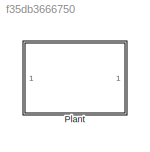
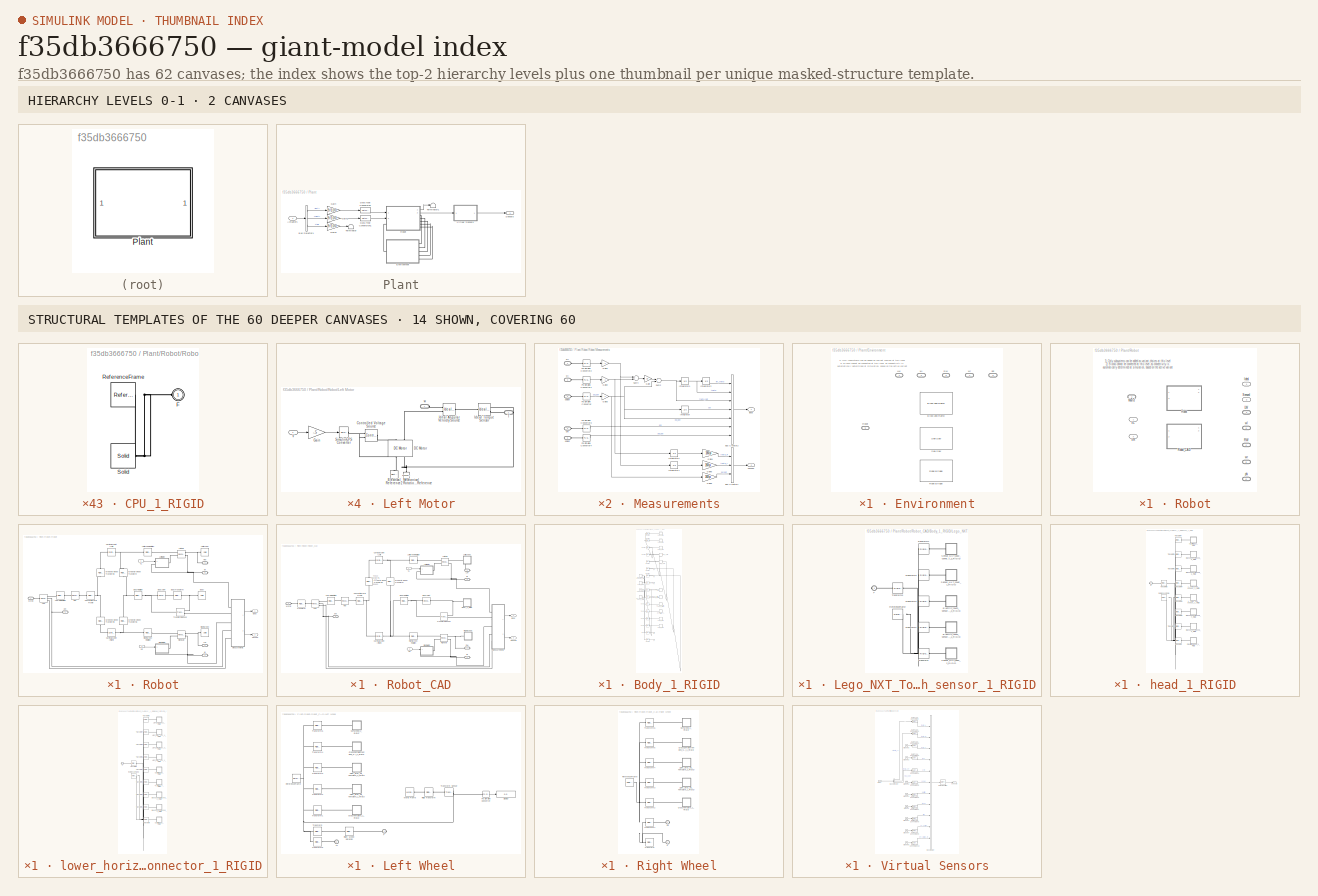
[diagram: thumbnail index - top-2 hierarchy levels (2 canvases) + 14 structural-template representatives of the remaining 60 canvases]
MODEL slx_f35db3666750
KIND library
BLOCK [SubSystem] Plant
  Ports = [1, 1]
  RequestExecContextInheritance = off
BLOCK [Inport] Plant/Actuators
  IconDisplay = Port number
BLOCK [BusSelector] Plant/Bus Selector1
  OutputSignals = left,right,tail
  Ports = [1, 3]
BLOCK [DataTypeConversion] Plant/Data Type Conversion
  OutDataTypeStr = double
  RndMeth = Floor
  SaturateOnIntegerOverflow = off
BLOCK [DataTypeConversion] Plant/Data Type Conversion1
  OutDataTypeStr = double
  RndMeth = Floor
  SaturateOnIntegerOverflow = off
BLOCK [SubSystem] Plant/Environment
  OverrideUsingVariant = Variant2
  Ports = [0, 0, 0, 0, 0, 1, 5]
  RequestExecContextInheritance = off
  Variant = on
BLOCK [Reference] Plant/Environment/Block and Ramp  REF=environments/Block and Ramp  (lib defined in slx_7970464df650)
  Ports = [0, 0, 0, 0, 0, 1, 5]
  SourceBlock = environments/Block and Ramp
  VariantControl = Variant
  b = 25
  b2 = 10
  k = 3000
BLOCK [PMIOPort] Plant/Environment/LW
  Port = 1
  Side = Right
BLOCK [PMIOPort] Plant/Environment/RW
  Port = 3
  Side = Right
BLOCK [PMIOPort] Plant/Environment/Robot
  Port = 5
  Side = Left
BLOCK [Reference] Plant/Environment/Rope Bridge  REF=environments/Rope Bridge  (lib defined in slx_7970464df650)
  Ports = [0, 0, 0, 0, 0, 1, 5]
  SourceBlock = environments/Rope Bridge
  VariantControl = Variant2
  b = 25
  b2 = 10
  dbridge = 0.025
  k = 3000
  kbridge = 1
BLOCK [Reference] Plant/Environment/See-Saw  REF=environments/See-Saw  (lib defined in slx_7970464df650)
  Ports = [0, 0, 0, 0, 0, 1, 5]
  SourceBlock = environments/See-Saw
  VariantControl = Variant1
  b = 25
  b2 = 10
  k = 3000
BLOCK [PMIOPort] Plant/Environment/phi
  Port = 6
  Side = Right
BLOCK [PMIOPort] Plant/Environment/wl
  Port = 2
  Side = Right
BLOCK [PMIOPort] Plant/Environment/wr
  Port = 4
  Side = Right
BLOCK [Gain] Plant/Gain
  Gain = 9/100
  OutDataTypeStr = Inherit: Inherit via internal rule
  ParamDataTypeStr = Inherit: Inherit via internal rule
  SaturateOnIntegerOverflow = off
BLOCK [Gain] Plant/Gain1
  Gain = 9/100
  OutDataTypeStr = Inherit: Inherit via internal rule
  ParamDataTypeStr = Inherit: Inherit via internal rule
  SaturateOnIntegerOverflow = off
BLOCK [Gain] Plant/Gain2
  Gain = 9/100
  OutDataTypeStr = Inherit: Inherit via internal rule
  ParamDataTypeStr = Inherit: Inherit via internal rule
  SaturateOnIntegerOverflow = off
BLOCK [SubSystem] Plant/Robot
  OverrideUsingVariant = Variant1
  Ports = [2, 2, 0, 0, 0, 1, 5]
  RequestExecContextInheritance = off
  Variant = on
BLOCK [Outport] Plant/Robot/Ideal
  IconDisplay = Port number
BLOCK [PMIOPort] Plant/Robot/LW
  Port = 2
  Side = Right
BLOCK [PMIOPort] Plant/Robot/RW
  Port = 4
  Side = Right
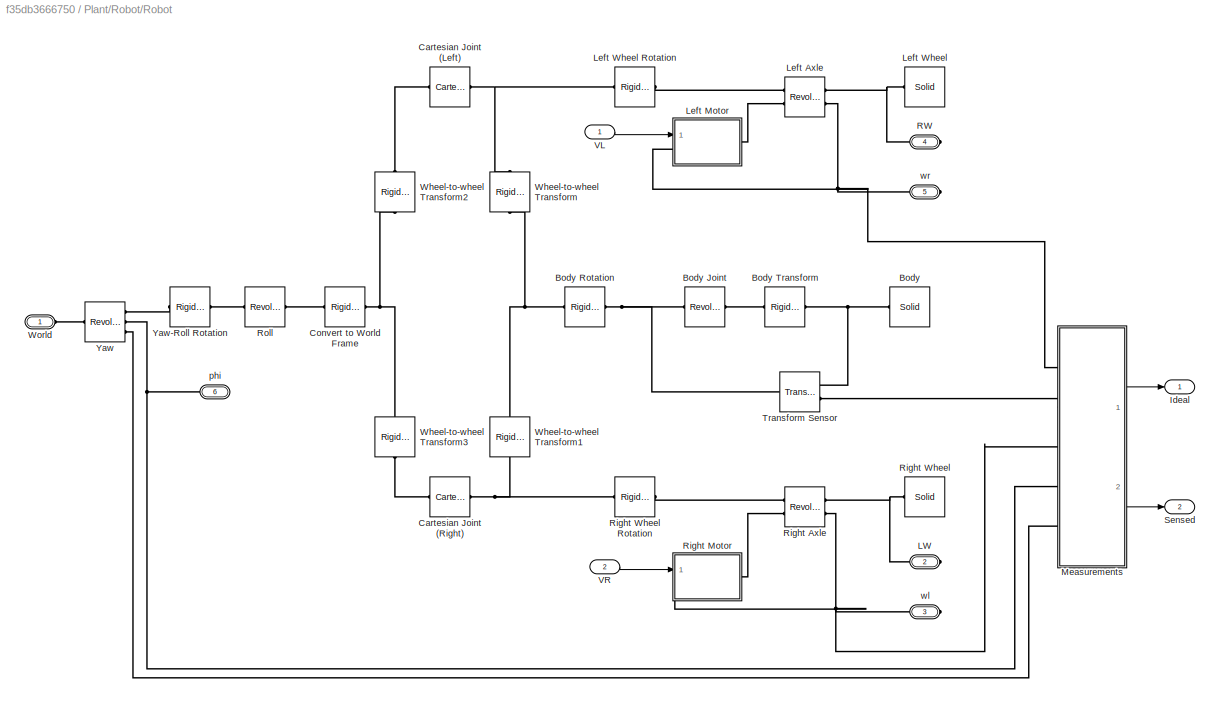
BLOCK [SubSystem] Plant/Robot/Robot
  Ports = [2, 2, 0, 0, 0, 1, 5]
  RequestExecContextInheritance = off
  VariantControl = Variant
BLOCK [Reference] Plant/Robot/Robot/Body  REF=sm_lib/Body Elements/Solid
  BlockFunction = simmechanics.library.body_elements.solid
  BrickDimensionUnits = m
  BrickDimensions = [body.d body.w*0.9 body.h]
  CenterOfMass = [0 0 0]
  CenterOfMassUnits = m
  ClassName = Solid
  CylinderLength = 1
  CylinderLengthUnits = m
  CylinderRadius = 1
  CylinderRadiusUnits = m
  Density = 1000
  DensityBased = off
  DensityUnits = kg/(m^3)
  EllipsoidRadii = [1 1 1]
  EllipsoidRadiiUnits = m
  ExtGeomFileType = STL
  ExtGeomFileUnits = m
  ExtrusionCrossSection = [1 1; -1 1; -1 -1; 1 -1]
  ExtrusionCrossSectionUnits = m
  ExtrusionLength = 1
  ExtrusionLengthUnits = m
  GeometryShape = Brick
  GraphicAmbientColor = [0.15 0.15 0.15 1.0]
  GraphicDiffuseColor = [0.8 0.8 0.8]
  GraphicEmissiveColor = [0.0 0.0 0.0 1.0]
  GraphicOpacity = 1.0
  GraphicShininess = 75
  GraphicSpecularColor = [0.5 0.5 0.5 1.0]
  GraphicType = FromGeometry
  GraphicVisPropType = SimpleVisualProperties
  InertiaType = CalculateFromGeometry
  LogSimulationData = off
  MarkerShape = Sphere
  MarkerSize = 10
  MarkerSizeUnits = m
  Mass = body.m
  MassUnits = kg
  MomentsOfInertia = [1 1 1]
  MomentsOfInertiaUnits = kg*m^2
  PolygonNumSides = 3
  PolygonOuterRadius = 1
  PolygonOuterRadiusUnits = m
  Ports = [0, 0, 0, 0, 0, 0, 1]
  ProductsOfInertia = [0 0 0]
  ProductsOfInertiaUnits = kg*m^2
  RectangleSize = [1 1]
  RectangleSizeUnits = m
  RevolutionAngle = 180
  RevolutionAngleUnits = deg
  RevolutionCrossSection = [1 1; 1 -1; 2 -1; 2 1]
  RevolutionCrossSectionUnits = m
  RevolutionExtent = Full
  SourceBlock = sm_lib/Body Elements/Solid
  SourceType = Solid
  SphereRadius = 1
  SphereRadiusUnits = m
BLOCK [Reference] Plant/Robot/Robot/Body Joint  REF=sm_lib/Joints/Revolute Joint
  BlockFunction = simmechanics.library.joints.revolute_joint
  ClassName = RevoluteJoint
  CompositeWrenchDir = FollowerOnBase
  CompositeWrenchFrame = BaseFrame
  DampingCoefficient = 1e-4
  DampingCoefficientUnits = N*m/(rad/s)
  EquilibriumPosition = 0
  EquilibriumPositionUnits = deg
  LogSimulationData = off
  MotionActuationMode = ComputedMotion
  Ports = [0, 0, 0, 0, 0, 1, 1]
  PositionTargetPriority = High
  PositionTargetSpecify = off
  PositionTargetValue = 0
  PositionTargetValueUnits = deg
  SenseAcceleration = off
  SenseConstraintForce = off
  SenseConstraintForceX = off
  SenseConstraintForceY = off
  SenseConstraintForceZ = off
  SenseConstraintTorque = off
  SenseConstraintTorqueX = off
  SenseConstraintTorqueY = off
  SenseConstraintTorqueZ = off
  SensePosition = off
  SenseTorqueForce = off
  SenseTotalForce = off
  SenseTotalForceX = off
  SenseTotalForceY = off
  SenseTotalForceZ = off
  SenseTotalTorque = off
  SenseTotalTorqueX = off
  SenseTotalTorqueY = off
  SenseTotalTorqueZ = off
  SenseVelocity = off
  SourceBlock = sm_lib/Joints/Revolute Joint
  SourceType = Revolute Joint
  SpringStiffness = 0
  SpringStiffnessUnits = N*m/deg
  TorqueActuationMode = NoTorque
  VelocityTargetPriority = High
  VelocityTargetSpecify = off
  VelocityTargetValue = 0
  VelocityTargetValueUnits = deg/s
BLOCK [Reference] Plant/Robot/Robot/Body Rotation  REF=sm_lib/Frames and
Transforms/Rigid
Transform
  BaseAlignAxisA = +Y
  BaseAlignAxisB = +Z
  BlockFunction = simmechanics.library.frames_transforms.rigid_transform
  ClassName = RigidTransform
  FollAlignAxisA = +X
  FollAlignAxisB = +Y
  LogSimulationData = off
  Ports = [0, 0, 0, 0, 0, 1, 1]
  RotationAngle = 90
  RotationAngleUnits = deg
  RotationArbitraryAxis = [0 0 1]
  RotationMatrix = [1 0 0; 0 1 0; 0 0 1]
  RotationMethod = StandardAxis
  RotationStandardAxis = +X
  SourceBlock = sm_lib/Frames and\nTransforms/Rigid\nTransform
  SourceType = Rigid\nTransform
  TranslationCartesianOffset = [0 body.w/2 0]
  TranslationLengthUnit = m
  TranslationMethod = None
  TranslationROffset = 0
  TranslationROffsetUnits = m
  TranslationStandardAxis = +Y
  TranslationStandardOffset = 1
  TranslationThetaOffset = 0
  TranslationThetaOffsetUnits = deg
  TranslationZOffset = 0
  TranslationZOffsetUnits = m
BLOCK [Reference] Plant/Robot/Robot/Body Transform  REF=sm_lib/Frames and
Transforms/Rigid
Transform
  BaseAlignAxisA = +Y
  BaseAlignAxisB = +Z
  BlockFunction = simmechanics.library.frames_transforms.rigid_transform
  ClassName = RigidTransform
  FollAlignAxisA = +X
  FollAlignAxisB = +Y
  LogSimulationData = off
  Ports = [0, 0, 0, 0, 0, 1, 1]
  RotationAngle = 90
  RotationAngleUnits = deg
  RotationArbitraryAxis = [0 0 1]
  RotationMatrix = [1 0 0; 0 1 0; 0 0 1]
  RotationMethod = StandardAxis
  RotationStandardAxis = -X
  SourceBlock = sm_lib/Frames and\nTransforms/Rigid\nTransform
  SourceType = Rigid\nTransform
  TranslationCartesianOffset = [0 body.h/2 0]
  TranslationLengthUnit = m
  TranslationMethod = Cartesian
  TranslationROffset = 0
  TranslationROffsetUnits = m
  TranslationStandardAxis = +Y
  TranslationStandardOffset = 1
  TranslationThetaOffset = 0
  TranslationThetaOffsetUnits = deg
  TranslationZOffset = 0
  TranslationZOffsetUnits = m
BLOCK [Reference] Plant/Robot/Robot/Cartesian Joint (Left)  REF=sm_lib/Joints/Cartesian
Joint
  BlockFunction = simmechanics.library.joints.cartesian_joint
  ClassName = CartesianJoint
  CompositeWrenchDir = FollowerOnBase
  CompositeWrenchFrame = BaseFrame
  LogSimulationData = off
  Ports = [0, 0, 0, 0, 0, 1, 1]
  PxDampingCoefficient = 0
  PxDampingCoefficientUnits = N/(m/s)
  PxEquilibriumPosition = 0
  PxEquilibriumPositionUnits = m
  PxMotionActuationMode = ComputedMotion
  PxPositionTargetPriority = High
  PxPositionTargetSpecify = off
  PxPositionTargetValue = 0
  PxPositionTargetValueUnits = m
  PxSenseAcceleration = off
  PxSensePosition = off
  PxSenseTorqueForce = off
  PxSenseVelocity = off
  PxSpringStiffness = 0
  PxSpringStiffnessUnits = N/m
  PxTorqueActuationMode = NoTorque
  PxVelocityTargetPriority = High
  PxVelocityTargetSpecify = off
  PxVelocityTargetValue = 0
  PxVelocityTargetValueUnits = m/s
  PyDampingCoefficient = 0
  PyDampingCoefficientUnits = N/(m/s)
  PyEquilibriumPosition = 0
  PyEquilibriumPositionUnits = m
  PyMotionActuationMode = ComputedMotion
  PyPositionTargetPriority = High
  PyPositionTargetSpecify = off
  PyPositionTargetValue = 0
  PyPositionTargetValueUnits = m
  PySenseAcceleration = off
  PySensePosition = off
  PySenseTorqueForce = off
  PySenseVelocity = off
  PySpringStiffness = 0
  PySpringStiffnessUnits = N/m
  PyTorqueActuationMode = NoTorque
  PyVelocityTargetPriority = High
  PyVelocityTargetSpecify = off
  PyVelocityTargetValue = 0
  PyVelocityTargetValueUnits = m/s
  PzDampingCoefficient = 0
  PzDampingCoefficientUnits = N/(m/s)
  PzEquilibriumPosition = 0
  PzEquilibriumPositionUnits = m
  PzMotionActuationMode = ComputedMotion
  PzPositionTargetPriority = High
  PzPositionTargetSpecify = off
  PzPositionTargetValue = 0
  PzPositionTargetValueUnits = m
  PzSenseAcceleration = off
  PzSensePosition = off
  PzSenseTorqueForce = off
  PzSenseVelocity = off
  PzSpringStiffness = 0
  PzSpringStiffnessUnits = N/m
  PzTorqueActuationMode = NoTorque
  PzVelocityTargetPriority = High
  PzVelocityTargetSpecify = off
  PzVelocityTargetValue = 0
  PzVelocityTargetValueUnits = m/s
  SenseConstraintForce = off
  SenseConstraintForceX = off
  SenseConstraintForceY = off
  SenseConstraintForceZ = off
  SenseConstraintTorque = off
  SenseConstraintTorqueX = off
  SenseConstraintTorqueY = off
  SenseConstraintTorqueZ = off
  SenseTotalForce = off
  SenseTotalForceX = off
  SenseTotalForceY = off
  SenseTotalForceZ = off
  SenseTotalTorque = off
  SenseTotalTorqueX = off
  SenseTotalTorqueY = off
  SenseTotalTorqueZ = off
  SourceBlock = sm_lib/Joints/Cartesian\nJoint
  SourceType = Cartesian\nJoint
BLOCK [Reference] Plant/Robot/Robot/Cartesian Joint (Right)  REF=sm_lib/Joints/Cartesian
Joint
  BlockFunction = simmechanics.library.joints.cartesian_joint
  ClassName = CartesianJoint
  CompositeWrenchDir = FollowerOnBase
  CompositeWrenchFrame = BaseFrame
  LogSimulationData = off
  Ports = [0, 0, 0, 0, 0, 1, 1]
  PxDampingCoefficient = 0
  PxDampingCoefficientUnits = N/(m/s)
  PxEquilibriumPosition = 0
  PxEquilibriumPositionUnits = m
  PxMotionActuationMode = ComputedMotion
  PxPositionTargetPriority = High
  PxPositionTargetSpecify = off
  PxPositionTargetValue = 0
  PxPositionTargetValueUnits = m
  PxSenseAcceleration = off
  PxSensePosition = off
  PxSenseTorqueForce = off
  PxSenseVelocity = off
  PxSpringStiffness = 0
  PxSpringStiffnessUnits = N/m
  PxTorqueActuationMode = NoTorque
  PxVelocityTargetPriority = High
  PxVelocityTargetSpecify = off
  PxVelocityTargetValue = 0
  PxVelocityTargetValueUnits = m/s
  PyDampingCoefficient = 0
  PyDampingCoefficientUnits = N/(m/s)
  PyEquilibriumPosition = 0
  PyEquilibriumPositionUnits = m
  PyMotionActuationMode = ComputedMotion
  PyPositionTargetPriority = High
  PyPositionTargetSpecify = off
  PyPositionTargetValue = 0
  PyPositionTargetValueUnits = m
  PySenseAcceleration = off
  PySensePosition = off
  PySenseTorqueForce = off
  PySenseVelocity = off
  PySpringStiffness = 0
  PySpringStiffnessUnits = N/m
  PyTorqueActuationMode = NoTorque
  PyVelocityTargetPriority = High
  PyVelocityTargetSpecify = off
  PyVelocityTargetValue = 0
  PyVelocityTargetValueUnits = m/s
  PzDampingCoefficient = 0
  PzDampingCoefficientUnits = N/(m/s)
  PzEquilibriumPosition = 0
  PzEquilibriumPositionUnits = m
  PzMotionActuationMode = ComputedMotion
  PzPositionTargetPriority = High
  PzPositionTargetSpecify = off
  PzPositionTargetValue = 0
  PzPositionTargetValueUnits = m
  PzSenseAcceleration = off
  PzSensePosition = off
  PzSenseTorqueForce = off
  PzSenseVelocity = off
  PzSpringStiffness = 0
  PzSpringStiffnessUnits = N/m
  PzTorqueActuationMode = NoTorque
  PzVelocityTargetPriority = High
  PzVelocityTargetSpecify = off
  PzVelocityTargetValue = 0
  PzVelocityTargetValueUnits = m/s
  SenseConstraintForce = off
  SenseConstraintForceX = off
  SenseConstraintForceY = off
  SenseConstraintForceZ = off
  SenseConstraintTorque = off
  SenseConstraintTorqueX = off
  SenseConstraintTorqueY = off
  SenseConstraintTorqueZ = off
  SenseTotalForce = off
  SenseTotalForceX = off
  SenseTotalForceY = off
  SenseTotalForceZ = off
  SenseTotalTorque = off
  SenseTotalTorqueX = off
  SenseTotalTorqueY = off
  SenseTotalTorqueZ = off
  SourceBlock = sm_lib/Joints/Cartesian\nJoint
  SourceType = Cartesian\nJoint
BLOCK [Reference] Plant/Robot/Robot/Convert to World Frame  REF=sm_lib/Frames and
Transforms/Rigid
Transform
  BaseAlignAxisA = +Y
  BaseAlignAxisB = +Z
  BlockFunction = simmechanics.library.frames_transforms.rigid_transform
  ClassName = RigidTransform
  FollAlignAxisA = +X
  FollAlignAxisB = +Y
  LogSimulationData = off
  Ports = [0, 0, 0, 0, 0, 1, 1]
  RotationAngle = -90
  RotationAngleUnits = deg
  RotationArbitraryAxis = [0 0 1]
  RotationMatrix = [1 0 0; 0 1 0; 0 0 1]
  RotationMethod = StandardAxis
  RotationStandardAxis = +Y
  SourceBlock = sm_lib/Frames and\nTransforms/Rigid\nTransform
  SourceType = Rigid\nTransform
  TranslationCartesianOffset = [0 0 0]
  TranslationLengthUnit = m
  TranslationMethod = None
  TranslationROffset = 0
  TranslationROffsetUnits = m
  TranslationStandardAxis = +Z
  TranslationStandardOffset = 0
  TranslationThetaOffset = 0
  TranslationThetaOffsetUnits = deg
  TranslationZOffset = 0
  TranslationZOffsetUnits = m
BLOCK [Outport] Plant/Robot/Robot/Ideal
  IconDisplay = Port number
BLOCK [PMIOPort] Plant/Robot/Robot/LW
  Port = 2
  Side = Right
BLOCK [Reference] Plant/Robot/Robot/Left Axle  REF=sm_lib/Joints/Revolute Joint
  BlockFunction = simmechanics.library.joints.revolute_joint
  ClassName = RevoluteJoint
  CompositeWrenchDir = FollowerOnBase
  CompositeWrenchFrame = BaseFrame
  DampingCoefficient = 0.00075
  DampingCoefficientUnits = N*m/(deg/s)
  EquilibriumPosition = 0
  EquilibriumPositionUnits = deg
  LogSimulationData = off
  MotionActuationMode = ComputedMotion
  Ports = [0, 0, 0, 0, 0, 2, 2]
  PositionTargetPriority = High
  PositionTargetSpecify = off
  PositionTargetValue = 0
  PositionTargetValueUnits = deg
  SenseAcceleration = off
  SenseConstraintForce = off
  SenseConstraintForceX = off
  SenseConstraintForceY = off
  SenseConstraintForceZ = off
  SenseConstraintTorque = off
  SenseConstraintTorqueX = off
  SenseConstraintTorqueY = off
  SenseConstraintTorqueZ = off
  SensePosition = off
  SenseTorqueForce = off
  SenseTotalForce = off
  SenseTotalForceX = off
  SenseTotalForceY = off
  SenseTotalForceZ = off
  SenseTotalTorque = off
  SenseTotalTorqueX = off
  SenseTotalTorqueY = off
  SenseTotalTorqueZ = off
  SenseVelocity = on
  SourceBlock = sm_lib/Joints/Revolute Joint
  SourceType = Revolute Joint
  SpringStiffness = 0
  SpringStiffnessUnits = N*m/deg
  TorqueActuationMode = InputTorque
  VelocityTargetPriority = High
  VelocityTargetSpecify = off
  VelocityTargetValue = 0
  VelocityTargetValueUnits = deg/s
BLOCK [SubSystem] Plant/Robot/Robot/Left Motor
  Ports = [1, 0, 0, 0, 0, 1, 1]
  RequestExecContextInheritance = off
BLOCK [Reference] Plant/Robot/Robot/Left Motor/Controlled Voltage Source  REF=fl_lib/Electrical/Electrical Sources/Controlled Voltage
Source
  ClassName = controlled_voltage
  ComponentPath = foundation.electrical.sources.controlled_voltage
  ComponentVariantNames = controlled_voltage
  ComponentVariants = foundation.electrical.sources.controlled_voltage
  LogSimulationData = off
  Ports = [0, 0, 0, 0, 0, 1, 2]
  SchemaVersion = 1
  SourceBlock = fl_lib/Electrical/Electrical Sources/Controlled Voltage\nSource
  SourceFile = foundation.electrical.sources.controlled_voltage
  SourceType = Controlled Voltage\nSource
BLOCK [Reference] Plant/Robot/Robot/Left Motor/DC Motor  REF=elec_lib/Actuators & Drivers/Rotational Actuators/DC Motor
  ClassName = dc_motor
  ComponentPath = elec.actuators.rotational.dc_motor
  ComponentVariantNames = No thermal port, Show thermal port
  ComponentVariants = elec.actuators.rotational.dc_motor, elec.actuators.rotational.dc_motor_thermal
  J = 1e-5
  J_unit = kg*m^2
  Ki = .4
  Ki_unit = N*m/A
  Kv = 7.2e-05
  Kv_unit = V/rpm
  La = 1e-8
  La_unit = H
  LogSimulationData = off
  P_rated = 10
  P_rated_unit = W
  Ports = [0, 0, 0, 0, 0, 2, 2]
  Ra = 6.69
  Ra_unit = Ohm
  SchemaVersion = 1
  SourceBlock = elec_lib/Actuators & Drivers/Rotational Actuators/DC Motor
  SourceFile = elec.actuators.rotational.dc_motor
  SourceType = DC Motor
  T_stall = 2.4e-04
  T_stall_unit = N*m
  Tmeas = 25
  Tmeas_unit = C
  V_i_noload = 1.5
  V_i_noload_unit = V
  V_rated = 12
  V_rated_unit = V
  alpha = 0.00393
  alpha_unit = 1/K
  emf_or_torque = 2
  emf_or_torque_unit = 1
  i_noload = 0
  i_noload_unit = A
  initial_temperature = 25
  initial_temperature_unit = C
  lam = 0.0022
  lam_param = 1
  lam_param_unit = 1
  lam_unit = N*m/(rad/s)
  parameterization = 1
  parameterization_unit = 1
  speed0 = 0
  speed0_unit = rpm
  thermal_mass = 100
  thermal_mass_unit = J/K
  w_max = 4000
  w_max_unit = rpm
  w_rated = 2500
  w_rated_unit = rpm
BLOCK [Reference] Plant/Robot/Robot/Left Motor/Electrical Reference2  REF=fl_lib/Electrical/Electrical Elements/Electrical Reference
  ClassName = reference_electrical
  ComponentPath = foundation.electrical.elements.reference
  ComponentVariantNames = reference
  ComponentVariants = foundation.electrical.elements.reference
  LogSimulationData = off
  Ports = [0, 0, 0, 0, 0, 1]
  SchemaVersion = 1
  SourceBlock = fl_lib/Electrical/Electrical Elements/Electrical Reference
  SourceFile = foundation.electrical.elements.reference
  SourceType = Electrical Reference
BLOCK [Gain] Plant/Robot/Robot/Left Motor/Gain
  Gain = -.5
  OutDataTypeStr = Inherit: Inherit via internal rule
  ParamDataTypeStr = Inherit: Inherit via internal rule
  SaturateOnIntegerOverflow = off
BLOCK [Reference] Plant/Robot/Robot/Left Motor/Ideal Angular Velocity Source  REF=fl_lib/Mechanical/Mechanical Sources/Ideal Angular
Velocity Source
  ClassName = angular_velocity
  ComponentPath = foundation.mechanical.sources.angular_velocity
  ComponentVariantNames = angular_velocity
  ComponentVariants = foundation.mechanical.sources.angular_velocity
  LogSimulationData = off
  Ports = [0, 0, 0, 0, 0, 1, 2]
  SchemaVersion = 1
  SourceBlock = fl_lib/Mechanical/Mechanical Sources/Ideal Angular\nVelocity Source
  SourceFile = foundation.mechanical.sources.angular_velocity
  SourceType = Ideal Angular\nVelocity Source
BLOCK [Reference] Plant/Robot/Robot/Left Motor/Ideal Torque Sensor  REF=fl_lib/Mechanical/Mechanical Sensors/Ideal Torque Sensor
  ClassName = torque
  ComponentPath = foundation.mechanical.sensors.torque
  ComponentVariantNames = torque
  ComponentVariants = foundation.mechanical.sensors.torque
  LogSimulationData = off
  Ports = [0, 0, 0, 0, 0, 1, 2]
  SchemaVersion = 1
  SourceBlock = fl_lib/Mechanical/Mechanical Sensors/Ideal Torque Sensor
  SourceFile = foundation.mechanical.sensors.torque
  SourceType = Ideal Torque Sensor
BLOCK [Reference] Plant/Robot/Robot/Left Motor/Mechanical Rotational Reference  REF=fl_lib/Mechanical/Rotational Elements/Mechanical
Rotational Reference
  ClassName = reference_rot
  ComponentPath = foundation.mechanical.rotational.reference
  ComponentVariantNames = reference
  ComponentVariants = foundation.mechanical.rotational.reference
  LogSimulationData = off
  Ports = [0, 0, 0, 0, 0, 1]
  SchemaVersion = 1
  SourceBlock = fl_lib/Mechanical/Rotational Elements/Mechanical\nRotational Reference
  SourceFile = foundation.mechanical.rotational.reference
  SourceType = Mechanical\nRotational Reference
BLOCK [Reference] Plant/Robot/Robot/Left Motor/Simulink-PS Converter  REF=nesl_utility/Simulink-PS
Converter
  AffineConversion = off
  Frequencies = []
  InputFilterTimeConstant = .001
  InputFiltering = off
  LeftPortType = input
  NoiseDistribution = white
  NoiseParameters = []
  PhysicalDomain = network_engine_domain
  Ports = [1, 0, 0, 0, 0, 0, 1]
  PseudoPeriodic = off
  RightPortType = output
  SimscapeFilterOrder = 2
  SourceBlock = nesl_utility/Simulink-PS\nConverter
  SourceType = Simulink-PS\nConverter
  SubClassName = ps_input
  UdotUserProvided = 1
  Unit = 1
BLOCK [PMIOPort] Plant/Robot/Robot/Left Motor/T
  Port = 1
  Side = Right
BLOCK [Inport] Plant/Robot/Robot/Left Motor/V
  IconDisplay = Port number
BLOCK [PMIOPort] Plant/Robot/Robot/Left Motor/w
  Port = 2
  Side = Left
BLOCK [Reference] Plant/Robot/Robot/Left Wheel  REF=sm_lib/Body Elements/Solid
  BlockFunction = simmechanics.library.body_elements.solid
  BrickDimensionUnits = m
  BrickDimensions = [1 1 1]
  CenterOfMass = [0 0 0]
  CenterOfMassUnits = m
  ClassName = Solid
  CylinderLength = wheel.r/5
  CylinderLengthUnits = m
  CylinderRadius = wheel.r
  CylinderRadiusUnits = m
  Density = 1000
  DensityBased = off
  DensityUnits = kg/(m^3)
  EllipsoidRadii = [1 1 1]
  EllipsoidRadiiUnits = m
  ExtGeomFileType = STL
  ExtGeomFileUnits = m
  ExtrusionCrossSection = [1 1; -1 1; -1 -1; 1 -1]
  ExtrusionCrossSectionUnits = m
  ExtrusionLength = 1
  ExtrusionLengthUnits = m
  GeometryShape = Cylinder
  GraphicAmbientColor = [0.15 0.15 0.15 1.0]
  GraphicDiffuseColor = [0.5 0.5 0.5]
  GraphicEmissiveColor = [0.0 0.0 0.0 1.0]
  GraphicOpacity = 1.0
  GraphicShininess = 75
  GraphicSpecularColor = [0.5 0.5 0.5 1.0]
  GraphicType = FromGeometry
  GraphicVisPropType = SimpleVisualProperties
  InertiaType = CalculateFromGeometry
  LogSimulationData = off
  MarkerShape = Sphere
  MarkerSize = 10
  MarkerSizeUnits = m
  Mass = wheel.m
  MassUnits = kg
  MomentsOfInertia = [1 1 1]
  MomentsOfInertiaUnits = kg*m^2
  PolygonNumSides = 3
  PolygonOuterRadius = 1
  PolygonOuterRadiusUnits = m
  Ports = [0, 0, 0, 0, 0, 0, 1]
  ProductsOfInertia = [0 0 0]
  ProductsOfInertiaUnits = kg*m^2
  RectangleSize = [1 1]
  RectangleSizeUnits = m
  RevolutionAngle = 180
  RevolutionAngleUnits = deg
  RevolutionCrossSection = [1 1; 1 -1; 2 -1; 2 1]
  RevolutionCrossSectionUnits = m
  RevolutionExtent = Full
  SourceBlock = sm_lib/Body Elements/Solid
  SourceType = Solid
  SphereRadius = 1
  SphereRadiusUnits = m
BLOCK [Reference] Plant/Robot/Robot/Left Wheel Rotation  REF=sm_lib/Frames and
Transforms/Rigid
Transform
  BaseAlignAxisA = +Y
  BaseAlignAxisB = +Z
  BlockFunction = simmechanics.library.frames_transforms.rigid_transform
  ClassName = RigidTransform
  FollAlignAxisA = +X
  FollAlignAxisB = +Y
  LogSimulationData = off
  Ports = [0, 0, 0, 0, 0, 1, 1]
  RotationAngle = 90
  RotationAngleUnits = deg
  RotationArbitraryAxis = [0 0 1]
  RotationMatrix = [1 0 0; 0 1 0; 0 0 1]
  RotationMethod = StandardAxis
  RotationStandardAxis = +X
  SourceBlock = sm_lib/Frames and\nTransforms/Rigid\nTransform
  SourceType = Rigid\nTransform
  TranslationCartesianOffset = [0 0 0]
  TranslationLengthUnit = m
  TranslationMethod = None
  TranslationROffset = 0
  TranslationROffsetUnits = m
  TranslationStandardAxis = +Z
  TranslationStandardOffset = 0
  TranslationThetaOffset = 0
  TranslationThetaOffsetUnits = deg
  TranslationZOffset = 0
  TranslationZOffsetUnits = m
BLOCK [SubSystem] Plant/Robot/Robot/Measurements
  Ports = [0, 2, 0, 0, 0, 5]
  RequestExecContextInheritance = off
BLOCK [BusCreator] Plant/Robot/Robot/Measurements/Bus Creator1
  DisplayOption = bar
  Inputs = 3
  Ports = [3, 1]
BLOCK [BusCreator] Plant/Robot/Robot/Measurements/Bus Creator2
  DisplayOption = bar
  Inputs = 7
  Ports = [7, 1]
BLOCK [Gain] Plant/Robot/Robot/Measurements/Gain
  Gain = 1/2
  OutDataTypeStr = Inherit: Inherit via internal rule
  ParamDataTypeStr = Inherit: Inherit via internal rule
  SaturateOnIntegerOverflow = off
BLOCK [Gain] Plant/Robot/Robot/Measurements/Gain1
  Gain = -1
  OutDataTypeStr = Inherit: Inherit via internal rule
  ParamDataTypeStr = Inherit: Inherit via internal rule
  SaturateOnIntegerOverflow = off
BLOCK [Gain] Plant/Robot/Robot/Measurements/Gain2
  Gain = -1
  OutDataTypeStr = Inherit: Inherit via internal rule
  ParamDataTypeStr = Inherit: Inherit via internal rule
  SaturateOnIntegerOverflow = off
BLOCK [Gain] Plant/Robot/Robot/Measurements/Gain3
  Gain = -1
  OutDataTypeStr = Inherit: Inherit via internal rule
  ParamDataTypeStr = Inherit: Inherit via internal rule
  SaturateOnIntegerOverflow = off
BLOCK [Gain] Plant/Robot/Robot/Measurements/Gain4
  Gain = 180/pi
  OutDataTypeStr = Inherit: Inherit via internal rule
  ParamDataTypeStr = Inherit: Inherit via internal rule
  SaturateOnIntegerOverflow = off
BLOCK [Gain] Plant/Robot/Robot/Measurements/Gain5
  Gain = 180/pi
  OutDataTypeStr = Inherit: Inherit via internal rule
  ParamDataTypeStr = Inherit: Inherit via internal rule
  SaturateOnIntegerOverflow = off
BLOCK [Gain] Plant/Robot/Robot/Measurements/Gain6
  Gain = 180/pi
  OutDataTypeStr = Inherit: Inherit via internal rule
  ParamDataTypeStr = Inherit: Inherit via internal rule
  SaturateOnIntegerOverflow = off
BLOCK [Integrator] Plant/Robot/Robot/Measurements/Integrator
  Ports = [1, 1]
BLOCK [Integrator] Plant/Robot/Robot/Measurements/Integrator1
  Ports = [1, 1]
BLOCK [Integrator] Plant/Robot/Robot/Measurements/Integrator2
  Ports = [1, 1]
BLOCK [Integrator] Plant/Robot/Robot/Measurements/Integrator3
  Ports = [1, 1]
BLOCK [Integrator] Plant/Robot/Robot/Measurements/Integrator4
  Ports = [1, 1]
BLOCK [Reference] Plant/Robot/Robot/Measurements/PS-Simulink Converter  REF=nesl_utility/PS-Simulink
Converter
  AffineConversion = off
  Frequencies = []
  LeftPortType = input
  PhysicalDomain = network_engine_domain
  Ports = [0, 1, 0, 0, 0, 1]
  PseudoPeriodic = off
  RightPortType = output
  SourceBlock = nesl_utility/PS-Simulink\nConverter
  SourceType = PS-Simulink\nConverter
  SubClassName = ps_output
  Unit = rad/s
BLOCK [Reference] Plant/Robot/Robot/Measurements/PS-Simulink Converter1  REF=nesl_utility/PS-Simulink
Converter
  AffineConversion = off
  Frequencies = []
  LeftPortType = input
  PhysicalDomain = network_engine_domain
  Ports = [0, 1, 0, 0, 0, 1]
  PseudoPeriodic = off
  RightPortType = output
  SourceBlock = nesl_utility/PS-Simulink\nConverter
  SourceType = PS-Simulink\nConverter
  SubClassName = ps_output
  Unit = rad/s
BLOCK [Reference] Plant/Robot/Robot/Measurements/PS-Simulink Converter2  REF=nesl_utility/PS-Simulink
Converter
  AffineConversion = off
  Frequencies = []
  LeftPortType = input
  PhysicalDomain = network_engine_domain
  Ports = [0, 1, 0, 0, 0, 1]
  PseudoPeriodic = off
  RightPortType = output
  SourceBlock = nesl_utility/PS-Simulink\nConverter
  SourceType = PS-Simulink\nConverter
  SubClassName = ps_output
  Unit = rad/s
BLOCK [Reference] Plant/Robot/Robot/Measurements/PS-Simulink Converter3  REF=nesl_utility/PS-Simulink
Converter
  AffineConversion = off
  Frequencies = []
  LeftPortType = input
  PhysicalDomain = network_engine_domain
  Ports = [0, 1, 0, 0, 0, 1]
  PseudoPeriodic = off
  RightPortType = output
  SourceBlock = nesl_utility/PS-Simulink\nConverter
  SourceType = PS-Simulink\nConverter
  SubClassName = ps_output
  Unit = rad
BLOCK [Reference] Plant/Robot/Robot/Measurements/PS-Simulink Converter4  REF=nesl_utility/PS-Simulink
Converter
  AffineConversion = off
  Frequencies = []
  LeftPortType = input
  PhysicalDomain = network_engine_domain
  Ports = [0, 1, 0, 0, 0, 1]
  PseudoPeriodic = off
  RightPortType = output
  SourceBlock = nesl_utility/PS-Simulink\nConverter
  SourceType = PS-Simulink\nConverter
  SubClassName = ps_output
  Unit = rad/s
BLOCK [Sum] Plant/Robot/Robot/Measurements/Sum2
  InputSameDT = off
  OutDataTypeStr = Inherit: Inherit via internal rule
  Ports = [2, 1]
  SaturateOnIntegerOverflow = off
BLOCK [Sum] Plant/Robot/Robot/Measurements/Sum4
  InputSameDT = off
  OutDataTypeStr = Inherit: Inherit via internal rule
  Ports = [2, 1]
  SaturateOnIntegerOverflow = off
BLOCK [Outport] Plant/Robot/Robot/Measurements/ideal
  IconDisplay = Port number
BLOCK [PMIOPort] Plant/Robot/Robot/Measurements/phi
  Port = 4
  Side = Left
BLOCK [PMIOPort] Plant/Robot/Robot/Measurements/phidot
  Port = 5
  Side = Left
BLOCK [PMIOPort] Plant/Robot/Robot/Measurements/psidot
  Port = 2
  Side = Left
BLOCK [Outport] Plant/Robot/Robot/Measurements/sensed
  IconDisplay = Port number
  Port = 2
BLOCK [PMIOPort] Plant/Robot/Robot/Measurements/wl
  Port = 3
  Side = Left
BLOCK [PMIOPort] Plant/Robot/Robot/Measurements/wr
  Port = 1
  Side = Left
BLOCK [PMIOPort] Plant/Robot/Robot/RW
  Port = 4
  Side = Right
BLOCK [Reference] Plant/Robot/Robot/Right Axle  REF=sm_lib/Joints/Revolute Joint
  BlockFunction = simmechanics.library.joints.revolute_joint
  ClassName = RevoluteJoint
  CompositeWrenchDir = FollowerOnBase
  CompositeWrenchFrame = BaseFrame
  DampingCoefficient = 0.00075
  DampingCoefficientUnits = N*m/(deg/s)
  EquilibriumPosition = 0
  EquilibriumPositionUnits = deg
  LogSimulationData = off
  MotionActuationMode = ComputedMotion
  Ports = [0, 0, 0, 0, 0, 2, 2]
  PositionTargetPriority = High
  PositionTargetSpecify = off
  PositionTargetValue = 0
  PositionTargetValueUnits = deg
  SenseAcceleration = off
  SenseConstraintForce = off
  SenseConstraintForceX = off
  SenseConstraintForceY = off
  SenseConstraintForceZ = off
  SenseConstraintTorque = off
  SenseConstraintTorqueX = off
  SenseConstraintTorqueY = off
  SenseConstraintTorqueZ = off
  SensePosition = off
  SenseTorqueForce = off
  SenseTotalForce = off
  SenseTotalForceX = off
  SenseTotalForceY = off
  SenseTotalForceZ = off
  SenseTotalTorque = off
  SenseTotalTorqueX = off
  SenseTotalTorqueY = off
  SenseTotalTorqueZ = off
  SenseVelocity = on
  SourceBlock = sm_lib/Joints/Revolute Joint
  SourceType = Revolute Joint
  SpringStiffness = 0
  SpringStiffnessUnits = N*m/deg
  TorqueActuationMode = InputTorque
  VelocityTargetPriority = High
  VelocityTargetSpecify = off
  VelocityTargetValue = 0
  VelocityTargetValueUnits = deg/s
BLOCK [SubSystem] Plant/Robot/Robot/Right Motor
  Ports = [1, 0, 0, 0, 0, 1, 1]
  RequestExecContextInheritance = off
BLOCK [Reference] Plant/Robot/Robot/Right Motor/Controlled Voltage Source  REF=fl_lib/Electrical/Electrical Sources/Controlled Voltage
Source
  ClassName = controlled_voltage
  ComponentPath = foundation.electrical.sources.controlled_voltage
  ComponentVariantNames = controlled_voltage
  ComponentVariants = foundation.electrical.sources.controlled_voltage
  LogSimulationData = off
  Ports = [0, 0, 0, 0, 0, 1, 2]
  SchemaVersion = 1
  SourceBlock = fl_lib/Electrical/Electrical Sources/Controlled Voltage\nSource
  SourceFile = foundation.electrical.sources.controlled_voltage
  SourceType = Controlled Voltage\nSource
BLOCK [Reference] Plant/Robot/Robot/Right Motor/DC Motor  REF=elec_lib/Actuators & Drivers/Rotational Actuators/DC Motor
  ClassName = dc_motor
  ComponentPath = elec.actuators.rotational.dc_motor
  ComponentVariantNames = No thermal port, Show thermal port
  ComponentVariants = elec.actuators.rotational.dc_motor, elec.actuators.rotational.dc_motor_thermal
  J = 1e-5
  J_unit = kg*m^2
  Ki = .4
  Ki_unit = N*m/A
  Kv = 7.2e-05
  Kv_unit = V/rpm
  La = 1e-8
  La_unit = H
  LogSimulationData = off
  P_rated = 10
  P_rated_unit = W
  Ports = [0, 0, 0, 0, 0, 2, 2]
  Ra = 6.69
  Ra_unit = Ohm
  SchemaVersion = 1
  SourceBlock = elec_lib/Actuators & Drivers/Rotational Actuators/DC Motor
  SourceFile = elec.actuators.rotational.dc_motor
  SourceType = DC Motor
  T_stall = 2.4e-04
  T_stall_unit = N*m
  Tmeas = 25
  Tmeas_unit = C
  V_i_noload = 1.5
  V_i_noload_unit = V
  V_rated = 12
  V_rated_unit = V
  alpha = 0.00393
  alpha_unit = 1/K
  emf_or_torque = 2
  emf_or_torque_unit = 1
  i_noload = 0
  i_noload_unit = A
  initial_temperature = 25
  initial_temperature_unit = C
  lam = 0.0022
  lam_param = 1
  lam_param_unit = 1
  lam_unit = N*m/(rad/s)
  parameterization = 1
  parameterization_unit = 1
  speed0 = 0
  speed0_unit = rpm
  thermal_mass = 100
  thermal_mass_unit = J/K
  w_max = 4000
  w_max_unit = rpm
  w_rated = 2500
  w_rated_unit = rpm
BLOCK [Reference] Plant/Robot/Robot/Right Motor/Electrical Reference2  REF=fl_lib/Electrical/Electrical Elements/Electrical Reference
  ClassName = reference_electrical
  ComponentPath = foundation.electrical.elements.reference
  ComponentVariantNames = reference
  ComponentVariants = foundation.electrical.elements.reference
  LogSimulationData = off
  Ports = [0, 0, 0, 0, 0, 1]
  SchemaVersion = 1
  SourceBlock = fl_lib/Electrical/Electrical Elements/Electrical Reference
  SourceFile = foundation.electrical.elements.reference
  SourceType = Electrical Reference
BLOCK [Gain] Plant/Robot/Robot/Right Motor/Gain
  Gain = -.5
  OutDataTypeStr = Inherit: Inherit via internal rule
  ParamDataTypeStr = Inherit: Inherit via internal rule
  SaturateOnIntegerOverflow = off
BLOCK [Reference] Plant/Robot/Robot/Right Motor/Ideal Angular Velocity Source  REF=fl_lib/Mechanical/Mechanical Sources/Ideal Angular
Velocity Source
  ClassName = angular_velocity
  ComponentPath = foundation.mechanical.sources.angular_velocity
  ComponentVariantNames = angular_velocity
  ComponentVariants = foundation.mechanical.sources.angular_velocity
  LogSimulationData = off
  Ports = [0, 0, 0, 0, 0, 1, 2]
  SchemaVersion = 1
  SourceBlock = fl_lib/Mechanical/Mechanical Sources/Ideal Angular\nVelocity Source
  SourceFile = foundation.mechanical.sources.angular_velocity
  SourceType = Ideal Angular\nVelocity Source
BLOCK [Reference] Plant/Robot/Robot/Right Motor/Ideal Torque Sensor  REF=fl_lib/Mechanical/Mechanical Sensors/Ideal Torque Sensor
  ClassName = torque
  ComponentPath = foundation.mechanical.sensors.torque
  ComponentVariantNames = torque
  ComponentVariants = foundation.mechanical.sensors.torque
  LogSimulationData = off
  Ports = [0, 0, 0, 0, 0, 1, 2]
  SchemaVersion = 1
  SourceBlock = fl_lib/Mechanical/Mechanical Sensors/Ideal Torque Sensor
  SourceFile = foundation.mechanical.sensors.torque
  SourceType = Ideal Torque Sensor
BLOCK [Reference] Plant/Robot/Robot/Right Motor/Mechanical Rotational Reference  REF=fl_lib/Mechanical/Rotational Elements/Mechanical
Rotational Reference
  ClassName = reference_rot
  ComponentPath = foundation.mechanical.rotational.reference
  ComponentVariantNames = reference
  ComponentVariants = foundation.mechanical.rotational.reference
  LogSimulationData = off
  Ports = [0, 0, 0, 0, 0, 1]
  SchemaVersion = 1
  SourceBlock = fl_lib/Mechanical/Rotational Elements/Mechanical\nRotational Reference
  SourceFile = foundation.mechanical.rotational.reference
  SourceType = Mechanical\nRotational Reference
BLOCK [Reference] Plant/Robot/Robot/Right Motor/Simulink-PS Converter  REF=nesl_utility/Simulink-PS
Converter
  AffineConversion = off
  Frequencies = []
  InputFilterTimeConstant = .001
  InputFiltering = off
  LeftPortType = input
  NoiseDistribution = white
  NoiseParameters = []
  PhysicalDomain = network_engine_domain
  Ports = [1, 0, 0, 0, 0, 0, 1]
  PseudoPeriodic = off
  RightPortType = output
  SimscapeFilterOrder = 2
  SourceBlock = nesl_utility/Simulink-PS\nConverter
  SourceType = Simulink-PS\nConverter
  SubClassName = ps_input
  UdotUserProvided = 1
  Unit = 1
BLOCK [PMIOPort] Plant/Robot/Robot/Right Motor/T
  Port = 1
  Side = Right
BLOCK [Inport] Plant/Robot/Robot/Right Motor/V
  IconDisplay = Port number
BLOCK [PMIOPort] Plant/Robot/Robot/Right Motor/w
  Port = 2
  Side = Left
BLOCK [Reference] Plant/Robot/Robot/Right Wheel  REF=sm_lib/Body Elements/Solid
  BlockFunction = simmechanics.library.body_elements.solid
  BrickDimensionUnits = m
  BrickDimensions = [1 1 1]
  CenterOfMass = [0 0 0]
  CenterOfMassUnits = m
  ClassName = Solid
  CylinderLength = wheel.r/5
  CylinderLengthUnits = m
  CylinderRadius = wheel.r
  CylinderRadiusUnits = m
  Density = 1000
  DensityBased = off
  DensityUnits = kg/(m^3)
  EllipsoidRadii = [1 1 1]
  EllipsoidRadiiUnits = m
  ExtGeomFileType = STL
  ExtGeomFileUnits = m
  ExtrusionCrossSection = [1 1; -1 1; -1 -1; 1 -1]
  ExtrusionCrossSectionUnits = m
  ExtrusionLength = 1
  ExtrusionLengthUnits = m
  GeometryShape = Cylinder
  GraphicAmbientColor = [0.15 0.15 0.15 1.0]
  GraphicDiffuseColor = [0.5 0.5 0.5]
  GraphicEmissiveColor = [0.0 0.0 0.0 1.0]
  GraphicOpacity = 1.0
  GraphicShininess = 75
  GraphicSpecularColor = [0.5 0.5 0.5 1.0]
  GraphicType = FromGeometry
  GraphicVisPropType = SimpleVisualProperties
  InertiaType = CalculateFromGeometry
  LogSimulationData = off
  MarkerShape = Sphere
  MarkerSize = 10
  MarkerSizeUnits = m
  Mass = wheel.m
  MassUnits = kg
  MomentsOfInertia = [1 1 1]
  MomentsOfInertiaUnits = kg*m^2
  PolygonNumSides = 3
  PolygonOuterRadius = 1
  PolygonOuterRadiusUnits = m
  Ports = [0, 0, 0, 0, 0, 0, 1]
  ProductsOfInertia = [0 0 0]
  ProductsOfInertiaUnits = kg*m^2
  RectangleSize = [1 1]
  RectangleSizeUnits = m
  RevolutionAngle = 180
  RevolutionAngleUnits = deg
  RevolutionCrossSection = [1 1; 1 -1; 2 -1; 2 1]
  RevolutionCrossSectionUnits = m
  RevolutionExtent = Full
  SourceBlock = sm_lib/Body Elements/Solid
  SourceType = Solid
  SphereRadius = 1
  SphereRadiusUnits = m
BLOCK [Reference] Plant/Robot/Robot/Right Wheel Rotation  REF=sm_lib/Frames and
Transforms/Rigid
Transform
  BaseAlignAxisA = +Y
  BaseAlignAxisB = +Z
  BlockFunction = simmechanics.library.frames_transforms.rigid_transform
  ClassName = RigidTransform
  FollAlignAxisA = +X
  FollAlignAxisB = +Y
  LogSimulationData = off
  Ports = [0, 0, 0, 0, 0, 1, 1]
  RotationAngle = 90
  RotationAngleUnits = deg
  RotationArbitraryAxis = [0 0 1]
  RotationMatrix = [1 0 0; 0 1 0; 0 0 1]
  RotationMethod = StandardAxis
  RotationStandardAxis = +X
  SourceBlock = sm_lib/Frames and\nTransforms/Rigid\nTransform
  SourceType = Rigid\nTransform
  TranslationCartesianOffset = [0 0 0]
  TranslationLengthUnit = m
  TranslationMethod = None
  TranslationROffset = 0
  TranslationROffsetUnits = m
  TranslationStandardAxis = +Z
  TranslationStandardOffset = 0
  TranslationThetaOffset = 0
  TranslationThetaOffsetUnits = deg
  TranslationZOffset = 0
  TranslationZOffsetUnits = m
BLOCK [Reference] Plant/Robot/Robot/Roll  REF=sm_lib/Joints/Revolute Joint
  BlockFunction = simmechanics.library.joints.revolute_joint
  ClassName = RevoluteJoint
  CompositeWrenchDir = FollowerOnBase
  CompositeWrenchFrame = BaseFrame
  DampingCoefficient = 1e-4
  DampingCoefficientUnits = N*m/(rad/s)
  EquilibriumPosition = 0
  EquilibriumPositionUnits = deg
  LogSimulationData = off
  MotionActuationMode = ComputedMotion
  Ports = [0, 0, 0, 0, 0, 1, 1]
  PositionTargetPriority = High
  PositionTargetSpecify = off
  PositionTargetValue = 0
  PositionTargetValueUnits = deg
  SenseAcceleration = off
  SenseConstraintForce = off
  SenseConstraintForceX = off
  SenseConstraintForceY = off
  SenseConstraintForceZ = off
  SenseConstraintTorque = off
  SenseConstraintTorqueX = off
  SenseConstraintTorqueY = off
  SenseConstraintTorqueZ = off
  SensePosition = off
  SenseTorqueForce = off
  SenseTotalForce = off
  SenseTotalForceX = off
  SenseTotalForceY = off
  SenseTotalForceZ = off
  SenseTotalTorque = off
  SenseTotalTorqueX = off
  SenseTotalTorqueY = off
  SenseTotalTorqueZ = off
  SenseVelocity = off
  SourceBlock = sm_lib/Joints/Revolute Joint
  SourceType = Revolute Joint
  SpringStiffness = 0
  SpringStiffnessUnits = N*m/deg
  TorqueActuationMode = NoTorque
  VelocityTargetPriority = High
  VelocityTargetSpecify = off
  VelocityTargetValue = 0
  VelocityTargetValueUnits = deg/s
BLOCK [Outport] Plant/Robot/Robot/Sensed
  IconDisplay = Port number
  Port = 2
BLOCK [Reference] Plant/Robot/Robot/Transform Sensor  REF=sm_lib/Frames and
Transforms/Transform
Sensor
  BlockFunction = simmechanics.library.frames_transforms.transform_sensor
  ClassName = TransformSensor
  LogSimulationData = off
  MeasurementFrame = Base
  Ports = [0, 0, 0, 0, 0, 1, 2]
  SenseAlpha1 = off
  SenseAlpha2 = off
  SenseAlpha3 = off
  SenseAlphaX = off
  SenseAlphaY = off
  SenseAlphaZ = off
  SenseAngle = off
  SenseAngle1 = off
  SenseAngle2 = off
  SenseAngle3 = off
  SenseAxis = off
  SenseAzim = off
  SenseAzimDDot = off
  SenseAzimDot = off
  SenseDist = off
  SenseDistDDot = off
  SenseDistDot = off
  SenseInc = off
  SenseIncDDot = off
  SenseIncDot = off
  SenseOmega1 = off
  SenseOmega2 = off
  SenseOmega3 = off
  SenseOmegaX = off
  SenseOmegaY = off
  SenseOmegaZ = on
  SenseQ = off
  SenseQDDot = off
  SenseQDot = off
  SenseR = off
  SenseRDDot = off
  SenseRDot = off
  SenseRad = off
  SenseRadDDot = off
  SenseRadDot = off
  SenseX = off
  SenseXDDot = off
  SenseXDot = off
  SenseY = off
  SenseYDDot = off
  SenseYDot = off
  SenseZ = off
  SenseZDDot = off
  SenseZDot = off
  SourceBlock = sm_lib/Frames and\nTransforms/Transform\nSensor
  SourceType = Transform\nSensor
BLOCK [Inport] Plant/Robot/Robot/VL
  IconDisplay = Port number
BLOCK [Inport] Plant/Robot/Robot/VR
  IconDisplay = Port number
  Port = 2
BLOCK [Reference] Plant/Robot/Robot/Wheel-to-wheel Transform  REF=sm_lib/Frames and
Transforms/Rigid
Transform
  BaseAlignAxisA = +Y
  BaseAlignAxisB = +Z
  BlockFunction = simmechanics.library.frames_transforms.rigid_transform
  ClassName = RigidTransform
  FollAlignAxisA = +X
  FollAlignAxisB = +Y
  LogSimulationData = off
  Ports = [0, 0, 0, 0, 0, 1, 1]
  RotationAngle = 90
  RotationAngleUnits = deg
  RotationArbitraryAxis = [0 0 1]
  RotationMatrix = [1 0 0; 0 1 0; 0 0 1]
  RotationMethod = None
  RotationStandardAxis = +X
  SourceBlock = sm_lib/Frames and\nTransforms/Rigid\nTransform
  SourceType = Rigid\nTransform
  TranslationCartesianOffset = [0 0 0]
  TranslationLengthUnit = m
  TranslationMethod = StandardAxis
  TranslationROffset = 0
  TranslationROffsetUnits = m
  TranslationStandardAxis = +Y
  TranslationStandardOffset = body.w/2
  TranslationThetaOffset = 0
  TranslationThetaOffsetUnits = deg
  TranslationZOffset = 0
  TranslationZOffsetUnits = m
BLOCK [Reference] Plant/Robot/Robot/Wheel-to-wheel Transform1  REF=sm_lib/Frames and
Transforms/Rigid
Transform
  BaseAlignAxisA = +Y
  BaseAlignAxisB = +Z
  BlockFunction = simmechanics.library.frames_transforms.rigid_transform
  ClassName = RigidTransform
  FollAlignAxisA = +X
  FollAlignAxisB = +Y
  LogSimulationData = off
  Ports = [0, 0, 0, 0, 0, 1, 1]
  RotationAngle = 90
  RotationAngleUnits = deg
  RotationArbitraryAxis = [0 0 1]
  RotationMatrix = [1 0 0; 0 1 0; 0 0 1]
  RotationMethod = None
  RotationStandardAxis = +X
  SourceBlock = sm_lib/Frames and\nTransforms/Rigid\nTransform
  SourceType = Rigid\nTransform
  TranslationCartesianOffset = [0 0 0]
  TranslationLengthUnit = m
  TranslationMethod = StandardAxis
  TranslationROffset = 0
  TranslationROffsetUnits = m
  TranslationStandardAxis = -Y
  TranslationStandardOffset = body.w/2
  TranslationThetaOffset = 0
  TranslationThetaOffsetUnits = deg
  TranslationZOffset = 0
  TranslationZOffsetUnits = m
BLOCK [Reference] Plant/Robot/Robot/Wheel-to-wheel Transform2  REF=sm_lib/Frames and
Transforms/Rigid
Transform
  BaseAlignAxisA = +Y
  BaseAlignAxisB = +Z
  BlockFunction = simmechanics.library.frames_transforms.rigid_transform
  ClassName = RigidTransform
  FollAlignAxisA = +X
  FollAlignAxisB = +Y
  LogSimulationData = off
  Ports = [0, 0, 0, 0, 0, 1, 1]
  RotationAngle = 90
  RotationAngleUnits = deg
  RotationArbitraryAxis = [0 0 1]
  RotationMatrix = [1 0 0; 0 1 0; 0 0 1]
  RotationMethod = None
  RotationStandardAxis = +X
  SourceBlock = sm_lib/Frames and\nTransforms/Rigid\nTransform
  SourceType = Rigid\nTransform
  TranslationCartesianOffset = [0 0 0]
  TranslationLengthUnit = m
  TranslationMethod = StandardAxis
  TranslationROffset = 0
  TranslationROffsetUnits = m
  TranslationStandardAxis = +Y
  TranslationStandardOffset = body.w/2
  TranslationThetaOffset = 0
  TranslationThetaOffsetUnits = deg
  TranslationZOffset = 0
  TranslationZOffsetUnits = m
BLOCK [Reference] Plant/Robot/Robot/Wheel-to-wheel Transform3  REF=sm_lib/Frames and
Transforms/Rigid
Transform
  BaseAlignAxisA = +Y
  BaseAlignAxisB = +Z
  BlockFunction = simmechanics.library.frames_transforms.rigid_transform
  ClassName = RigidTransform
  FollAlignAxisA = +X
  FollAlignAxisB = +Y
  LogSimulationData = off
  Ports = [0, 0, 0, 0, 0, 1, 1]
  RotationAngle = 90
  RotationAngleUnits = deg
  RotationArbitraryAxis = [0 0 1]
  RotationMatrix = [1 0 0; 0 1 0; 0 0 1]
  RotationMethod = None
  RotationStandardAxis = +X
  SourceBlock = sm_lib/Frames and\nTransforms/Rigid\nTransform
  SourceType = Rigid\nTransform
  TranslationCartesianOffset = [0 0 0]
  TranslationLengthUnit = m
  TranslationMethod = StandardAxis
  TranslationROffset = 0
  TranslationROffsetUnits = m
  TranslationStandardAxis = -Y
  TranslationStandardOffset = body.w/2
  TranslationThetaOffset = 0
  TranslationThetaOffsetUnits = deg
  TranslationZOffset = 0
  TranslationZOffsetUnits = m
BLOCK [PMIOPort] Plant/Robot/Robot/World
  Port = 1
  Side = Left
BLOCK [Reference] Plant/Robot/Robot/Yaw  REF=sm_lib/Joints/Revolute Joint
  BlockFunction = simmechanics.library.joints.revolute_joint
  ClassName = RevoluteJoint
  CompositeWrenchDir = FollowerOnBase
  CompositeWrenchFrame = BaseFrame
  DampingCoefficient = 1e-4
  DampingCoefficientUnits = N*m/(rad/s)
  EquilibriumPosition = 0
  EquilibriumPositionUnits = deg
  LogSimulationData = off
  MotionActuationMode = ComputedMotion
  Ports = [0, 0, 0, 0, 0, 1, 3]
  PositionTargetPriority = High
  PositionTargetSpecify = on
  PositionTargetValue = theta0
  PositionTargetValueUnits = deg
  SenseAcceleration = off
  SenseConstraintForce = off
  SenseConstraintForceX = off
  SenseConstraintForceY = off
  SenseConstraintForceZ = off
  SenseConstraintTorque = off
  SenseConstraintTorqueX = off
  SenseConstraintTorqueY = off
  SenseConstraintTorqueZ = off
  SensePosition = on
  SenseTorqueForce = off
  SenseTotalForce = off
  SenseTotalForceX = off
  SenseTotalForceY = off
  SenseTotalForceZ = off
  SenseTotalTorque = off
  SenseTotalTorqueX = off
  SenseTotalTorqueY = off
  SenseTotalTorqueZ = off
  SenseVelocity = on
  SourceBlock = sm_lib/Joints/Revolute Joint
  SourceType = Revolute Joint
  SpringStiffness = 0
  SpringStiffnessUnits = N*m/deg
  TorqueActuationMode = NoTorque
  VelocityTargetPriority = High
  VelocityTargetSpecify = off
  VelocityTargetValue = 0
  VelocityTargetValueUnits = deg/s
BLOCK [Reference] Plant/Robot/Robot/Yaw-Roll Rotation  REF=sm_lib/Frames and
Transforms/Rigid
Transform
  BaseAlignAxisA = +Y
  BaseAlignAxisB = +Z
  BlockFunction = simmechanics.library.frames_transforms.rigid_transform
  ClassName = RigidTransform
  FollAlignAxisA = +X
  FollAlignAxisB = +Y
  LogSimulationData = off
  Ports = [0, 0, 0, 0, 0, 1, 1]
  RotationAngle = 90
  RotationAngleUnits = deg
  RotationArbitraryAxis = [0 0 1]
  RotationMatrix = [1 0 0; 0 1 0; 0 0 1]
  RotationMethod = StandardAxis
  RotationStandardAxis = +Y
  SourceBlock = sm_lib/Frames and\nTransforms/Rigid\nTransform
  SourceType = Rigid\nTransform
  TranslationCartesianOffset = [0 0 0]
  TranslationLengthUnit = m
  TranslationMethod = None
  TranslationROffset = 0
  TranslationROffsetUnits = m
  TranslationStandardAxis = +Z
  TranslationStandardOffset = 0
  TranslationThetaOffset = 0
  TranslationThetaOffsetUnits = deg
  TranslationZOffset = 0
  TranslationZOffsetUnits = m
BLOCK [PMIOPort] Plant/Robot/Robot/phi
  Port = 6
  Side = Right
BLOCK [PMIOPort] Plant/Robot/Robot/wl
  Port = 3
  Side = Right
BLOCK [PMIOPort] Plant/Robot/Robot/wr
  Port = 5
  Side = Right
BLOCK [SubSystem] Plant/Robot/Robot_CAD
  Ports = [2, 2, 0, 0, 0, 1, 5]
  RequestExecContextInheritance = off
  VariantControl = Variant1
BLOCK [Reference] Plant/Robot/Robot_CAD/Body Joint  REF=sm_lib/Joints/Revolute Joint
  BlockFunction = simmechanics.library.joints.revolute_joint
  ClassName = RevoluteJoint
  CompositeWrenchDir = FollowerOnBase
  CompositeWrenchFrame = BaseFrame
  DampingCoefficient = 1e-4
  DampingCoefficientUnits = N*m/(rad/s)
  EquilibriumPosition = 0
  EquilibriumPositionUnits = deg
  LogSimulationData = off
  MotionActuationMode = ComputedMotion
  Ports = [0, 0, 0, 0, 0, 1, 1]
  PositionTargetPriority = High
  PositionTargetSpecify = off
  PositionTargetValue = 0
  PositionTargetValueUnits = deg
  SenseAcceleration = off
  SenseConstraintForce = off
  SenseConstraintForceX = off
  SenseConstraintForceY = off
  SenseConstraintForceZ = off
  SenseConstraintTorque = off
  SenseConstraintTorqueX = off
  SenseConstraintTorqueY = off
  SenseConstraintTorqueZ = off
  SensePosition = off
  SenseTorqueForce = off
  SenseTotalForce = off
  SenseTotalForceX = off
  SenseTotalForceY = off
  SenseTotalForceZ = off
  SenseTotalTorque = off
  SenseTotalTorqueX = off
  SenseTotalTorqueY = off
  SenseTotalTorqueZ = off
  SenseVelocity = off
  SourceBlock = sm_lib/Joints/Revolute Joint
  SourceType = Revolute Joint
  SpringStiffness = 0
  SpringStiffnessUnits = N*m/deg
  TorqueActuationMode = NoTorque
  VelocityTargetPriority = High
  VelocityTargetSpecify = off
  VelocityTargetValue = 0
  VelocityTargetValueUnits = deg/s
BLOCK [Reference] Plant/Robot/Robot_CAD/Body Rotation  REF=sm_lib/Frames and
Transforms/Rigid
Transform
  BaseAlignAxisA = +Y
  BaseAlignAxisB = +Z
  BlockFunction = simmechanics.library.frames_transforms.rigid_transform
  ClassName = RigidTransform
  FollAlignAxisA = +X
  FollAlignAxisB = +Y
  LogSimulationData = off
  Ports = [0, 0, 0, 0, 0, 1, 1]
  RotationAngle = 90
  RotationAngleUnits = deg
  RotationArbitraryAxis = [0 0 1]
  RotationMatrix = [1 0 0; 0 1 0; 0 0 1]
  RotationMethod = StandardAxis
  RotationStandardAxis = +X
  SourceBlock = sm_lib/Frames and\nTransforms/Rigid\nTransform
  SourceType = Rigid\nTransform
  TranslationCartesianOffset = [0 body.w/2 0]
  TranslationLengthUnit = m
  TranslationMethod = None
  TranslationROffset = 0
  TranslationROffsetUnits = m
  TranslationStandardAxis = +Y
  TranslationStandardOffset = 1
  TranslationThetaOffset = 0
  TranslationThetaOffsetUnits = deg
  TranslationZOffset = 0
  TranslationZOffsetUnits = m
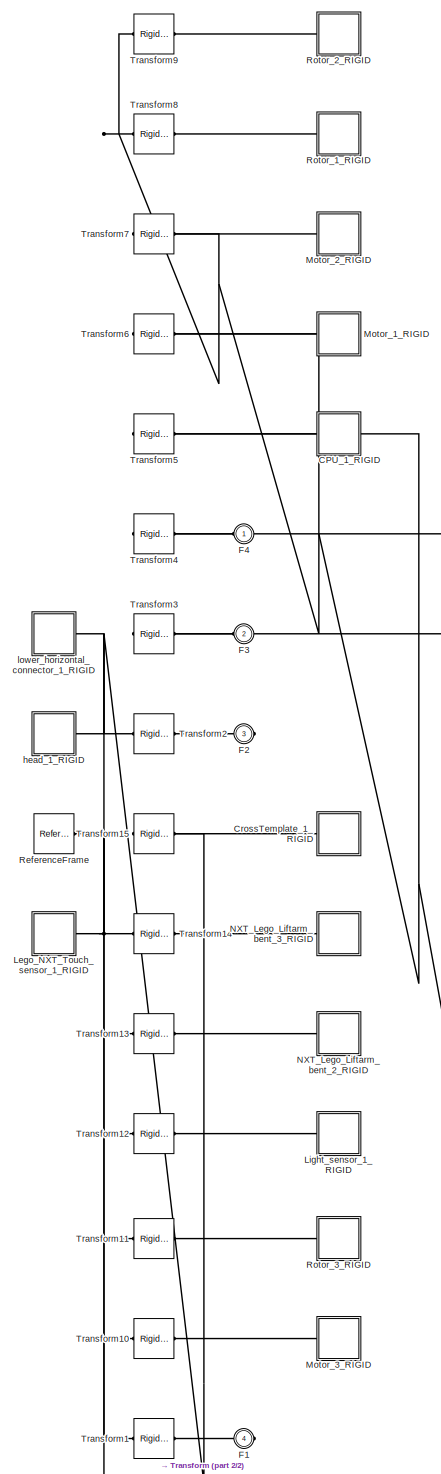
[diagram: Plant/Robot/Robot_CAD/Body_1_RIGID - part 1/2, center side, full height]
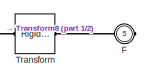
[diagram: Plant/Robot/Robot_CAD/Body_1_RIGID - part 2/2, bottom left region]
BLOCK [SubSystem] Plant/Robot/Robot_CAD/Body_1_RIGID
  Ports = [0, 0, 0, 0, 0, 2, 3]
  RequestExecContextInheritance = off
BLOCK [SubSystem] Plant/Robot/Robot_CAD/Body_1_RIGID/CPU_1_RIGID
  Ports = [0, 0, 0, 0, 0, 1]
  RequestExecContextInheritance = off
BLOCK [PMIOPort] Plant/Robot/Robot_CAD/Body_1_RIGID/CPU_1_RIGID/F
  Port = 1
  Side = Left
BLOCK [Reference] Plant/Robot/Robot_CAD/Body_1_RIGID/CPU_1_RIGID/ReferenceFrame  REF=sm_lib/Frames and
Transforms/Reference
Frame
  BlockFunction = simmechanics.library.frames_transforms.reference_frame
  ClassName = ReferenceFrame
  LogSimulationData = off
  Ports = [0, 0, 0, 0, 0, 0, 1]
  SourceBlock = sm_lib/Frames and\nTransforms/Reference\nFrame
  SourceType = Reference\nFrame
BLOCK [Reference] Plant/Robot/Robot_CAD/Body_1_RIGID/CPU_1_RIGID/Solid  REF=sm_lib/Body Elements/Solid
  BlockFunction = simmechanics.library.body_elements.solid
  BrickDimensionUnits = m
  BrickDimensions = [1 1 1]
  CenterOfMass = [-0.90114960629921237 -1.2147519685039367 0.59946456692913375]
  CenterOfMassUnits = in
  ClassName = Solid
  CylinderLength = 1
  CylinderLengthUnits = m
  CylinderRadius = 1
  CylinderRadiusUnits = m
  Density = 1000
  DensityBased = on
  DensityUnits = kg/(m^3)
  EllipsoidRadii = [1 1 1]
  EllipsoidRadiiUnits = m
  ExtGeomFileName = CPU_Default_sldprt.STL
  ExtGeomFileType = STL
  ExtGeomFileUnits = in
  ExtrusionCrossSection = [1 1; -1 1; -1 -1; 1 -1]
  ExtrusionCrossSectionUnits = m
  ExtrusionLength = 1
  ExtrusionLengthUnits = m
  GeometryShape = FromFile
  GraphicAmbientColor = [0.15 0.15 0.15 1.0]
  GraphicDiffuseColor = [0.792157 0.819608 0.933333]
  GraphicEmissiveColor = [0.0 0.0 0.0 1.0]
  GraphicOpacity = 1
  GraphicShininess = 75
  GraphicSpecularColor = [0.5 0.5 0.5 1.0]
  GraphicType = FromGeometry
  GraphicVisPropType = SimpleVisualProperties
  InertiaType = Custom
  LogSimulationData = off
  MarkerShape = Sphere
  MarkerSize = 10
  MarkerSizeUnits = m
  Mass = 0.27372999999999997
  MassUnits = kg
  MomentsOfInertia = [0.06532627565255128 0.12755208010416016 0.15924421848843692]
  MomentsOfInertiaUnits = kg*in^2
  PolygonNumSides = 3
  PolygonOuterRadius = 1
  PolygonOuterRadiusUnits = m
  Ports = [0, 0, 0, 0, 0, 0, 1]
  ProductsOfInertia = [3.2427304854609697e-08 0.00090061070122140216 8.3169756339512654e-08]
  ProductsOfInertiaUnits = kg*in^2
  RectangleSize = [1 1]
  RectangleSizeUnits = m
  RevolutionAngle = 180
  RevolutionAngleUnits = deg
  RevolutionCrossSection = [1 1; 1 -1; 2 -1; 2 1]
  RevolutionCrossSectionUnits = m
  RevolutionExtent = Full
  SourceBlock = sm_lib/Body Elements/Solid
  SourceType = Solid
  SphereRadius = 1
  SphereRadiusUnits = m
BLOCK [SubSystem] Plant/Robot/Robot_CAD/Body_1_RIGID/CrossTemplate_1_RIGID
  Ports = [0, 0, 0, 0, 0, 1]
  RequestExecContextInheritance = off
BLOCK [PMIOPort] Plant/Robot/Robot_CAD/Body_1_RIGID/CrossTemplate_1_RIGID/F
  Port = 1
  Side = Left
BLOCK [Reference] Plant/Robot/Robot_CAD/Body_1_RIGID/CrossTemplate_1_RIGID/ReferenceFrame  REF=sm_lib/Frames and
Transforms/Reference
Frame
  BlockFunction = simmechanics.library.frames_transforms.reference_frame
  ClassName = ReferenceFrame
  LogSimulationData = off
  Ports = [0, 0, 0, 0, 0, 0, 1]
  SourceBlock = sm_lib/Frames and\nTransforms/Reference\nFrame
  SourceType = Reference\nFrame
BLOCK [Reference] Plant/Robot/Robot_CAD/Body_1_RIGID/CrossTemplate_1_RIGID/Solid  REF=sm_lib/Body Elements/Solid
  BlockFunction = simmechanics.library.body_elements.solid
  BrickDimensionUnits = m
  BrickDimensions = [1 1 1]
  CenterOfMass = [0 0 1.3949999999999998]
  CenterOfMassUnits = in
  ClassName = Solid
  CylinderLength = 1
  CylinderLengthUnits = m
  CylinderRadius = 1
  CylinderRadiusUnits = m
  Density = 1000
  DensityBased = on
  DensityUnits = kg/(m^3)
  EllipsoidRadii = [1 1 1]
  EllipsoidRadiiUnits = m
  ExtGeomFileName = CrossTemplate_Nine_sldprt.STL
  ExtGeomFileType = STL
  ExtGeomFileUnits = in
  ExtrusionCrossSection = [1 1; -1 1; -1 -1; 1 -1]
  ExtrusionCrossSectionUnits = m
  ExtrusionLength = 1
  ExtrusionLengthUnits = m
  GeometryShape = FromFile
  GraphicAmbientColor = [0.15 0.15 0.15 1.0]
  GraphicDiffuseColor = [1 1 1]
  GraphicEmissiveColor = [0.0 0.0 0.0 1.0]
  GraphicOpacity = 1
  GraphicShininess = 75
  GraphicSpecularColor = [0.5 0.5 0.5 1.0]
  GraphicType = FromGeometry
  GraphicVisPropType = SimpleVisualProperties
  InertiaType = Custom
  LogSimulationData = off
  MarkerShape = Sphere
  MarkerSize = 10
  MarkerSizeUnits = m
  Mass = 0.00097801000000000008
  MassUnits = kg
  MomentsOfInertia = [0.00063592597185194351 0.00063592597185194351 3.0301785603571201e-06]
  MomentsOfInertiaUnits = kg*in^2
  PolygonNumSides = 3
  PolygonOuterRadius = 1
  PolygonOuterRadiusUnits = m
  Ports = [0, 0, 0, 0, 0, 0, 1]
  ProductsOfInertia = [0 0 0]
  ProductsOfInertiaUnits = kg*in^2
  RectangleSize = [1 1]
  RectangleSizeUnits = m
  RevolutionAngle = 180
  RevolutionAngleUnits = deg
  RevolutionCrossSection = [1 1; 1 -1; 2 -1; 2 1]
  RevolutionCrossSectionUnits = m
  RevolutionExtent = Full
  SourceBlock = sm_lib/Body Elements/Solid
  SourceType = Solid
  SphereRadius = 1
  SphereRadiusUnits = m
BLOCK [PMIOPort] Plant/Robot/Robot_CAD/Body_1_RIGID/F
  Port = 5
  Side = Right
BLOCK [PMIOPort] Plant/Robot/Robot_CAD/Body_1_RIGID/F1
  Port = 4
  Side = Right
BLOCK [PMIOPort] Plant/Robot/Robot_CAD/Body_1_RIGID/F2
  Port = 3
  Side = Right
BLOCK [PMIOPort] Plant/Robot/Robot_CAD/Body_1_RIGID/F3
  Port = 2
  Side = Left
BLOCK [PMIOPort] Plant/Robot/Robot_CAD/Body_1_RIGID/F4
  Port = 1
  Side = Left
BLOCK [SubSystem] Plant/Robot/Robot_CAD/Body_1_RIGID/Lego_NXT_Touch_sensor_1_RIGID
  Ports = [0, 0, 0, 0, 0, 0, 1]
  RequestExecContextInheritance = off
BLOCK [SubSystem] Plant/Robot/Robot_CAD/Body_1_RIGID/Lego_NXT_Touch_sensor_1_RIGID/Electric_touch_sensor_NXT_nose_1_RIGID
  Ports = [0, 0, 0, 0, 0, 1]
  RequestExecContextInheritance = off
BLOCK [PMIOPort] Plant/Robot/Robot_CAD/Body_1_RIGID/Lego_NXT_Touch_sensor_1_RIGID/Electric_touch_sensor_NXT_nose_1_RIGID/F
  Port = 1
  Side = Left
BLOCK [Reference] Plant/Robot/Robot_CAD/Body_1_RIGID/Lego_NXT_Touch_sensor_1_RIGID/Electric_touch_sensor_NXT_nose_1_RIGID/ReferenceFrame  REF=sm_lib/Frames and
Transforms/Reference
Frame
  BlockFunction = simmechanics.library.frames_transforms.reference_frame
  ClassName = ReferenceFrame
  LogSimulationData = off
  Ports = [0, 0, 0, 0, 0, 0, 1]
  SourceBlock = sm_lib/Frames and\nTransforms/Reference\nFrame
  SourceType = Reference\nFrame
BLOCK [Reference] Plant/Robot/Robot_CAD/Body_1_RIGID/Lego_NXT_Touch_sensor_1_RIGID/Electric_touch_sensor_NXT_nose_1_RIGID/Solid  REF=sm_lib/Body Elements/Solid
  BlockFunction = simmechanics.library.body_elements.solid
  BrickDimensionUnits = m
  BrickDimensions = [1 1 1]
  CenterOfMass = [10.200000000000001 10.75 -8.9725099999999998]
  CenterOfMassUnits = mm
  ClassName = Solid
  CylinderLength = 1
  CylinderLengthUnits = m
  CylinderRadius = 1
  CylinderRadiusUnits = m
  Density = 1000
  DensityBased = on
  DensityUnits = kg/(m^3)
  EllipsoidRadii = [1 1 1]
  EllipsoidRadiiUnits = m
  ExtGeomFileName = Electric touch sensor NXT nose_Sound sensor body_sldprt.STL
  ExtGeomFileType = STL
  ExtGeomFileUnits = mm
  ExtrusionCrossSection = [1 1; -1 1; -1 -1; 1 -1]
  ExtrusionCrossSectionUnits = m
  ExtrusionLength = 1
  ExtrusionLengthUnits = m
  GeometryShape = FromFile
  GraphicAmbientColor = [0.15 0.15 0.15 1.0]
  GraphicDiffuseColor = [1 1 1]
  GraphicEmissiveColor = [0.0 0.0 0.0 1.0]
  GraphicOpacity = 1
  GraphicShininess = 75
  GraphicSpecularColor = [0.5 0.5 0.5 1.0]
  GraphicType = FromGeometry
  GraphicVisPropType = SimpleVisualProperties
  InertiaType = Custom
  LogSimulationData = off
  MarkerShape = Sphere
  MarkerSize = 10
  MarkerSizeUnits = m
  Mass = 0.0069667099999999992
  MassUnits = kg
  MomentsOfInertia = [0.44176599999999999 0.41183800000000004 0.56689100000000003]
  MomentsOfInertiaUnits = kg*mm^2
  PolygonNumSides = 3
  PolygonOuterRadius = 1
  PolygonOuterRadiusUnits = m
  Ports = [0, 0, 0, 0, 0, 0, 1]
  ProductsOfInertia = [0 0 -9.7096599999999997e-09]
  ProductsOfInertiaUnits = kg*mm^2
  RectangleSize = [1 1]
  RectangleSizeUnits = m
  RevolutionAngle = 180
  RevolutionAngleUnits = deg
  RevolutionCrossSection = [1 1; 1 -1; 2 -1; 2 1]
  RevolutionCrossSectionUnits = m
  RevolutionExtent = Full
  SourceBlock = sm_lib/Body Elements/Solid
  SourceType = Solid
  SphereRadius = 1
  SphereRadiusUnits = m
BLOCK [SubSystem] Plant/Robot/Robot_CAD/Body_1_RIGID/Lego_NXT_Touch_sensor_1_RIGID/Electric_touch_sensor_NXT_plunger_2_RIGID
  Ports = [0, 0, 0, 0, 0, 1]
  RequestExecContextInheritance = off
BLOCK [PMIOPort] Plant/Robot/Robot_CAD/Body_1_RIGID/Lego_NXT_Touch_sensor_1_RIGID/Electric_touch_sensor_NXT_plunger_2_RIGID/F
  Port = 1
  Side = Left
BLOCK [Reference] Plant/Robot/Robot_CAD/Body_1_RIGID/Lego_NXT_Touch_sensor_1_RIGID/Electric_touch_sensor_NXT_plunger_2_RIGID/ReferenceFrame  REF=sm_lib/Frames and
Transforms/Reference
Frame
  BlockFunction = simmechanics.library.frames_transforms.reference_frame
  ClassName = ReferenceFrame
  LogSimulationData = off
  Ports = [0, 0, 0, 0, 0, 0, 1]
  SourceBlock = sm_lib/Frames and\nTransforms/Reference\nFrame
  SourceType = Reference\nFrame
BLOCK [Reference] Plant/Robot/Robot_CAD/Body_1_RIGID/Lego_NXT_Touch_sensor_1_RIGID/Electric_touch_sensor_NXT_plunger_2_RIGID/Solid  REF=sm_lib/Body Elements/Solid
  BlockFunction = simmechanics.library.body_elements.solid
  BrickDimensionUnits = m
  BrickDimensions = [1 1 1]
  CenterOfMass = [0.0071417299999999998 -0.0012143599999999998 -5.4099400000000006]
  CenterOfMassUnits = mm
  ClassName = Solid
  CylinderLength = 1
  CylinderLengthUnits = m
  CylinderRadius = 1
  CylinderRadiusUnits = m
  Density = 1000
  DensityBased = on
  DensityUnits = kg/(m^3)
  EllipsoidRadii = [1 1 1]
  EllipsoidRadiiUnits = m
  ExtGeomFileName = Electric touch sensor NXT plunger_Default_sldprt.STL
  ExtGeomFileType = STL
  ExtGeomFileUnits = mm
  ExtrusionCrossSection = [1 1; -1 1; -1 -1; 1 -1]
  ExtrusionCrossSectionUnits = m
  ExtrusionLength = 1
  ExtrusionLengthUnits = m
  GeometryShape = FromFile
  GraphicAmbientColor = [0.15 0.15 0.15 1.0]
  GraphicDiffuseColor = [1 1 1]
  GraphicEmissiveColor = [0.0 0.0 0.0 1.0]
  GraphicOpacity = 1
  GraphicShininess = 75
  GraphicSpecularColor = [0.5 0.5 0.5 1.0]
  GraphicType = FromGeometry
  GraphicVisPropType = SimpleVisualProperties
  InertiaType = Custom
  LogSimulationData = off
  MarkerShape = Sphere
  MarkerSize = 10
  MarkerSizeUnits = m
  Mass = 0.0014773400000000002
  MassUnits = kg
  MomentsOfInertia = [0.0305968 0.0289197 0.037166899999999996]
  MomentsOfInertiaUnits = kg*mm^2
  PolygonNumSides = 3
  PolygonOuterRadius = 1
  PolygonOuterRadiusUnits = m
  Ports = [0, 0, 0, 0, 0, 0, 1]
  ProductsOfInertia = [-2.5403699999999999e-06 1.4947399999999999e-05 1.2489899999999999e-08]
  ProductsOfInertiaUnits = kg*mm^2
  RectangleSize = [1 1]
  RectangleSizeUnits = m
  RevolutionAngle = 180
  RevolutionAngleUnits = deg
  RevolutionCrossSection = [1 1; 1 -1; 2 -1; 2 1]
  RevolutionCrossSectionUnits = m
  RevolutionExtent = Full
  SourceBlock = sm_lib/Body Elements/Solid
  SourceType = Solid
  SphereRadius = 1
  SphereRadiusUnits = m
BLOCK [PMIOPort] Plant/Robot/Robot_CAD/Body_1_RIGID/Lego_NXT_Touch_sensor_1_RIGID/F
  Port = 1
  Side = Right
BLOCK [Reference] Plant/Robot/Robot_CAD/Body_1_RIGID/Lego_NXT_Touch_sensor_1_RIGID/ReferenceFrame  REF=sm_lib/Frames and
Transforms/Reference
Frame
  BlockFunction = simmechanics.library.frames_transforms.reference_frame
  ClassName = ReferenceFrame
  LogSimulationData = off
  Ports = [0, 0, 0, 0, 0, 0, 1]
  SourceBlock = sm_lib/Frames and\nTransforms/Reference\nFrame
  SourceType = Reference\nFrame
BLOCK [SubSystem] Plant/Robot/Robot_CAD/Body_1_RIGID/Lego_NXT_Touch_sensor_1_RIGID/Sensor_NXT_body_2_RIGID
  Ports = [0, 0, 0, 0, 0, 1]
  RequestExecContextInheritance = off
BLOCK [PMIOPort] Plant/Robot/Robot_CAD/Body_1_RIGID/Lego_NXT_Touch_sensor_1_RIGID/Sensor_NXT_body_2_RIGID/F
  Port = 1
  Side = Left
BLOCK [Reference] Plant/Robot/Robot_CAD/Body_1_RIGID/Lego_NXT_Touch_sensor_1_RIGID/Sensor_NXT_body_2_RIGID/ReferenceFrame  REF=sm_lib/Frames and
Transforms/Reference
Frame
  BlockFunction = simmechanics.library.frames_transforms.reference_frame
  ClassName = ReferenceFrame
  LogSimulationData = off
  Ports = [0, 0, 0, 0, 0, 0, 1]
  SourceBlock = sm_lib/Frames and\nTransforms/Reference\nFrame
  SourceType = Reference\nFrame
BLOCK [Reference] Plant/Robot/Robot_CAD/Body_1_RIGID/Lego_NXT_Touch_sensor_1_RIGID/Sensor_NXT_body_2_RIGID/Solid  REF=sm_lib/Body Elements/Solid
  BlockFunction = simmechanics.library.body_elements.solid
  BrickDimensionUnits = m
  BrickDimensions = [1 1 1]
  CenterOfMass = [10.0769 10.460699999999999 -27.822300000000002]
  CenterOfMassUnits = mm
  ClassName = Solid
  CylinderLength = 1
  CylinderLengthUnits = m
  CylinderRadius = 1
  CylinderRadiusUnits = m
  Density = 1000
  DensityBased = on
  DensityUnits = kg/(m^3)
  EllipsoidRadii = [1 1 1]
  EllipsoidRadiiUnits = m
  ExtGeomFileName = Sensor NXT body_Sound sensor body_sldprt.STL
  ExtGeomFileType = STL
  ExtGeomFileUnits = mm
  ExtrusionCrossSection = [1 1; -1 1; -1 -1; 1 -1]
  ExtrusionCrossSectionUnits = m
  ExtrusionLength = 1
  ExtrusionLengthUnits = m
  GeometryShape = FromFile
  GraphicAmbientColor = [0.15 0.15 0.15 1.0]
  GraphicDiffuseColor = [1 1 1]
  GraphicEmissiveColor = [0.0 0.0 0.0 1.0]
  GraphicOpacity = 1
  GraphicShininess = 75
  GraphicSpecularColor = [0.5 0.5 0.5 1.0]
  GraphicType = FromGeometry
  GraphicVisPropType = SimpleVisualProperties
  InertiaType = Custom
  LogSimulationData = off
  MarkerShape = Sphere
  MarkerSize = 10
  MarkerSizeUnits = m
  Mass = 0.011247800000000001
  MassUnits = kg
  MomentsOfInertia = [1.4374899999999999 1.21759 1.11965]
  MomentsOfInertiaUnits = kg*mm^2
  PolygonNumSides = 3
  PolygonOuterRadius = 1
  PolygonOuterRadiusUnits = m
  Ports = [0, 0, 0, 0, 0, 0, 1]
  ProductsOfInertia = [0.00082615999999999994 0.0075866299999999996 0.0020231199999999998]
  ProductsOfInertiaUnits = kg*mm^2
  RectangleSize = [1 1]
  RectangleSizeUnits = m
  RevolutionAngle = 180
  RevolutionAngleUnits = deg
  RevolutionCrossSection = [1 1; 1 -1; 2 -1; 2 1]
  RevolutionCrossSectionUnits = m
  RevolutionExtent = Full
  SourceBlock = sm_lib/Body Elements/Solid
  SourceType = Solid
  SphereRadius = 1
  SphereRadiusUnits = m
BLOCK [SubSystem] Plant/Robot/Robot_CAD/Body_1_RIGID/Lego_NXT_Touch_sensor_1_RIGID/Sensor_NXT_body_connector_socket_2_RIGID
  Ports = [0, 0, 0, 0, 0, 1]
  RequestExecContextInheritance = off
BLOCK [PMIOPort] Plant/Robot/Robot_CAD/Body_1_RIGID/Lego_NXT_Touch_sensor_1_RIGID/Sensor_NXT_body_connector_socket_2_RIGID/F
  Port = 1
  Side = Left
BLOCK [Reference] Plant/Robot/Robot_CAD/Body_1_RIGID/Lego_NXT_Touch_sensor_1_RIGID/Sensor_NXT_body_connector_socket_2_RIGID/ReferenceFrame  REF=sm_lib/Frames and
Transforms/Reference
Frame
  BlockFunction = simmechanics.library.frames_transforms.reference_frame
  ClassName = ReferenceFrame
  LogSimulationData = off
  Ports = [0, 0, 0, 0, 0, 0, 1]
  SourceBlock = sm_lib/Frames and\nTransforms/Reference\nFrame
  SourceType = Reference\nFrame
BLOCK [Reference] Plant/Robot/Robot_CAD/Body_1_RIGID/Lego_NXT_Touch_sensor_1_RIGID/Sensor_NXT_body_connector_socket_2_RIGID/Solid  REF=sm_lib/Body Elements/Solid
  BlockFunction = simmechanics.library.body_elements.solid
  BrickDimensionUnits = m
  BrickDimensions = [1 1 1]
  CenterOfMass = [6.6372899999999992 7.2639500000000004 -8.4048400000000001]
  CenterOfMassUnits = mm
  ClassName = Solid
  CylinderLength = 1
  CylinderLengthUnits = m
  CylinderRadius = 1
  CylinderRadiusUnits = m
  Density = 1000
  DensityBased = on
  DensityUnits = kg/(m^3)
  EllipsoidRadii = [1 1 1]
  EllipsoidRadiiUnits = m
  ExtGeomFileName = Sensor NXT body connector socket_Default_sldprt.STL
  ExtGeomFileType = STL
  ExtGeomFileUnits = mm
  ExtrusionCrossSection = [1 1; -1 1; -1 -1; 1 -1]
  ExtrusionCrossSectionUnits = m
  ExtrusionLength = 1
  ExtrusionLengthUnits = m
  GeometryShape = FromFile
  GraphicAmbientColor = [0.15 0.15 0.15 1.0]
  GraphicDiffuseColor = [1 1 1]
  GraphicEmissiveColor = [0.0 0.0 0.0 1.0]
  GraphicOpacity = 1
  GraphicShininess = 75
  GraphicSpecularColor = [0.5 0.5 0.5 1.0]
  GraphicType = FromGeometry
  GraphicVisPropType = SimpleVisualProperties
  InertiaType = Custom
  LogSimulationData = off
  MarkerShape = Sphere
  MarkerSize = 10
  MarkerSizeUnits = m
  Mass = 0.0023450800000000003
  MassUnits = kg
  MomentsOfInertia = [0.10137500000000001 0.084813399999999997 0.098371199999999992]
  MomentsOfInertiaUnits = kg*mm^2
  PolygonNumSides = 3
  PolygonOuterRadius = 1
  PolygonOuterRadiusUnits = m
  Ports = [0, 0, 0, 0, 0, 0, 1]
  ProductsOfInertia = [-0.0037994700000000001 0.0010259199999999998 -0.0016298299999999999]
  ProductsOfInertiaUnits = kg*mm^2
  RectangleSize = [1 1]
  RectangleSizeUnits = m
  RevolutionAngle = 180
  RevolutionAngleUnits = deg
  RevolutionCrossSection = [1 1; 1 -1; 2 -1; 2 1]
  RevolutionCrossSectionUnits = m
  RevolutionExtent = Full
  SourceBlock = sm_lib/Body Elements/Solid
  SourceType = Solid
  SphereRadius = 1
  SphereRadiusUnits = m
BLOCK [SubSystem] Plant/Robot/Robot_CAD/Body_1_RIGID/Lego_NXT_Touch_sensor_1_RIGID/Sensor_NXT_cover_1_RIGID
  Ports = [0, 0, 0, 0, 0, 1]
  RequestExecContextInheritance = off
BLOCK [PMIOPort] Plant/Robot/Robot_CAD/Body_1_RIGID/Lego_NXT_Touch_sensor_1_RIGID/Sensor_NXT_cover_1_RIGID/F
  Port = 1
  Side = Left
BLOCK [Reference] Plant/Robot/Robot_CAD/Body_1_RIGID/Lego_NXT_Touch_sensor_1_RIGID/Sensor_NXT_cover_1_RIGID/ReferenceFrame  REF=sm_lib/Frames and
Transforms/Reference
Frame
  BlockFunction = simmechanics.library.frames_transforms.reference_frame
  ClassName = ReferenceFrame
  LogSimulationData = off
  Ports = [0, 0, 0, 0, 0, 0, 1]
  SourceBlock = sm_lib/Frames and\nTransforms/Reference\nFrame
  SourceType = Reference\nFrame
BLOCK [Reference] Plant/Robot/Robot_CAD/Body_1_RIGID/Lego_NXT_Touch_sensor_1_RIGID/Sensor_NXT_cover_1_RIGID/Solid  REF=sm_lib/Body Elements/Solid
  BlockFunction = simmechanics.library.body_elements.solid
  BrickDimensionUnits = m
  BrickDimensions = [1 1 1]
  CenterOfMass = [10.25 9.0056899999999995 15.5]
  CenterOfMassUnits = mm
  ClassName = Solid
  CylinderLength = 1
  CylinderLengthUnits = m
  CylinderRadius = 1
  CylinderRadiusUnits = m
  Density = 1000
  DensityBased = on
  DensityUnits = kg/(m^3)
  EllipsoidRadii = [1 1 1]
  EllipsoidRadiiUnits = m
  ExtGeomFileName = Sensor NXT cover_Default_sldprt.STL
  ExtGeomFileType = STL
  ExtGeomFileUnits = mm
  ExtrusionCrossSection = [1 1; -1 1; -1 -1; 1 -1]
  ExtrusionCrossSectionUnits = m
  ExtrusionLength = 1
  ExtrusionLengthUnits = m
  GeometryShape = FromFile
  GraphicAmbientColor = [0.15 0.15 0.15 1.0]
  GraphicDiffuseColor = [1 1 1]
  GraphicEmissiveColor = [0.0 0.0 0.0 1.0]
  GraphicOpacity = 1
  GraphicShininess = 75
  GraphicSpecularColor = [0.5 0.5 0.5 1.0]
  GraphicType = FromGeometry
  GraphicVisPropType = SimpleVisualProperties
  InertiaType = Custom
  LogSimulationData = off
  MarkerShape = Sphere
  MarkerSize = 10
  MarkerSizeUnits = m
  Mass = 0.00248826
  MassUnits = kg
  MomentsOfInertia = [0.242646 0.397148 0.24125799999999997]
  MomentsOfInertiaUnits = kg*mm^2
  PolygonNumSides = 3
  PolygonOuterRadius = 1
  PolygonOuterRadiusUnits = m
  Ports = [0, 0, 0, 0, 0, 0, 1]
  ProductsOfInertia = [0 0 0]
  ProductsOfInertiaUnits = kg*mm^2
  RectangleSize = [1 1]
  RectangleSizeUnits = m
  RevolutionAngle = 180
  RevolutionAngleUnits = deg
  RevolutionCrossSection = [1 1; 1 -1; 2 -1; 2 1]
  RevolutionCrossSectionUnits = m
  RevolutionExtent = Full
  SourceBlock = sm_lib/Body Elements/Solid
  SourceType = Solid
  SphereRadius = 1
  SphereRadiusUnits = m
BLOCK [Reference] Plant/Robot/Robot_CAD/Body_1_RIGID/Lego_NXT_Touch_sensor_1_RIGID/Transform  REF=sm_lib/Frames and
Transforms/Rigid
Transform
  BaseAlignAxisA = +Y
  BaseAlignAxisB = +Z
  BlockFunction = simmechanics.library.frames_transforms.rigid_transform
  ClassName = RigidTransform
  FollAlignAxisA = +X
  FollAlignAxisB = +Y
  LogSimulationData = off
  Ports = [0, 0, 0, 0, 0, 1, 1]
  RotationAngle = 0
  RotationAngleUnits = deg
  RotationArbitraryAxis = [0 0 1]
  RotationMatrix = [1 0 0; 0 1 0; 0 0 1]
  RotationMethod = None
  RotationStandardAxis = +Z
  SourceBlock = sm_lib/Frames and\nTransforms/Rigid\nTransform
  SourceType = Rigid\nTransform
  TranslationCartesianOffset = [10.160600000000001 -4.4871099999999995 15.050600000000001]
  TranslationLengthUnit = mm
  TranslationMethod = Cartesian
  TranslationROffset = 0
  TranslationROffsetUnits = m
  TranslationStandardAxis = +Z
  TranslationStandardOffset = 0
  TranslationThetaOffset = 0
  TranslationThetaOffsetUnits = deg
  TranslationZOffset = 0
  TranslationZOffsetUnits = m
BLOCK [Reference] Plant/Robot/Robot_CAD/Body_1_RIGID/Lego_NXT_Touch_sensor_1_RIGID/Transform1  REF=sm_lib/Frames and
Transforms/Rigid
Transform
  BaseAlignAxisA = +Y
  BaseAlignAxisB = +Z
  BlockFunction = simmechanics.library.frames_transforms.rigid_transform
  ClassName = RigidTransform
  FollAlignAxisA = +X
  FollAlignAxisB = +Y
  LogSimulationData = off
  Ports = [0, 0, 0, 0, 0, 1, 1]
  RotationAngle = 0
  RotationAngleUnits = deg
  RotationArbitraryAxis = [0 0 1]
  RotationMatrix = [1 0 0; 0 1 0; 0 0 1]
  RotationMethod = None
  RotationStandardAxis = +Z
  SourceBlock = sm_lib/Frames and\nTransforms/Rigid\nTransform
  SourceType = Rigid\nTransform
  TranslationCartesianOffset = [10.160600000000001 -4.4871099999999995 15.550599999999999]
  TranslationLengthUnit = mm
  TranslationMethod = Cartesian
  TranslationROffset = 0
  TranslationROffsetUnits = m
  TranslationStandardAxis = +Z
  TranslationStandardOffset = 0
  TranslationThetaOffset = 0
  TranslationThetaOffsetUnits = deg
  TranslationZOffset = 0
  TranslationZOffsetUnits = m
BLOCK [Reference] Plant/Robot/Robot_CAD/Body_1_RIGID/Lego_NXT_Touch_sensor_1_RIGID/Transform2  REF=sm_lib/Frames and
Transforms/Rigid
Transform
  BaseAlignAxisA = +Y
  BaseAlignAxisB = +Z
  BlockFunction = simmechanics.library.frames_transforms.rigid_transform
  ClassName = RigidTransform
  FollAlignAxisA = +X
  FollAlignAxisB = +Y
  LogSimulationData = off
  Ports = [0, 0, 0, 0, 0, 1, 1]
  RotationAngle = 0
  RotationAngleUnits = deg
  RotationArbitraryAxis = [0 0 1]
  RotationMatrix = [1 0 0; 0 1 0; 0 0 1]
  RotationMethod = None
  RotationStandardAxis = +Z
  SourceBlock = sm_lib/Frames and\nTransforms/Rigid\nTransform
  SourceType = Rigid\nTransform
  TranslationCartesianOffset = [20.2606 6.3628900000000002 20.550599999999999]
  TranslationLengthUnit = mm
  TranslationMethod = Cartesian
  TranslationROffset = 0
  TranslationROffsetUnits = m
  TranslationStandardAxis = +Z
  TranslationStandardOffset = 0
  TranslationThetaOffset = 0
  TranslationThetaOffsetUnits = deg
  TranslationZOffset = 0
  TranslationZOffsetUnits = m
BLOCK [Reference] Plant/Robot/Robot_CAD/Body_1_RIGID/Lego_NXT_Touch_sensor_1_RIGID/Transform3  REF=sm_lib/Frames and
Transforms/Rigid
Transform
  BaseAlignAxisA = +Y
  BaseAlignAxisB = +Z
  BlockFunction = simmechanics.library.frames_transforms.rigid_transform
  ClassName = RigidTransform
  FollAlignAxisA = +X
  FollAlignAxisB = +Y
  LogSimulationData = off
  Ports = [0, 0, 0, 0, 0, 1, 1]
  RotationAngle = 0
  RotationAngleUnits = deg
  RotationArbitraryAxis = [0 0 1]
  RotationMatrix = [1 0 0; 0 1 0; 0 0 1]
  RotationMethod = None
  RotationStandardAxis = +Z
  SourceBlock = sm_lib/Frames and\nTransforms/Rigid\nTransform
  SourceType = Rigid\nTransform
  TranslationCartesianOffset = [10.160600000000001 5.0128899999999996 -21.949400000000001]
  TranslationLengthUnit = mm
  TranslationMethod = Cartesian
  TranslationROffset = 0
  TranslationROffsetUnits = m
  TranslationStandardAxis = +Z
  TranslationStandardOffset = 0
  TranslationThetaOffset = 0
  TranslationThetaOffsetUnits = deg
  TranslationZOffset = 0
  TranslationZOffsetUnits = m
BLOCK [Reference] Plant/Robot/Robot_CAD/Body_1_RIGID/Lego_NXT_Touch_sensor_1_RIGID/Transform4  REF=sm_lib/Frames and
Transforms/Rigid
Transform
  BaseAlignAxisA = +Y
  BaseAlignAxisB = +Z
  BlockFunction = simmechanics.library.frames_transforms.rigid_transform
  ClassName = RigidTransform
  FollAlignAxisA = +X
  FollAlignAxisB = +Y
  LogSimulationData = off
  Ports = [0, 0, 0, 0, 0, 1, 1]
  RotationAngle = 3.1415926535897931
  RotationAngleUnits = rad
  RotationArbitraryAxis = [0 1 0]
  RotationMatrix = [1 0 0; 0 1 0; 0 0 1]
  RotationMethod = ArbitraryAxis
  RotationStandardAxis = +Z
  SourceBlock = sm_lib/Frames and\nTransforms/Rigid\nTransform
  SourceType = Rigid\nTransform
  TranslationCartesianOffset = [27.0337 -2.8871099999999998 -28.249400000000001]
  TranslationLengthUnit = mm
  TranslationMethod = Cartesian
  TranslationROffset = 0
  TranslationROffsetUnits = m
  TranslationStandardAxis = +Z
  TranslationStandardOffset = 0
  TranslationThetaOffset = 0
  TranslationThetaOffsetUnits = deg
  TranslationZOffset = 0
  TranslationZOffsetUnits = m
BLOCK [Reference] Plant/Robot/Robot_CAD/Body_1_RIGID/Lego_NXT_Touch_sensor_1_RIGID/Transform5  REF=sm_lib/Frames and
Transforms/Rigid
Transform
  BaseAlignAxisA = +Y
  BaseAlignAxisB = +Z
  BlockFunction = simmechanics.library.frames_transforms.rigid_transform
  ClassName = RigidTransform
  FollAlignAxisA = +X
  FollAlignAxisB = +Y
  LogSimulationData = off
  Ports = [0, 0, 0, 0, 0, 1, 1]
  RotationAngle = 1.5814575008002525
  RotationAngleUnits = rad
  RotationArbitraryAxis = [-1.1712426167117591e-15 -1 -4.3999480339991413e-16]
  RotationMatrix = [1 0 0; 0 1 0; 0 0 1]
  RotationMethod = ArbitraryAxis
  RotationStandardAxis = +Z
  SourceBlock = sm_lib/Frames and\nTransforms/Rigid\nTransform
  SourceType = Rigid\nTransform
  TranslationCartesianOffset = [-194.44499999999999 4.4871099999999995 -72.579599999999999]
  TranslationLengthUnit = mm
  TranslationMethod = Cartesian
  TranslationROffset = 0
  TranslationROffsetUnits = m
  TranslationStandardAxis = +Z
  TranslationStandardOffset = 0
  TranslationThetaOffset = 0
  TranslationThetaOffsetUnits = deg
  TranslationZOffset = 0
  TranslationZOffsetUnits = m
BLOCK [SubSystem] Plant/Robot/Robot_CAD/Body_1_RIGID/Light_sensor_1_RIGID
  Ports = [0, 0, 0, 0, 0, 1]
  RequestExecContextInheritance = off
BLOCK [PMIOPort] Plant/Robot/Robot_CAD/Body_1_RIGID/Light_sensor_1_RIGID/F
  Port = 1
  Side = Left
BLOCK [Reference] Plant/Robot/Robot_CAD/Body_1_RIGID/Light_sensor_1_RIGID/ReferenceFrame  REF=sm_lib/Frames and
Transforms/Reference
Frame
  BlockFunction = simmechanics.library.frames_transforms.reference_frame
  ClassName = ReferenceFrame
  LogSimulationData = off
  Ports = [0, 0, 0, 0, 0, 0, 1]
  SourceBlock = sm_lib/Frames and\nTransforms/Reference\nFrame
  SourceType = Reference\nFrame
BLOCK [Reference] Plant/Robot/Robot_CAD/Body_1_RIGID/Light_sensor_1_RIGID/Solid  REF=sm_lib/Body Elements/Solid
  BlockFunction = simmechanics.library.body_elements.solid
  BrickDimensionUnits = m
  BrickDimensions = [1 1 1]
  CenterOfMass = [-0.00093884600000000002 -0.27456900000000001 1.41408]
  CenterOfMassUnits = mm
  ClassName = Solid
  CylinderLength = 1
  CylinderLengthUnits = m
  CylinderRadius = 1
  CylinderRadiusUnits = m
  Density = 1000
  DensityBased = on
  DensityUnits = kg/(m^3)
  EllipsoidRadii = [1 1 1]
  EllipsoidRadiiUnits = m
  ExtGeomFileName = Light_sensor_Default_sldprt.STL
  ExtGeomFileType = STL
  ExtGeomFileUnits = mm
  ExtrusionCrossSection = [1 1; -1 1; -1 -1; 1 -1]
  ExtrusionCrossSectionUnits = m
  ExtrusionLength = 1
  ExtrusionLengthUnits = m
  GeometryShape = FromFile
  GraphicAmbientColor = [0.15 0.15 0.15 1.0]
  GraphicDiffuseColor = [0.792157 0.819608 0.933333]
  GraphicEmissiveColor = [0.0 0.0 0.0 1.0]
  GraphicOpacity = 1
  GraphicShininess = 75
  GraphicSpecularColor = [0.5 0.5 0.5 1.0]
  GraphicType = FromGeometry
  GraphicVisPropType = SimpleVisualProperties
  InertiaType = Custom
  LogSimulationData = off
  MarkerShape = Sphere
  MarkerSize = 10
  MarkerSizeUnits = m
  Mass = 0.0231757
  MassUnits = kg
  MomentsOfInertia = [4.1478999999999999 3.96766 1.9766899999999998]
  MomentsOfInertiaUnits = kg*mm^2
  PolygonNumSides = 3
  PolygonOuterRadius = 1
  PolygonOuterRadiusUnits = m
  Ports = [0, 0, 0, 0, 0, 0, 1]
  ProductsOfInertia = [-0.034361300000000004 0.00024317999999999999 -0.000310024]
  ProductsOfInertiaUnits = kg*mm^2
  RectangleSize = [1 1]
  RectangleSizeUnits = m
  RevolutionAngle = 180
  RevolutionAngleUnits = deg
  RevolutionCrossSection = [1 1; 1 -1; 2 -1; 2 1]
  RevolutionCrossSectionUnits = m
  RevolutionExtent = Full
  SourceBlock = sm_lib/Body Elements/Solid
  SourceType = Solid
  SphereRadius = 1
  SphereRadiusUnits = m
BLOCK [SubSystem] Plant/Robot/Robot_CAD/Body_1_RIGID/Motor_1_RIGID
  Ports = [0, 0, 0, 0, 0, 1]
  RequestExecContextInheritance = off
BLOCK [PMIOPort] Plant/Robot/Robot_CAD/Body_1_RIGID/Motor_1_RIGID/F
  Port = 1
  Side = Left
BLOCK [Reference] Plant/Robot/Robot_CAD/Body_1_RIGID/Motor_1_RIGID/ReferenceFrame  REF=sm_lib/Frames and
Transforms/Reference
Frame
  BlockFunction = simmechanics.library.frames_transforms.reference_frame
  ClassName = ReferenceFrame
  LogSimulationData = off
  Ports = [0, 0, 0, 0, 0, 0, 1]
  SourceBlock = sm_lib/Frames and\nTransforms/Reference\nFrame
  SourceType = Reference\nFrame
BLOCK [Reference] Plant/Robot/Robot_CAD/Body_1_RIGID/Motor_1_RIGID/Solid  REF=sm_lib/Body Elements/Solid
  BlockFunction = simmechanics.library.body_elements.solid
  BrickDimensionUnits = m
  BrickDimensions = [1 1 1]
  CenterOfMass = [-0.77830708661417303 -0.15495905511811023 0.71005905511811007]
  CenterOfMassUnits = in
  ClassName = Solid
  CylinderLength = 1
  CylinderLengthUnits = m
  CylinderRadius = 1
  CylinderRadiusUnits = m
  Density = 1000
  DensityBased = on
  DensityUnits = kg/(m^3)
  EllipsoidRadii = [1 1 1]
  EllipsoidRadiiUnits = m
  ExtGeomFileName = Motor_Default_sldprt.STL
  ExtGeomFileType = STL
  ExtGeomFileUnits = in
  ExtrusionCrossSection = [1 1; -1 1; -1 -1; 1 -1]
  ExtrusionCrossSectionUnits = m
  ExtrusionLength = 1
  ExtrusionLengthUnits = m
  GeometryShape = FromFile
  GraphicAmbientColor = [0.15 0.15 0.15 1.0]
  GraphicDiffuseColor = [1 1 1]
  GraphicEmissiveColor = [0.0 0.0 0.0 1.0]
  GraphicOpacity = 1
  GraphicShininess = 75
  GraphicSpecularColor = [0.5 0.5 0.5 1.0]
  GraphicType = FromGeometry
  GraphicVisPropType = SimpleVisualProperties
  InertiaType = Custom
  LogSimulationData = off
  MarkerShape = Sphere
  MarkerSize = 10
  MarkerSizeUnits = m
  Mass = 0.088916400000000007
  MassUnits = kg
  MomentsOfInertia = [0.029903589807179602 0.093070246140492252 0.087204879409758795]
  MomentsOfInertiaUnits = kg*in^2
  PolygonNumSides = 3
  PolygonOuterRadius = 1
  PolygonOuterRadiusUnits = m
  Ports = [0, 0, 0, 0, 0, 0, 1]
  ProductsOfInertia = [-1.4605617211234415e-06 0.016092287184574363 1.501365552731105e-06]
  ProductsOfInertiaUnits = kg*in^2
  RectangleSize = [1 1]
  RectangleSizeUnits = m
  RevolutionAngle = 180
  RevolutionAngleUnits = deg
  RevolutionCrossSection = [1 1; 1 -1; 2 -1; 2 1]
  RevolutionCrossSectionUnits = m
  RevolutionExtent = Full
  SourceBlock = sm_lib/Body Elements/Solid
  SourceType = Solid
  SphereRadius = 1
  SphereRadiusUnits = m
BLOCK [SubSystem] Plant/Robot/Robot_CAD/Body_1_RIGID/Motor_2_RIGID
  Ports = [0, 0, 0, 0, 0, 1]
  RequestExecContextInheritance = off
BLOCK [PMIOPort] Plant/Robot/Robot_CAD/Body_1_RIGID/Motor_2_RIGID/F
  Port = 1
  Side = Left
BLOCK [Reference] Plant/Robot/Robot_CAD/Body_1_RIGID/Motor_2_RIGID/ReferenceFrame  REF=sm_lib/Frames and
Transforms/Reference
Frame
  BlockFunction = simmechanics.library.frames_transforms.reference_frame
  ClassName = ReferenceFrame
  LogSimulationData = off
  Ports = [0, 0, 0, 0, 0, 0, 1]
  SourceBlock = sm_lib/Frames and\nTransforms/Reference\nFrame
  SourceType = Reference\nFrame
BLOCK [Reference] Plant/Robot/Robot_CAD/Body_1_RIGID/Motor_2_RIGID/Solid  REF=sm_lib/Body Elements/Solid
  BlockFunction = simmechanics.library.body_elements.solid
  BrickDimensionUnits = m
  BrickDimensions = [1 1 1]
  CenterOfMass = [-0.77830708661417303 -0.15495905511811023 0.71005905511811007]
  CenterOfMassUnits = in
  ClassName = Solid
  CylinderLength = 1
  CylinderLengthUnits = m
  CylinderRadius = 1
  CylinderRadiusUnits = m
  Density = 1000
  DensityBased = on
  DensityUnits = kg/(m^3)
  EllipsoidRadii = [1 1 1]
  EllipsoidRadiiUnits = m
  ExtGeomFileName = Motor_Default_sldprt.STL
  ExtGeomFileType = STL
  ExtGeomFileUnits = in
  ExtrusionCrossSection = [1 1; -1 1; -1 -1; 1 -1]
  ExtrusionCrossSectionUnits = m
  ExtrusionLength = 1
  ExtrusionLengthUnits = m
  GeometryShape = FromFile
  GraphicAmbientColor = [0.15 0.15 0.15 1.0]
  GraphicDiffuseColor = [1 1 1]
  GraphicEmissiveColor = [0.0 0.0 0.0 1.0]
  GraphicOpacity = 1
  GraphicShininess = 75
  GraphicSpecularColor = [0.5 0.5 0.5 1.0]
  GraphicType = FromGeometry
  GraphicVisPropType = SimpleVisualProperties
  InertiaType = Custom
  LogSimulationData = off
  MarkerShape = Sphere
  MarkerSize = 10
  MarkerSizeUnits = m
  Mass = 0.088916400000000007
  MassUnits = kg
  MomentsOfInertia = [0.029903589807179602 0.093070246140492252 0.087204879409758795]
  MomentsOfInertiaUnits = kg*in^2
  PolygonNumSides = 3
  PolygonOuterRadius = 1
  PolygonOuterRadiusUnits = m
  Ports = [0, 0, 0, 0, 0, 0, 1]
  ProductsOfInertia = [-1.4605617211234415e-06 0.016092287184574363 1.501365552731105e-06]
  ProductsOfInertiaUnits = kg*in^2
  RectangleSize = [1 1]
  RectangleSizeUnits = m
  RevolutionAngle = 180
  RevolutionAngleUnits = deg
  RevolutionCrossSection = [1 1; 1 -1; 2 -1; 2 1]
  RevolutionCrossSectionUnits = m
  RevolutionExtent = Full
  SourceBlock = sm_lib/Body Elements/Solid
  SourceType = Solid
  SphereRadius = 1
  SphereRadiusUnits = m
BLOCK [SubSystem] Plant/Robot/Robot_CAD/Body_1_RIGID/Motor_3_RIGID
  Ports = [0, 0, 0, 0, 0, 1]
  RequestExecContextInheritance = off
BLOCK [PMIOPort] Plant/Robot/Robot_CAD/Body_1_RIGID/Motor_3_RIGID/F
  Port = 1
  Side = Left
BLOCK [Reference] Plant/Robot/Robot_CAD/Body_1_RIGID/Motor_3_RIGID/ReferenceFrame  REF=sm_lib/Frames and
Transforms/Reference
Frame
  BlockFunction = simmechanics.library.frames_transforms.reference_frame
  ClassName = ReferenceFrame
  LogSimulationData = off
  Ports = [0, 0, 0, 0, 0, 0, 1]
  SourceBlock = sm_lib/Frames and\nTransforms/Reference\nFrame
  SourceType = Reference\nFrame
BLOCK [Reference] Plant/Robot/Robot_CAD/Body_1_RIGID/Motor_3_RIGID/Solid  REF=sm_lib/Body Elements/Solid
  BlockFunction = simmechanics.library.body_elements.solid
  BrickDimensionUnits = m
  BrickDimensions = [1 1 1]
  CenterOfMass = [-0.77830708661417303 -0.15495905511811023 0.71005905511811007]
  CenterOfMassUnits = in
  ClassName = Solid
  CylinderLength = 1
  CylinderLengthUnits = m
  CylinderRadius = 1
  CylinderRadiusUnits = m
  Density = 1000
  DensityBased = on
  DensityUnits = kg/(m^3)
  EllipsoidRadii = [1 1 1]
  EllipsoidRadiiUnits = m
  ExtGeomFileName = Motor_Default_sldprt.STL
  ExtGeomFileType = STL
  ExtGeomFileUnits = in
  ExtrusionCrossSection = [1 1; -1 1; -1 -1; 1 -1]
  ExtrusionCrossSectionUnits = m
  ExtrusionLength = 1
  ExtrusionLengthUnits = m
  GeometryShape = FromFile
  GraphicAmbientColor = [0.15 0.15 0.15 1.0]
  GraphicDiffuseColor = [1 1 1]
  GraphicEmissiveColor = [0.0 0.0 0.0 1.0]
  GraphicOpacity = 1
  GraphicShininess = 75
  GraphicSpecularColor = [0.5 0.5 0.5 1.0]
  GraphicType = FromGeometry
  GraphicVisPropType = SimpleVisualProperties
  InertiaType = Custom
  LogSimulationData = off
  MarkerShape = Sphere
  MarkerSize = 10
  MarkerSizeUnits = m
  Mass = 0.088916400000000007
  MassUnits = kg
  MomentsOfInertia = [0.029903589807179602 0.093070246140492252 0.087204879409758795]
  MomentsOfInertiaUnits = kg*in^2
  PolygonNumSides = 3
  PolygonOuterRadius = 1
  PolygonOuterRadiusUnits = m
  Ports = [0, 0, 0, 0, 0, 0, 1]
  ProductsOfInertia = [-1.4605617211234415e-06 0.016092287184574363 1.501365552731105e-06]
  ProductsOfInertiaUnits = kg*in^2
  RectangleSize = [1 1]
  RectangleSizeUnits = m
  RevolutionAngle = 180
  RevolutionAngleUnits = deg
  RevolutionCrossSection = [1 1; 1 -1; 2 -1; 2 1]
  RevolutionCrossSectionUnits = m
  RevolutionExtent = Full
  SourceBlock = sm_lib/Body Elements/Solid
  SourceType = Solid
  SphereRadius = 1
  SphereRadiusUnits = m
BLOCK [SubSystem] Plant/Robot/Robot_CAD/Body_1_RIGID/NXT_Lego_Liftarm_bent_2_RIGID
  Ports = [0, 0, 0, 0, 0, 1]
  RequestExecContextInheritance = off
BLOCK [PMIOPort] Plant/Robot/Robot_CAD/Body_1_RIGID/NXT_Lego_Liftarm_bent_2_RIGID/F
  Port = 1
  Side = Left
BLOCK [Reference] Plant/Robot/Robot_CAD/Body_1_RIGID/NXT_Lego_Liftarm_bent_2_RIGID/ReferenceFrame  REF=sm_lib/Frames and
Transforms/Reference
Frame
  BlockFunction = simmechanics.library.frames_transforms.reference_frame
  ClassName = ReferenceFrame
  LogSimulationData = off
  Ports = [0, 0, 0, 0, 0, 0, 1]
  SourceBlock = sm_lib/Frames and\nTransforms/Reference\nFrame
  SourceType = Reference\nFrame
BLOCK [Reference] Plant/Robot/Robot_CAD/Body_1_RIGID/NXT_Lego_Liftarm_bent_2_RIGID/Solid  REF=sm_lib/Body Elements/Solid
  BlockFunction = simmechanics.library.body_elements.solid
  BrickDimensionUnits = m
  BrickDimensions = [1 1 1]
  CenterOfMass = [-5.1224100000000004 13.434899999999999 3.7004200000000003]
  CenterOfMassUnits = mm
  ClassName = Solid
  CylinderLength = 1
  CylinderLengthUnits = m
  CylinderRadius = 1
  CylinderRadiusUnits = m
  Density = 1000
  DensityBased = on
  DensityUnits = kg/(m^3)
  EllipsoidRadii = [1 1 1]
  EllipsoidRadiiUnits = m
  ExtGeomFileName = NXT Lego - Liftarm bent_Liftarm 1 x 9 bent _sldprt.STL
  ExtGeomFileType = STL
  ExtGeomFileUnits = mm
  ExtrusionCrossSection = [1 1; -1 1; -1 -1; 1 -1]
  ExtrusionCrossSectionUnits = m
  ExtrusionLength = 1
  ExtrusionLengthUnits = m
  GeometryShape = FromFile
  GraphicAmbientColor = [0.15 0.15 0.15 1.0]
  GraphicDiffuseColor = [1 1 1]
  GraphicEmissiveColor = [0.0 0.0 0.0 1.0]
  GraphicOpacity = 1
  GraphicShininess = 75
  GraphicSpecularColor = [0.5 0.5 0.5 1.0]
  GraphicType = FromGeometry
  GraphicVisPropType = SimpleVisualProperties
  InertiaType = Custom
  LogSimulationData = off
  MarkerShape = Sphere
  MarkerSize = 10
  MarkerSizeUnits = m
  Mass = 0.0032396899999999999
  MassUnits = kg
  MomentsOfInertia = [0.64429599999999998 0.85109400000000002 1.4697399999999998]
  MomentsOfInertiaUnits = kg*mm^2
  PolygonNumSides = 3
  PolygonOuterRadius = 1
  PolygonOuterRadiusUnits = m
  Ports = [0, 0, 0, 0, 0, 0, 1]
  ProductsOfInertia = [4.7689699999999996e-07 -2.0379400000000003e-06 -0.64660399999999996]
  ProductsOfInertiaUnits = kg*mm^2
  RectangleSize = [1 1]
  RectangleSizeUnits = m
  RevolutionAngle = 180
  RevolutionAngleUnits = deg
  RevolutionCrossSection = [1 1; 1 -1; 2 -1; 2 1]
  RevolutionCrossSectionUnits = m
  RevolutionExtent = Full
  SourceBlock = sm_lib/Body Elements/Solid
  SourceType = Solid
  SphereRadius = 1
  SphereRadiusUnits = m
BLOCK [SubSystem] Plant/Robot/Robot_CAD/Body_1_RIGID/NXT_Lego_Liftarm_bent_3_RIGID
  Ports = [0, 0, 0, 0, 0, 1]
  RequestExecContextInheritance = off
BLOCK [PMIOPort] Plant/Robot/Robot_CAD/Body_1_RIGID/NXT_Lego_Liftarm_bent_3_RIGID/F
  Port = 1
  Side = Left
BLOCK [Reference] Plant/Robot/Robot_CAD/Body_1_RIGID/NXT_Lego_Liftarm_bent_3_RIGID/ReferenceFrame  REF=sm_lib/Frames and
Transforms/Reference
Frame
  BlockFunction = simmechanics.library.frames_transforms.reference_frame
  ClassName = ReferenceFrame
  LogSimulationData = off
  Ports = [0, 0, 0, 0, 0, 0, 1]
  SourceBlock = sm_lib/Frames and\nTransforms/Reference\nFrame
  SourceType = Reference\nFrame
BLOCK [Reference] Plant/Robot/Robot_CAD/Body_1_RIGID/NXT_Lego_Liftarm_bent_3_RIGID/Solid  REF=sm_lib/Body Elements/Solid
  BlockFunction = simmechanics.library.body_elements.solid
  BrickDimensionUnits = m
  BrickDimensions = [1 1 1]
  CenterOfMass = [-5.1224100000000004 13.434899999999999 3.7004200000000003]
  CenterOfMassUnits = mm
  ClassName = Solid
  CylinderLength = 1
  CylinderLengthUnits = m
  CylinderRadius = 1
  CylinderRadiusUnits = m
  Density = 1000
  DensityBased = on
  DensityUnits = kg/(m^3)
  EllipsoidRadii = [1 1 1]
  EllipsoidRadiiUnits = m
  ExtGeomFileName = NXT Lego - Liftarm bent_Liftarm 1 x 9 bent _sldprt.STL
  ExtGeomFileType = STL
  ExtGeomFileUnits = mm
  ExtrusionCrossSection = [1 1; -1 1; -1 -1; 1 -1]
  ExtrusionCrossSectionUnits = m
  ExtrusionLength = 1
  ExtrusionLengthUnits = m
  GeometryShape = FromFile
  GraphicAmbientColor = [0.15 0.15 0.15 1.0]
  GraphicDiffuseColor = [1 1 1]
  GraphicEmissiveColor = [0.0 0.0 0.0 1.0]
  GraphicOpacity = 1
  GraphicShininess = 75
  GraphicSpecularColor = [0.5 0.5 0.5 1.0]
  GraphicType = FromGeometry
  GraphicVisPropType = SimpleVisualProperties
  InertiaType = Custom
  LogSimulationData = off
  MarkerShape = Sphere
  MarkerSize = 10
  MarkerSizeUnits = m
  Mass = 0.0032396899999999999
  MassUnits = kg
  MomentsOfInertia = [0.64429599999999998 0.85109400000000002 1.4697399999999998]
  MomentsOfInertiaUnits = kg*mm^2
  PolygonNumSides = 3
  PolygonOuterRadius = 1
  PolygonOuterRadiusUnits = m
  Ports = [0, 0, 0, 0, 0, 0, 1]
  ProductsOfInertia = [4.7689699999999996e-07 -2.0379400000000003e-06 -0.64660399999999996]
  ProductsOfInertiaUnits = kg*mm^2
  RectangleSize = [1 1]
  RectangleSizeUnits = m
  RevolutionAngle = 180
  RevolutionAngleUnits = deg
  RevolutionCrossSection = [1 1; 1 -1; 2 -1; 2 1]
  RevolutionCrossSectionUnits = m
  RevolutionExtent = Full
  SourceBlock = sm_lib/Body Elements/Solid
  SourceType = Solid
  SphereRadius = 1
  SphereRadiusUnits = m
BLOCK [Reference] Plant/Robot/Robot_CAD/Body_1_RIGID/ReferenceFrame  REF=sm_lib/Frames and
Transforms/Reference
Frame
  BlockFunction = simmechanics.library.frames_transforms.reference_frame
  ClassName = ReferenceFrame
  LogSimulationData = off
  Ports = [0, 0, 0, 0, 0, 0, 1]
  SourceBlock = sm_lib/Frames and\nTransforms/Reference\nFrame
  SourceType = Reference\nFrame
BLOCK [SubSystem] Plant/Robot/Robot_CAD/Body_1_RIGID/Rotor_1_RIGID
  Ports = [0, 0, 0, 0, 0, 1]
  RequestExecContextInheritance = off
BLOCK [PMIOPort] Plant/Robot/Robot_CAD/Body_1_RIGID/Rotor_1_RIGID/F
  Port = 1
  Side = Left
BLOCK [Reference] Plant/Robot/Robot_CAD/Body_1_RIGID/Rotor_1_RIGID/ReferenceFrame  REF=sm_lib/Frames and
Transforms/Reference
Frame
  BlockFunction = simmechanics.library.frames_transforms.reference_frame
  ClassName = ReferenceFrame
  LogSimulationData = off
  Ports = [0, 0, 0, 0, 0, 0, 1]
  SourceBlock = sm_lib/Frames and\nTransforms/Reference\nFrame
  SourceType = Reference\nFrame
BLOCK [Reference] Plant/Robot/Robot_CAD/Body_1_RIGID/Rotor_1_RIGID/Solid  REF=sm_lib/Body Elements/Solid
  BlockFunction = simmechanics.library.body_elements.solid
  BrickDimensionUnits = m
  BrickDimensions = [1 1 1]
  CenterOfMass = [0 0 -0.28499999999999992]
  CenterOfMassUnits = in
  ClassName = Solid
  CylinderLength = 1
  CylinderLengthUnits = m
  CylinderRadius = 1
  CylinderRadiusUnits = m
  Density = 1000
  DensityBased = on
  DensityUnits = kg/(m^3)
  EllipsoidRadii = [1 1 1]
  EllipsoidRadiiUnits = m
  ExtGeomFileName = Rotor_Default_sldprt.STL
  ExtGeomFileType = STL
  ExtGeomFileUnits = in
  ExtrusionCrossSection = [1 1; -1 1; -1 -1; 1 -1]
  ExtrusionCrossSectionUnits = m
  ExtrusionLength = 1
  ExtrusionLengthUnits = m
  GeometryShape = FromFile
  GraphicAmbientColor = [0.15 0.15 0.15 1.0]
  GraphicDiffuseColor = [0.909804 0.443137 0.0313725]
  GraphicEmissiveColor = [0.0 0.0 0.0 1.0]
  GraphicOpacity = 1
  GraphicShininess = 75
  GraphicSpecularColor = [0.5 0.5 0.5 1.0]
  GraphicType = FromGeometry
  GraphicVisPropType = SimpleVisualProperties
  InertiaType = Custom
  LogSimulationData = off
  MarkerShape = Sphere
  MarkerSize = 10
  MarkerSizeUnits = m
  Mass = 0.0045365000000000006
  MassUnits = kg
  MomentsOfInertia = [0.00076525513051026086 0.00076525513051026086 0.00043483011966023922]
  MomentsOfInertiaUnits = kg*in^2
  PolygonNumSides = 3
  PolygonOuterRadius = 1
  PolygonOuterRadiusUnits = m
  Ports = [0, 0, 0, 0, 0, 0, 1]
  ProductsOfInertia = [0 0 0]
  ProductsOfInertiaUnits = kg*in^2
  RectangleSize = [1 1]
  RectangleSizeUnits = m
  RevolutionAngle = 180
  RevolutionAngleUnits = deg
  RevolutionCrossSection = [1 1; 1 -1; 2 -1; 2 1]
  RevolutionCrossSectionUnits = m
  RevolutionExtent = Full
  SourceBlock = sm_lib/Body Elements/Solid
  SourceType = Solid
  SphereRadius = 1
  SphereRadiusUnits = m
BLOCK [SubSystem] Plant/Robot/Robot_CAD/Body_1_RIGID/Rotor_2_RIGID
  Ports = [0, 0, 0, 0, 0, 1]
  RequestExecContextInheritance = off
BLOCK [PMIOPort] Plant/Robot/Robot_CAD/Body_1_RIGID/Rotor_2_RIGID/F
  Port = 1
  Side = Left
BLOCK [Reference] Plant/Robot/Robot_CAD/Body_1_RIGID/Rotor_2_RIGID/ReferenceFrame  REF=sm_lib/Frames and
Transforms/Reference
Frame
  BlockFunction = simmechanics.library.frames_transforms.reference_frame
  ClassName = ReferenceFrame
  LogSimulationData = off
  Ports = [0, 0, 0, 0, 0, 0, 1]
  SourceBlock = sm_lib/Frames and\nTransforms/Reference\nFrame
  SourceType = Reference\nFrame
BLOCK [Reference] Plant/Robot/Robot_CAD/Body_1_RIGID/Rotor_2_RIGID/Solid  REF=sm_lib/Body Elements/Solid
  BlockFunction = simmechanics.library.body_elements.solid
  BrickDimensionUnits = m
  BrickDimensions = [1 1 1]
  CenterOfMass = [0 0 -0.28499999999999992]
  CenterOfMassUnits = in
  ClassName = Solid
  CylinderLength = 1
  CylinderLengthUnits = m
  CylinderRadius = 1
  CylinderRadiusUnits = m
  Density = 1000
  DensityBased = on
  DensityUnits = kg/(m^3)
  EllipsoidRadii = [1 1 1]
  EllipsoidRadiiUnits = m
  ExtGeomFileName = Rotor_Default_sldprt.STL
  ExtGeomFileType = STL
  ExtGeomFileUnits = in
  ExtrusionCrossSection = [1 1; -1 1; -1 -1; 1 -1]
  ExtrusionCrossSectionUnits = m
  ExtrusionLength = 1
  ExtrusionLengthUnits = m
  GeometryShape = FromFile
  GraphicAmbientColor = [0.15 0.15 0.15 1.0]
  GraphicDiffuseColor = [0.909804 0.443137 0.0313725]
  GraphicEmissiveColor = [0.0 0.0 0.0 1.0]
  GraphicOpacity = 1
  GraphicShininess = 75
  GraphicSpecularColor = [0.5 0.5 0.5 1.0]
  GraphicType = FromGeometry
  GraphicVisPropType = SimpleVisualProperties
  InertiaType = Custom
  LogSimulationData = off
  MarkerShape = Sphere
  MarkerSize = 10
  MarkerSizeUnits = m
  Mass = 0.0045365000000000006
  MassUnits = kg
  MomentsOfInertia = [0.00076525513051026086 0.00076525513051026086 0.00043483011966023922]
  MomentsOfInertiaUnits = kg*in^2
  PolygonNumSides = 3
  PolygonOuterRadius = 1
  PolygonOuterRadiusUnits = m
  Ports = [0, 0, 0, 0, 0, 0, 1]
  ProductsOfInertia = [0 0 0]
  ProductsOfInertiaUnits = kg*in^2
  RectangleSize = [1 1]
  RectangleSizeUnits = m
  RevolutionAngle = 180
  RevolutionAngleUnits = deg
  RevolutionCrossSection = [1 1; 1 -1; 2 -1; 2 1]
  RevolutionCrossSectionUnits = m
  RevolutionExtent = Full
  SourceBlock = sm_lib/Body Elements/Solid
  SourceType = Solid
  SphereRadius = 1
  SphereRadiusUnits = m
BLOCK [SubSystem] Plant/Robot/Robot_CAD/Body_1_RIGID/Rotor_3_RIGID
  Ports = [0, 0, 0, 0, 0, 1]
  RequestExecContextInheritance = off
BLOCK [PMIOPort] Plant/Robot/Robot_CAD/Body_1_RIGID/Rotor_3_RIGID/F
  Port = 1
  Side = Left
BLOCK [Reference] Plant/Robot/Robot_CAD/Body_1_RIGID/Rotor_3_RIGID/ReferenceFrame  REF=sm_lib/Frames and
Transforms/Reference
Frame
  BlockFunction = simmechanics.library.frames_transforms.reference_frame
  ClassName = ReferenceFrame
  LogSimulationData = off
  Ports = [0, 0, 0, 0, 0, 0, 1]
  SourceBlock = sm_lib/Frames and\nTransforms/Reference\nFrame
  SourceType = Reference\nFrame
BLOCK [Reference] Plant/Robot/Robot_CAD/Body_1_RIGID/Rotor_3_RIGID/Solid  REF=sm_lib/Body Elements/Solid
  BlockFunction = simmechanics.library.body_elements.solid
  BrickDimensionUnits = m
  BrickDimensions = [1 1 1]
  CenterOfMass = [0 0 -0.28499999999999992]
  CenterOfMassUnits = in
  ClassName = Solid
  CylinderLength = 1
  CylinderLengthUnits = m
  CylinderRadius = 1
  CylinderRadiusUnits = m
  Density = 1000
  DensityBased = on
  DensityUnits = kg/(m^3)
  EllipsoidRadii = [1 1 1]
  EllipsoidRadiiUnits = m
  ExtGeomFileName = Rotor_Default_sldprt.STL
  ExtGeomFileType = STL
  ExtGeomFileUnits = in
  ExtrusionCrossSection = [1 1; -1 1; -1 -1; 1 -1]
  ExtrusionCrossSectionUnits = m
  ExtrusionLength = 1
  ExtrusionLengthUnits = m
  GeometryShape = FromFile
  GraphicAmbientColor = [0.15 0.15 0.15 1.0]
  GraphicDiffuseColor = [0.909804 0.443137 0.0313725]
  GraphicEmissiveColor = [0.0 0.0 0.0 1.0]
  GraphicOpacity = 1
  GraphicShininess = 75
  GraphicSpecularColor = [0.5 0.5 0.5 1.0]
  GraphicType = FromGeometry
  GraphicVisPropType = SimpleVisualProperties
  InertiaType = Custom
  LogSimulationData = off
  MarkerShape = Sphere
  MarkerSize = 10
  MarkerSizeUnits = m
  Mass = 0.0045365000000000006
  MassUnits = kg
  MomentsOfInertia = [0.00076525513051026086 0.00076525513051026086 0.00043483011966023922]
  MomentsOfInertiaUnits = kg*in^2
  PolygonNumSides = 3
  PolygonOuterRadius = 1
  PolygonOuterRadiusUnits = m
  Ports = [0, 0, 0, 0, 0, 0, 1]
  ProductsOfInertia = [0 0 0]
  ProductsOfInertiaUnits = kg*in^2
  RectangleSize = [1 1]
  RectangleSizeUnits = m
  RevolutionAngle = 180
  RevolutionAngleUnits = deg
  RevolutionCrossSection = [1 1; 1 -1; 2 -1; 2 1]
  RevolutionCrossSectionUnits = m
  RevolutionExtent = Full
  SourceBlock = sm_lib/Body Elements/Solid
  SourceType = Solid
  SphereRadius = 1
  SphereRadiusUnits = m
BLOCK [Reference] Plant/Robot/Robot_CAD/Body_1_RIGID/Transform  REF=sm_lib/Frames and
Transforms/Rigid
Transform
  BaseAlignAxisA = +Y
  BaseAlignAxisB = +Z
  BlockFunction = simmechanics.library.frames_transforms.rigid_transform
  ClassName = RigidTransform
  FollAlignAxisA = +X
  FollAlignAxisB = +Y
  LogSimulationData = off
  Ports = [0, 0, 0, 0, 0, 1, 1]
  RotationAngle = 2.0943951023931962
  RotationAngleUnits = rad
  RotationArbitraryAxis = [0.57735026918962606 -0.57735026918962684 0.57735026918962451]
  RotationMatrix = [1 0 0; 0 1 0; 0 0 1]
  RotationMethod = ArbitraryAxis
  RotationStandardAxis = +Z
  SourceBlock = sm_lib/Frames and\nTransforms/Rigid\nTransform
  SourceType = Rigid\nTransform
  TranslationCartesianOffset = [0.30226699999999418 -49.138999999999996 -48.531100000000016]
  TranslationLengthUnit = mm
  TranslationMethod = Cartesian
  TranslationROffset = 0
  TranslationROffsetUnits = m
  TranslationStandardAxis = +Z
  TranslationStandardOffset = 0
  TranslationThetaOffset = 0
  TranslationThetaOffsetUnits = deg
  TranslationZOffset = 0
  TranslationZOffsetUnits = m
BLOCK [Reference] Plant/Robot/Robot_CAD/Body_1_RIGID/Transform1  REF=sm_lib/Frames and
Transforms/Rigid
Transform
  BaseAlignAxisA = +Y
  BaseAlignAxisB = +Z
  BlockFunction = simmechanics.library.frames_transforms.rigid_transform
  ClassName = RigidTransform
  FollAlignAxisA = +X
  FollAlignAxisB = +Y
  LogSimulationData = off
  Ports = [0, 0, 0, 0, 0, 1, 1]
  RotationAngle = 2.0943951023931948
  RotationAngleUnits = rad
  RotationArbitraryAxis = [-0.57735026918962551 -0.57735026918962473 -0.57735026918962706]
  RotationMatrix = [1 0 0; 0 1 0; 0 0 1]
  RotationMethod = ArbitraryAxis
  RotationStandardAxis = +Z
  SourceBlock = sm_lib/Frames and\nTransforms/Rigid\nTransform
  SourceType = Rigid\nTransform
  TranslationCartesianOffset = [0.30226700000002527 -26.024999999999999 -48.531099999999952]
  TranslationLengthUnit = mm
  TranslationMethod = Cartesian
  TranslationROffset = 0
  TranslationROffsetUnits = m
  TranslationStandardAxis = +Z
  TranslationStandardOffset = 0
  TranslationThetaOffset = 0
  TranslationThetaOffsetUnits = deg
  TranslationZOffset = 0
  TranslationZOffsetUnits = m
BLOCK [Reference] Plant/Robot/Robot_CAD/Body_1_RIGID/Transform10  REF=sm_lib/Frames and
Transforms/Rigid
Transform
  BaseAlignAxisA = +Y
  BaseAlignAxisB = +Z
  BlockFunction = simmechanics.library.frames_transforms.rigid_transform
  ClassName = RigidTransform
  FollAlignAxisA = +X
  FollAlignAxisB = +Y
  LogSimulationData = off
  Ports = [0, 0, 0, 0, 0, 1, 1]
  RotationAngle = 3.1309316507242659
  RotationAngleUnits = rad
  RotationArbitraryAxis = [1.1511878088525522e-15 1 0]
  RotationMatrix = [1 0 0; 0 1 0; 0 0 1]
  RotationMethod = ArbitraryAxis
  RotationStandardAxis = +Z
  SourceBlock = sm_lib/Frames and\nTransforms/Rigid\nTransform
  SourceType = Rigid\nTransform
  TranslationCartesianOffset = [-70.643600000000006 -33.645000000000003 -41.4131]
  TranslationLengthUnit = mm
  TranslationMethod = Cartesian
  TranslationROffset = 0
  TranslationROffsetUnits = m
  TranslationStandardAxis = +Z
  TranslationStandardOffset = 0
  TranslationThetaOffset = 0
  TranslationThetaOffsetUnits = deg
  TranslationZOffset = 0
  TranslationZOffsetUnits = m
BLOCK [Reference] Plant/Robot/Robot_CAD/Body_1_RIGID/Transform11  REF=sm_lib/Frames and
Transforms/Rigid
Transform
  BaseAlignAxisA = +Y
  BaseAlignAxisB = +Z
  BlockFunction = simmechanics.library.frames_transforms.rigid_transform
  ClassName = RigidTransform
  FollAlignAxisA = +X
  FollAlignAxisB = +Y
  LogSimulationData = off
  Ports = [0, 0, 0, 0, 0, 1, 1]
  RotationAngle = 1.5707963267948992
  RotationAngleUnits = rad
  RotationArbitraryAxis = [1 -6.8748999999999818e-16 -6.5597999999999829e-16]
  RotationMatrix = [1 0 0; 0 1 0; 0 0 1]
  RotationMethod = ArbitraryAxis
  RotationStandardAxis = +Z
  SourceBlock = sm_lib/Frames and\nTransforms/Rigid\nTransform
  SourceType = Rigid\nTransform
  TranslationCartesianOffset = [0.30226700000000001 -44.820999999999998 -48.531100000000002]
  TranslationLengthUnit = mm
  TranslationMethod = Cartesian
  TranslationROffset = 0
  TranslationROffsetUnits = m
  TranslationStandardAxis = +Z
  TranslationStandardOffset = 0
  TranslationThetaOffset = 0
  TranslationThetaOffsetUnits = deg
  TranslationZOffset = 0
  TranslationZOffsetUnits = m
BLOCK [Reference] Plant/Robot/Robot_CAD/Body_1_RIGID/Transform12  REF=sm_lib/Frames and
Transforms/Rigid
Transform
  BaseAlignAxisA = +Y
  BaseAlignAxisB = +Z
  BlockFunction = simmechanics.library.frames_transforms.rigid_transform
  ClassName = RigidTransform
  FollAlignAxisA = +X
  FollAlignAxisB = +Y
  LogSimulationData = off
  Ports = [0, 0, 0, 0, 0, 1, 1]
  RotationAngle = 1.5814575008002525
  RotationAngleUnits = rad
  RotationArbitraryAxis = [-1.1712426167117591e-15 -1 -4.3999480339991413e-16]
  RotationMatrix = [1 0 0; 0 1 0; 0 0 1]
  RotationMethod = ArbitraryAxis
  RotationStandardAxis = +Z
  SourceBlock = sm_lib/Frames and\nTransforms/Rigid\nTransform
  SourceType = Rigid\nTransform
  TranslationCartesianOffset = [-188.01300000000001 -80.096000000000004 -52.199299999999994]
  TranslationLengthUnit = mm
  TranslationMethod = Cartesian
  TranslationROffset = 0
  TranslationROffsetUnits = m
  TranslationStandardAxis = +Z
  TranslationStandardOffset = 0
  TranslationThetaOffset = 0
  TranslationThetaOffsetUnits = deg
  TranslationZOffset = 0
  TranslationZOffsetUnits = m
BLOCK [Reference] Plant/Robot/Robot_CAD/Body_1_RIGID/Transform13  REF=sm_lib/Frames and
Transforms/Rigid
Transform
  BaseAlignAxisA = +Y
  BaseAlignAxisB = +Z
  BlockFunction = simmechanics.library.frames_transforms.rigid_transform
  ClassName = RigidTransform
  FollAlignAxisA = +X
  FollAlignAxisB = +Y
  LogSimulationData = off
  Ports = [0, 0, 0, 0, 0, 1, 1]
  RotationAngle = 2.0882508466468326
  RotationAngleUnits = rad
  RotationArbitraryAxis = [0.58145373088144647 0.57528756237382972 -0.57528756237382994]
  RotationMatrix = [1 0 0; 0 1 0; 0 0 1]
  RotationMethod = ArbitraryAxis
  RotationStandardAxis = +Z
  SourceBlock = sm_lib/Frames and\nTransforms/Rigid\nTransform
  SourceType = Rigid\nTransform
  TranslationCartesianOffset = [-163.08000000000001 7.3999999999999995 -17.6816]
  TranslationLengthUnit = mm
  TranslationMethod = Cartesian
  TranslationROffset = 0
  TranslationROffsetUnits = m
  TranslationStandardAxis = +Z
  TranslationStandardOffset = 0
  TranslationThetaOffset = 0
  TranslationThetaOffsetUnits = deg
  TranslationZOffset = 0
  TranslationZOffsetUnits = m
BLOCK [Reference] Plant/Robot/Robot_CAD/Body_1_RIGID/Transform14  REF=sm_lib/Frames and
Transforms/Rigid
Transform
  BaseAlignAxisA = +Y
  BaseAlignAxisB = +Z
  BlockFunction = simmechanics.library.frames_transforms.rigid_transform
  ClassName = RigidTransform
  FollAlignAxisA = +X
  FollAlignAxisB = +Y
  LogSimulationData = off
  Ports = [0, 0, 0, 0, 0, 1, 1]
  RotationAngle = 2.0882508466468312
  RotationAngleUnits = rad
  RotationArbitraryAxis = [0.58145373088144603 0.5752875623738295 -0.57528756237383061]
  RotationMatrix = [1 0 0; 0 1 0; 0 0 1]
  RotationMethod = ArbitraryAxis
  RotationStandardAxis = +Z
  SourceBlock = sm_lib/Frames and\nTransforms/Rigid\nTransform
  SourceType = Rigid\nTransform
  TranslationCartesianOffset = [-163.08000000000001 -69.596000000000004 -17.6816]
  TranslationLengthUnit = mm
  TranslationMethod = Cartesian
  TranslationROffset = 0
  TranslationROffsetUnits = m
  TranslationStandardAxis = +Z
  TranslationStandardOffset = 0
  TranslationThetaOffset = 0
  TranslationThetaOffsetUnits = deg
  TranslationZOffset = 0
  TranslationZOffsetUnits = m
BLOCK [Reference] Plant/Robot/Robot_CAD/Body_1_RIGID/Transform15  REF=sm_lib/Frames and
Transforms/Rigid
Transform
  BaseAlignAxisA = +Y
  BaseAlignAxisB = +Z
  BlockFunction = simmechanics.library.frames_transforms.rigid_transform
  ClassName = RigidTransform
  FollAlignAxisA = +X
  FollAlignAxisB = +Y
  LogSimulationData = off
  Ports = [0, 0, 0, 0, 0, 1, 1]
  RotationAngle = 1.5713576876515714
  RotationAngleUnits = rad
  RotationArbitraryAxis = [0.99943879664738611 0.023686407030455103 -0.023686407030457355]
  RotationMatrix = [1 0 0; 0 1 0; 0 0 1]
  RotationMethod = ArbitraryAxis
  RotationStandardAxis = +Z
  SourceBlock = sm_lib/Frames and\nTransforms/Rigid\nTransform
  SourceType = Rigid\nTransform
  TranslationCartesianOffset = [-163.08000000000001 0.47000000000000003 -17.6816]
  TranslationLengthUnit = mm
  TranslationMethod = Cartesian
  TranslationROffset = 0
  TranslationROffsetUnits = m
  TranslationStandardAxis = +Z
  TranslationStandardOffset = 0
  TranslationThetaOffset = 0
  TranslationThetaOffsetUnits = deg
  TranslationZOffset = 0
  TranslationZOffsetUnits = m
BLOCK [Reference] Plant/Robot/Robot_CAD/Body_1_RIGID/Transform2  REF=sm_lib/Frames and
Transforms/Rigid
Transform
  BaseAlignAxisA = +Y
  BaseAlignAxisB = +Z
  BlockFunction = simmechanics.library.frames_transforms.rigid_transform
  ClassName = RigidTransform
  FollAlignAxisA = +X
  FollAlignAxisB = +Y
  LogSimulationData = off
  Ports = [0, 0, 0, 0, 0, 1, 1]
  RotationAngle = 2.1005611331194634
  RotationAngleUnits = rad
  RotationArbitraryAxis = [-0.57939106939774943 -0.5793910693977482 0.57324687299998933]
  RotationMatrix = [1 0 0; 0 1 0; 0 0 1]
  RotationMethod = ArbitraryAxis
  RotationStandardAxis = +Z
  SourceBlock = sm_lib/Frames and\nTransforms/Rigid\nTransform
  SourceType = Rigid\nTransform
  TranslationCartesianOffset = [-123.13845681773483 12.44599000000008 10.067275258053609]
  TranslationLengthUnit = mm
  TranslationMethod = Cartesian
  TranslationROffset = 0
  TranslationROffsetUnits = m
  TranslationStandardAxis = +Z
  TranslationStandardOffset = 0
  TranslationThetaOffset = 0
  TranslationThetaOffsetUnits = deg
  TranslationZOffset = 0
  TranslationZOffsetUnits = m
BLOCK [Reference] Plant/Robot/Robot_CAD/Body_1_RIGID/Transform3  REF=sm_lib/Frames and
Transforms/Rigid
Transform
  BaseAlignAxisA = +Y
  BaseAlignAxisB = +Z
  BlockFunction = simmechanics.library.frames_transforms.rigid_transform
  ClassName = RigidTransform
  FollAlignAxisA = +X
  FollAlignAxisB = +Y
  LogSimulationData = off
  Ports = [0, 0, 0, 0, 0, 1, 1]
  RotationAngle = 2.094395102393197
  RotationAngleUnits = rad
  RotationArbitraryAxis = [-0.57735026918962618 -0.57735026918962529 -0.57735026918962584]
  RotationMatrix = [1 0 0; 0 1 0; 0 0 1]
  RotationMethod = ArbitraryAxis
  RotationStandardAxis = +Z
  SourceBlock = sm_lib/Frames and\nTransforms/Rigid\nTransform
  SourceType = Rigid\nTransform
  TranslationCartesianOffset = [3.5714637011352579e-05 52.831999999999987 -20.17974642974302]
  TranslationLengthUnit = mm
  TranslationMethod = Cartesian
  TranslationROffset = 0
  TranslationROffsetUnits = m
  TranslationStandardAxis = +Z
  TranslationStandardOffset = 0
  TranslationThetaOffset = 0
  TranslationThetaOffsetUnits = deg
  TranslationZOffset = 0
  TranslationZOffsetUnits = m
BLOCK [Reference] Plant/Robot/Robot_CAD/Body_1_RIGID/Transform4  REF=sm_lib/Frames and
Transforms/Rigid
Transform
  BaseAlignAxisA = +Y
  BaseAlignAxisB = +Z
  BlockFunction = simmechanics.library.frames_transforms.rigid_transform
  ClassName = RigidTransform
  FollAlignAxisA = +X
  FollAlignAxisB = +Y
  LogSimulationData = off
  Ports = [0, 0, 0, 0, 0, 1, 1]
  RotationAngle = 2.0943951023931944
  RotationAngleUnits = rad
  RotationArbitraryAxis = [0.5773502691896254 -0.57735026918962651 0.5773502691896254]
  RotationMatrix = [1 0 0; 0 1 0; 0 0 1]
  RotationMethod = ArbitraryAxis
  RotationStandardAxis = +Z
  SourceBlock = sm_lib/Frames and\nTransforms/Rigid\nTransform
  SourceType = Rigid\nTransform
  TranslationCartesianOffset = [3.5714636727135485e-05 -121.15800000000002 -20.179746429742899]
  TranslationLengthUnit = mm
  TranslationMethod = Cartesian
  TranslationROffset = 0
  TranslationROffsetUnits = m
  TranslationStandardAxis = +Z
  TranslationStandardOffset = 0
  TranslationThetaOffset = 0
  TranslationThetaOffsetUnits = deg
  TranslationZOffset = 0
  TranslationZOffsetUnits = m
BLOCK [Reference] Plant/Robot/Robot_CAD/Body_1_RIGID/Transform5  REF=sm_lib/Frames and
Transforms/Rigid
Transform
  BaseAlignAxisA = +Y
  BaseAlignAxisB = +Z
  BlockFunction = simmechanics.library.frames_transforms.rigid_transform
  ClassName = RigidTransform
  FollAlignAxisA = +X
  FollAlignAxisB = +Y
  LogSimulationData = off
  Ports = [0, 0, 0, 0, 0, 1, 1]
  RotationAngle = 0.0106610028655275
  RotationAngleUnits = rad
  RotationArbitraryAxis = [7.171853894642053e-14 -1 -2.1386997223472909e-13]
  RotationMatrix = [1 0 0; 0 1 0; 0 0 1]
  RotationMethod = ArbitraryAxis
  RotationStandardAxis = +Z
  SourceBlock = sm_lib/Frames and\nTransforms/Rigid\nTransform
  SourceType = Rigid\nTransform
  TranslationCartesianOffset = [-76.8202 11.8047 -24.510299999999997]
  TranslationLengthUnit = mm
  TranslationMethod = Cartesian
  TranslationROffset = 0
  TranslationROffsetUnits = m
  TranslationStandardAxis = +Z
  TranslationStandardOffset = 0
  TranslationThetaOffset = 0
  TranslationThetaOffsetUnits = deg
  TranslationZOffset = 0
  TranslationZOffsetUnits = m
BLOCK [Reference] Plant/Robot/Robot_CAD/Body_1_RIGID/Transform6  REF=sm_lib/Frames and
Transforms/Rigid
Transform
  BaseAlignAxisA = +Y
  BaseAlignAxisB = +Z
  BlockFunction = simmechanics.library.frames_transforms.rigid_transform
  ClassName = RigidTransform
  FollAlignAxisA = +X
  FollAlignAxisB = +Y
  LogSimulationData = off
  Ports = [0, 0, 0, 0, 0, 1, 1]
  RotationAngle = 3.1415926535897922
  RotationAngleUnits = rad
  RotationArbitraryAxis = [-0.0053304761891035338 0 0.99998579291087797]
  RotationMatrix = [1 0 0; 0 1 0; 0 0 1]
  RotationMethod = ArbitraryAxis
  RotationStandardAxis = +Z
  SourceBlock = sm_lib/Frames and\nTransforms/Rigid\nTransform
  SourceType = Rigid\nTransform
  TranslationCartesianOffset = [-70.777999999999992 -93.217999999999989 -28.808799999999998]
  TranslationLengthUnit = mm
  TranslationMethod = Cartesian
  TranslationROffset = 0
  TranslationROffsetUnits = m
  TranslationStandardAxis = +Z
  TranslationStandardOffset = 0
  TranslationThetaOffset = 0
  TranslationThetaOffsetUnits = deg
  TranslationZOffset = 0
  TranslationZOffsetUnits = m
BLOCK [Reference] Plant/Robot/Robot_CAD/Body_1_RIGID/Transform7  REF=sm_lib/Frames and
Transforms/Rigid
Transform
  BaseAlignAxisA = +Y
  BaseAlignAxisB = +Z
  BlockFunction = simmechanics.library.frames_transforms.rigid_transform
  ClassName = RigidTransform
  FollAlignAxisA = +X
  FollAlignAxisB = +Y
  LogSimulationData = off
  Ports = [0, 0, 0, 0, 0, 1, 1]
  RotationAngle = 3.1415926535897869
  RotationAngleUnits = rad
  RotationArbitraryAxis = [-0.0053304761891035338 -4.3021764914987891e-16 0.99998579291087797]
  RotationMatrix = [1 0 0; 0 1 0; 0 0 1]
  RotationMethod = ArbitraryAxis
  RotationStandardAxis = +Z
  SourceBlock = sm_lib/Frames and\nTransforms/Rigid\nTransform
  SourceType = Rigid\nTransform
  TranslationCartesianOffset = [-70.777999999999992 17.017999999999997 -28.808799999999998]
  TranslationLengthUnit = mm
  TranslationMethod = Cartesian
  TranslationROffset = 0
  TranslationROffsetUnits = m
  TranslationStandardAxis = +Z
  TranslationStandardOffset = 0
  TranslationThetaOffset = 0
  TranslationThetaOffsetUnits = deg
  TranslationZOffset = 0
  TranslationZOffsetUnits = m
BLOCK [Reference] Plant/Robot/Robot_CAD/Body_1_RIGID/Transform8  REF=sm_lib/Frames and
Transforms/Rigid
Transform
  BaseAlignAxisA = +Y
  BaseAlignAxisB = +Z
  BlockFunction = simmechanics.library.frames_transforms.rigid_transform
  ClassName = RigidTransform
  FollAlignAxisA = +X
  FollAlignAxisB = +Y
  LogSimulationData = off
  Ports = [0, 0, 0, 0, 0, 1, 1]
  RotationAngle = 1.5707963267948954
  RotationAngleUnits = rad
  RotationArbitraryAxis = [-1 1.1030300000000001e-15 -1.0664300000000001e-15]
  RotationMatrix = [1 0 0; 0 1 0; 0 0 1]
  RotationMethod = ArbitraryAxis
  RotationStandardAxis = +Z
  SourceBlock = sm_lib/Frames and\nTransforms/Rigid\nTransform
  SourceType = Rigid\nTransform
  TranslationCartesianOffset = [0 28.193999999999999 -20.179699999999997]
  TranslationLengthUnit = mm
  TranslationMethod = Cartesian
  TranslationROffset = 0
  TranslationROffsetUnits = m
  TranslationStandardAxis = +Z
  TranslationStandardOffset = 0
  TranslationThetaOffset = 0
  TranslationThetaOffsetUnits = deg
  TranslationZOffset = 0
  TranslationZOffsetUnits = m
BLOCK [Reference] Plant/Robot/Robot_CAD/Body_1_RIGID/Transform9  REF=sm_lib/Frames and
Transforms/Rigid
Transform
  BaseAlignAxisA = +Y
  BaseAlignAxisB = +Z
  BlockFunction = simmechanics.library.frames_transforms.rigid_transform
  ClassName = RigidTransform
  FollAlignAxisA = +X
  FollAlignAxisB = +Y
  LogSimulationData = off
  Ports = [0, 0, 0, 0, 0, 1, 1]
  RotationAngle = 1.5707963267948968
  RotationAngleUnits = rad
  RotationArbitraryAxis = [-1 8.1139499999999994e-16 -7.8344499999999986e-16]
  RotationMatrix = [1 0 0; 0 1 0; 0 0 1]
  RotationMethod = ArbitraryAxis
  RotationStandardAxis = +Z
  SourceBlock = sm_lib/Frames and\nTransforms/Rigid\nTransform
  SourceType = Rigid\nTransform
  TranslationCartesianOffset = [0 -82.042000000000002 -20.179699999999997]
  TranslationLengthUnit = mm
  TranslationMethod = Cartesian
  TranslationROffset = 0
  TranslationROffsetUnits = m
  TranslationStandardAxis = +Z
  TranslationStandardOffset = 0
  TranslationThetaOffset = 0
  TranslationThetaOffsetUnits = deg
  TranslationZOffset = 0
  TranslationZOffsetUnits = m
BLOCK [SubSystem] Plant/Robot/Robot_CAD/Body_1_RIGID/head_1_RIGID
  Ports = [0, 0, 0, 0, 0, 0, 1]
  RequestExecContextInheritance = off
BLOCK [SubSystem] Plant/Robot/Robot_CAD/Body_1_RIGID/head_1_RIGID/All_Straight_2_RIGID
  Ports = [0, 0, 0, 0, 0, 1]
  RequestExecContextInheritance = off
BLOCK [PMIOPort] Plant/Robot/Robot_CAD/Body_1_RIGID/head_1_RIGID/All_Straight_2_RIGID/F
  Port = 1
  Side = Left
BLOCK [Reference] Plant/Robot/Robot_CAD/Body_1_RIGID/head_1_RIGID/All_Straight_2_RIGID/ReferenceFrame  REF=sm_lib/Frames and
Transforms/Reference
Frame
  BlockFunction = simmechanics.library.frames_transforms.reference_frame
  ClassName = ReferenceFrame
  LogSimulationData = off
  Ports = [0, 0, 0, 0, 0, 0, 1]
  SourceBlock = sm_lib/Frames and\nTransforms/Reference\nFrame
  SourceType = Reference\nFrame
BLOCK [Reference] Plant/Robot/Robot_CAD/Body_1_RIGID/head_1_RIGID/All_Straight_2_RIGID/Solid  REF=sm_lib/Body Elements/Solid
  BlockFunction = simmechanics.library.body_elements.solid
  BrickDimensionUnits = m
  BrickDimensions = [1 1 1]
  CenterOfMass = [-0.92999999999999994 0 0.155]
  CenterOfMassUnits = in
  ClassName = Solid
  CylinderLength = 1
  CylinderLengthUnits = m
  CylinderRadius = 1
  CylinderRadiusUnits = m
  Density = 1000
  DensityBased = on
  DensityUnits = kg/(m^3)
  EllipsoidRadii = [1 1 1]
  EllipsoidRadiiUnits = m
  ExtGeomFileName = All_Straight_Nine_sldprt.STL
  ExtGeomFileType = STL
  ExtGeomFileUnits = in
  ExtrusionCrossSection = [1 1; -1 1; -1 -1; 1 -1]
  ExtrusionCrossSectionUnits = m
  ExtrusionLength = 1
  ExtrusionLengthUnits = m
  GeometryShape = FromFile
  GraphicAmbientColor = [0.15 0.15 0.15 1.0]
  GraphicDiffuseColor = [1 1 1]
  GraphicEmissiveColor = [0.0 0.0 0.0 1.0]
  GraphicOpacity = 1
  GraphicShininess = 75
  GraphicSpecularColor = [0.5 0.5 0.5 1.0]
  GraphicType = FromGeometry
  GraphicVisPropType = SimpleVisualProperties
  InertiaType = Custom
  LogSimulationData = off
  MarkerShape = Sphere
  MarkerSize = 10
  MarkerSizeUnits = m
  Mass = 0.0023599200000000002
  MassUnits = kg
  MomentsOfInertia = [4.2350734701469387e-05 0.0015157061814123625 0.001525392150784301]
  MomentsOfInertiaUnits = kg*in^2
  PolygonNumSides = 3
  PolygonOuterRadius = 1
  PolygonOuterRadiusUnits = m
  Ports = [0, 0, 0, 0, 0, 0, 1]
  ProductsOfInertia = [0 0 0]
  ProductsOfInertiaUnits = kg*in^2
  RectangleSize = [1 1]
  RectangleSizeUnits = m
  RevolutionAngle = 180
  RevolutionAngleUnits = deg
  RevolutionCrossSection = [1 1; 1 -1; 2 -1; 2 1]
  RevolutionCrossSectionUnits = m
  RevolutionExtent = Full
  SourceBlock = sm_lib/Body Elements/Solid
  SourceType = Solid
  SphereRadius = 1
  SphereRadiusUnits = m
BLOCK [SubSystem] Plant/Robot/Robot_CAD/Body_1_RIGID/head_1_RIGID/BlueConnectorLong_3_RIGID
  Ports = [0, 0, 0, 0, 0, 1]
  RequestExecContextInheritance = off
BLOCK [PMIOPort] Plant/Robot/Robot_CAD/Body_1_RIGID/head_1_RIGID/BlueConnectorLong_3_RIGID/F
  Port = 1
  Side = Left
BLOCK [Reference] Plant/Robot/Robot_CAD/Body_1_RIGID/head_1_RIGID/BlueConnectorLong_3_RIGID/ReferenceFrame  REF=sm_lib/Frames and
Transforms/Reference
Frame
  BlockFunction = simmechanics.library.frames_transforms.reference_frame
  ClassName = ReferenceFrame
  LogSimulationData = off
  Ports = [0, 0, 0, 0, 0, 0, 1]
  SourceBlock = sm_lib/Frames and\nTransforms/Reference\nFrame
  SourceType = Reference\nFrame
BLOCK [Reference] Plant/Robot/Robot_CAD/Body_1_RIGID/head_1_RIGID/BlueConnectorLong_3_RIGID/Solid  REF=sm_lib/Body Elements/Solid
  BlockFunction = simmechanics.library.body_elements.solid
  BrickDimensionUnits = m
  BrickDimensions = [1 1 1]
  CenterOfMass = [0.42495669291338578 0 0]
  CenterOfMassUnits = in
  ClassName = Solid
  CylinderLength = 1
  CylinderLengthUnits = m
  CylinderRadius = 1
  CylinderRadiusUnits = m
  Density = 1000
  DensityBased = on
  DensityUnits = kg/(m^3)
  EllipsoidRadii = [1 1 1]
  EllipsoidRadiiUnits = m
  ExtGeomFileName = BlueConnectorLong_Default_sldprt.STL
  ExtGeomFileType = STL
  ExtGeomFileUnits = in
  ExtrusionCrossSection = [1 1; -1 1; -1 -1; 1 -1]
  ExtrusionCrossSectionUnits = m
  ExtrusionLength = 1
  ExtrusionLengthUnits = m
  GeometryShape = FromFile
  GraphicAmbientColor = [0.15 0.15 0.15 1.0]
  GraphicDiffuseColor = [0 0.533333 1]
  GraphicEmissiveColor = [0.0 0.0 0.0 1.0]
  GraphicOpacity = 1
  GraphicShininess = 75
  GraphicSpecularColor = [0.5 0.5 0.5 1.0]
  GraphicType = FromGeometry
  GraphicVisPropType = SimpleVisualProperties
  InertiaType = Custom
  LogSimulationData = off
  MarkerShape = Sphere
  MarkerSize = 10
  MarkerSizeUnits = m
  Mass = 0.00011424300000000001
  MassUnits = kg
  MomentsOfInertia = [7.2642445284890544e-07 7.7775745551491074e-06 7.7775745551491074e-06]
  MomentsOfInertiaUnits = kg*in^2
  PolygonNumSides = 3
  PolygonOuterRadius = 1
  PolygonOuterRadiusUnits = m
  Ports = [0, 0, 0, 0, 0, 0, 1]
  ProductsOfInertia = [0 0 0]
  ProductsOfInertiaUnits = kg*in^2
  RectangleSize = [1 1]
  RectangleSizeUnits = m
  RevolutionAngle = 180
  RevolutionAngleUnits = deg
  RevolutionCrossSection = [1 1; 1 -1; 2 -1; 2 1]
  RevolutionCrossSectionUnits = m
  RevolutionExtent = Full
  SourceBlock = sm_lib/Body Elements/Solid
  SourceType = Solid
  SphereRadius = 1
  SphereRadiusUnits = m
BLOCK [SubSystem] Plant/Robot/Robot_CAD/Body_1_RIGID/head_1_RIGID/BlueConnectorLong_4_RIGID
  Ports = [0, 0, 0, 0, 0, 1]
  RequestExecContextInheritance = off
BLOCK [PMIOPort] Plant/Robot/Robot_CAD/Body_1_RIGID/head_1_RIGID/BlueConnectorLong_4_RIGID/F
  Port = 1
  Side = Left
BLOCK [Reference] Plant/Robot/Robot_CAD/Body_1_RIGID/head_1_RIGID/BlueConnectorLong_4_RIGID/ReferenceFrame  REF=sm_lib/Frames and
Transforms/Reference
Frame
  BlockFunction = simmechanics.library.frames_transforms.reference_frame
  ClassName = ReferenceFrame
  LogSimulationData = off
  Ports = [0, 0, 0, 0, 0, 0, 1]
  SourceBlock = sm_lib/Frames and\nTransforms/Reference\nFrame
  SourceType = Reference\nFrame
BLOCK [Reference] Plant/Robot/Robot_CAD/Body_1_RIGID/head_1_RIGID/BlueConnectorLong_4_RIGID/Solid  REF=sm_lib/Body Elements/Solid
  BlockFunction = simmechanics.library.body_elements.solid
  BrickDimensionUnits = m
  BrickDimensions = [1 1 1]
  CenterOfMass = [0.42495669291338578 0 0]
  CenterOfMassUnits = in
  ClassName = Solid
  CylinderLength = 1
  CylinderLengthUnits = m
  CylinderRadius = 1
  CylinderRadiusUnits = m
  Density = 1000
  DensityBased = on
  DensityUnits = kg/(m^3)
  EllipsoidRadii = [1 1 1]
  EllipsoidRadiiUnits = m
  ExtGeomFileName = BlueConnectorLong_Default_sldprt.STL
  ExtGeomFileType = STL
  ExtGeomFileUnits = in
  ExtrusionCrossSection = [1 1; -1 1; -1 -1; 1 -1]
  ExtrusionCrossSectionUnits = m
  ExtrusionLength = 1
  ExtrusionLengthUnits = m
  GeometryShape = FromFile
  GraphicAmbientColor = [0.15 0.15 0.15 1.0]
  GraphicDiffuseColor = [0 0.533333 1]
  GraphicEmissiveColor = [0.0 0.0 0.0 1.0]
  GraphicOpacity = 1
  GraphicShininess = 75
  GraphicSpecularColor = [0.5 0.5 0.5 1.0]
  GraphicType = FromGeometry
  GraphicVisPropType = SimpleVisualProperties
  InertiaType = Custom
  LogSimulationData = off
  MarkerShape = Sphere
  MarkerSize = 10
  MarkerSizeUnits = m
  Mass = 0.00011424300000000001
  MassUnits = kg
  MomentsOfInertia = [7.2642445284890544e-07 7.7775745551491074e-06 7.7775745551491074e-06]
  MomentsOfInertiaUnits = kg*in^2
  PolygonNumSides = 3
  PolygonOuterRadius = 1
  PolygonOuterRadiusUnits = m
  Ports = [0, 0, 0, 0, 0, 0, 1]
  ProductsOfInertia = [0 0 0]
  ProductsOfInertiaUnits = kg*in^2
  RectangleSize = [1 1]
  RectangleSizeUnits = m
  RevolutionAngle = 180
  RevolutionAngleUnits = deg
  RevolutionCrossSection = [1 1; 1 -1; 2 -1; 2 1]
  RevolutionCrossSectionUnits = m
  RevolutionExtent = Full
  SourceBlock = sm_lib/Body Elements/Solid
  SourceType = Solid
  SphereRadius = 1
  SphereRadiusUnits = m
BLOCK [SubSystem] Plant/Robot/Robot_CAD/Body_1_RIGID/head_1_RIGID/BlueConnectorLong_5_RIGID
  Ports = [0, 0, 0, 0, 0, 1]
  RequestExecContextInheritance = off
BLOCK [PMIOPort] Plant/Robot/Robot_CAD/Body_1_RIGID/head_1_RIGID/BlueConnectorLong_5_RIGID/F
  Port = 1
  Side = Left
BLOCK [Reference] Plant/Robot/Robot_CAD/Body_1_RIGID/head_1_RIGID/BlueConnectorLong_5_RIGID/ReferenceFrame  REF=sm_lib/Frames and
Transforms/Reference
Frame
  BlockFunction = simmechanics.library.frames_transforms.reference_frame
  ClassName = ReferenceFrame
  LogSimulationData = off
  Ports = [0, 0, 0, 0, 0, 0, 1]
  SourceBlock = sm_lib/Frames and\nTransforms/Reference\nFrame
  SourceType = Reference\nFrame
BLOCK [Reference] Plant/Robot/Robot_CAD/Body_1_RIGID/head_1_RIGID/BlueConnectorLong_5_RIGID/Solid  REF=sm_lib/Body Elements/Solid
  BlockFunction = simmechanics.library.body_elements.solid
  BrickDimensionUnits = m
  BrickDimensions = [1 1 1]
  CenterOfMass = [0.42495669291338578 0 0]
  CenterOfMassUnits = in
  ClassName = Solid
  CylinderLength = 1
  CylinderLengthUnits = m
  CylinderRadius = 1
  CylinderRadiusUnits = m
  Density = 1000
  DensityBased = on
  DensityUnits = kg/(m^3)
  EllipsoidRadii = [1 1 1]
  EllipsoidRadiiUnits = m
  ExtGeomFileName = BlueConnectorLong_Default_sldprt.STL
  ExtGeomFileType = STL
  ExtGeomFileUnits = in
  ExtrusionCrossSection = [1 1; -1 1; -1 -1; 1 -1]
  ExtrusionCrossSectionUnits = m
  ExtrusionLength = 1
  ExtrusionLengthUnits = m
  GeometryShape = FromFile
  GraphicAmbientColor = [0.15 0.15 0.15 1.0]
  GraphicDiffuseColor = [0 0.533333 1]
  GraphicEmissiveColor = [0.0 0.0 0.0 1.0]
  GraphicOpacity = 1
  GraphicShininess = 75
  GraphicSpecularColor = [0.5 0.5 0.5 1.0]
  GraphicType = FromGeometry
  GraphicVisPropType = SimpleVisualProperties
  InertiaType = Custom
  LogSimulationData = off
  MarkerShape = Sphere
  MarkerSize = 10
  MarkerSizeUnits = m
  Mass = 0.00011424300000000001
  MassUnits = kg
  MomentsOfInertia = [7.2642445284890544e-07 7.7775745551491074e-06 7.7775745551491074e-06]
  MomentsOfInertiaUnits = kg*in^2
  PolygonNumSides = 3
  PolygonOuterRadius = 1
  PolygonOuterRadiusUnits = m
  Ports = [0, 0, 0, 0, 0, 0, 1]
  ProductsOfInertia = [0 0 0]
  ProductsOfInertiaUnits = kg*in^2
  RectangleSize = [1 1]
  RectangleSizeUnits = m
  RevolutionAngle = 180
  RevolutionAngleUnits = deg
  RevolutionCrossSection = [1 1; 1 -1; 2 -1; 2 1]
  RevolutionCrossSectionUnits = m
  RevolutionExtent = Full
  SourceBlock = sm_lib/Body Elements/Solid
  SourceType = Solid
  SphereRadius = 1
  SphereRadiusUnits = m
BLOCK [SubSystem] Plant/Robot/Robot_CAD/Body_1_RIGID/head_1_RIGID/BlueConnectorLong_6_RIGID
  Ports = [0, 0, 0, 0, 0, 1]
  RequestExecContextInheritance = off
BLOCK [PMIOPort] Plant/Robot/Robot_CAD/Body_1_RIGID/head_1_RIGID/BlueConnectorLong_6_RIGID/F
  Port = 1
  Side = Left
BLOCK [Reference] Plant/Robot/Robot_CAD/Body_1_RIGID/head_1_RIGID/BlueConnectorLong_6_RIGID/ReferenceFrame  REF=sm_lib/Frames and
Transforms/Reference
Frame
  BlockFunction = simmechanics.library.frames_transforms.reference_frame
  ClassName = ReferenceFrame
  LogSimulationData = off
  Ports = [0, 0, 0, 0, 0, 0, 1]
  SourceBlock = sm_lib/Frames and\nTransforms/Reference\nFrame
  SourceType = Reference\nFrame
BLOCK [Reference] Plant/Robot/Robot_CAD/Body_1_RIGID/head_1_RIGID/BlueConnectorLong_6_RIGID/Solid  REF=sm_lib/Body Elements/Solid
  BlockFunction = simmechanics.library.body_elements.solid
  BrickDimensionUnits = m
  BrickDimensions = [1 1 1]
  CenterOfMass = [0.42495669291338578 0 0]
  CenterOfMassUnits = in
  ClassName = Solid
  CylinderLength = 1
  CylinderLengthUnits = m
  CylinderRadius = 1
  CylinderRadiusUnits = m
  Density = 1000
  DensityBased = on
  DensityUnits = kg/(m^3)
  EllipsoidRadii = [1 1 1]
  EllipsoidRadiiUnits = m
  ExtGeomFileName = BlueConnectorLong_Default_sldprt.STL
  ExtGeomFileType = STL
  ExtGeomFileUnits = in
  ExtrusionCrossSection = [1 1; -1 1; -1 -1; 1 -1]
  ExtrusionCrossSectionUnits = m
  ExtrusionLength = 1
  ExtrusionLengthUnits = m
  GeometryShape = FromFile
  GraphicAmbientColor = [0.15 0.15 0.15 1.0]
  GraphicDiffuseColor = [0 0.533333 1]
  GraphicEmissiveColor = [0.0 0.0 0.0 1.0]
  GraphicOpacity = 1
  GraphicShininess = 75
  GraphicSpecularColor = [0.5 0.5 0.5 1.0]
  GraphicType = FromGeometry
  GraphicVisPropType = SimpleVisualProperties
  InertiaType = Custom
  LogSimulationData = off
  MarkerShape = Sphere
  MarkerSize = 10
  MarkerSizeUnits = m
  Mass = 0.00011424300000000001
  MassUnits = kg
  MomentsOfInertia = [7.2642445284890544e-07 7.7775745551491074e-06 7.7775745551491074e-06]
  MomentsOfInertiaUnits = kg*in^2
  PolygonNumSides = 3
  PolygonOuterRadius = 1
  PolygonOuterRadiusUnits = m
  Ports = [0, 0, 0, 0, 0, 0, 1]
  ProductsOfInertia = [0 0 0]
  ProductsOfInertiaUnits = kg*in^2
  RectangleSize = [1 1]
  RectangleSizeUnits = m
  RevolutionAngle = 180
  RevolutionAngleUnits = deg
  RevolutionCrossSection = [1 1; 1 -1; 2 -1; 2 1]
  RevolutionCrossSectionUnits = m
  RevolutionExtent = Full
  SourceBlock = sm_lib/Body Elements/Solid
  SourceType = Solid
  SphereRadius = 1
  SphereRadiusUnits = m
BLOCK [PMIOPort] Plant/Robot/Robot_CAD/Body_1_RIGID/head_1_RIGID/F
  Port = 1
  Side = Right
BLOCK [SubSystem] Plant/Robot/Robot_CAD/Body_1_RIGID/head_1_RIGID/L_Three_Five_90degrees_1_RIGID
  Ports = [0, 0, 0, 0, 0, 1]
  RequestExecContextInheritance = off
BLOCK [PMIOPort] Plant/Robot/Robot_CAD/Body_1_RIGID/head_1_RIGID/L_Three_Five_90degrees_1_RIGID/F
  Port = 1
  Side = Left
BLOCK [Reference] Plant/Robot/Robot_CAD/Body_1_RIGID/head_1_RIGID/L_Three_Five_90degrees_1_RIGID/ReferenceFrame  REF=sm_lib/Frames and
Transforms/Reference
Frame
  BlockFunction = simmechanics.library.frames_transforms.reference_frame
  ClassName = ReferenceFrame
  LogSimulationData = off
  Ports = [0, 0, 0, 0, 0, 0, 1]
  SourceBlock = sm_lib/Frames and\nTransforms/Reference\nFrame
  SourceType = Reference\nFrame
BLOCK [Reference] Plant/Robot/Robot_CAD/Body_1_RIGID/head_1_RIGID/L_Three_Five_90degrees_1_RIGID/Solid  REF=sm_lib/Body Elements/Solid
  BlockFunction = simmechanics.library.body_elements.solid
  BrickDimensionUnits = m
  BrickDimensions = [1 1 1]
  CenterOfMass = [-3.1532100000000001 3.27386 3.6830000000000003]
  CenterOfMassUnits = mm
  ClassName = Solid
  CylinderLength = 1
  CylinderLengthUnits = m
  CylinderRadius = 1
  CylinderRadiusUnits = m
  Density = 1000
  DensityBased = on
  DensityUnits = kg/(m^3)
  EllipsoidRadii = [1 1 1]
  EllipsoidRadiiUnits = m
  ExtGeomFileName = L_Three_Five_90degrees_Default_sldprt.STL
  ExtGeomFileType = STL
  ExtGeomFileUnits = mm
  ExtrusionCrossSection = [1 1; -1 1; -1 -1; 1 -1]
  ExtrusionCrossSectionUnits = m
  ExtrusionLength = 1
  ExtrusionLengthUnits = m
  GeometryShape = FromFile
  GraphicAmbientColor = [0.15 0.15 0.15 1.0]
  GraphicDiffuseColor = [0.792157 0.819608 0.933333]
  GraphicEmissiveColor = [0.0 0.0 0.0 1.0]
  GraphicOpacity = 1
  GraphicShininess = 75
  GraphicSpecularColor = [0.5 0.5 0.5 1.0]
  GraphicType = FromGeometry
  GraphicVisPropType = SimpleVisualProperties
  InertiaType = Custom
  LogSimulationData = off
  MarkerShape = Sphere
  MarkerSize = 10
  MarkerSizeUnits = m
  Mass = 0.00185746
  MassUnits = kg
  MomentsOfInertia = [0.078158099999999994 0.27080000000000004 0.33234000000000002]
  MomentsOfInertiaUnits = kg*mm^2
  PolygonNumSides = 3
  PolygonOuterRadius = 1
  PolygonOuterRadiusUnits = m
  Ports = [0, 0, 0, 0, 0, 0, 1]
  ProductsOfInertia = [0 0 0.067097699999999996]
  ProductsOfInertiaUnits = kg*mm^2
  RectangleSize = [1 1]
  RectangleSizeUnits = m
  RevolutionAngle = 180
  RevolutionAngleUnits = deg
  RevolutionCrossSection = [1 1; 1 -1; 2 -1; 2 1]
  RevolutionCrossSectionUnits = m
  RevolutionExtent = Full
  SourceBlock = sm_lib/Body Elements/Solid
  SourceType = Solid
  SphereRadius = 1
  SphereRadiusUnits = m
BLOCK [SubSystem] Plant/Robot/Robot_CAD/Body_1_RIGID/head_1_RIGID/L_Three_Five_90degrees_3_RIGID
  Ports = [0, 0, 0, 0, 0, 1]
  RequestExecContextInheritance = off
BLOCK [PMIOPort] Plant/Robot/Robot_CAD/Body_1_RIGID/head_1_RIGID/L_Three_Five_90degrees_3_RIGID/F
  Port = 1
  Side = Left
BLOCK [Reference] Plant/Robot/Robot_CAD/Body_1_RIGID/head_1_RIGID/L_Three_Five_90degrees_3_RIGID/ReferenceFrame  REF=sm_lib/Frames and
Transforms/Reference
Frame
  BlockFunction = simmechanics.library.frames_transforms.reference_frame
  ClassName = ReferenceFrame
  LogSimulationData = off
  Ports = [0, 0, 0, 0, 0, 0, 1]
  SourceBlock = sm_lib/Frames and\nTransforms/Reference\nFrame
  SourceType = Reference\nFrame
BLOCK [Reference] Plant/Robot/Robot_CAD/Body_1_RIGID/head_1_RIGID/L_Three_Five_90degrees_3_RIGID/Solid  REF=sm_lib/Body Elements/Solid
  BlockFunction = simmechanics.library.body_elements.solid
  BrickDimensionUnits = m
  BrickDimensions = [1 1 1]
  CenterOfMass = [-3.1532100000000001 3.27386 3.6830000000000003]
  CenterOfMassUnits = mm
  ClassName = Solid
  CylinderLength = 1
  CylinderLengthUnits = m
  CylinderRadius = 1
  CylinderRadiusUnits = m
  Density = 1000
  DensityBased = on
  DensityUnits = kg/(m^3)
  EllipsoidRadii = [1 1 1]
  EllipsoidRadiiUnits = m
  ExtGeomFileName = L_Three_Five_90degrees_Default_sldprt.STL
  ExtGeomFileType = STL
  ExtGeomFileUnits = mm
  ExtrusionCrossSection = [1 1; -1 1; -1 -1; 1 -1]
  ExtrusionCrossSectionUnits = m
  ExtrusionLength = 1
  ExtrusionLengthUnits = m
  GeometryShape = FromFile
  GraphicAmbientColor = [0.15 0.15 0.15 1.0]
  GraphicDiffuseColor = [0.792157 0.819608 0.933333]
  GraphicEmissiveColor = [0.0 0.0 0.0 1.0]
  GraphicOpacity = 1
  GraphicShininess = 75
  GraphicSpecularColor = [0.5 0.5 0.5 1.0]
  GraphicType = FromGeometry
  GraphicVisPropType = SimpleVisualProperties
  InertiaType = Custom
  LogSimulationData = off
  MarkerShape = Sphere
  MarkerSize = 10
  MarkerSizeUnits = m
  Mass = 0.00185746
  MassUnits = kg
  MomentsOfInertia = [0.078158099999999994 0.27080000000000004 0.33234000000000002]
  MomentsOfInertiaUnits = kg*mm^2
  PolygonNumSides = 3
  PolygonOuterRadius = 1
  PolygonOuterRadiusUnits = m
  Ports = [0, 0, 0, 0, 0, 0, 1]
  ProductsOfInertia = [0 0 0.067097699999999996]
  ProductsOfInertiaUnits = kg*mm^2
  RectangleSize = [1 1]
  RectangleSizeUnits = m
  RevolutionAngle = 180
  RevolutionAngleUnits = deg
  RevolutionCrossSection = [1 1; 1 -1; 2 -1; 2 1]
  RevolutionCrossSectionUnits = m
  RevolutionExtent = Full
  SourceBlock = sm_lib/Body Elements/Solid
  SourceType = Solid
  SphereRadius = 1
  SphereRadiusUnits = m
BLOCK [SubSystem] Plant/Robot/Robot_CAD/Body_1_RIGID/head_1_RIGID/ProximitySensor_1_RIGID
  Ports = [0, 0, 0, 0, 0, 1]
  RequestExecContextInheritance = off
BLOCK [PMIOPort] Plant/Robot/Robot_CAD/Body_1_RIGID/head_1_RIGID/ProximitySensor_1_RIGID/F
  Port = 1
  Side = Left
BLOCK [Reference] Plant/Robot/Robot_CAD/Body_1_RIGID/head_1_RIGID/ProximitySensor_1_RIGID/ReferenceFrame  REF=sm_lib/Frames and
Transforms/Reference
Frame
  BlockFunction = simmechanics.library.frames_transforms.reference_frame
  ClassName = ReferenceFrame
  LogSimulationData = off
  Ports = [0, 0, 0, 0, 0, 0, 1]
  SourceBlock = sm_lib/Frames and\nTransforms/Reference\nFrame
  SourceType = Reference\nFrame
BLOCK [Reference] Plant/Robot/Robot_CAD/Body_1_RIGID/head_1_RIGID/ProximitySensor_1_RIGID/Solid  REF=sm_lib/Body Elements/Solid
  BlockFunction = simmechanics.library.body_elements.solid
  BrickDimensionUnits = m
  BrickDimensions = [1 1 1]
  CenterOfMass = [0.17099921259842518 0.029555826771653537 0.59259055118110227]
  CenterOfMassUnits = in
  ClassName = Solid
  CylinderLength = 1
  CylinderLengthUnits = m
  CylinderRadius = 1
  CylinderRadiusUnits = m
  Density = 1000
  DensityBased = on
  DensityUnits = kg/(m^3)
  EllipsoidRadii = [1 1 1]
  EllipsoidRadiiUnits = m
  ExtGeomFileName = ProximitySensor_Default_sldprt.STL
  ExtGeomFileType = STL
  ExtGeomFileUnits = in
  ExtrusionCrossSection = [1 1; -1 1; -1 -1; 1 -1]
  ExtrusionCrossSectionUnits = m
  ExtrusionLength = 1
  ExtrusionLengthUnits = m
  GeometryShape = FromFile
  GraphicAmbientColor = [0.15 0.15 0.15 1.0]
  GraphicDiffuseColor = [0.792157 0.819608 0.933333]
  GraphicEmissiveColor = [0.0 0.0 0.0 1.0]
  GraphicOpacity = 1
  GraphicShininess = 75
  GraphicSpecularColor = [0.5 0.5 0.5 1.0]
  GraphicType = FromGeometry
  GraphicVisPropType = SimpleVisualProperties
  InertiaType = Custom
  LogSimulationData = off
  MarkerShape = Sphere
  MarkerSize = 10
  MarkerSizeUnits = m
  Mass = 0.029204399999999998
  MassUnits = kg
  MomentsOfInertia = [0.0084874759749519468 0.006468565937131872 0.011806559613119222]
  MomentsOfInertiaUnits = kg*in^2
  PolygonNumSides = 3
  PolygonOuterRadius = 1
  PolygonOuterRadiusUnits = m
  Ports = [0, 0, 0, 0, 0, 0, 1]
  ProductsOfInertia = [0 0.00042592070184140356 0]
  ProductsOfInertiaUnits = kg*in^2
  RectangleSize = [1 1]
  RectangleSizeUnits = m
  RevolutionAngle = 180
  RevolutionAngleUnits = deg
  RevolutionCrossSection = [1 1; 1 -1; 2 -1; 2 1]
  RevolutionCrossSectionUnits = m
  RevolutionExtent = Full
  SourceBlock = sm_lib/Body Elements/Solid
  SourceType = Solid
  SphereRadius = 1
  SphereRadiusUnits = m
BLOCK [Reference] Plant/Robot/Robot_CAD/Body_1_RIGID/head_1_RIGID/ReferenceFrame  REF=sm_lib/Frames and
Transforms/Reference
Frame
  BlockFunction = simmechanics.library.frames_transforms.reference_frame
  ClassName = ReferenceFrame
  LogSimulationData = off
  Ports = [0, 0, 0, 0, 0, 0, 1]
  SourceBlock = sm_lib/Frames and\nTransforms/Reference\nFrame
  SourceType = Reference\nFrame
BLOCK [Reference] Plant/Robot/Robot_CAD/Body_1_RIGID/head_1_RIGID/Transform  REF=sm_lib/Frames and
Transforms/Rigid
Transform
  BaseAlignAxisA = +Y
  BaseAlignAxisB = +Z
  BlockFunction = simmechanics.library.frames_transforms.rigid_transform
  ClassName = RigidTransform
  FollAlignAxisA = +X
  FollAlignAxisB = +Y
  LogSimulationData = off
  Ports = [0, 0, 0, 0, 0, 1, 1]
  RotationAngle = 1.5707963267948948
  RotationAngleUnits = rad
  RotationArbitraryAxis = [-1 -4.3532900000000002e-15 4.3515550000000002e-15]
  RotationMatrix = [1 0 0; 0 1 0; 0 0 1]
  RotationMethod = ArbitraryAxis
  RotationStandardAxis = +Z
  SourceBlock = sm_lib/Frames and\nTransforms/Rigid\nTransform
  SourceType = Rigid\nTransform
  TranslationCartesianOffset = [0 0 0]
  TranslationLengthUnit = m
  TranslationMethod = None
  TranslationROffset = 0
  TranslationROffsetUnits = m
  TranslationStandardAxis = +Z
  TranslationStandardOffset = 0
  TranslationThetaOffset = 0
  TranslationThetaOffsetUnits = deg
  TranslationZOffset = 0
  TranslationZOffsetUnits = m
BLOCK [Reference] Plant/Robot/Robot_CAD/Body_1_RIGID/head_1_RIGID/Transform1  REF=sm_lib/Frames and
Transforms/Rigid
Transform
  BaseAlignAxisA = +Y
  BaseAlignAxisB = +Z
  BlockFunction = simmechanics.library.frames_transforms.rigid_transform
  ClassName = RigidTransform
  FollAlignAxisA = +X
  FollAlignAxisB = +Y
  LogSimulationData = off
  Ports = [0, 0, 0, 0, 0, 1, 1]
  RotationAngle = 2.0943951023931957
  RotationAngleUnits = rad
  RotationArbitraryAxis = [0.57735026918962551 0.57735026918962595 -0.57735026918962573]
  RotationMatrix = [1 0 0; 0 1 0; 0 0 1]
  RotationMethod = ArbitraryAxis
  RotationStandardAxis = +Z
  SourceBlock = sm_lib/Frames and\nTransforms/Rigid\nTransform
  SourceType = Rigid\nTransform
  TranslationCartesianOffset = [-17.5045 0 10.8063]
  TranslationLengthUnit = mm
  TranslationMethod = Cartesian
  TranslationROffset = 0
  TranslationROffsetUnits = m
  TranslationStandardAxis = +Z
  TranslationStandardOffset = 0
  TranslationThetaOffset = 0
  TranslationThetaOffsetUnits = deg
  TranslationZOffset = 0
  TranslationZOffsetUnits = m
BLOCK [Reference] Plant/Robot/Robot_CAD/Body_1_RIGID/head_1_RIGID/Transform2  REF=sm_lib/Frames and
Transforms/Rigid
Transform
  BaseAlignAxisA = +Y
  BaseAlignAxisB = +Z
  BlockFunction = simmechanics.library.frames_transforms.rigid_transform
  ClassName = RigidTransform
  FollAlignAxisA = +X
  FollAlignAxisB = +Y
  LogSimulationData = off
  Ports = [0, 0, 0, 0, 0, 1, 1]
  RotationAngle = 3.1415926535897931
  RotationAngleUnits = rad
  RotationArbitraryAxis = [0.70710678118654779 0 0.70710678118654724]
  RotationMatrix = [1 0 0; 0 1 0; 0 0 1]
  RotationMethod = ArbitraryAxis
  RotationStandardAxis = +Z
  SourceBlock = sm_lib/Frames and\nTransforms/Rigid\nTransform
  SourceType = Rigid\nTransform
  TranslationCartesianOffset = [-1.7564500000000001 0 -12.307699999999999]
  TranslationLengthUnit = mm
  TranslationMethod = Cartesian
  TranslationROffset = 0
  TranslationROffsetUnits = m
  TranslationStandardAxis = +Z
  TranslationStandardOffset = 0
  TranslationThetaOffset = 0
  TranslationThetaOffsetUnits = deg
  TranslationZOffset = 0
  TranslationZOffsetUnits = m
BLOCK [Reference] Plant/Robot/Robot_CAD/Body_1_RIGID/head_1_RIGID/Transform3  REF=sm_lib/Frames and
Transforms/Rigid
Transform
  BaseAlignAxisA = +Y
  BaseAlignAxisB = +Z
  BlockFunction = simmechanics.library.frames_transforms.rigid_transform
  ClassName = RigidTransform
  FollAlignAxisA = +X
  FollAlignAxisB = +Y
  LogSimulationData = off
  Ports = [0, 0, 0, 0, 0, 1, 1]
  RotationAngle = 3.1415926535897927
  RotationAngleUnits = rad
  RotationArbitraryAxis = [0.70710678118654857 0.70710678118654646 -6.4546828307051528e-16]
  RotationMatrix = [1 0 0; 0 1 0; 0 0 1]
  RotationMethod = ArbitraryAxis
  RotationStandardAxis = +Z
  SourceBlock = sm_lib/Frames and\nTransforms/Rigid\nTransform
  SourceType = Rigid\nTransform
  TranslationCartesianOffset = [-17.5045 -7.8740000000000006 10.8063]
  TranslationLengthUnit = mm
  TranslationMethod = Cartesian
  TranslationROffset = 0
  TranslationROffsetUnits = m
  TranslationStandardAxis = +Z
  TranslationStandardOffset = 0
  TranslationThetaOffset = 0
  TranslationThetaOffsetUnits = deg
  TranslationZOffset = 0
  TranslationZOffsetUnits = m
BLOCK [Reference] Plant/Robot/Robot_CAD/Body_1_RIGID/head_1_RIGID/Transform4  REF=sm_lib/Frames and
Transforms/Rigid
Transform
  BaseAlignAxisA = +Y
  BaseAlignAxisB = +Z
  BlockFunction = simmechanics.library.frames_transforms.rigid_transform
  ClassName = RigidTransform
  FollAlignAxisA = +X
  FollAlignAxisB = +Y
  LogSimulationData = off
  Ports = [0, 0, 0, 0, 0, 1, 1]
  RotationAngle = 3.1415926535897927
  RotationAngleUnits = rad
  RotationArbitraryAxis = [0.70710678118654857 0.70710678118654646 -6.4287885803781018e-16]
  RotationMatrix = [1 0 0; 0 1 0; 0 0 1]
  RotationMethod = ArbitraryAxis
  RotationStandardAxis = +Z
  SourceBlock = sm_lib/Frames and\nTransforms/Rigid\nTransform
  SourceType = Rigid\nTransform
  TranslationCartesianOffset = [-17.5045 -7.8740000000000006 -4.9417200000000001]
  TranslationLengthUnit = mm
  TranslationMethod = Cartesian
  TranslationROffset = 0
  TranslationROffsetUnits = m
  TranslationStandardAxis = +Z
  TranslationStandardOffset = 0
  TranslationThetaOffset = 0
  TranslationThetaOffsetUnits = deg
  TranslationZOffset = 0
  TranslationZOffsetUnits = m
BLOCK [Reference] Plant/Robot/Robot_CAD/Body_1_RIGID/head_1_RIGID/Transform5  REF=sm_lib/Frames and
Transforms/Rigid
Transform
  BaseAlignAxisA = +Y
  BaseAlignAxisB = +Z
  BlockFunction = simmechanics.library.frames_transforms.rigid_transform
  ClassName = RigidTransform
  FollAlignAxisA = +X
  FollAlignAxisB = +Y
  LogSimulationData = off
  Ports = [0, 0, 0, 0, 0, 1, 1]
  RotationAngle = 1.570796326794897
  RotationAngleUnits = rad
  RotationArbitraryAxis = [6.7499999999995645e-19 1 -1.2210149999999994e-15]
  RotationMatrix = [1 0 0; 0 1 0; 0 0 1]
  RotationMethod = ArbitraryAxis
  RotationStandardAxis = +Z
  SourceBlock = sm_lib/Frames and\nTransforms/Rigid\nTransform
  SourceType = Rigid\nTransform
  TranslationCartesianOffset = [-17.5045 -7.8740000000000006 10.8063]
  TranslationLengthUnit = mm
  TranslationMethod = Cartesian
  TranslationROffset = 0
  TranslationROffsetUnits = m
  TranslationStandardAxis = +Z
  TranslationStandardOffset = 0
  TranslationThetaOffset = 0
  TranslationThetaOffsetUnits = deg
  TranslationZOffset = 0
  TranslationZOffsetUnits = m
BLOCK [Reference] Plant/Robot/Robot_CAD/Body_1_RIGID/head_1_RIGID/Transform6  REF=sm_lib/Frames and
Transforms/Rigid
Transform
  BaseAlignAxisA = +Y
  BaseAlignAxisB = +Z
  BlockFunction = simmechanics.library.frames_transforms.rigid_transform
  ClassName = RigidTransform
  FollAlignAxisA = +X
  FollAlignAxisB = +Y
  LogSimulationData = off
  Ports = [0, 0, 0, 0, 0, 1, 1]
  RotationAngle = 2.0943951023931944
  RotationAngleUnits = rad
  RotationArbitraryAxis = [0.57735026918962573 -0.57735026918962551 0.57735026918962618]
  RotationMatrix = [1 0 0; 0 1 0; 0 0 1]
  RotationMethod = ArbitraryAxis
  RotationStandardAxis = +Z
  SourceBlock = sm_lib/Frames and\nTransforms/Rigid\nTransform
  SourceType = Rigid\nTransform
  TranslationCartesianOffset = [-17.5045 -31.496000000000002 -12.307699999999999]
  TranslationLengthUnit = mm
  TranslationMethod = Cartesian
  TranslationROffset = 0
  TranslationROffsetUnits = m
  TranslationStandardAxis = +Z
  TranslationStandardOffset = 0
  TranslationThetaOffset = 0
  TranslationThetaOffsetUnits = deg
  TranslationZOffset = 0
  TranslationZOffsetUnits = m
BLOCK [Reference] Plant/Robot/Robot_CAD/Body_1_RIGID/head_1_RIGID/Transform7  REF=sm_lib/Frames and
Transforms/Rigid
Transform
  BaseAlignAxisA = +Y
  BaseAlignAxisB = +Z
  BlockFunction = simmechanics.library.frames_transforms.rigid_transform
  ClassName = RigidTransform
  FollAlignAxisA = +X
  FollAlignAxisB = +Y
  LogSimulationData = off
  Ports = [0, 0, 0, 0, 0, 1, 1]
  RotationAngle = 1.5707963267948937
  RotationAngleUnits = rad
  RotationArbitraryAxis = [6.7714999999999997e-16 6.7714999999999997e-16 1]
  RotationMatrix = [1 0 0; 0 1 0; 0 0 1]
  RotationMethod = ArbitraryAxis
  RotationStandardAxis = +Z
  SourceBlock = sm_lib/Frames and\nTransforms/Rigid\nTransform
  SourceType = Rigid\nTransform
  TranslationCartesianOffset = [-17.5045 -15.748000000000001 -4.6877200000000006]
  TranslationLengthUnit = mm
  TranslationMethod = Cartesian
  TranslationROffset = 0
  TranslationROffsetUnits = m
  TranslationStandardAxis = +Z
  TranslationStandardOffset = 0
  TranslationThetaOffset = 0
  TranslationThetaOffsetUnits = deg
  TranslationZOffset = 0
  TranslationZOffsetUnits = m
BLOCK [Reference] Plant/Robot/Robot_CAD/Body_1_RIGID/head_1_RIGID/Transform8  REF=sm_lib/Frames and
Transforms/Rigid
Transform
  BaseAlignAxisA = +Y
  BaseAlignAxisB = +Z
  BlockFunction = simmechanics.library.frames_transforms.rigid_transform
  ClassName = RigidTransform
  FollAlignAxisA = +X
  FollAlignAxisB = +Y
  LogSimulationData = off
  Ports = [0, 0, 0, 0, 0, 1, 1]
  RotationAngle = 2.1005612322763483
  RotationAngleUnits = rad
  RotationArbitraryAxis = [0.57324680712947751 -0.57939110198373811 0.579391101983737]
  RotationMatrix = [1 0 0; 0 1 0; 0 0 1]
  RotationMethod = ArbitraryAxis
  RotationStandardAxis = +Z
  SourceBlock = sm_lib/Frames and\nTransforms/Rigid\nTransform
  SourceType = Rigid\nTransform
  TranslationCartesianOffset = [-191.47900000000001 -34.268700000000003 -15.068299999999999]
  TranslationLengthUnit = mm
  TranslationMethod = Cartesian
  TranslationROffset = 0
  TranslationROffsetUnits = m
  TranslationStandardAxis = +Z
  TranslationStandardOffset = 0
  TranslationThetaOffset = 0
  TranslationThetaOffsetUnits = deg
  TranslationZOffset = 0
  TranslationZOffsetUnits = m
BLOCK [SubSystem] Plant/Robot/Robot_CAD/Body_1_RIGID/lower_horizontal_connector_1_RIGID
  Ports = [0, 0, 0, 0, 0, 0, 1]
  RequestExecContextInheritance = off
BLOCK [SubSystem] Plant/Robot/Robot_CAD/Body_1_RIGID/lower_horizontal_connector_1_RIGID/All_Straight_1_RIGID
  Ports = [0, 0, 0, 0, 0, 1]
  RequestExecContextInheritance = off
BLOCK [PMIOPort] Plant/Robot/Robot_CAD/Body_1_RIGID/lower_horizontal_connector_1_RIGID/All_Straight_1_RIGID/F
  Port = 1
  Side = Left
BLOCK [Reference] Plant/Robot/Robot_CAD/Body_1_RIGID/lower_horizontal_connector_1_RIGID/All_Straight_1_RIGID/ReferenceFrame  REF=sm_lib/Frames and
Transforms/Reference
Frame
  BlockFunction = simmechanics.library.frames_transforms.reference_frame
  ClassName = ReferenceFrame
  LogSimulationData = off
  Ports = [0, 0, 0, 0, 0, 0, 1]
  SourceBlock = sm_lib/Frames and\nTransforms/Reference\nFrame
  SourceType = Reference\nFrame
BLOCK [Reference] Plant/Robot/Robot_CAD/Body_1_RIGID/lower_horizontal_connector_1_RIGID/All_Straight_1_RIGID/Solid  REF=sm_lib/Body Elements/Solid
  BlockFunction = simmechanics.library.body_elements.solid
  BrickDimensionUnits = m
  BrickDimensions = [1 1 1]
  CenterOfMass = [-1.24 0 0.155]
  CenterOfMassUnits = in
  ClassName = Solid
  CylinderLength = 1
  CylinderLengthUnits = m
  CylinderRadius = 1
  CylinderRadiusUnits = m
  Density = 1000
  DensityBased = on
  DensityUnits = kg/(m^3)
  EllipsoidRadii = [1 1 1]
  EllipsoidRadiiUnits = m
  ExtGeomFileName = All_Straight_Eleven_sldprt.STL
  ExtGeomFileType = STL
  ExtGeomFileUnits = in
  ExtrusionCrossSection = [1 1; -1 1; -1 -1; 1 -1]
  ExtrusionCrossSectionUnits = m
  ExtrusionLength = 1
  ExtrusionLengthUnits = m
  GeometryShape = FromFile
  GraphicAmbientColor = [0.15 0.15 0.15 1.0]
  GraphicDiffuseColor = [1 1 1]
  GraphicEmissiveColor = [0.0 0.0 0.0 1.0]
  GraphicOpacity = 1
  GraphicShininess = 75
  GraphicSpecularColor = [0.5 0.5 0.5 1.0]
  GraphicType = FromGeometry
  GraphicVisPropType = SimpleVisualProperties
  InertiaType = Custom
  LogSimulationData = off
  MarkerShape = Sphere
  MarkerSize = 10
  MarkerSizeUnits = m
  Mass = 0.00289084
  MassUnits = kg
  MomentsOfInertia = [5.2048639097278171e-05 0.0027725835451670893 0.0027845960691921371]
  MomentsOfInertiaUnits = kg*in^2
  PolygonNumSides = 3
  PolygonOuterRadius = 1
  PolygonOuterRadiusUnits = m
  Ports = [0, 0, 0, 0, 0, 0, 1]
  ProductsOfInertia = [0 0 0]
  ProductsOfInertiaUnits = kg*in^2
  RectangleSize = [1 1]
  RectangleSizeUnits = m
  RevolutionAngle = 180
  RevolutionAngleUnits = deg
  RevolutionCrossSection = [1 1; 1 -1; 2 -1; 2 1]
  RevolutionCrossSectionUnits = m
  RevolutionExtent = Full
  SourceBlock = sm_lib/Body Elements/Solid
  SourceType = Solid
  SphereRadius = 1
  SphereRadiusUnits = m
BLOCK [SubSystem] Plant/Robot/Robot_CAD/Body_1_RIGID/lower_horizontal_connector_1_RIGID/All_Straight_2_RIGID
  Ports = [0, 0, 0, 0, 0, 1]
  RequestExecContextInheritance = off
BLOCK [PMIOPort] Plant/Robot/Robot_CAD/Body_1_RIGID/lower_horizontal_connector_1_RIGID/All_Straight_2_RIGID/F
  Port = 1
  Side = Left
BLOCK [Reference] Plant/Robot/Robot_CAD/Body_1_RIGID/lower_horizontal_connector_1_RIGID/All_Straight_2_RIGID/ReferenceFrame  REF=sm_lib/Frames and
Transforms/Reference
Frame
  BlockFunction = simmechanics.library.frames_transforms.reference_frame
  ClassName = ReferenceFrame
  LogSimulationData = off
  Ports = [0, 0, 0, 0, 0, 0, 1]
  SourceBlock = sm_lib/Frames and\nTransforms/Reference\nFrame
  SourceType = Reference\nFrame
BLOCK [Reference] Plant/Robot/Robot_CAD/Body_1_RIGID/lower_horizontal_connector_1_RIGID/All_Straight_2_RIGID/Solid  REF=sm_lib/Body Elements/Solid
  BlockFunction = simmechanics.library.body_elements.solid
  BrickDimensionUnits = m
  BrickDimensions = [1 1 1]
  CenterOfMass = [0 0 0.155]
  CenterOfMassUnits = in
  ClassName = Solid
  CylinderLength = 1
  CylinderLengthUnits = m
  CylinderRadius = 1
  CylinderRadiusUnits = m
  Density = 1000
  DensityBased = on
  DensityUnits = kg/(m^3)
  EllipsoidRadii = [1 1 1]
  EllipsoidRadiiUnits = m
  ExtGeomFileName = All_Straight_Three_sldprt.STL
  ExtGeomFileType = STL
  ExtGeomFileUnits = in
  ExtrusionCrossSection = [1 1; -1 1; -1 -1; 1 -1]
  ExtrusionCrossSectionUnits = m
  ExtrusionLength = 1
  ExtrusionLengthUnits = m
  GeometryShape = FromFile
  GraphicAmbientColor = [0.15 0.15 0.15 1.0]
  GraphicDiffuseColor = [0.960784 0.960784 0.960784]
  GraphicEmissiveColor = [0.0 0.0 0.0 1.0]
  GraphicOpacity = 1
  GraphicShininess = 75
  GraphicSpecularColor = [0.5 0.5 0.5 1.0]
  GraphicType = FromGeometry
  GraphicVisPropType = SimpleVisualProperties
  InertiaType = Custom
  LogSimulationData = off
  MarkerShape = Sphere
  MarkerSize = 10
  MarkerSizeUnits = m
  Mass = 0.0007671659999999999
  MassUnits = kg
  MomentsOfInertia = [1.3256649513299022e-05 5.8379161758323497e-05 6.1059427118854214e-05]
  MomentsOfInertiaUnits = kg*in^2
  PolygonNumSides = 3
  PolygonOuterRadius = 1
  PolygonOuterRadiusUnits = m
  Ports = [0, 0, 0, 0, 0, 0, 1]
  ProductsOfInertia = [0 0 0]
  ProductsOfInertiaUnits = kg*in^2
  RectangleSize = [1 1]
  RectangleSizeUnits = m
  RevolutionAngle = 180
  RevolutionAngleUnits = deg
  RevolutionCrossSection = [1 1; 1 -1; 2 -1; 2 1]
  RevolutionCrossSectionUnits = m
  RevolutionExtent = Full
  SourceBlock = sm_lib/Body Elements/Solid
  SourceType = Solid
  SphereRadius = 1
  SphereRadiusUnits = m
BLOCK [SubSystem] Plant/Robot/Robot_CAD/Body_1_RIGID/lower_horizontal_connector_1_RIGID/All_Straight_3_RIGID
  Ports = [0, 0, 0, 0, 0, 1]
  RequestExecContextInheritance = off
BLOCK [PMIOPort] Plant/Robot/Robot_CAD/Body_1_RIGID/lower_horizontal_connector_1_RIGID/All_Straight_3_RIGID/F
  Port = 1
  Side = Left
BLOCK [Reference] Plant/Robot/Robot_CAD/Body_1_RIGID/lower_horizontal_connector_1_RIGID/All_Straight_3_RIGID/ReferenceFrame  REF=sm_lib/Frames and
Transforms/Reference
Frame
  BlockFunction = simmechanics.library.frames_transforms.reference_frame
  ClassName = ReferenceFrame
  LogSimulationData = off
  Ports = [0, 0, 0, 0, 0, 0, 1]
  SourceBlock = sm_lib/Frames and\nTransforms/Reference\nFrame
  SourceType = Reference\nFrame
BLOCK [Reference] Plant/Robot/Robot_CAD/Body_1_RIGID/lower_horizontal_connector_1_RIGID/All_Straight_3_RIGID/Solid  REF=sm_lib/Body Elements/Solid
  BlockFunction = simmechanics.library.body_elements.solid
  BrickDimensionUnits = m
  BrickDimensions = [1 1 1]
  CenterOfMass = [0 0 0.155]
  CenterOfMassUnits = in
  ClassName = Solid
  CylinderLength = 1
  CylinderLengthUnits = m
  CylinderRadius = 1
  CylinderRadiusUnits = m
  Density = 1000
  DensityBased = on
  DensityUnits = kg/(m^3)
  EllipsoidRadii = [1 1 1]
  EllipsoidRadiiUnits = m
  ExtGeomFileName = All_Straight_Three_sldprt.STL
  ExtGeomFileType = STL
  ExtGeomFileUnits = in
  ExtrusionCrossSection = [1 1; -1 1; -1 -1; 1 -1]
  ExtrusionCrossSectionUnits = m
  ExtrusionLength = 1
  ExtrusionLengthUnits = m
  GeometryShape = FromFile
  GraphicAmbientColor = [0.15 0.15 0.15 1.0]
  GraphicDiffuseColor = [0.960784 0.960784 0.960784]
  GraphicEmissiveColor = [0.0 0.0 0.0 1.0]
  GraphicOpacity = 1
  GraphicShininess = 75
  GraphicSpecularColor = [0.5 0.5 0.5 1.0]
  GraphicType = FromGeometry
  GraphicVisPropType = SimpleVisualProperties
  InertiaType = Custom
  LogSimulationData = off
  MarkerShape = Sphere
  MarkerSize = 10
  MarkerSizeUnits = m
  Mass = 0.0007671659999999999
  MassUnits = kg
  MomentsOfInertia = [1.3256649513299022e-05 5.8379161758323497e-05 6.1059427118854214e-05]
  MomentsOfInertiaUnits = kg*in^2
  PolygonNumSides = 3
  PolygonOuterRadius = 1
  PolygonOuterRadiusUnits = m
  Ports = [0, 0, 0, 0, 0, 0, 1]
  ProductsOfInertia = [0 0 0]
  ProductsOfInertiaUnits = kg*in^2
  RectangleSize = [1 1]
  RectangleSizeUnits = m
  RevolutionAngle = 180
  RevolutionAngleUnits = deg
  RevolutionCrossSection = [1 1; 1 -1; 2 -1; 2 1]
  RevolutionCrossSectionUnits = m
  RevolutionExtent = Full
  SourceBlock = sm_lib/Body Elements/Solid
  SourceType = Solid
  SphereRadius = 1
  SphereRadiusUnits = m
BLOCK [SubSystem] Plant/Robot/Robot_CAD/Body_1_RIGID/lower_horizontal_connector_1_RIGID/BlueConnectorLong_1_RIGID
  Ports = [0, 0, 0, 0, 0, 1]
  RequestExecContextInheritance = off
BLOCK [PMIOPort] Plant/Robot/Robot_CAD/Body_1_RIGID/lower_horizontal_connector_1_RIGID/BlueConnectorLong_1_RIGID/F
  Port = 1
  Side = Left
BLOCK [Reference] Plant/Robot/Robot_CAD/Body_1_RIGID/lower_horizontal_connector_1_RIGID/BlueConnectorLong_1_RIGID/ReferenceFrame  REF=sm_lib/Frames and
Transforms/Reference
Frame
  BlockFunction = simmechanics.library.frames_transforms.reference_frame
  ClassName = ReferenceFrame
  LogSimulationData = off
  Ports = [0, 0, 0, 0, 0, 0, 1]
  SourceBlock = sm_lib/Frames and\nTransforms/Reference\nFrame
  SourceType = Reference\nFrame
BLOCK [Reference] Plant/Robot/Robot_CAD/Body_1_RIGID/lower_horizontal_connector_1_RIGID/BlueConnectorLong_1_RIGID/Solid  REF=sm_lib/Body Elements/Solid
  BlockFunction = simmechanics.library.body_elements.solid
  BrickDimensionUnits = m
  BrickDimensions = [1 1 1]
  CenterOfMass = [0.42495669291338578 0 0]
  CenterOfMassUnits = in
  ClassName = Solid
  CylinderLength = 1
  CylinderLengthUnits = m
  CylinderRadius = 1
  CylinderRadiusUnits = m
  Density = 1000
  DensityBased = on
  DensityUnits = kg/(m^3)
  EllipsoidRadii = [1 1 1]
  EllipsoidRadiiUnits = m
  ExtGeomFileName = BlueConnectorLong_Default_sldprt.STL
  ExtGeomFileType = STL
  ExtGeomFileUnits = in
  ExtrusionCrossSection = [1 1; -1 1; -1 -1; 1 -1]
  ExtrusionCrossSectionUnits = m
  ExtrusionLength = 1
  ExtrusionLengthUnits = m
  GeometryShape = FromFile
  GraphicAmbientColor = [0.15 0.15 0.15 1.0]
  GraphicDiffuseColor = [0 0.533333 1]
  GraphicEmissiveColor = [0.0 0.0 0.0 1.0]
  GraphicOpacity = 1
  GraphicShininess = 75
  GraphicSpecularColor = [0.5 0.5 0.5 1.0]
  GraphicType = FromGeometry
  GraphicVisPropType = SimpleVisualProperties
  InertiaType = Custom
  LogSimulationData = off
  MarkerShape = Sphere
  MarkerSize = 10
  MarkerSizeUnits = m
  Mass = 0.00011424300000000001
  MassUnits = kg
  MomentsOfInertia = [7.2642445284890544e-07 7.7775745551491074e-06 7.7775745551491074e-06]
  MomentsOfInertiaUnits = kg*in^2
  PolygonNumSides = 3
  PolygonOuterRadius = 1
  PolygonOuterRadiusUnits = m
  Ports = [0, 0, 0, 0, 0, 0, 1]
  ProductsOfInertia = [0 0 0]
  ProductsOfInertiaUnits = kg*in^2
  RectangleSize = [1 1]
  RectangleSizeUnits = m
  RevolutionAngle = 180
  RevolutionAngleUnits = deg
  RevolutionCrossSection = [1 1; 1 -1; 2 -1; 2 1]
  RevolutionCrossSectionUnits = m
  RevolutionExtent = Full
  SourceBlock = sm_lib/Body Elements/Solid
  SourceType = Solid
  SphereRadius = 1
  SphereRadiusUnits = m
BLOCK [SubSystem] Plant/Robot/Robot_CAD/Body_1_RIGID/lower_horizontal_connector_1_RIGID/BlueConnectorLong_2_RIGID
  Ports = [0, 0, 0, 0, 0, 1]
  RequestExecContextInheritance = off
BLOCK [PMIOPort] Plant/Robot/Robot_CAD/Body_1_RIGID/lower_horizontal_connector_1_RIGID/BlueConnectorLong_2_RIGID/F
  Port = 1
  Side = Left
BLOCK [Reference] Plant/Robot/Robot_CAD/Body_1_RIGID/lower_horizontal_connector_1_RIGID/BlueConnectorLong_2_RIGID/ReferenceFrame  REF=sm_lib/Frames and
Transforms/Reference
Frame
  BlockFunction = simmechanics.library.frames_transforms.reference_frame
  ClassName = ReferenceFrame
  LogSimulationData = off
  Ports = [0, 0, 0, 0, 0, 0, 1]
  SourceBlock = sm_lib/Frames and\nTransforms/Reference\nFrame
  SourceType = Reference\nFrame
BLOCK [Reference] Plant/Robot/Robot_CAD/Body_1_RIGID/lower_horizontal_connector_1_RIGID/BlueConnectorLong_2_RIGID/Solid  REF=sm_lib/Body Elements/Solid
  BlockFunction = simmechanics.library.body_elements.solid
  BrickDimensionUnits = m
  BrickDimensions = [1 1 1]
  CenterOfMass = [0.42495669291338578 0 0]
  CenterOfMassUnits = in
  ClassName = Solid
  CylinderLength = 1
  CylinderLengthUnits = m
  CylinderRadius = 1
  CylinderRadiusUnits = m
  Density = 1000
  DensityBased = on
  DensityUnits = kg/(m^3)
  EllipsoidRadii = [1 1 1]
  EllipsoidRadiiUnits = m
  ExtGeomFileName = BlueConnectorLong_Default_sldprt.STL
  ExtGeomFileType = STL
  ExtGeomFileUnits = in
  ExtrusionCrossSection = [1 1; -1 1; -1 -1; 1 -1]
  ExtrusionCrossSectionUnits = m
  ExtrusionLength = 1
  ExtrusionLengthUnits = m
  GeometryShape = FromFile
  GraphicAmbientColor = [0.15 0.15 0.15 1.0]
  GraphicDiffuseColor = [0 0.533333 1]
  GraphicEmissiveColor = [0.0 0.0 0.0 1.0]
  GraphicOpacity = 1
  GraphicShininess = 75
  GraphicSpecularColor = [0.5 0.5 0.5 1.0]
  GraphicType = FromGeometry
  GraphicVisPropType = SimpleVisualProperties
  InertiaType = Custom
  LogSimulationData = off
  MarkerShape = Sphere
  MarkerSize = 10
  MarkerSizeUnits = m
  Mass = 0.00011424300000000001
  MassUnits = kg
  MomentsOfInertia = [7.2642445284890544e-07 7.7775745551491074e-06 7.7775745551491074e-06]
  MomentsOfInertiaUnits = kg*in^2
  PolygonNumSides = 3
  PolygonOuterRadius = 1
  PolygonOuterRadiusUnits = m
  Ports = [0, 0, 0, 0, 0, 0, 1]
  ProductsOfInertia = [0 0 0]
  ProductsOfInertiaUnits = kg*in^2
  RectangleSize = [1 1]
  RectangleSizeUnits = m
  RevolutionAngle = 180
  RevolutionAngleUnits = deg
  RevolutionCrossSection = [1 1; 1 -1; 2 -1; 2 1]
  RevolutionCrossSectionUnits = m
  RevolutionExtent = Full
  SourceBlock = sm_lib/Body Elements/Solid
  SourceType = Solid
  SphereRadius = 1
  SphereRadiusUnits = m
BLOCK [PMIOPort] Plant/Robot/Robot_CAD/Body_1_RIGID/lower_horizontal_connector_1_RIGID/F
  Port = 1
  Side = Right
BLOCK [SubSystem] Plant/Robot/Robot_CAD/Body_1_RIGID/lower_horizontal_connector_1_RIGID/Light_Gray_X10_1_RIGID
  Ports = [0, 0, 0, 0, 0, 1]
  RequestExecContextInheritance = off
BLOCK [PMIOPort] Plant/Robot/Robot_CAD/Body_1_RIGID/lower_horizontal_connector_1_RIGID/Light_Gray_X10_1_RIGID/F
  Port = 1
  Side = Left
BLOCK [Reference] Plant/Robot/Robot_CAD/Body_1_RIGID/lower_horizontal_connector_1_RIGID/Light_Gray_X10_1_RIGID/ReferenceFrame  REF=sm_lib/Frames and
Transforms/Reference
Frame
  BlockFunction = simmechanics.library.frames_transforms.reference_frame
  ClassName = ReferenceFrame
  LogSimulationData = off
  Ports = [0, 0, 0, 0, 0, 0, 1]
  SourceBlock = sm_lib/Frames and\nTransforms/Reference\nFrame
  SourceType = Reference\nFrame
BLOCK [Reference] Plant/Robot/Robot_CAD/Body_1_RIGID/lower_horizontal_connector_1_RIGID/Light_Gray_X10_1_RIGID/Solid  REF=sm_lib/Body Elements/Solid
  BlockFunction = simmechanics.library.body_elements.solid
  BrickDimensionUnits = m
  BrickDimensions = [1 1 1]
  CenterOfMass = [-0.14420944881889761 -0.015797401574803149 1.6070433070866139e-05]
  CenterOfMassUnits = in
  ClassName = Solid
  CylinderLength = 1
  CylinderLengthUnits = m
  CylinderRadius = 1
  CylinderRadiusUnits = m
  Density = 1000
  DensityBased = on
  DensityUnits = kg/(m^3)
  EllipsoidRadii = [1 1 1]
  EllipsoidRadiiUnits = m
  ExtGeomFileName = Light_Gray_X10_Default_sldprt.STL
  ExtGeomFileType = STL
  ExtGeomFileUnits = in
  ExtrusionCrossSection = [1 1; -1 1; -1 -1; 1 -1]
  ExtrusionCrossSectionUnits = m
  ExtrusionLength = 1
  ExtrusionLengthUnits = m
  GeometryShape = FromFile
  GraphicAmbientColor = [0.15 0.15 0.15 1.0]
  GraphicDiffuseColor = [0.752941 0.752941 0.752941]
  GraphicEmissiveColor = [0.0 0.0 0.0 1.0]
  GraphicOpacity = 1
  GraphicShininess = 75
  GraphicSpecularColor = [0.5 0.5 0.5 1.0]
  GraphicType = FromGeometry
  GraphicVisPropType = SimpleVisualProperties
  InertiaType = Custom
  LogSimulationData = off
  MarkerShape = Sphere
  MarkerSize = 10
  MarkerSizeUnits = m
  Mass = 0.00165438
  MassUnits = kg
  MomentsOfInertia = [0.00016135067270134533 0.00016135377270754537 0.00030127565255130497]
  MomentsOfInertiaUnits = kg*in^2
  PolygonNumSides = 3
  PolygonOuterRadius = 1
  PolygonOuterRadiusUnits = m
  Ports = [0, 0, 0, 0, 0, 0, 1]
  ProductsOfInertia = [-3.5013795027590047e-09 3.9024738049476085e-10 6.4693099386198746e-05]
  ProductsOfInertiaUnits = kg*in^2
  RectangleSize = [1 1]
  RectangleSizeUnits = m
  RevolutionAngle = 180
  RevolutionAngleUnits = deg
  RevolutionCrossSection = [1 1; 1 -1; 2 -1; 2 1]
  RevolutionCrossSectionUnits = m
  RevolutionExtent = Full
  SourceBlock = sm_lib/Body Elements/Solid
  SourceType = Solid
  SphereRadius = 1
  SphereRadiusUnits = m
BLOCK [SubSystem] Plant/Robot/Robot_CAD/Body_1_RIGID/lower_horizontal_connector_1_RIGID/Light_Gray_X10_3_RIGID
  Ports = [0, 0, 0, 0, 0, 1]
  RequestExecContextInheritance = off
BLOCK [PMIOPort] Plant/Robot/Robot_CAD/Body_1_RIGID/lower_horizontal_connector_1_RIGID/Light_Gray_X10_3_RIGID/F
  Port = 1
  Side = Left
BLOCK [Reference] Plant/Robot/Robot_CAD/Body_1_RIGID/lower_horizontal_connector_1_RIGID/Light_Gray_X10_3_RIGID/ReferenceFrame  REF=sm_lib/Frames and
Transforms/Reference
Frame
  BlockFunction = simmechanics.library.frames_transforms.reference_frame
  ClassName = ReferenceFrame
  LogSimulationData = off
  Ports = [0, 0, 0, 0, 0, 0, 1]
  SourceBlock = sm_lib/Frames and\nTransforms/Reference\nFrame
  SourceType = Reference\nFrame
BLOCK [Reference] Plant/Robot/Robot_CAD/Body_1_RIGID/lower_horizontal_connector_1_RIGID/Light_Gray_X10_3_RIGID/Solid  REF=sm_lib/Body Elements/Solid
  BlockFunction = simmechanics.library.body_elements.solid
  BrickDimensionUnits = m
  BrickDimensions = [1 1 1]
  CenterOfMass = [-0.14420944881889761 -0.015797401574803149 1.6070433070866139e-05]
  CenterOfMassUnits = in
  ClassName = Solid
  CylinderLength = 1
  CylinderLengthUnits = m
  CylinderRadius = 1
  CylinderRadiusUnits = m
  Density = 1000
  DensityBased = on
  DensityUnits = kg/(m^3)
  EllipsoidRadii = [1 1 1]
  EllipsoidRadiiUnits = m
  ExtGeomFileName = Light_Gray_X10_Default_sldprt.STL
  ExtGeomFileType = STL
  ExtGeomFileUnits = in
  ExtrusionCrossSection = [1 1; -1 1; -1 -1; 1 -1]
  ExtrusionCrossSectionUnits = m
  ExtrusionLength = 1
  ExtrusionLengthUnits = m
  GeometryShape = FromFile
  GraphicAmbientColor = [0.15 0.15 0.15 1.0]
  GraphicDiffuseColor = [0.752941 0.752941 0.752941]
  GraphicEmissiveColor = [0.0 0.0 0.0 1.0]
  GraphicOpacity = 1
  GraphicShininess = 75
  GraphicSpecularColor = [0.5 0.5 0.5 1.0]
  GraphicType = FromGeometry
  GraphicVisPropType = SimpleVisualProperties
  InertiaType = Custom
  LogSimulationData = off
  MarkerShape = Sphere
  MarkerSize = 10
  MarkerSizeUnits = m
  Mass = 0.00165438
  MassUnits = kg
  MomentsOfInertia = [0.00016135067270134533 0.00016135377270754537 0.00030127565255130497]
  MomentsOfInertiaUnits = kg*in^2
  PolygonNumSides = 3
  PolygonOuterRadius = 1
  PolygonOuterRadiusUnits = m
  Ports = [0, 0, 0, 0, 0, 0, 1]
  ProductsOfInertia = [-3.5013795027590047e-09 3.9024738049476085e-10 6.4693099386198746e-05]
  ProductsOfInertiaUnits = kg*in^2
  RectangleSize = [1 1]
  RectangleSizeUnits = m
  RevolutionAngle = 180
  RevolutionAngleUnits = deg
  RevolutionCrossSection = [1 1; 1 -1; 2 -1; 2 1]
  RevolutionCrossSectionUnits = m
  RevolutionExtent = Full
  SourceBlock = sm_lib/Body Elements/Solid
  SourceType = Solid
  SphereRadius = 1
  SphereRadiusUnits = m
BLOCK [SubSystem] Plant/Robot/Robot_CAD/Body_1_RIGID/lower_horizontal_connector_1_RIGID/Light_Gray_X10_4_RIGID
  Ports = [0, 0, 0, 0, 0, 1]
  RequestExecContextInheritance = off
BLOCK [PMIOPort] Plant/Robot/Robot_CAD/Body_1_RIGID/lower_horizontal_connector_1_RIGID/Light_Gray_X10_4_RIGID/F
  Port = 1
  Side = Left
BLOCK [Reference] Plant/Robot/Robot_CAD/Body_1_RIGID/lower_horizontal_connector_1_RIGID/Light_Gray_X10_4_RIGID/ReferenceFrame  REF=sm_lib/Frames and
Transforms/Reference
Frame
  BlockFunction = simmechanics.library.frames_transforms.reference_frame
  ClassName = ReferenceFrame
  LogSimulationData = off
  Ports = [0, 0, 0, 0, 0, 0, 1]
  SourceBlock = sm_lib/Frames and\nTransforms/Reference\nFrame
  SourceType = Reference\nFrame
BLOCK [Reference] Plant/Robot/Robot_CAD/Body_1_RIGID/lower_horizontal_connector_1_RIGID/Light_Gray_X10_4_RIGID/Solid  REF=sm_lib/Body Elements/Solid
  BlockFunction = simmechanics.library.body_elements.solid
  BrickDimensionUnits = m
  BrickDimensions = [1 1 1]
  CenterOfMass = [-0.14420944881889761 -0.015797401574803149 1.6070433070866139e-05]
  CenterOfMassUnits = in
  ClassName = Solid
  CylinderLength = 1
  CylinderLengthUnits = m
  CylinderRadius = 1
  CylinderRadiusUnits = m
  Density = 1000
  DensityBased = on
  DensityUnits = kg/(m^3)
  EllipsoidRadii = [1 1 1]
  EllipsoidRadiiUnits = m
  ExtGeomFileName = Light_Gray_X10_Default_sldprt.STL
  ExtGeomFileType = STL
  ExtGeomFileUnits = in
  ExtrusionCrossSection = [1 1; -1 1; -1 -1; 1 -1]
  ExtrusionCrossSectionUnits = m
  ExtrusionLength = 1
  ExtrusionLengthUnits = m
  GeometryShape = FromFile
  GraphicAmbientColor = [0.15 0.15 0.15 1.0]
  GraphicDiffuseColor = [0.752941 0.752941 0.752941]
  GraphicEmissiveColor = [0.0 0.0 0.0 1.0]
  GraphicOpacity = 1
  GraphicShininess = 75
  GraphicSpecularColor = [0.5 0.5 0.5 1.0]
  GraphicType = FromGeometry
  GraphicVisPropType = SimpleVisualProperties
  InertiaType = Custom
  LogSimulationData = off
  MarkerShape = Sphere
  MarkerSize = 10
  MarkerSizeUnits = m
  Mass = 0.00165438
  MassUnits = kg
  MomentsOfInertia = [0.00016135067270134533 0.00016135377270754537 0.00030127565255130497]
  MomentsOfInertiaUnits = kg*in^2
  PolygonNumSides = 3
  PolygonOuterRadius = 1
  PolygonOuterRadiusUnits = m
  Ports = [0, 0, 0, 0, 0, 0, 1]
  ProductsOfInertia = [-3.5013795027590047e-09 3.9024738049476085e-10 6.4693099386198746e-05]
  ProductsOfInertiaUnits = kg*in^2
  RectangleSize = [1 1]
  RectangleSizeUnits = m
  RevolutionAngle = 180
  RevolutionAngleUnits = deg
  RevolutionCrossSection = [1 1; 1 -1; 2 -1; 2 1]
  RevolutionCrossSectionUnits = m
  RevolutionExtent = Full
  SourceBlock = sm_lib/Body Elements/Solid
  SourceType = Solid
  SphereRadius = 1
  SphereRadiusUnits = m
BLOCK [SubSystem] Plant/Robot/Robot_CAD/Body_1_RIGID/lower_horizontal_connector_1_RIGID/Light_sensor_1_RIGID
  Ports = [0, 0, 0, 0, 0, 1]
  RequestExecContextInheritance = off
BLOCK [PMIOPort] Plant/Robot/Robot_CAD/Body_1_RIGID/lower_horizontal_connector_1_RIGID/Light_sensor_1_RIGID/F
  Port = 1
  Side = Left
BLOCK [Reference] Plant/Robot/Robot_CAD/Body_1_RIGID/lower_horizontal_connector_1_RIGID/Light_sensor_1_RIGID/ReferenceFrame  REF=sm_lib/Frames and
Transforms/Reference
Frame
  BlockFunction = simmechanics.library.frames_transforms.reference_frame
  ClassName = ReferenceFrame
  LogSimulationData = off
  Ports = [0, 0, 0, 0, 0, 0, 1]
  SourceBlock = sm_lib/Frames and\nTransforms/Reference\nFrame
  SourceType = Reference\nFrame
BLOCK [Reference] Plant/Robot/Robot_CAD/Body_1_RIGID/lower_horizontal_connector_1_RIGID/Light_sensor_1_RIGID/Solid  REF=sm_lib/Body Elements/Solid
  BlockFunction = simmechanics.library.body_elements.solid
  BrickDimensionUnits = m
  BrickDimensions = [1 1 1]
  CenterOfMass = [-0.00093884600000000002 -0.27456900000000001 1.41408]
  CenterOfMassUnits = mm
  ClassName = Solid
  CylinderLength = 1
  CylinderLengthUnits = m
  CylinderRadius = 1
  CylinderRadiusUnits = m
  Density = 1000
  DensityBased = on
  DensityUnits = kg/(m^3)
  EllipsoidRadii = [1 1 1]
  EllipsoidRadiiUnits = m
  ExtGeomFileName = Light_sensor_Default_sldprt.STL
  ExtGeomFileType = STL
  ExtGeomFileUnits = mm
  ExtrusionCrossSection = [1 1; -1 1; -1 -1; 1 -1]
  ExtrusionCrossSectionUnits = m
  ExtrusionLength = 1
  ExtrusionLengthUnits = m
  GeometryShape = FromFile
  GraphicAmbientColor = [0.15 0.15 0.15 1.0]
  GraphicDiffuseColor = [0.792157 0.819608 0.933333]
  GraphicEmissiveColor = [0.0 0.0 0.0 1.0]
  GraphicOpacity = 1
  GraphicShininess = 75
  GraphicSpecularColor = [0.5 0.5 0.5 1.0]
  GraphicType = FromGeometry
  GraphicVisPropType = SimpleVisualProperties
  InertiaType = Custom
  LogSimulationData = off
  MarkerShape = Sphere
  MarkerSize = 10
  MarkerSizeUnits = m
  Mass = 0.0231757
  MassUnits = kg
  MomentsOfInertia = [4.1478999999999999 3.96766 1.9766899999999998]
  MomentsOfInertiaUnits = kg*mm^2
  PolygonNumSides = 3
  PolygonOuterRadius = 1
  PolygonOuterRadiusUnits = m
  Ports = [0, 0, 0, 0, 0, 0, 1]
  ProductsOfInertia = [-0.034361300000000004 0.00024317999999999999 -0.000310024]
  ProductsOfInertiaUnits = kg*mm^2
  RectangleSize = [1 1]
  RectangleSizeUnits = m
  RevolutionAngle = 180
  RevolutionAngleUnits = deg
  RevolutionCrossSection = [1 1; 1 -1; 2 -1; 2 1]
  RevolutionCrossSectionUnits = m
  RevolutionExtent = Full
  SourceBlock = sm_lib/Body Elements/Solid
  SourceType = Solid
  SphereRadius = 1
  SphereRadiusUnits = m
BLOCK [Reference] Plant/Robot/Robot_CAD/Body_1_RIGID/lower_horizontal_connector_1_RIGID/ReferenceFrame  REF=sm_lib/Frames and
Transforms/Reference
Frame
  BlockFunction = simmechanics.library.frames_transforms.reference_frame
  ClassName = ReferenceFrame
  LogSimulationData = off
  Ports = [0, 0, 0, 0, 0, 0, 1]
  SourceBlock = sm_lib/Frames and\nTransforms/Reference\nFrame
  SourceType = Reference\nFrame
BLOCK [Reference] Plant/Robot/Robot_CAD/Body_1_RIGID/lower_horizontal_connector_1_RIGID/Transform  REF=sm_lib/Frames and
Transforms/Rigid
Transform
  BaseAlignAxisA = +Y
  BaseAlignAxisB = +Z
  BlockFunction = simmechanics.library.frames_transforms.rigid_transform
  ClassName = RigidTransform
  FollAlignAxisA = +X
  FollAlignAxisB = +Y
  LogSimulationData = off
  Ports = [0, 0, 0, 0, 0, 1, 1]
  RotationAngle = 1.5707963267948968
  RotationAngleUnits = rad
  RotationArbitraryAxis = [-1 -0 -0]
  RotationMatrix = [1 0 0; 0 1 0; 0 0 1]
  RotationMethod = ArbitraryAxis
  RotationStandardAxis = +Z
  SourceBlock = sm_lib/Frames and\nTransforms/Rigid\nTransform
  SourceType = Rigid\nTransform
  TranslationCartesianOffset = [0 0 0]
  TranslationLengthUnit = m
  TranslationMethod = None
  TranslationROffset = 0
  TranslationROffsetUnits = m
  TranslationStandardAxis = +Z
  TranslationStandardOffset = 0
  TranslationThetaOffset = 0
  TranslationThetaOffsetUnits = deg
  TranslationZOffset = 0
  TranslationZOffsetUnits = m
BLOCK [Reference] Plant/Robot/Robot_CAD/Body_1_RIGID/lower_horizontal_connector_1_RIGID/Transform1  REF=sm_lib/Frames and
Transforms/Rigid
Transform
  BaseAlignAxisA = +Y
  BaseAlignAxisB = +Z
  BlockFunction = simmechanics.library.frames_transforms.rigid_transform
  ClassName = RigidTransform
  FollAlignAxisA = +X
  FollAlignAxisB = +Y
  LogSimulationData = off
  Ports = [0, 0, 0, 0, 0, 1, 1]
  RotationAngle = 1.5707963267948968
  RotationAngleUnits = rad
  RotationArbitraryAxis = [-0 -0 -1]
  RotationMatrix = [1 0 0; 0 1 0; 0 0 1]
  RotationMethod = ArbitraryAxis
  RotationStandardAxis = +Z
  SourceBlock = sm_lib/Frames and\nTransforms/Rigid\nTransform
  SourceType = Rigid\nTransform
  TranslationCartesianOffset = [7.8740000000000006 7.4929999999999994 0]
  TranslationLengthUnit = mm
  TranslationMethod = Cartesian
  TranslationROffset = 0
  TranslationROffsetUnits = m
  TranslationStandardAxis = +Z
  TranslationStandardOffset = 0
  TranslationThetaOffset = 0
  TranslationThetaOffsetUnits = deg
  TranslationZOffset = 0
  TranslationZOffsetUnits = m
BLOCK [Reference] Plant/Robot/Robot_CAD/Body_1_RIGID/lower_horizontal_connector_1_RIGID/Transform2  REF=sm_lib/Frames and
Transforms/Rigid
Transform
  BaseAlignAxisA = +Y
  BaseAlignAxisB = +Z
  BlockFunction = simmechanics.library.frames_transforms.rigid_transform
  ClassName = RigidTransform
  FollAlignAxisA = +X
  FollAlignAxisB = +Y
  LogSimulationData = off
  Ports = [0, 0, 0, 0, 0, 1, 1]
  RotationAngle = 1.5707963267948968
  RotationAngleUnits = rad
  RotationArbitraryAxis = [-0 -0 -1]
  RotationMatrix = [1 0 0; 0 1 0; 0 0 1]
  RotationMethod = ArbitraryAxis
  RotationStandardAxis = +Z
  SourceBlock = sm_lib/Frames and\nTransforms/Rigid\nTransform
  SourceType = Rigid\nTransform
  TranslationCartesianOffset = [-70.866 7.4929999999999994 0]
  TranslationLengthUnit = mm
  TranslationMethod = Cartesian
  TranslationROffset = 0
  TranslationROffsetUnits = m
  TranslationStandardAxis = +Z
  TranslationStandardOffset = 0
  TranslationThetaOffset = 0
  TranslationThetaOffsetUnits = deg
  TranslationZOffset = 0
  TranslationZOffsetUnits = m
BLOCK [Reference] Plant/Robot/Robot_CAD/Body_1_RIGID/lower_horizontal_connector_1_RIGID/Transform3  REF=sm_lib/Frames and
Transforms/Rigid
Transform
  BaseAlignAxisA = +Y
  BaseAlignAxisB = +Z
  BlockFunction = simmechanics.library.frames_transforms.rigid_transform
  ClassName = RigidTransform
  FollAlignAxisA = +X
  FollAlignAxisB = +Y
  LogSimulationData = off
  Ports = [0, 0, 0, 0, 0, 1, 1]
  RotationAngle = 1.5707963267948968
  RotationAngleUnits = rad
  RotationArbitraryAxis = [-1 -0 -0]
  RotationMatrix = [1 0 0; 0 1 0; 0 0 1]
  RotationMethod = ArbitraryAxis
  RotationStandardAxis = +Z
  SourceBlock = sm_lib/Frames and\nTransforms/Rigid\nTransform
  SourceType = Rigid\nTransform
  TranslationCartesianOffset = [7.8740000000000006 -8.0009999999999994 0]
  TranslationLengthUnit = mm
  TranslationMethod = Cartesian
  TranslationROffset = 0
  TranslationROffsetUnits = m
  TranslationStandardAxis = +Z
  TranslationStandardOffset = 0
  TranslationThetaOffset = 0
  TranslationThetaOffsetUnits = deg
  TranslationZOffset = 0
  TranslationZOffsetUnits = m
BLOCK [Reference] Plant/Robot/Robot_CAD/Body_1_RIGID/lower_horizontal_connector_1_RIGID/Transform4  REF=sm_lib/Frames and
Transforms/Rigid
Transform
  BaseAlignAxisA = +Y
  BaseAlignAxisB = +Z
  BlockFunction = simmechanics.library.frames_transforms.rigid_transform
  ClassName = RigidTransform
  FollAlignAxisA = +X
  FollAlignAxisB = +Y
  LogSimulationData = off
  Ports = [0, 0, 0, 0, 0, 1, 1]
  RotationAngle = 1.5707963267948968
  RotationAngleUnits = rad
  RotationArbitraryAxis = [-1 -0 -0]
  RotationMatrix = [1 0 0; 0 1 0; 0 0 1]
  RotationMethod = ArbitraryAxis
  RotationStandardAxis = +Z
  SourceBlock = sm_lib/Frames and\nTransforms/Rigid\nTransform
  SourceType = Rigid\nTransform
  TranslationCartesianOffset = [-70.866 -8.0009999999999994 0]
  TranslationLengthUnit = mm
  TranslationMethod = Cartesian
  TranslationROffset = 0
  TranslationROffsetUnits = m
  TranslationStandardAxis = +Z
  TranslationStandardOffset = 0
  TranslationThetaOffset = 0
  TranslationThetaOffsetUnits = deg
  TranslationZOffset = 0
  TranslationZOffsetUnits = m
BLOCK [Reference] Plant/Robot/Robot_CAD/Body_1_RIGID/lower_horizontal_connector_1_RIGID/Transform5  REF=sm_lib/Frames and
Transforms/Rigid
Transform
  BaseAlignAxisA = +Y
  BaseAlignAxisB = +Z
  BlockFunction = simmechanics.library.frames_transforms.rigid_transform
  ClassName = RigidTransform
  FollAlignAxisA = +X
  FollAlignAxisB = +Y
  LogSimulationData = off
  Ports = [0, 0, 0, 0, 0, 1, 1]
  RotationAngle = 0
  RotationAngleUnits = deg
  RotationArbitraryAxis = [0 0 1]
  RotationMatrix = [1 0 0; 0 1 0; 0 0 1]
  RotationMethod = None
  RotationStandardAxis = +Z
  SourceBlock = sm_lib/Frames and\nTransforms/Rigid\nTransform
  SourceType = Rigid\nTransform
  TranslationCartesianOffset = [-70.866 -15.620999999999999 0]
  TranslationLengthUnit = mm
  TranslationMethod = Cartesian
  TranslationROffset = 0
  TranslationROffsetUnits = m
  TranslationStandardAxis = +Z
  TranslationStandardOffset = 0
  TranslationThetaOffset = 0
  TranslationThetaOffsetUnits = deg
  TranslationZOffset = 0
  TranslationZOffsetUnits = m
BLOCK [Reference] Plant/Robot/Robot_CAD/Body_1_RIGID/lower_horizontal_connector_1_RIGID/Transform6  REF=sm_lib/Frames and
Transforms/Rigid
Transform
  BaseAlignAxisA = +Y
  BaseAlignAxisB = +Z
  BlockFunction = simmechanics.library.frames_transforms.rigid_transform
  ClassName = RigidTransform
  FollAlignAxisA = +X
  FollAlignAxisB = +Y
  LogSimulationData = off
  Ports = [0, 0, 0, 0, 0, 1, 1]
  RotationAngle = 3.1415926535897931
  RotationAngleUnits = rad
  RotationArbitraryAxis = [0 1 0]
  RotationMatrix = [1 0 0; 0 1 0; 0 0 1]
  RotationMethod = ArbitraryAxis
  RotationStandardAxis = +Z
  SourceBlock = sm_lib/Frames and\nTransforms/Rigid\nTransform
  SourceType = Rigid\nTransform
  TranslationCartesianOffset = [7.8740000000000006 -15.620999999999999 0]
  TranslationLengthUnit = mm
  TranslationMethod = Cartesian
  TranslationROffset = 0
  TranslationROffsetUnits = m
  TranslationStandardAxis = +Z
  TranslationStandardOffset = 0
  TranslationThetaOffset = 0
  TranslationThetaOffsetUnits = deg
  TranslationZOffset = 0
  TranslationZOffsetUnits = m
BLOCK [Reference] Plant/Robot/Robot_CAD/Body_1_RIGID/lower_horizontal_connector_1_RIGID/Transform7  REF=sm_lib/Frames and
Transforms/Rigid
Transform
  BaseAlignAxisA = +Y
  BaseAlignAxisB = +Z
  BlockFunction = simmechanics.library.frames_transforms.rigid_transform
  ClassName = RigidTransform
  FollAlignAxisA = +X
  FollAlignAxisB = +Y
  LogSimulationData = off
  Ports = [0, 0, 0, 0, 0, 1, 1]
  RotationAngle = 0
  RotationAngleUnits = deg
  RotationArbitraryAxis = [0 0 1]
  RotationMatrix = [1 0 0; 0 1 0; 0 0 1]
  RotationMethod = None
  RotationStandardAxis = +Z
  SourceBlock = sm_lib/Frames and\nTransforms/Rigid\nTransform
  SourceType = Rigid\nTransform
  TranslationCartesianOffset = [-15.748000000000001 -8.0009999999999994 0]
  TranslationLengthUnit = mm
  TranslationMethod = Cartesian
  TranslationROffset = 0
  TranslationROffsetUnits = m
  TranslationStandardAxis = +Z
  TranslationStandardOffset = 0
  TranslationThetaOffset = 0
  TranslationThetaOffsetUnits = deg
  TranslationZOffset = 0
  TranslationZOffsetUnits = m
BLOCK [Reference] Plant/Robot/Robot_CAD/Body_1_RIGID/lower_horizontal_connector_1_RIGID/Transform8  REF=sm_lib/Frames and
Transforms/Rigid
Transform
  BaseAlignAxisA = +Y
  BaseAlignAxisB = +Z
  BlockFunction = simmechanics.library.frames_transforms.rigid_transform
  ClassName = RigidTransform
  FollAlignAxisA = +X
  FollAlignAxisB = +Y
  LogSimulationData = off
  Ports = [0, 0, 0, 0, 0, 1, 1]
  RotationAngle = 3.1415926535897909
  RotationAngleUnits = rad
  RotationArbitraryAxis = [-1.1902763803052213e-15 0.70710678118654746 -0.70710678118654757]
  RotationMatrix = [1 0 0; 0 1 0; 0 0 1]
  RotationMethod = ArbitraryAxis
  RotationStandardAxis = +Z
  SourceBlock = sm_lib/Frames and\nTransforms/Rigid\nTransform
  SourceType = Rigid\nTransform
  TranslationCartesianOffset = [-31.904000000000003 -21.981000000000002 14.31]
  TranslationLengthUnit = mm
  TranslationMethod = Cartesian
  TranslationROffset = 0
  TranslationROffsetUnits = m
  TranslationStandardAxis = +Z
  TranslationStandardOffset = 0
  TranslationThetaOffset = 0
  TranslationThetaOffsetUnits = deg
  TranslationZOffset = 0
  TranslationZOffsetUnits = m
BLOCK [Reference] Plant/Robot/Robot_CAD/Body_1_RIGID/lower_horizontal_connector_1_RIGID/Transform9  REF=sm_lib/Frames and
Transforms/Rigid
Transform
  BaseAlignAxisA = +Y
  BaseAlignAxisB = +Z
  BlockFunction = simmechanics.library.frames_transforms.rigid_transform
  ClassName = RigidTransform
  FollAlignAxisA = +X
  FollAlignAxisB = +Y
  LogSimulationData = off
  Ports = [0, 0, 0, 0, 0, 1, 1]
  RotationAngle = 1.5708247407712996
  RotationAngleUnits = rad
  RotationArbitraryAxis = [-0.0053304004607050122 -0.0053304004607050122 0.99997158642726303]
  RotationMatrix = [1 0 0; 0 1 0; 0 0 1]
  RotationMethod = ArbitraryAxis
  RotationStandardAxis = +Z
  SourceBlock = sm_lib/Frames and\nTransforms/Rigid\nTransform
  SourceType = Rigid\nTransform
  TranslationCartesianOffset = [-35.5989 -2.6670000000000003 -4.8103800000000003]
  TranslationLengthUnit = mm
  TranslationMethod = Cartesian
  TranslationROffset = 0
  TranslationROffsetUnits = m
  TranslationStandardAxis = +Z
  TranslationStandardOffset = 0
  TranslationThetaOffset = 0
  TranslationThetaOffsetUnits = deg
  TranslationZOffset = 0
  TranslationZOffsetUnits = m
BLOCK [Reference] Plant/Robot/Robot_CAD/Cartesian Joint (Left)  REF=sm_lib/Joints/Cartesian
Joint
  BlockFunction = simmechanics.library.joints.cartesian_joint
  ClassName = CartesianJoint
  CompositeWrenchDir = FollowerOnBase
  CompositeWrenchFrame = BaseFrame
  LogSimulationData = off
  Ports = [0, 0, 0, 0, 0, 1, 1]
  PxDampingCoefficient = 0
  PxDampingCoefficientUnits = N/(m/s)
  PxEquilibriumPosition = 0
  PxEquilibriumPositionUnits = m
  PxMotionActuationMode = ComputedMotion
  PxPositionTargetPriority = High
  PxPositionTargetSpecify = off
  PxPositionTargetValue = 0
  PxPositionTargetValueUnits = m
  PxSenseAcceleration = off
  PxSensePosition = off
  PxSenseTorqueForce = off
  PxSenseVelocity = off
  PxSpringStiffness = 0
  PxSpringStiffnessUnits = N/m
  PxTorqueActuationMode = NoTorque
  PxVelocityTargetPriority = High
  PxVelocityTargetSpecify = off
  PxVelocityTargetValue = 0
  PxVelocityTargetValueUnits = m/s
  PyDampingCoefficient = 0
  PyDampingCoefficientUnits = N/(m/s)
  PyEquilibriumPosition = 0
  PyEquilibriumPositionUnits = m
  PyMotionActuationMode = ComputedMotion
  PyPositionTargetPriority = High
  PyPositionTargetSpecify = off
  PyPositionTargetValue = 0
  PyPositionTargetValueUnits = m
  PySenseAcceleration = off
  PySensePosition = off
  PySenseTorqueForce = off
  PySenseVelocity = off
  PySpringStiffness = 0
  PySpringStiffnessUnits = N/m
  PyTorqueActuationMode = NoTorque
  PyVelocityTargetPriority = High
  PyVelocityTargetSpecify = off
  PyVelocityTargetValue = 0
  PyVelocityTargetValueUnits = m/s
  PzDampingCoefficient = 0
  PzDampingCoefficientUnits = N/(m/s)
  PzEquilibriumPosition = 0
  PzEquilibriumPositionUnits = m
  PzMotionActuationMode = ComputedMotion
  PzPositionTargetPriority = High
  PzPositionTargetSpecify = off
  PzPositionTargetValue = 0
  PzPositionTargetValueUnits = m
  PzSenseAcceleration = off
  PzSensePosition = off
  PzSenseTorqueForce = off
  PzSenseVelocity = off
  PzSpringStiffness = 0
  PzSpringStiffnessUnits = N/m
  PzTorqueActuationMode = NoTorque
  PzVelocityTargetPriority = High
  PzVelocityTargetSpecify = off
  PzVelocityTargetValue = 0
  PzVelocityTargetValueUnits = m/s
  SenseConstraintForce = off
  SenseConstraintForceX = off
  SenseConstraintForceY = off
  SenseConstraintForceZ = off
  SenseConstraintTorque = off
  SenseConstraintTorqueX = off
  SenseConstraintTorqueY = off
  SenseConstraintTorqueZ = off
  SenseTotalForce = off
  SenseTotalForceX = off
  SenseTotalForceY = off
  SenseTotalForceZ = off
  SenseTotalTorque = off
  SenseTotalTorqueX = off
  SenseTotalTorqueY = off
  SenseTotalTorqueZ = off
  SourceBlock = sm_lib/Joints/Cartesian\nJoint
  SourceType = Cartesian\nJoint
BLOCK [Reference] Plant/Robot/Robot_CAD/Cartesian Joint (Right)  REF=sm_lib/Joints/Cartesian
Joint
  BlockFunction = simmechanics.library.joints.cartesian_joint
  ClassName = CartesianJoint
  CompositeWrenchDir = FollowerOnBase
  CompositeWrenchFrame = BaseFrame
  LogSimulationData = off
  Ports = [0, 0, 0, 0, 0, 1, 1]
  PxDampingCoefficient = 0
  PxDampingCoefficientUnits = N/(m/s)
  PxEquilibriumPosition = 0
  PxEquilibriumPositionUnits = m
  PxMotionActuationMode = ComputedMotion
  PxPositionTargetPriority = High
  PxPositionTargetSpecify = off
  PxPositionTargetValue = 0
  PxPositionTargetValueUnits = m
  PxSenseAcceleration = off
  PxSensePosition = off
  PxSenseTorqueForce = off
  PxSenseVelocity = off
  PxSpringStiffness = 0
  PxSpringStiffnessUnits = N/m
  PxTorqueActuationMode = NoTorque
  PxVelocityTargetPriority = High
  PxVelocityTargetSpecify = off
  PxVelocityTargetValue = 0
  PxVelocityTargetValueUnits = m/s
  PyDampingCoefficient = 0
  PyDampingCoefficientUnits = N/(m/s)
  PyEquilibriumPosition = 0
  PyEquilibriumPositionUnits = m
  PyMotionActuationMode = ComputedMotion
  PyPositionTargetPriority = High
  PyPositionTargetSpecify = off
  PyPositionTargetValue = 0
  PyPositionTargetValueUnits = m
  PySenseAcceleration = off
  PySensePosition = off
  PySenseTorqueForce = off
  PySenseVelocity = off
  PySpringStiffness = 0
  PySpringStiffnessUnits = N/m
  PyTorqueActuationMode = NoTorque
  PyVelocityTargetPriority = High
  PyVelocityTargetSpecify = off
  PyVelocityTargetValue = 0
  PyVelocityTargetValueUnits = m/s
  PzDampingCoefficient = 0
  PzDampingCoefficientUnits = N/(m/s)
  PzEquilibriumPosition = 0
  PzEquilibriumPositionUnits = m
  PzMotionActuationMode = ComputedMotion
  PzPositionTargetPriority = High
  PzPositionTargetSpecify = off
  PzPositionTargetValue = 0
  PzPositionTargetValueUnits = m
  PzSenseAcceleration = off
  PzSensePosition = off
  PzSenseTorqueForce = off
  PzSenseVelocity = off
  PzSpringStiffness = 0
  PzSpringStiffnessUnits = N/m
  PzTorqueActuationMode = NoTorque
  PzVelocityTargetPriority = High
  PzVelocityTargetSpecify = off
  PzVelocityTargetValue = 0
  PzVelocityTargetValueUnits = m/s
  SenseConstraintForce = off
  SenseConstraintForceX = off
  SenseConstraintForceY = off
  SenseConstraintForceZ = off
  SenseConstraintTorque = off
  SenseConstraintTorqueX = off
  SenseConstraintTorqueY = off
  SenseConstraintTorqueZ = off
  SenseTotalForce = off
  SenseTotalForceX = off
  SenseTotalForceY = off
  SenseTotalForceZ = off
  SenseTotalTorque = off
  SenseTotalTorqueX = off
  SenseTotalTorqueY = off
  SenseTotalTorqueZ = off
  SourceBlock = sm_lib/Joints/Cartesian\nJoint
  SourceType = Cartesian\nJoint
BLOCK [Reference] Plant/Robot/Robot_CAD/Convert to World Frame  REF=sm_lib/Frames and
Transforms/Rigid
Transform
  BaseAlignAxisA = +Y
  BaseAlignAxisB = +Z
  BlockFunction = simmechanics.library.frames_transforms.rigid_transform
  ClassName = RigidTransform
  FollAlignAxisA = +X
  FollAlignAxisB = +Y
  LogSimulationData = off
  Ports = [0, 0, 0, 0, 0, 1, 1]
  RotationAngle = -90
  RotationAngleUnits = deg
  RotationArbitraryAxis = [0 0 1]
  RotationMatrix = [1 0 0; 0 1 0; 0 0 1]
  RotationMethod = StandardAxis
  RotationStandardAxis = +Y
  SourceBlock = sm_lib/Frames and\nTransforms/Rigid\nTransform
  SourceType = Rigid\nTransform
  TranslationCartesianOffset = [0 0 0]
  TranslationLengthUnit = m
  TranslationMethod = None
  TranslationROffset = 0
  TranslationROffsetUnits = m
  TranslationStandardAxis = +Z
  TranslationStandardOffset = 0
  TranslationThetaOffset = 0
  TranslationThetaOffsetUnits = deg
  TranslationZOffset = 0
  TranslationZOffsetUnits = m
BLOCK [Outport] Plant/Robot/Robot_CAD/Ideal
  IconDisplay = Port number
BLOCK [PMIOPort] Plant/Robot/Robot_CAD/LW
  Port = 2
  Side = Right
BLOCK [Reference] Plant/Robot/Robot_CAD/Left Axle  REF=sm_lib/Joints/Revolute Joint
  BlockFunction = simmechanics.library.joints.revolute_joint
  ClassName = RevoluteJoint
  CompositeWrenchDir = FollowerOnBase
  CompositeWrenchFrame = BaseFrame
  DampingCoefficient = 0.00075
  DampingCoefficientUnits = N*m/(deg/s)
  EquilibriumPosition = 0
  EquilibriumPositionUnits = deg
  LogSimulationData = off
  MotionActuationMode = ComputedMotion
  Ports = [0, 0, 0, 0, 0, 2, 2]
  PositionTargetPriority = High
  PositionTargetSpecify = off
  PositionTargetValue = 0
  PositionTargetValueUnits = deg
  SenseAcceleration = off
  SenseConstraintForce = off
  SenseConstraintForceX = off
  SenseConstraintForceY = off
  SenseConstraintForceZ = off
  SenseConstraintTorque = off
  SenseConstraintTorqueX = off
  SenseConstraintTorqueY = off
  SenseConstraintTorqueZ = off
  SensePosition = off
  SenseTorqueForce = off
  SenseTotalForce = off
  SenseTotalForceX = off
  SenseTotalForceY = off
  SenseTotalForceZ = off
  SenseTotalTorque = off
  SenseTotalTorqueX = off
  SenseTotalTorqueY = off
  SenseTotalTorqueZ = off
  SenseVelocity = on
  SourceBlock = sm_lib/Joints/Revolute Joint
  SourceType = Revolute Joint
  SpringStiffness = 0
  SpringStiffnessUnits = N*m/deg
  TorqueActuationMode = InputTorque
  VelocityTargetPriority = High
  VelocityTargetSpecify = off
  VelocityTargetValue = 0
  VelocityTargetValueUnits = deg/s
BLOCK [SubSystem] Plant/Robot/Robot_CAD/Left Motor
  Ports = [1, 0, 0, 0, 0, 1, 1]
  RequestExecContextInheritance = off
BLOCK [Reference] Plant/Robot/Robot_CAD/Left Motor/Controlled Voltage Source  REF=fl_lib/Electrical/Electrical Sources/Controlled Voltage
Source
  ClassName = controlled_voltage
  ComponentPath = foundation.electrical.sources.controlled_voltage
  ComponentVariantNames = controlled_voltage
  ComponentVariants = foundation.electrical.sources.controlled_voltage
  LogSimulationData = off
  Ports = [0, 0, 0, 0, 0, 1, 2]
  SchemaVersion = 1
  SourceBlock = fl_lib/Electrical/Electrical Sources/Controlled Voltage\nSource
  SourceFile = foundation.electrical.sources.controlled_voltage
  SourceType = Controlled Voltage\nSource
BLOCK [Reference] Plant/Robot/Robot_CAD/Left Motor/DC Motor  REF=elec_lib/Actuators & Drivers/Rotational Actuators/DC Motor
  ClassName = dc_motor
  ComponentPath = elec.actuators.rotational.dc_motor
  ComponentVariantNames = No thermal port, Show thermal port
  ComponentVariants = elec.actuators.rotational.dc_motor, elec.actuators.rotational.dc_motor_thermal
  J = 1e-5
  J_unit = kg*m^2
  Ki = .4
  Ki_unit = N*m/A
  Kv = 7.2e-05
  Kv_unit = V/rpm
  La = 1e-8
  La_unit = H
  LogSimulationData = off
  P_rated = 10
  P_rated_unit = W
  Ports = [0, 0, 0, 0, 0, 2, 2]
  Ra = 6.69
  Ra_unit = Ohm
  SchemaVersion = 1
  SourceBlock = elec_lib/Actuators & Drivers/Rotational Actuators/DC Motor
  SourceFile = elec.actuators.rotational.dc_motor
  SourceType = DC Motor
  T_stall = 2.4e-04
  T_stall_unit = N*m
  Tmeas = 25
  Tmeas_unit = C
  V_i_noload = 1.5
  V_i_noload_unit = V
  V_rated = 12
  V_rated_unit = V
  alpha = 0.00393
  alpha_unit = 1/K
  emf_or_torque = 2
  emf_or_torque_unit = 1
  i_noload = 0
  i_noload_unit = A
  initial_temperature = 25
  initial_temperature_unit = C
  lam = 0.0022
  lam_param = 1
  lam_param_unit = 1
  lam_unit = N*m/(rad/s)
  parameterization = 1
  parameterization_unit = 1
  speed0 = 0
  speed0_unit = rpm
  thermal_mass = 100
  thermal_mass_unit = J/K
  w_max = 4000
  w_max_unit = rpm
  w_rated = 2500
  w_rated_unit = rpm
BLOCK [Reference] Plant/Robot/Robot_CAD/Left Motor/Electrical Reference2  REF=fl_lib/Electrical/Electrical Elements/Electrical Reference
  ClassName = reference_electrical
  ComponentPath = foundation.electrical.elements.reference
  ComponentVariantNames = reference
  ComponentVariants = foundation.electrical.elements.reference
  LogSimulationData = off
  Ports = [0, 0, 0, 0, 0, 1]
  SchemaVersion = 1
  SourceBlock = fl_lib/Electrical/Electrical Elements/Electrical Reference
  SourceFile = foundation.electrical.elements.reference
  SourceType = Electrical Reference
BLOCK [Gain] Plant/Robot/Robot_CAD/Left Motor/Gain
  Gain = -.5
  OutDataTypeStr = Inherit: Inherit via internal rule
  ParamDataTypeStr = Inherit: Inherit via internal rule
  SaturateOnIntegerOverflow = off
BLOCK [Reference] Plant/Robot/Robot_CAD/Left Motor/Ideal Angular Velocity Source  REF=fl_lib/Mechanical/Mechanical Sources/Ideal Angular
Velocity Source
  ClassName = angular_velocity
  ComponentPath = foundation.mechanical.sources.angular_velocity
  ComponentVariantNames = angular_velocity
  ComponentVariants = foundation.mechanical.sources.angular_velocity
  LogSimulationData = off
  Ports = [0, 0, 0, 0, 0, 1, 2]
  SchemaVersion = 1
  SourceBlock = fl_lib/Mechanical/Mechanical Sources/Ideal Angular\nVelocity Source
  SourceFile = foundation.mechanical.sources.angular_velocity
  SourceType = Ideal Angular\nVelocity Source
BLOCK [Reference] Plant/Robot/Robot_CAD/Left Motor/Ideal Torque Sensor  REF=fl_lib/Mechanical/Mechanical Sensors/Ideal Torque Sensor
  ClassName = torque
  ComponentPath = foundation.mechanical.sensors.torque
  ComponentVariantNames = torque
  ComponentVariants = foundation.mechanical.sensors.torque
  LogSimulationData = off
  Ports = [0, 0, 0, 0, 0, 1, 2]
  SchemaVersion = 1
  SourceBlock = fl_lib/Mechanical/Mechanical Sensors/Ideal Torque Sensor
  SourceFile = foundation.mechanical.sensors.torque
  SourceType = Ideal Torque Sensor
BLOCK [Reference] Plant/Robot/Robot_CAD/Left Motor/Mechanical Rotational Reference  REF=fl_lib/Mechanical/Rotational Elements/Mechanical
Rotational Reference
  ClassName = reference_rot
  ComponentPath = foundation.mechanical.rotational.reference
  ComponentVariantNames = reference
  ComponentVariants = foundation.mechanical.rotational.reference
  LogSimulationData = off
  Ports = [0, 0, 0, 0, 0, 1]
  SchemaVersion = 1
  SourceBlock = fl_lib/Mechanical/Rotational Elements/Mechanical\nRotational Reference
  SourceFile = foundation.mechanical.rotational.reference
  SourceType = Mechanical\nRotational Reference
BLOCK [Reference] Plant/Robot/Robot_CAD/Left Motor/Simulink-PS Converter  REF=nesl_utility/Simulink-PS
Converter
  AffineConversion = off
  Frequencies = []
  InputFilterTimeConstant = .001
  InputFiltering = off
  LeftPortType = input
  NoiseDistribution = white
  NoiseParameters = []
  PhysicalDomain = network_engine_domain
  Ports = [1, 0, 0, 0, 0, 0, 1]
  PseudoPeriodic = off
  RightPortType = output
  SimscapeFilterOrder = 2
  SourceBlock = nesl_utility/Simulink-PS\nConverter
  SourceType = Simulink-PS\nConverter
  SubClassName = ps_input
  UdotUserProvided = 1
  Unit = 1
BLOCK [PMIOPort] Plant/Robot/Robot_CAD/Left Motor/T
  Port = 1
  Side = Right
BLOCK [Inport] Plant/Robot/Robot_CAD/Left Motor/V
  IconDisplay = Port number
BLOCK [PMIOPort] Plant/Robot/Robot_CAD/Left Motor/w
  Port = 2
  Side = Left
BLOCK [SubSystem] Plant/Robot/Robot_CAD/Left Wheel
  Ports = [0, 0, 0, 0, 0, 1, 1]
  RequestExecContextInheritance = off
BLOCK [Reference] Plant/Robot/Robot_CAD/Left Wheel Rotation  REF=sm_lib/Frames and
Transforms/Rigid
Transform
  BaseAlignAxisA = +Y
  BaseAlignAxisB = +Z
  BlockFunction = simmechanics.library.frames_transforms.rigid_transform
  ClassName = RigidTransform
  FollAlignAxisA = +X
  FollAlignAxisB = +Y
  LogSimulationData = off
  Ports = [0, 0, 0, 0, 0, 1, 1]
  RotationAngle = 90
  RotationAngleUnits = deg
  RotationArbitraryAxis = [0 0 1]
  RotationMatrix = [1 0 0; 0 1 0; 0 0 1]
  RotationMethod = StandardAxis
  RotationStandardAxis = +X
  SourceBlock = sm_lib/Frames and\nTransforms/Rigid\nTransform
  SourceType = Rigid\nTransform
  TranslationCartesianOffset = [0 0 0]
  TranslationLengthUnit = m
  TranslationMethod = None
  TranslationROffset = 0
  TranslationROffsetUnits = m
  TranslationStandardAxis = +Z
  TranslationStandardOffset = 0
  TranslationThetaOffset = 0
  TranslationThetaOffsetUnits = deg
  TranslationZOffset = 0
  TranslationZOffsetUnits = m
BLOCK [SubSystem] Plant/Robot/Robot_CAD/Left Wheel/CrossComplementEnd_Small_1_RIGID
  Ports = [0, 0, 0, 0, 0, 1]
  RequestExecContextInheritance = off
BLOCK [PMIOPort] Plant/Robot/Robot_CAD/Left Wheel/CrossComplementEnd_Small_1_RIGID/F
  Port = 1
  Side = Left
BLOCK [Reference] Plant/Robot/Robot_CAD/Left Wheel/CrossComplementEnd_Small_1_RIGID/ReferenceFrame  REF=sm_lib/Frames and
Transforms/Reference
Frame
  BlockFunction = simmechanics.library.frames_transforms.reference_frame
  ClassName = ReferenceFrame
  LogSimulationData = off
  Ports = [0, 0, 0, 0, 0, 0, 1]
  SourceBlock = sm_lib/Frames and\nTransforms/Reference\nFrame
  SourceType = Reference\nFrame
BLOCK [Reference] Plant/Robot/Robot_CAD/Left Wheel/CrossComplementEnd_Small_1_RIGID/Solid  REF=sm_lib/Body Elements/Solid
  BlockFunction = simmechanics.library.body_elements.solid
  BrickDimensionUnits = m
  BrickDimensions = [1 1 1]
  CenterOfMass = [0.059999999999999991 0 0.46499999999999997]
  CenterOfMassUnits = in
  ClassName = Solid
  CylinderLength = 1
  CylinderLengthUnits = m
  CylinderRadius = 1
  CylinderRadiusUnits = m
  Density = 1000
  DensityBased = on
  DensityUnits = kg/(m^3)
  EllipsoidRadii = [1 1 1]
  EllipsoidRadiiUnits = m
  ExtGeomFileName = CrossComplementEnd_Small_Three_sldprt.STL
  ExtGeomFileType = STL
  ExtGeomFileUnits = in
  ExtrusionCrossSection = [1 1; -1 1; -1 -1; 1 -1]
  ExtrusionCrossSectionUnits = m
  ExtrusionLength = 1
  ExtrusionLengthUnits = m
  GeometryShape = FromFile
  GraphicAmbientColor = [0.15 0.15 0.15 1.0]
  GraphicDiffuseColor = [1 1 1]
  GraphicEmissiveColor = [0.0 0.0 0.0 1.0]
  GraphicOpacity = 1
  GraphicShininess = 75
  GraphicSpecularColor = [0.5 0.5 0.5 1.0]
  GraphicType = FromGeometry
  GraphicVisPropType = SimpleVisualProperties
  InertiaType = Custom
  LogSimulationData = off
  MarkerShape = Sphere
  MarkerSize = 10
  MarkerSizeUnits = m
  Mass = 0.00107442
  MassUnits = kg
  MomentsOfInertia = [8.4811364622729211e-05 8.4811364622729211e-05 1.4744729989459974e-05]
  MomentsOfInertiaUnits = kg*in^2
  PolygonNumSides = 3
  PolygonOuterRadius = 1
  PolygonOuterRadiusUnits = m
  Ports = [0, 0, 0, 0, 0, 0, 1]
  ProductsOfInertia = [0 0 0]
  ProductsOfInertiaUnits = kg*in^2
  RectangleSize = [1 1]
  RectangleSizeUnits = m
  RevolutionAngle = 180
  RevolutionAngleUnits = deg
  RevolutionCrossSection = [1 1; 1 -1; 2 -1; 2 1]
  RevolutionCrossSectionUnits = m
  RevolutionExtent = Full
  SourceBlock = sm_lib/Body Elements/Solid
  SourceType = Solid
  SphereRadius = 1
  SphereRadiusUnits = m
BLOCK [SubSystem] Plant/Robot/Robot_CAD/Left Wheel/CrossTemplate_1_RIGID
  Ports = [0, 0, 0, 0, 0, 1]
  RequestExecContextInheritance = off
BLOCK [PMIOPort] Plant/Robot/Robot_CAD/Left Wheel/CrossTemplate_1_RIGID/F
  Port = 1
  Side = Left
BLOCK [Reference] Plant/Robot/Robot_CAD/Left Wheel/CrossTemplate_1_RIGID/ReferenceFrame  REF=sm_lib/Frames and
Transforms/Reference
Frame
  BlockFunction = simmechanics.library.frames_transforms.reference_frame
  ClassName = ReferenceFrame
  LogSimulationData = off
  Ports = [0, 0, 0, 0, 0, 0, 1]
  SourceBlock = sm_lib/Frames and\nTransforms/Reference\nFrame
  SourceType = Reference\nFrame
BLOCK [Reference] Plant/Robot/Robot_CAD/Left Wheel/CrossTemplate_1_RIGID/Solid  REF=sm_lib/Body Elements/Solid
  BlockFunction = simmechanics.library.body_elements.solid
  BrickDimensionUnits = m
  BrickDimensions = [1 1 1]
  CenterOfMass = [0 0 1.3949999999999998]
  CenterOfMassUnits = in
  ClassName = Solid
  CylinderLength = 1
  CylinderLengthUnits = m
  CylinderRadius = 1
  CylinderRadiusUnits = m
  Density = 1000
  DensityBased = on
  DensityUnits = kg/(m^3)
  EllipsoidRadii = [1 1 1]
  EllipsoidRadiiUnits = m
  ExtGeomFileName = CrossTemplate_Nine_sldprt.STL
  ExtGeomFileType = STL
  ExtGeomFileUnits = in
  ExtrusionCrossSection = [1 1; -1 1; -1 -1; 1 -1]
  ExtrusionCrossSectionUnits = m
  ExtrusionLength = 1
  ExtrusionLengthUnits = m
  GeometryShape = FromFile
  GraphicAmbientColor = [0.15 0.15 0.15 1.0]
  GraphicDiffuseColor = [1 1 1]
  GraphicEmissiveColor = [0.0 0.0 0.0 1.0]
  GraphicOpacity = 1
  GraphicShininess = 75
  GraphicSpecularColor = [0.5 0.5 0.5 1.0]
  GraphicType = FromGeometry
  GraphicVisPropType = SimpleVisualProperties
  InertiaType = Custom
  LogSimulationData = off
  MarkerShape = Sphere
  MarkerSize = 10
  MarkerSizeUnits = m
  Mass = 0.00097801000000000008
  MassUnits = kg
  MomentsOfInertia = [0.00063592597185194351 0.00063592597185194351 3.0301785603571201e-06]
  MomentsOfInertiaUnits = kg*in^2
  PolygonNumSides = 3
  PolygonOuterRadius = 1
  PolygonOuterRadiusUnits = m
  Ports = [0, 0, 0, 0, 0, 0, 1]
  ProductsOfInertia = [0 0 0]
  ProductsOfInertiaUnits = kg*in^2
  RectangleSize = [1 1]
  RectangleSizeUnits = m
  RevolutionAngle = 180
  RevolutionAngleUnits = deg
  RevolutionCrossSection = [1 1; 1 -1; 2 -1; 2 1]
  RevolutionCrossSectionUnits = m
  RevolutionExtent = Full
  SourceBlock = sm_lib/Body Elements/Solid
  SourceType = Solid
  SphereRadius = 1
  SphereRadiusUnits = m
BLOCK [Display] Plant/Robot/Robot_CAD/Left Wheel/Display
  Decimation = 1
  Ports = [1]
BLOCK [PMIOPort] Plant/Robot/Robot_CAD/Left Wheel/F
  Port = 1
  Side = Right
BLOCK [PMIOPort] Plant/Robot/Robot_CAD/Left Wheel/F1
  Port = 2
  Side = Left
BLOCK [SubSystem] Plant/Robot/Robot_CAD/Left Wheel/Light_Gray_X8_Template_1_RIGID
  Ports = [0, 0, 0, 0, 0, 1]
  RequestExecContextInheritance = off
BLOCK [PMIOPort] Plant/Robot/Robot_CAD/Left Wheel/Light_Gray_X8_Template_1_RIGID/F
  Port = 1
  Side = Left
BLOCK [Reference] Plant/Robot/Robot_CAD/Left Wheel/Light_Gray_X8_Template_1_RIGID/ReferenceFrame  REF=sm_lib/Frames and
Transforms/Reference
Frame
  BlockFunction = simmechanics.library.frames_transforms.reference_frame
  ClassName = ReferenceFrame
  LogSimulationData = off
  Ports = [0, 0, 0, 0, 0, 0, 1]
  SourceBlock = sm_lib/Frames and\nTransforms/Reference\nFrame
  SourceType = Reference\nFrame
BLOCK [Reference] Plant/Robot/Robot_CAD/Left Wheel/Light_Gray_X8_Template_1_RIGID/Solid  REF=sm_lib/Body Elements/Solid
  BlockFunction = simmechanics.library.body_elements.solid
  BrickDimensionUnits = m
  BrickDimensions = [1 1 1]
  CenterOfMass = [0.31 0 0.155]
  CenterOfMassUnits = in
  ClassName = Solid
  CylinderLength = 1
  CylinderLengthUnits = m
  CylinderRadius = 1
  CylinderRadiusUnits = m
  Density = 1000
  DensityBased = on
  DensityUnits = kg/(m^3)
  EllipsoidRadii = [1 1 1]
  EllipsoidRadiiUnits = m
  ExtGeomFileName = Light_Gray_X8__Template_one_sldprt.STL
  ExtGeomFileType = STL
  ExtGeomFileUnits = in
  ExtrusionCrossSection = [1 1; -1 1; -1 -1; 1 -1]
  ExtrusionCrossSectionUnits = m
  ExtrusionLength = 1
  ExtrusionLengthUnits = m
  GeometryShape = FromFile
  GraphicAmbientColor = [0.15 0.15 0.15 1.0]
  GraphicDiffuseColor = [0.752941 0.752941 0.752941]
  GraphicEmissiveColor = [0.0 0.0 0.0 1.0]
  GraphicOpacity = 1
  GraphicShininess = 75
  GraphicSpecularColor = [0.5 0.5 0.5 1.0]
  GraphicType = FromGeometry
  GraphicVisPropType = SimpleVisualProperties
  InertiaType = Custom
  LogSimulationData = off
  MarkerShape = Sphere
  MarkerSize = 10
  MarkerSizeUnits = m
  Mass = 0.00021197400000000003
  MassUnits = kg
  MomentsOfInertia = [3.5240715481430948e-06 3.5240715481430948e-06 2.3862297724595439e-06]
  MomentsOfInertiaUnits = kg*in^2
  PolygonNumSides = 3
  PolygonOuterRadius = 1
  PolygonOuterRadiusUnits = m
  Ports = [0, 0, 0, 0, 0, 0, 1]
  ProductsOfInertia = [0 0 0]
  ProductsOfInertiaUnits = kg*in^2
  RectangleSize = [1 1]
  RectangleSizeUnits = m
  RevolutionAngle = 180
  RevolutionAngleUnits = deg
  RevolutionCrossSection = [1 1; 1 -1; 2 -1; 2 1]
  RevolutionCrossSectionUnits = m
  RevolutionExtent = Full
  SourceBlock = sm_lib/Body Elements/Solid
  SourceType = Solid
  SphereRadius = 1
  SphereRadiusUnits = m
BLOCK [SubSystem] Plant/Robot/Robot_CAD/Left Wheel/Light_Gray_X8_Template_2_RIGID
  Ports = [0, 0, 0, 0, 0, 1]
  RequestExecContextInheritance = off
BLOCK [PMIOPort] Plant/Robot/Robot_CAD/Left Wheel/Light_Gray_X8_Template_2_RIGID/F
  Port = 1
  Side = Left
BLOCK [Reference] Plant/Robot/Robot_CAD/Left Wheel/Light_Gray_X8_Template_2_RIGID/ReferenceFrame  REF=sm_lib/Frames and
Transforms/Reference
Frame
  BlockFunction = simmechanics.library.frames_transforms.reference_frame
  ClassName = ReferenceFrame
  LogSimulationData = off
  Ports = [0, 0, 0, 0, 0, 0, 1]
  SourceBlock = sm_lib/Frames and\nTransforms/Reference\nFrame
  SourceType = Reference\nFrame
BLOCK [Reference] Plant/Robot/Robot_CAD/Left Wheel/Light_Gray_X8_Template_2_RIGID/Solid  REF=sm_lib/Body Elements/Solid
  BlockFunction = simmechanics.library.body_elements.solid
  BrickDimensionUnits = m
  BrickDimensions = [1 1 1]
  CenterOfMass = [0.31 0 0.077499999999999999]
  CenterOfMassUnits = in
  ClassName = Solid
  CylinderLength = 1
  CylinderLengthUnits = m
  CylinderRadius = 1
  CylinderRadiusUnits = m
  Density = 1000
  DensityBased = on
  DensityUnits = kg/(m^3)
  EllipsoidRadii = [1 1 1]
  EllipsoidRadiiUnits = m
  ExtGeomFileName = Light_Gray_X8__Template_half_sldprt.STL
  ExtGeomFileType = STL
  ExtGeomFileUnits = in
  ExtrusionCrossSection = [1 1; -1 1; -1 -1; 1 -1]
  ExtrusionCrossSectionUnits = m
  ExtrusionLength = 1
  ExtrusionLengthUnits = m
  GeometryShape = FromFile
  GraphicAmbientColor = [0.15 0.15 0.15 1.0]
  GraphicDiffuseColor = [0.752941 0.752941 0.752941]
  GraphicEmissiveColor = [0.0 0.0 0.0 1.0]
  GraphicOpacity = 1
  GraphicShininess = 75
  GraphicSpecularColor = [0.5 0.5 0.5 1.0]
  GraphicType = FromGeometry
  GraphicVisPropType = SimpleVisualProperties
  InertiaType = Custom
  LogSimulationData = off
  MarkerShape = Sphere
  MarkerSize = 10
  MarkerSizeUnits = m
  Mass = 0.000140789
  MassUnits = kg
  MomentsOfInertia = [1.2464535929071853e-06 1.2464535929071853e-06 1.7951825903651802e-06]
  MomentsOfInertiaUnits = kg*in^2
  PolygonNumSides = 3
  PolygonOuterRadius = 1
  PolygonOuterRadiusUnits = m
  Ports = [0, 0, 0, 0, 0, 0, 1]
  ProductsOfInertia = [0 0 0]
  ProductsOfInertiaUnits = kg*in^2
  RectangleSize = [1 1]
  RectangleSizeUnits = m
  RevolutionAngle = 180
  RevolutionAngleUnits = deg
  RevolutionCrossSection = [1 1; 1 -1; 2 -1; 2 1]
  RevolutionCrossSectionUnits = m
  RevolutionExtent = Full
  SourceBlock = sm_lib/Body Elements/Solid
  SourceType = Solid
  SphereRadius = 1
  SphereRadiusUnits = m
BLOCK [SubSystem] Plant/Robot/Robot_CAD/Left Wheel/NXTWheel_1_RIGID
  Ports = [0, 0, 0, 0, 0, 1]
  RequestExecContextInheritance = off
BLOCK [PMIOPort] Plant/Robot/Robot_CAD/Left Wheel/NXTWheel_1_RIGID/F
  Port = 1
  Side = Left
BLOCK [Reference] Plant/Robot/Robot_CAD/Left Wheel/NXTWheel_1_RIGID/ReferenceFrame  REF=sm_lib/Frames and
Transforms/Reference
Frame
  BlockFunction = simmechanics.library.frames_transforms.reference_frame
  ClassName = ReferenceFrame
  LogSimulationData = off
  Ports = [0, 0, 0, 0, 0, 0, 1]
  SourceBlock = sm_lib/Frames and\nTransforms/Reference\nFrame
  SourceType = Reference\nFrame
BLOCK [Reference] Plant/Robot/Robot_CAD/Left Wheel/NXTWheel_1_RIGID/Solid  REF=sm_lib/Body Elements/Solid
  BlockFunction = simmechanics.library.body_elements.solid
  BrickDimensionUnits = m
  BrickDimensions = [1 1 1]
  CenterOfMass = [1.4541800000000001e-07 -7.3937600000000002e-08 7.0650199999999998e-08]
  CenterOfMassUnits = m
  ClassName = Solid
  CylinderLength = 1
  CylinderLengthUnits = m
  CylinderRadius = 1
  CylinderRadiusUnits = m
  Density = 1000
  DensityBased = on
  DensityUnits = kg/(m^3)
  EllipsoidRadii = [1 1 1]
  EllipsoidRadiiUnits = m
  ExtGeomFileName = NXTWheel_Default_sldprt.STL
  ExtGeomFileType = STL
  ExtGeomFileUnits = m
  ExtrusionCrossSection = [1 1; -1 1; -1 -1; 1 -1]
  ExtrusionCrossSectionUnits = m
  ExtrusionLength = 1
  ExtrusionLengthUnits = m
  GeometryShape = FromFile
  GraphicAmbientColor = [0.15 0.15 0.15 1.0]
  GraphicDiffuseColor = [0.792157 0.819608 0.933333]
  GraphicEmissiveColor = [0.0 0.0 0.0 1.0]
  GraphicOpacity = 1
  GraphicShininess = 75
  GraphicSpecularColor = [0.5 0.5 0.5 1.0]
  GraphicType = FromGeometry
  GraphicVisPropType = SimpleVisualProperties
  InertiaType = Custom
  LogSimulationData = off
  MarkerShape = Sphere
  MarkerSize = 10
  MarkerSizeUnits = m
  Mass = 0.024897200000000001
  MassUnits = kg
  MomentsOfInertia = [2.7191200000000001e-05 1.3974900000000001e-05 1.39754e-05]
  MomentsOfInertiaUnits = kg*m^2
  PolygonNumSides = 3
  PolygonOuterRadius = 1
  PolygonOuterRadiusUnits = m
  Ports = [0, 0, 0, 0, 0, 0, 1]
  ProductsOfInertia = [-9.1099200000000004e-12 3.9409499999999997e-12 1.1029400000000001e-11]
  ProductsOfInertiaUnits = kg*m^2
  RectangleSize = [1 1]
  RectangleSizeUnits = m
  RevolutionAngle = 180
  RevolutionAngleUnits = deg
  RevolutionCrossSection = [1 1; 1 -1; 2 -1; 2 1]
  RevolutionCrossSectionUnits = m
  RevolutionExtent = Full
  SourceBlock = sm_lib/Body Elements/Solid
  SourceType = Solid
  SphereRadius = 1
  SphereRadiusUnits = m
BLOCK [Reference] Plant/Robot/Robot_CAD/Left Wheel/PS-Simulink Converter  REF=nesl_utility/PS-Simulink
Converter
  AffineConversion = off
  Frequencies = []
  LeftPortType = input
  PhysicalDomain = network_engine_domain
  Ports = [0, 1, 0, 0, 0, 1]
  PseudoPeriodic = off
  RightPortType = output
  SourceBlock = nesl_utility/PS-Simulink\nConverter
  SourceType = PS-Simulink\nConverter
  SubClassName = ps_output
  Unit = deg
BLOCK [Reference] Plant/Robot/Robot_CAD/Left Wheel/ReferenceFrame  REF=sm_lib/Frames and
Transforms/Reference
Frame
  BlockFunction = simmechanics.library.frames_transforms.reference_frame
  ClassName = ReferenceFrame
  LogSimulationData = off
  Ports = [0, 0, 0, 0, 0, 0, 1]
  SourceBlock = sm_lib/Frames and\nTransforms/Reference\nFrame
  SourceType = Reference\nFrame
BLOCK [Reference] Plant/Robot/Robot_CAD/Left Wheel/Right Wheel Rotation  REF=sm_lib/Frames and
Transforms/Rigid
Transform
  BaseAlignAxisA = +Y
  BaseAlignAxisB = +Z
  BlockFunction = simmechanics.library.frames_transforms.rigid_transform
  ClassName = RigidTransform
  FollAlignAxisA = +X
  FollAlignAxisB = +Y
  LogSimulationData = off
  Ports = [0, 0, 0, 0, 0, 1, 1]
  RotationAngle = 180
  RotationAngleUnits = deg
  RotationArbitraryAxis = [0 0 1]
  RotationMatrix = [1 0 0; 0 1 0; 0 0 1]
  RotationMethod = StandardAxis
  RotationStandardAxis = +Y
  SourceBlock = sm_lib/Frames and\nTransforms/Rigid\nTransform
  SourceType = Rigid\nTransform
  TranslationCartesianOffset = [0 0 0]
  TranslationLengthUnit = m
  TranslationMethod = None
  TranslationROffset = 0
  TranslationROffsetUnits = m
  TranslationStandardAxis = +Z
  TranslationStandardOffset = 0
  TranslationThetaOffset = 0
  TranslationThetaOffsetUnits = deg
  TranslationZOffset = 0
  TranslationZOffsetUnits = m
BLOCK [Reference] Plant/Robot/Robot_CAD/Left Wheel/Rigid Transform  REF=sm_lib/Frames and
Transforms/Rigid
Transform
  BaseAlignAxisA = +Y
  BaseAlignAxisB = +Z
  BlockFunction = simmechanics.library.frames_transforms.rigid_transform
  ClassName = RigidTransform
  FollAlignAxisA = +X
  FollAlignAxisB = +Y
  LogSimulationData = off
  Ports = [0, 0, 0, 0, 0, 1, 1]
  RotationAngle = 90
  RotationAngleUnits = deg
  RotationArbitraryAxis = [0 0 1]
  RotationMatrix = [1 0 0; 0 1 0; 0 0 1]
  RotationMethod = StandardAxis
  RotationStandardAxis = +Z
  SourceBlock = sm_lib/Frames and\nTransforms/Rigid\nTransform
  SourceType = Rigid\nTransform
  TranslationCartesianOffset = [0 0 0]
  TranslationLengthUnit = m
  TranslationMethod = None
  TranslationROffset = 0
  TranslationROffsetUnits = m
  TranslationStandardAxis = +Z
  TranslationStandardOffset = 0
  TranslationThetaOffset = 0
  TranslationThetaOffsetUnits = deg
  TranslationZOffset = 0
  TranslationZOffsetUnits = m
BLOCK [Reference] Plant/Robot/Robot_CAD/Left Wheel/Transform  REF=sm_lib/Frames and
Transforms/Rigid
Transform
  BaseAlignAxisA = +Y
  BaseAlignAxisB = +Z
  BlockFunction = simmechanics.library.frames_transforms.rigid_transform
  ClassName = RigidTransform
  FollAlignAxisA = +X
  FollAlignAxisB = +Y
  LogSimulationData = off
  Ports = [0, 0, 0, 0, 0, 1, 1]
  RotationAngle = 2.0943951023931953
  RotationAngleUnits = rad
  RotationArbitraryAxis = [-0.57735026918962584 -0.57735026918962584 0.57735026918962584]
  RotationMatrix = [1 0 0; 0 1 0; 0 0 1]
  RotationMethod = ArbitraryAxis
  RotationStandardAxis = +Z
  SourceBlock = sm_lib/Frames and\nTransforms/Rigid\nTransform
  SourceType = Rigid\nTransform
  TranslationCartesianOffset = [6.4769999999999985 0 -2.6645352591003757e-15]
  TranslationLengthUnit = mm
  TranslationMethod = Cartesian
  TranslationROffset = 0
  TranslationROffsetUnits = m
  TranslationStandardAxis = +Z
  TranslationStandardOffset = 0
  TranslationThetaOffset = 0
  TranslationThetaOffsetUnits = deg
  TranslationZOffset = 0
  TranslationZOffsetUnits = m
BLOCK [Reference] Plant/Robot/Robot_CAD/Left Wheel/Transform Sensor  REF=sm_lib/Frames and
Transforms/Transform
Sensor
  BlockFunction = simmechanics.library.frames_transforms.transform_sensor
  ClassName = TransformSensor
  LogSimulationData = off
  MeasurementFrame = World
  Ports = [0, 0, 0, 0, 0, 1, 2]
  SenseAlpha1 = off
  SenseAlpha2 = off
  SenseAlpha3 = off
  SenseAlphaX = off
  SenseAlphaY = off
  SenseAlphaZ = off
  SenseAngle = on
  SenseAngle1 = off
  SenseAngle2 = off
  SenseAngle3 = off
  SenseAxis = off
  SenseAzim = off
  SenseAzimDDot = off
  SenseAzimDot = off
  SenseDist = off
  SenseDistDDot = off
  SenseDistDot = off
  SenseInc = off
  SenseIncDDot = off
  SenseIncDot = off
  SenseOmega1 = off
  SenseOmega2 = off
  SenseOmega3 = off
  SenseOmegaX = off
  SenseOmegaY = off
  SenseOmegaZ = off
  SenseQ = off
  SenseQDDot = off
  SenseQDot = off
  SenseR = off
  SenseRDDot = off
  SenseRDot = off
  SenseRad = off
  SenseRadDDot = off
  SenseRadDot = off
  SenseX = off
  SenseXDDot = off
  SenseXDot = off
  SenseY = off
  SenseYDDot = off
  SenseYDot = off
  SenseZ = off
  SenseZDDot = off
  SenseZDot = off
  SourceBlock = sm_lib/Frames and\nTransforms/Transform\nSensor
  SourceType = Transform\nSensor
BLOCK [Reference] Plant/Robot/Robot_CAD/Left Wheel/Transform1  REF=sm_lib/Frames and
Transforms/Rigid
Transform
  BaseAlignAxisA = +Y
  BaseAlignAxisB = +Z
  BlockFunction = simmechanics.library.frames_transforms.rigid_transform
  ClassName = RigidTransform
  FollAlignAxisA = +X
  FollAlignAxisB = +Y
  LogSimulationData = off
  Ports = [0, 0, 0, 0, 0, 1, 1]
  RotationAngle = 1.5707963267948968
  RotationAngleUnits = rad
  RotationArbitraryAxis = [0 1 0]
  RotationMatrix = [1 0 0; 0 1 0; 0 0 1]
  RotationMethod = ArbitraryAxis
  RotationStandardAxis = +Z
  SourceBlock = sm_lib/Frames and\nTransforms/Rigid\nTransform
  SourceType = Rigid\nTransform
  TranslationCartesianOffset = [0 0 0]
  TranslationLengthUnit = m
  TranslationMethod = None
  TranslationROffset = 0
  TranslationROffsetUnits = m
  TranslationStandardAxis = +Z
  TranslationStandardOffset = 0
  TranslationThetaOffset = 0
  TranslationThetaOffsetUnits = deg
  TranslationZOffset = 0
  TranslationZOffsetUnits = m
BLOCK [Reference] Plant/Robot/Robot_CAD/Left Wheel/Transform2  REF=sm_lib/Frames and
Transforms/Rigid
Transform
  BaseAlignAxisA = +Y
  BaseAlignAxisB = +Z
  BlockFunction = simmechanics.library.frames_transforms.rigid_transform
  ClassName = RigidTransform
  FollAlignAxisA = +X
  FollAlignAxisB = +Y
  LogSimulationData = off
  Ports = [0, 0, 0, 0, 0, 1, 1]
  RotationAngle = 1.5707963267948968
  RotationAngleUnits = rad
  RotationArbitraryAxis = [0 1 0]
  RotationMatrix = [1 0 0; 0 1 0; 0 0 1]
  RotationMethod = ArbitraryAxis
  RotationStandardAxis = +Z
  SourceBlock = sm_lib/Frames and\nTransforms/Rigid\nTransform
  SourceType = Rigid\nTransform
  TranslationCartesianOffset = [2.5399999999999996 0 7.8740000000000006]
  TranslationLengthUnit = mm
  TranslationMethod = Cartesian
  TranslationROffset = 0
  TranslationROffsetUnits = m
  TranslationStandardAxis = +Z
  TranslationStandardOffset = 0
  TranslationThetaOffset = 0
  TranslationThetaOffsetUnits = deg
  TranslationZOffset = 0
  TranslationZOffsetUnits = m
BLOCK [Reference] Plant/Robot/Robot_CAD/Left Wheel/Transform3  REF=sm_lib/Frames and
Transforms/Rigid
Transform
  BaseAlignAxisA = +Y
  BaseAlignAxisB = +Z
  BlockFunction = simmechanics.library.frames_transforms.rigid_transform
  ClassName = RigidTransform
  FollAlignAxisA = +X
  FollAlignAxisB = +Y
  LogSimulationData = off
  Ports = [0, 0, 0, 0, 0, 1, 1]
  RotationAngle = 1.5707963267948968
  RotationAngleUnits = rad
  RotationArbitraryAxis = [0 1 0]
  RotationMatrix = [1 0 0; 0 1 0; 0 0 1]
  RotationMethod = ArbitraryAxis
  RotationStandardAxis = +Z
  SourceBlock = sm_lib/Frames and\nTransforms/Rigid\nTransform
  SourceType = Rigid\nTransform
  TranslationCartesianOffset = [22.859999999999999 0 7.8740000000000006]
  TranslationLengthUnit = mm
  TranslationMethod = Cartesian
  TranslationROffset = 0
  TranslationROffsetUnits = m
  TranslationStandardAxis = +Z
  TranslationStandardOffset = 0
  TranslationThetaOffset = 0
  TranslationThetaOffsetUnits = deg
  TranslationZOffset = 0
  TranslationZOffsetUnits = m
BLOCK [Reference] Plant/Robot/Robot_CAD/Left Wheel/Transform4  REF=sm_lib/Frames and
Transforms/Rigid
Transform
  BaseAlignAxisA = +Y
  BaseAlignAxisB = +Z
  BlockFunction = simmechanics.library.frames_transforms.rigid_transform
  ClassName = RigidTransform
  FollAlignAxisA = +X
  FollAlignAxisB = +Y
  LogSimulationData = off
  Ports = [0, 0, 0, 0, 0, 1, 1]
  RotationAngle = 1.5707963267948968
  RotationAngleUnits = rad
  RotationArbitraryAxis = [0 1 0]
  RotationMatrix = [1 0 0; 0 1 0; 0 0 1]
  RotationMethod = ArbitraryAxis
  RotationStandardAxis = +Z
  SourceBlock = sm_lib/Frames and\nTransforms/Rigid\nTransform
  SourceType = Rigid\nTransform
  TranslationCartesianOffset = [59.054000000000002 0 1.524]
  TranslationLengthUnit = mm
  TranslationMethod = Cartesian
  TranslationROffset = 0
  TranslationROffsetUnits = m
  TranslationStandardAxis = +Z
  TranslationStandardOffset = 0
  TranslationThetaOffset = 0
  TranslationThetaOffsetUnits = deg
  TranslationZOffset = 0
  TranslationZOffsetUnits = m
BLOCK [Reference] Plant/Robot/Robot_CAD/Left Wheel/Transform5  REF=sm_lib/Frames and
Transforms/Rigid
Transform
  BaseAlignAxisA = +Y
  BaseAlignAxisB = +Z
  BlockFunction = simmechanics.library.frames_transforms.rigid_transform
  ClassName = RigidTransform
  FollAlignAxisA = +X
  FollAlignAxisB = +Y
  LogSimulationData = off
  Ports = [0, 0, 0, 0, 0, 1, 1]
  RotationAngle = 0
  RotationAngleUnits = deg
  RotationArbitraryAxis = [0 0 1]
  RotationMatrix = [1 0 0; 0 1 0; 0 0 1]
  RotationMethod = None
  RotationStandardAxis = +Z
  SourceBlock = sm_lib/Frames and\nTransforms/Rigid\nTransform
  SourceType = Rigid\nTransform
  TranslationCartesianOffset = [13.589 0 0]
  TranslationLengthUnit = mm
  TranslationMethod = Cartesian
  TranslationROffset = 0
  TranslationROffsetUnits = m
  TranslationStandardAxis = +Z
  TranslationStandardOffset = 0
  TranslationThetaOffset = 0
  TranslationThetaOffsetUnits = deg
  TranslationZOffset = 0
  TranslationZOffsetUnits = m
BLOCK [Reference] Plant/Robot/Robot_CAD/Left Wheel/Transform6  REF=sm_lib/Frames and
Transforms/Rigid
Transform
  BaseAlignAxisA = +Y
  BaseAlignAxisB = +Z
  BlockFunction = simmechanics.library.frames_transforms.rigid_transform
  ClassName = RigidTransform
  FollAlignAxisA = +X
  FollAlignAxisB = +Y
  LogSimulationData = off
  Ports = [0, 0, 0, 0, 0, 1, 1]
  RotationAngle = 20.45
  RotationAngleUnits = deg
  RotationArbitraryAxis = [-0.57735026918962584 -0.57735026918962584 0.57735026918962584]
  RotationMatrix = [1 0 0; 0 1 0; 0 0 1]
  RotationMethod = StandardAxis
  RotationStandardAxis = -X
  SourceBlock = sm_lib/Frames and\nTransforms/Rigid\nTransform
  SourceType = Rigid\nTransform
  TranslationCartesianOffset = [6.4769999999999985 0 -2.6645352591003757e-15]
  TranslationLengthUnit = mm
  TranslationMethod = None
  TranslationROffset = 0
  TranslationROffsetUnits = m
  TranslationStandardAxis = +Z
  TranslationStandardOffset = 0
  TranslationThetaOffset = 0
  TranslationThetaOffsetUnits = deg
  TranslationZOffset = 0
  TranslationZOffsetUnits = m
BLOCK [Reference] Plant/Robot/Robot_CAD/Left Wheel/World Frame  REF=sm_lib/Frames and
Transforms/World Frame
  BlockFunction = simmechanics.library.frames_transforms.world_frame
  ClassName = WorldFrame
  LogSimulationData = off
  Ports = [0, 0, 0, 0, 0, 0, 1]
  SourceBlock = sm_lib/Frames and\nTransforms/World Frame
  SourceType = World Frame
BLOCK [SubSystem] Plant/Robot/Robot_CAD/Measurements
  Ports = [0, 2, 0, 0, 0, 5]
  RequestExecContextInheritance = off
BLOCK [BusCreator] Plant/Robot/Robot_CAD/Measurements/Bus Creator1
  DisplayOption = bar
  Inputs = 3
  Ports = [3, 1]
BLOCK [BusCreator] Plant/Robot/Robot_CAD/Measurements/Bus Creator2
  DisplayOption = bar
  Inputs = 7
  Ports = [7, 1]
BLOCK [Gain] Plant/Robot/Robot_CAD/Measurements/Gain
  Gain = 1/2
  OutDataTypeStr = Inherit: Inherit via internal rule
  ParamDataTypeStr = Inherit: Inherit via internal rule
  SaturateOnIntegerOverflow = off
BLOCK [Gain] Plant/Robot/Robot_CAD/Measurements/Gain1
  Gain = -1
  OutDataTypeStr = Inherit: Inherit via internal rule
  ParamDataTypeStr = Inherit: Inherit via internal rule
  SaturateOnIntegerOverflow = off
BLOCK [Gain] Plant/Robot/Robot_CAD/Measurements/Gain2
  Gain = -1
  OutDataTypeStr = Inherit: Inherit via internal rule
  ParamDataTypeStr = Inherit: Inherit via internal rule
  SaturateOnIntegerOverflow = off
BLOCK [Gain] Plant/Robot/Robot_CAD/Measurements/Gain3
  Gain = -1
  OutDataTypeStr = Inherit: Inherit via internal rule
  ParamDataTypeStr = Inherit: Inherit via internal rule
  SaturateOnIntegerOverflow = off
BLOCK [Gain] Plant/Robot/Robot_CAD/Measurements/Gain4
  Gain = 180/pi
  OutDataTypeStr = Inherit: Inherit via internal rule
  ParamDataTypeStr = Inherit: Inherit via internal rule
  SaturateOnIntegerOverflow = off
BLOCK [Gain] Plant/Robot/Robot_CAD/Measurements/Gain5
  Gain = 180/pi
  OutDataTypeStr = Inherit: Inherit via internal rule
  ParamDataTypeStr = Inherit: Inherit via internal rule
  SaturateOnIntegerOverflow = off
BLOCK [Gain] Plant/Robot/Robot_CAD/Measurements/Gain6
  Gain = 180/pi
  OutDataTypeStr = Inherit: Inherit via internal rule
  ParamDataTypeStr = Inherit: Inherit via internal rule
  SaturateOnIntegerOverflow = off
BLOCK [Integrator] Plant/Robot/Robot_CAD/Measurements/Integrator
  Ports = [1, 1]
BLOCK [Integrator] Plant/Robot/Robot_CAD/Measurements/Integrator1
  Ports = [1, 1]
BLOCK [Integrator] Plant/Robot/Robot_CAD/Measurements/Integrator2
  Ports = [1, 1]
BLOCK [Integrator] Plant/Robot/Robot_CAD/Measurements/Integrator3
  Ports = [1, 1]
BLOCK [Integrator] Plant/Robot/Robot_CAD/Measurements/Integrator4
  Ports = [1, 1]
BLOCK [Reference] Plant/Robot/Robot_CAD/Measurements/PS-Simulink Converter  REF=nesl_utility/PS-Simulink
Converter
  AffineConversion = off
  Frequencies = []
  LeftPortType = input
  PhysicalDomain = network_engine_domain
  Ports = [0, 1, 0, 0, 0, 1]
  PseudoPeriodic = off
  RightPortType = output
  SourceBlock = nesl_utility/PS-Simulink\nConverter
  SourceType = PS-Simulink\nConverter
  SubClassName = ps_output
  Unit = rad/s
BLOCK [Reference] Plant/Robot/Robot_CAD/Measurements/PS-Simulink Converter1  REF=nesl_utility/PS-Simulink
Converter
  AffineConversion = off
  Frequencies = []
  LeftPortType = input
  PhysicalDomain = network_engine_domain
  Ports = [0, 1, 0, 0, 0, 1]
  PseudoPeriodic = off
  RightPortType = output
  SourceBlock = nesl_utility/PS-Simulink\nConverter
  SourceType = PS-Simulink\nConverter
  SubClassName = ps_output
  Unit = rad/s
BLOCK [Reference] Plant/Robot/Robot_CAD/Measurements/PS-Simulink Converter2  REF=nesl_utility/PS-Simulink
Converter
  AffineConversion = off
  Frequencies = []
  LeftPortType = input
  PhysicalDomain = network_engine_domain
  Ports = [0, 1, 0, 0, 0, 1]
  PseudoPeriodic = off
  RightPortType = output
  SourceBlock = nesl_utility/PS-Simulink\nConverter
  SourceType = PS-Simulink\nConverter
  SubClassName = ps_output
  Unit = rad/s
BLOCK [Reference] Plant/Robot/Robot_CAD/Measurements/PS-Simulink Converter3  REF=nesl_utility/PS-Simulink
Converter
  AffineConversion = off
  Frequencies = []
  LeftPortType = input
  PhysicalDomain = network_engine_domain
  Ports = [0, 1, 0, 0, 0, 1]
  PseudoPeriodic = off
  RightPortType = output
  SourceBlock = nesl_utility/PS-Simulink\nConverter
  SourceType = PS-Simulink\nConverter
  SubClassName = ps_output
  Unit = rad
BLOCK [Reference] Plant/Robot/Robot_CAD/Measurements/PS-Simulink Converter4  REF=nesl_utility/PS-Simulink
Converter
  AffineConversion = off
  Frequencies = []
  LeftPortType = input
  PhysicalDomain = network_engine_domain
  Ports = [0, 1, 0, 0, 0, 1]
  PseudoPeriodic = off
  RightPortType = output
  SourceBlock = nesl_utility/PS-Simulink\nConverter
  SourceType = PS-Simulink\nConverter
  SubClassName = ps_output
  Unit = rad/s
BLOCK [Sum] Plant/Robot/Robot_CAD/Measurements/Sum2
  InputSameDT = off
  OutDataTypeStr = Inherit: Inherit via internal rule
  Ports = [2, 1]
  SaturateOnIntegerOverflow = off
BLOCK [Sum] Plant/Robot/Robot_CAD/Measurements/Sum4
  InputSameDT = off
  OutDataTypeStr = Inherit: Inherit via internal rule
  Ports = [2, 1]
  SaturateOnIntegerOverflow = off
BLOCK [Outport] Plant/Robot/Robot_CAD/Measurements/ideal
  IconDisplay = Port number
BLOCK [PMIOPort] Plant/Robot/Robot_CAD/Measurements/phi
  Port = 4
  Side = Left
BLOCK [PMIOPort] Plant/Robot/Robot_CAD/Measurements/phidot
  Port = 5
  Side = Left
BLOCK [PMIOPort] Plant/Robot/Robot_CAD/Measurements/psidot
  Port = 2
  Side = Left
BLOCK [Outport] Plant/Robot/Robot_CAD/Measurements/sensed
  IconDisplay = Port number
  Port = 2
BLOCK [PMIOPort] Plant/Robot/Robot_CAD/Measurements/wl
  Port = 1
  Side = Left
BLOCK [PMIOPort] Plant/Robot/Robot_CAD/Measurements/wr
  Port = 3
  Side = Left
BLOCK [PMIOPort] Plant/Robot/Robot_CAD/RW
  Port = 4
  Side = Right
BLOCK [Reference] Plant/Robot/Robot_CAD/Right Axle  REF=sm_lib/Joints/Revolute Joint
  BlockFunction = simmechanics.library.joints.revolute_joint
  ClassName = RevoluteJoint
  CompositeWrenchDir = FollowerOnBase
  CompositeWrenchFrame = BaseFrame
  DampingCoefficient = 0.00075
  DampingCoefficientUnits = N*m/(deg/s)
  EquilibriumPosition = 0
  EquilibriumPositionUnits = deg
  LogSimulationData = off
  MotionActuationMode = ComputedMotion
  Ports = [0, 0, 0, 0, 0, 2, 2]
  PositionTargetPriority = High
  PositionTargetSpecify = off
  PositionTargetValue = 0
  PositionTargetValueUnits = deg
  SenseAcceleration = off
  SenseConstraintForce = off
  SenseConstraintForceX = off
  SenseConstraintForceY = off
  SenseConstraintForceZ = off
  SenseConstraintTorque = off
  SenseConstraintTorqueX = off
  SenseConstraintTorqueY = off
  SenseConstraintTorqueZ = off
  SensePosition = off
  SenseTorqueForce = off
  SenseTotalForce = off
  SenseTotalForceX = off
  SenseTotalForceY = off
  SenseTotalForceZ = off
  SenseTotalTorque = off
  SenseTotalTorqueX = off
  SenseTotalTorqueY = off
  SenseTotalTorqueZ = off
  SenseVelocity = on
  SourceBlock = sm_lib/Joints/Revolute Joint
  SourceType = Revolute Joint
  SpringStiffness = 0
  SpringStiffnessUnits = N*m/deg
  TorqueActuationMode = InputTorque
  VelocityTargetPriority = High
  VelocityTargetSpecify = off
  VelocityTargetValue = 0
  VelocityTargetValueUnits = deg/s
BLOCK [SubSystem] Plant/Robot/Robot_CAD/Right Motor
  Ports = [1, 0, 0, 0, 0, 1, 1]
  RequestExecContextInheritance = off
BLOCK [Reference] Plant/Robot/Robot_CAD/Right Motor/Controlled Voltage Source  REF=fl_lib/Electrical/Electrical Sources/Controlled Voltage
Source
  ClassName = controlled_voltage
  ComponentPath = foundation.electrical.sources.controlled_voltage
  ComponentVariantNames = controlled_voltage
  ComponentVariants = foundation.electrical.sources.controlled_voltage
  LogSimulationData = off
  Ports = [0, 0, 0, 0, 0, 1, 2]
  SchemaVersion = 1
  SourceBlock = fl_lib/Electrical/Electrical Sources/Controlled Voltage\nSource
  SourceFile = foundation.electrical.sources.controlled_voltage
  SourceType = Controlled Voltage\nSource
BLOCK [Reference] Plant/Robot/Robot_CAD/Right Motor/DC Motor  REF=elec_lib/Actuators & Drivers/Rotational Actuators/DC Motor
  ClassName = dc_motor
  ComponentPath = elec.actuators.rotational.dc_motor
  ComponentVariantNames = No thermal port, Show thermal port
  ComponentVariants = elec.actuators.rotational.dc_motor, elec.actuators.rotational.dc_motor_thermal
  J = 1e-5
  J_unit = kg*m^2
  Ki = .4
  Ki_unit = N*m/A
  Kv = 7.2e-05
  Kv_unit = V/rpm
  La = 1e-8
  La_unit = H
  LogSimulationData = off
  P_rated = 10
  P_rated_unit = W
  Ports = [0, 0, 0, 0, 0, 2, 2]
  Ra = 6.69
  Ra_unit = Ohm
  SchemaVersion = 1
  SourceBlock = elec_lib/Actuators & Drivers/Rotational Actuators/DC Motor
  SourceFile = elec.actuators.rotational.dc_motor
  SourceType = DC Motor
  T_stall = 2.4e-04
  T_stall_unit = N*m
  Tmeas = 25
  Tmeas_unit = C
  V_i_noload = 1.5
  V_i_noload_unit = V
  V_rated = 12
  V_rated_unit = V
  alpha = 0.00393
  alpha_unit = 1/K
  emf_or_torque = 2
  emf_or_torque_unit = 1
  i_noload = 0
  i_noload_unit = A
  initial_temperature = 25
  initial_temperature_unit = C
  lam = 0.0022
  lam_param = 1
  lam_param_unit = 1
  lam_unit = N*m/(rad/s)
  parameterization = 1
  parameterization_unit = 1
  speed0 = 0
  speed0_unit = rpm
  thermal_mass = 100
  thermal_mass_unit = J/K
  w_max = 4000
  w_max_unit = rpm
  w_rated = 2500
  w_rated_unit = rpm
BLOCK [Reference] Plant/Robot/Robot_CAD/Right Motor/Electrical Reference2  REF=fl_lib/Electrical/Electrical Elements/Electrical Reference
  ClassName = reference_electrical
  ComponentPath = foundation.electrical.elements.reference
  ComponentVariantNames = reference
  ComponentVariants = foundation.electrical.elements.reference
  LogSimulationData = off
  Ports = [0, 0, 0, 0, 0, 1]
  SchemaVersion = 1
  SourceBlock = fl_lib/Electrical/Electrical Elements/Electrical Reference
  SourceFile = foundation.electrical.elements.reference
  SourceType = Electrical Reference
BLOCK [Gain] Plant/Robot/Robot_CAD/Right Motor/Gain
  Gain = -.5
  OutDataTypeStr = Inherit: Inherit via internal rule
  ParamDataTypeStr = Inherit: Inherit via internal rule
  SaturateOnIntegerOverflow = off
BLOCK [Reference] Plant/Robot/Robot_CAD/Right Motor/Ideal Angular Velocity Source  REF=fl_lib/Mechanical/Mechanical Sources/Ideal Angular
Velocity Source
  ClassName = angular_velocity
  ComponentPath = foundation.mechanical.sources.angular_velocity
  ComponentVariantNames = angular_velocity
  ComponentVariants = foundation.mechanical.sources.angular_velocity
  LogSimulationData = off
  Ports = [0, 0, 0, 0, 0, 1, 2]
  SchemaVersion = 1
  SourceBlock = fl_lib/Mechanical/Mechanical Sources/Ideal Angular\nVelocity Source
  SourceFile = foundation.mechanical.sources.angular_velocity
  SourceType = Ideal Angular\nVelocity Source
BLOCK [Reference] Plant/Robot/Robot_CAD/Right Motor/Ideal Torque Sensor  REF=fl_lib/Mechanical/Mechanical Sensors/Ideal Torque Sensor
  ClassName = torque
  ComponentPath = foundation.mechanical.sensors.torque
  ComponentVariantNames = torque
  ComponentVariants = foundation.mechanical.sensors.torque
  LogSimulationData = off
  Ports = [0, 0, 0, 0, 0, 1, 2]
  SchemaVersion = 1
  SourceBlock = fl_lib/Mechanical/Mechanical Sensors/Ideal Torque Sensor
  SourceFile = foundation.mechanical.sensors.torque
  SourceType = Ideal Torque Sensor
BLOCK [Reference] Plant/Robot/Robot_CAD/Right Motor/Mechanical Rotational Reference  REF=fl_lib/Mechanical/Rotational Elements/Mechanical
Rotational Reference
  ClassName = reference_rot
  ComponentPath = foundation.mechanical.rotational.reference
  ComponentVariantNames = reference
  ComponentVariants = foundation.mechanical.rotational.reference
  LogSimulationData = off
  Ports = [0, 0, 0, 0, 0, 1]
  SchemaVersion = 1
  SourceBlock = fl_lib/Mechanical/Rotational Elements/Mechanical\nRotational Reference
  SourceFile = foundation.mechanical.rotational.reference
  SourceType = Mechanical\nRotational Reference
BLOCK [Reference] Plant/Robot/Robot_CAD/Right Motor/Simulink-PS Converter  REF=nesl_utility/Simulink-PS
Converter
  AffineConversion = off
  Frequencies = []
  InputFilterTimeConstant = .001
  InputFiltering = off
  LeftPortType = input
  NoiseDistribution = white
  NoiseParameters = []
  PhysicalDomain = network_engine_domain
  Ports = [1, 0, 0, 0, 0, 0, 1]
  PseudoPeriodic = off
  RightPortType = output
  SimscapeFilterOrder = 2
  SourceBlock = nesl_utility/Simulink-PS\nConverter
  SourceType = Simulink-PS\nConverter
  SubClassName = ps_input
  UdotUserProvided = 1
  Unit = 1
BLOCK [PMIOPort] Plant/Robot/Robot_CAD/Right Motor/T
  Port = 1
  Side = Right
BLOCK [Inport] Plant/Robot/Robot_CAD/Right Motor/V
  IconDisplay = Port number
BLOCK [PMIOPort] Plant/Robot/Robot_CAD/Right Motor/w
  Port = 2
  Side = Left
BLOCK [SubSystem] Plant/Robot/Robot_CAD/Right Wheel
  Ports = [0, 0, 0, 0, 0, 1, 1]
  RequestExecContextInheritance = off
BLOCK [Reference] Plant/Robot/Robot_CAD/Right Wheel Rotation  REF=sm_lib/Frames and
Transforms/Rigid
Transform
  BaseAlignAxisA = +Y
  BaseAlignAxisB = +Z
  BlockFunction = simmechanics.library.frames_transforms.rigid_transform
  ClassName = RigidTransform
  FollAlignAxisA = +X
  FollAlignAxisB = +Y
  LogSimulationData = off
  Ports = [0, 0, 0, 0, 0, 1, 1]
  RotationAngle = 90
  RotationAngleUnits = deg
  RotationArbitraryAxis = [0 0 1]
  RotationMatrix = [1 0 0; 0 1 0; 0 0 1]
  RotationMethod = StandardAxis
  RotationStandardAxis = +X
  SourceBlock = sm_lib/Frames and\nTransforms/Rigid\nTransform
  SourceType = Rigid\nTransform
  TranslationCartesianOffset = [0 0 0]
  TranslationLengthUnit = m
  TranslationMethod = None
  TranslationROffset = 0
  TranslationROffsetUnits = m
  TranslationStandardAxis = +Z
  TranslationStandardOffset = 0
  TranslationThetaOffset = 0
  TranslationThetaOffsetUnits = deg
  TranslationZOffset = 0
  TranslationZOffsetUnits = m
BLOCK [SubSystem] Plant/Robot/Robot_CAD/Right Wheel/CrossComplementEnd_Small_1_RIGID
  Ports = [0, 0, 0, 0, 0, 1]
  RequestExecContextInheritance = off
BLOCK [PMIOPort] Plant/Robot/Robot_CAD/Right Wheel/CrossComplementEnd_Small_1_RIGID/F
  Port = 1
  Side = Left
BLOCK [Reference] Plant/Robot/Robot_CAD/Right Wheel/CrossComplementEnd_Small_1_RIGID/ReferenceFrame  REF=sm_lib/Frames and
Transforms/Reference
Frame
  BlockFunction = simmechanics.library.frames_transforms.reference_frame
  ClassName = ReferenceFrame
  LogSimulationData = off
  Ports = [0, 0, 0, 0, 0, 0, 1]
  SourceBlock = sm_lib/Frames and\nTransforms/Reference\nFrame
  SourceType = Reference\nFrame
BLOCK [Reference] Plant/Robot/Robot_CAD/Right Wheel/CrossComplementEnd_Small_1_RIGID/Solid  REF=sm_lib/Body Elements/Solid
  BlockFunction = simmechanics.library.body_elements.solid
  BrickDimensionUnits = m
  BrickDimensions = [1 1 1]
  CenterOfMass = [0.059999999999999991 0 0.46499999999999997]
  CenterOfMassUnits = in
  ClassName = Solid
  CylinderLength = 1
  CylinderLengthUnits = m
  CylinderRadius = 1
  CylinderRadiusUnits = m
  Density = 1000
  DensityBased = on
  DensityUnits = kg/(m^3)
  EllipsoidRadii = [1 1 1]
  EllipsoidRadiiUnits = m
  ExtGeomFileName = CrossComplementEnd_Small_Three_sldprt.STL
  ExtGeomFileType = STL
  ExtGeomFileUnits = in
  ExtrusionCrossSection = [1 1; -1 1; -1 -1; 1 -1]
  ExtrusionCrossSectionUnits = m
  ExtrusionLength = 1
  ExtrusionLengthUnits = m
  GeometryShape = FromFile
  GraphicAmbientColor = [0.15 0.15 0.15 1.0]
  GraphicDiffuseColor = [1 1 1]
  GraphicEmissiveColor = [0.0 0.0 0.0 1.0]
  GraphicOpacity = 1
  GraphicShininess = 75
  GraphicSpecularColor = [0.5 0.5 0.5 1.0]
  GraphicType = FromGeometry
  GraphicVisPropType = SimpleVisualProperties
  InertiaType = Custom
  LogSimulationData = off
  MarkerShape = Sphere
  MarkerSize = 10
  MarkerSizeUnits = m
  Mass = 0.00107442
  MassUnits = kg
  MomentsOfInertia = [8.4811364622729211e-05 8.4811364622729211e-05 1.4744729989459974e-05]
  MomentsOfInertiaUnits = kg*in^2
  PolygonNumSides = 3
  PolygonOuterRadius = 1
  PolygonOuterRadiusUnits = m
  Ports = [0, 0, 0, 0, 0, 0, 1]
  ProductsOfInertia = [0 0 0]
  ProductsOfInertiaUnits = kg*in^2
  RectangleSize = [1 1]
  RectangleSizeUnits = m
  RevolutionAngle = 180
  RevolutionAngleUnits = deg
  RevolutionCrossSection = [1 1; 1 -1; 2 -1; 2 1]
  RevolutionCrossSectionUnits = m
  RevolutionExtent = Full
  SourceBlock = sm_lib/Body Elements/Solid
  SourceType = Solid
  SphereRadius = 1
  SphereRadiusUnits = m
BLOCK [SubSystem] Plant/Robot/Robot_CAD/Right Wheel/CrossTemplate_1_RIGID
  Ports = [0, 0, 0, 0, 0, 1]
  RequestExecContextInheritance = off
BLOCK [PMIOPort] Plant/Robot/Robot_CAD/Right Wheel/CrossTemplate_1_RIGID/F
  Port = 1
  Side = Left
BLOCK [Reference] Plant/Robot/Robot_CAD/Right Wheel/CrossTemplate_1_RIGID/ReferenceFrame  REF=sm_lib/Frames and
Transforms/Reference
Frame
  BlockFunction = simmechanics.library.frames_transforms.reference_frame
  ClassName = ReferenceFrame
  LogSimulationData = off
  Ports = [0, 0, 0, 0, 0, 0, 1]
  SourceBlock = sm_lib/Frames and\nTransforms/Reference\nFrame
  SourceType = Reference\nFrame
BLOCK [Reference] Plant/Robot/Robot_CAD/Right Wheel/CrossTemplate_1_RIGID/Solid  REF=sm_lib/Body Elements/Solid
  BlockFunction = simmechanics.library.body_elements.solid
  BrickDimensionUnits = m
  BrickDimensions = [1 1 1]
  CenterOfMass = [0 0 1.3949999999999998]
  CenterOfMassUnits = in
  ClassName = Solid
  CylinderLength = 1
  CylinderLengthUnits = m
  CylinderRadius = 1
  CylinderRadiusUnits = m
  Density = 1000
  DensityBased = on
  DensityUnits = kg/(m^3)
  EllipsoidRadii = [1 1 1]
  EllipsoidRadiiUnits = m
  ExtGeomFileName = CrossTemplate_Nine_sldprt.STL
  ExtGeomFileType = STL
  ExtGeomFileUnits = in
  ExtrusionCrossSection = [1 1; -1 1; -1 -1; 1 -1]
  ExtrusionCrossSectionUnits = m
  ExtrusionLength = 1
  ExtrusionLengthUnits = m
  GeometryShape = FromFile
  GraphicAmbientColor = [0.15 0.15 0.15 1.0]
  GraphicDiffuseColor = [1 1 1]
  GraphicEmissiveColor = [0.0 0.0 0.0 1.0]
  GraphicOpacity = 1
  GraphicShininess = 75
  GraphicSpecularColor = [0.5 0.5 0.5 1.0]
  GraphicType = FromGeometry
  GraphicVisPropType = SimpleVisualProperties
  InertiaType = Custom
  LogSimulationData = off
  MarkerShape = Sphere
  MarkerSize = 10
  MarkerSizeUnits = m
  Mass = 0.00097801000000000008
  MassUnits = kg
  MomentsOfInertia = [0.00063592597185194351 0.00063592597185194351 3.0301785603571201e-06]
  MomentsOfInertiaUnits = kg*in^2
  PolygonNumSides = 3
  PolygonOuterRadius = 1
  PolygonOuterRadiusUnits = m
  Ports = [0, 0, 0, 0, 0, 0, 1]
  ProductsOfInertia = [0 0 0]
  ProductsOfInertiaUnits = kg*in^2
  RectangleSize = [1 1]
  RectangleSizeUnits = m
  RevolutionAngle = 180
  RevolutionAngleUnits = deg
  RevolutionCrossSection = [1 1; 1 -1; 2 -1; 2 1]
  RevolutionCrossSectionUnits = m
  RevolutionExtent = Full
  SourceBlock = sm_lib/Body Elements/Solid
  SourceType = Solid
  SphereRadius = 1
  SphereRadiusUnits = m
BLOCK [PMIOPort] Plant/Robot/Robot_CAD/Right Wheel/F
  Port = 1
  Side = Left
BLOCK [PMIOPort] Plant/Robot/Robot_CAD/Right Wheel/F1
  Port = 2
  Side = Right
BLOCK [SubSystem] Plant/Robot/Robot_CAD/Right Wheel/Light_Gray_X8_Template_1_RIGID
  Ports = [0, 0, 0, 0, 0, 1]
  RequestExecContextInheritance = off
BLOCK [PMIOPort] Plant/Robot/Robot_CAD/Right Wheel/Light_Gray_X8_Template_1_RIGID/F
  Port = 1
  Side = Left
BLOCK [Reference] Plant/Robot/Robot_CAD/Right Wheel/Light_Gray_X8_Template_1_RIGID/ReferenceFrame  REF=sm_lib/Frames and
Transforms/Reference
Frame
  BlockFunction = simmechanics.library.frames_transforms.reference_frame
  ClassName = ReferenceFrame
  LogSimulationData = off
  Ports = [0, 0, 0, 0, 0, 0, 1]
  SourceBlock = sm_lib/Frames and\nTransforms/Reference\nFrame
  SourceType = Reference\nFrame
BLOCK [Reference] Plant/Robot/Robot_CAD/Right Wheel/Light_Gray_X8_Template_1_RIGID/Solid  REF=sm_lib/Body Elements/Solid
  BlockFunction = simmechanics.library.body_elements.solid
  BrickDimensionUnits = m
  BrickDimensions = [1 1 1]
  CenterOfMass = [0.31 0 0.155]
  CenterOfMassUnits = in
  ClassName = Solid
  CylinderLength = 1
  CylinderLengthUnits = m
  CylinderRadius = 1
  CylinderRadiusUnits = m
  Density = 1000
  DensityBased = on
  DensityUnits = kg/(m^3)
  EllipsoidRadii = [1 1 1]
  EllipsoidRadiiUnits = m
  ExtGeomFileName = Light_Gray_X8__Template_one_sldprt.STL
  ExtGeomFileType = STL
  ExtGeomFileUnits = in
  ExtrusionCrossSection = [1 1; -1 1; -1 -1; 1 -1]
  ExtrusionCrossSectionUnits = m
  ExtrusionLength = 1
  ExtrusionLengthUnits = m
  GeometryShape = FromFile
  GraphicAmbientColor = [0.15 0.15 0.15 1.0]
  GraphicDiffuseColor = [0.752941 0.752941 0.752941]
  GraphicEmissiveColor = [0.0 0.0 0.0 1.0]
  GraphicOpacity = 1
  GraphicShininess = 75
  GraphicSpecularColor = [0.5 0.5 0.5 1.0]
  GraphicType = FromGeometry
  GraphicVisPropType = SimpleVisualProperties
  InertiaType = Custom
  LogSimulationData = off
  MarkerShape = Sphere
  MarkerSize = 10
  MarkerSizeUnits = m
  Mass = 0.00021197400000000003
  MassUnits = kg
  MomentsOfInertia = [3.5240715481430948e-06 3.5240715481430948e-06 2.3862297724595439e-06]
  MomentsOfInertiaUnits = kg*in^2
  PolygonNumSides = 3
  PolygonOuterRadius = 1
  PolygonOuterRadiusUnits = m
  Ports = [0, 0, 0, 0, 0, 0, 1]
  ProductsOfInertia = [0 0 0]
  ProductsOfInertiaUnits = kg*in^2
  RectangleSize = [1 1]
  RectangleSizeUnits = m
  RevolutionAngle = 180
  RevolutionAngleUnits = deg
  RevolutionCrossSection = [1 1; 1 -1; 2 -1; 2 1]
  RevolutionCrossSectionUnits = m
  RevolutionExtent = Full
  SourceBlock = sm_lib/Body Elements/Solid
  SourceType = Solid
  SphereRadius = 1
  SphereRadiusUnits = m
BLOCK [SubSystem] Plant/Robot/Robot_CAD/Right Wheel/Light_Gray_X8_Template_2_RIGID
  Ports = [0, 0, 0, 0, 0, 1]
  RequestExecContextInheritance = off
BLOCK [PMIOPort] Plant/Robot/Robot_CAD/Right Wheel/Light_Gray_X8_Template_2_RIGID/F
  Port = 1
  Side = Left
BLOCK [Reference] Plant/Robot/Robot_CAD/Right Wheel/Light_Gray_X8_Template_2_RIGID/ReferenceFrame  REF=sm_lib/Frames and
Transforms/Reference
Frame
  BlockFunction = simmechanics.library.frames_transforms.reference_frame
  ClassName = ReferenceFrame
  LogSimulationData = off
  Ports = [0, 0, 0, 0, 0, 0, 1]
  SourceBlock = sm_lib/Frames and\nTransforms/Reference\nFrame
  SourceType = Reference\nFrame
BLOCK [Reference] Plant/Robot/Robot_CAD/Right Wheel/Light_Gray_X8_Template_2_RIGID/Solid  REF=sm_lib/Body Elements/Solid
  BlockFunction = simmechanics.library.body_elements.solid
  BrickDimensionUnits = m
  BrickDimensions = [1 1 1]
  CenterOfMass = [0.31 0 0.077499999999999999]
  CenterOfMassUnits = in
  ClassName = Solid
  CylinderLength = 1
  CylinderLengthUnits = m
  CylinderRadius = 1
  CylinderRadiusUnits = m
  Density = 1000
  DensityBased = on
  DensityUnits = kg/(m^3)
  EllipsoidRadii = [1 1 1]
  EllipsoidRadiiUnits = m
  ExtGeomFileName = Light_Gray_X8__Template_half_sldprt.STL
  ExtGeomFileType = STL
  ExtGeomFileUnits = in
  ExtrusionCrossSection = [1 1; -1 1; -1 -1; 1 -1]
  ExtrusionCrossSectionUnits = m
  ExtrusionLength = 1
  ExtrusionLengthUnits = m
  GeometryShape = FromFile
  GraphicAmbientColor = [0.15 0.15 0.15 1.0]
  GraphicDiffuseColor = [0.752941 0.752941 0.752941]
  GraphicEmissiveColor = [0.0 0.0 0.0 1.0]
  GraphicOpacity = 1
  GraphicShininess = 75
  GraphicSpecularColor = [0.5 0.5 0.5 1.0]
  GraphicType = FromGeometry
  GraphicVisPropType = SimpleVisualProperties
  InertiaType = Custom
  LogSimulationData = off
  MarkerShape = Sphere
  MarkerSize = 10
  MarkerSizeUnits = m
  Mass = 0.000140789
  MassUnits = kg
  MomentsOfInertia = [1.2464535929071853e-06 1.2464535929071853e-06 1.7951825903651802e-06]
  MomentsOfInertiaUnits = kg*in^2
  PolygonNumSides = 3
  PolygonOuterRadius = 1
  PolygonOuterRadiusUnits = m
  Ports = [0, 0, 0, 0, 0, 0, 1]
  ProductsOfInertia = [0 0 0]
  ProductsOfInertiaUnits = kg*in^2
  RectangleSize = [1 1]
  RectangleSizeUnits = m
  RevolutionAngle = 180
  RevolutionAngleUnits = deg
  RevolutionCrossSection = [1 1; 1 -1; 2 -1; 2 1]
  RevolutionCrossSectionUnits = m
  RevolutionExtent = Full
  SourceBlock = sm_lib/Body Elements/Solid
  SourceType = Solid
  SphereRadius = 1
  SphereRadiusUnits = m
BLOCK [SubSystem] Plant/Robot/Robot_CAD/Right Wheel/NXTWheel_1_RIGID
  Ports = [0, 0, 0, 0, 0, 1]
  RequestExecContextInheritance = off
BLOCK [PMIOPort] Plant/Robot/Robot_CAD/Right Wheel/NXTWheel_1_RIGID/F
  Port = 1
  Side = Left
BLOCK [Reference] Plant/Robot/Robot_CAD/Right Wheel/NXTWheel_1_RIGID/ReferenceFrame  REF=sm_lib/Frames and
Transforms/Reference
Frame
  BlockFunction = simmechanics.library.frames_transforms.reference_frame
  ClassName = ReferenceFrame
  LogSimulationData = off
  Ports = [0, 0, 0, 0, 0, 0, 1]
  SourceBlock = sm_lib/Frames and\nTransforms/Reference\nFrame
  SourceType = Reference\nFrame
BLOCK [Reference] Plant/Robot/Robot_CAD/Right Wheel/NXTWheel_1_RIGID/Solid  REF=sm_lib/Body Elements/Solid
  BlockFunction = simmechanics.library.body_elements.solid
  BrickDimensionUnits = m
  BrickDimensions = [1 1 1]
  CenterOfMass = [1.4541800000000001e-07 -7.3937600000000002e-08 7.0650199999999998e-08]
  CenterOfMassUnits = m
  ClassName = Solid
  CylinderLength = 1
  CylinderLengthUnits = m
  CylinderRadius = 1
  CylinderRadiusUnits = m
  Density = 1000
  DensityBased = on
  DensityUnits = kg/(m^3)
  EllipsoidRadii = [1 1 1]
  EllipsoidRadiiUnits = m
  ExtGeomFileName = NXTWheel_Default_sldprt.STL
  ExtGeomFileType = STL
  ExtGeomFileUnits = m
  ExtrusionCrossSection = [1 1; -1 1; -1 -1; 1 -1]
  ExtrusionCrossSectionUnits = m
  ExtrusionLength = 1
  ExtrusionLengthUnits = m
  GeometryShape = FromFile
  GraphicAmbientColor = [0.15 0.15 0.15 1.0]
  GraphicDiffuseColor = [0.792157 0.819608 0.933333]
  GraphicEmissiveColor = [0.0 0.0 0.0 1.0]
  GraphicOpacity = 1
  GraphicShininess = 75
  GraphicSpecularColor = [0.5 0.5 0.5 1.0]
  GraphicType = FromGeometry
  GraphicVisPropType = SimpleVisualProperties
  InertiaType = Custom
  LogSimulationData = off
  MarkerShape = Sphere
  MarkerSize = 10
  MarkerSizeUnits = m
  Mass = 0.024897200000000001
  MassUnits = kg
  MomentsOfInertia = [2.7191200000000001e-05 1.3974900000000001e-05 1.39754e-05]
  MomentsOfInertiaUnits = kg*m^2
  PolygonNumSides = 3
  PolygonOuterRadius = 1
  PolygonOuterRadiusUnits = m
  Ports = [0, 0, 0, 0, 0, 0, 1]
  ProductsOfInertia = [-9.1099200000000004e-12 3.9409499999999997e-12 1.1029400000000001e-11]
  ProductsOfInertiaUnits = kg*m^2
  RectangleSize = [1 1]
  RectangleSizeUnits = m
  RevolutionAngle = 180
  RevolutionAngleUnits = deg
  RevolutionCrossSection = [1 1; 1 -1; 2 -1; 2 1]
  RevolutionCrossSectionUnits = m
  RevolutionExtent = Full
  SourceBlock = sm_lib/Body Elements/Solid
  SourceType = Solid
  SphereRadius = 1
  SphereRadiusUnits = m
BLOCK [Reference] Plant/Robot/Robot_CAD/Right Wheel/ReferenceFrame  REF=sm_lib/Frames and
Transforms/Reference
Frame
  BlockFunction = simmechanics.library.frames_transforms.reference_frame
  ClassName = ReferenceFrame
  LogSimulationData = off
  Ports = [0, 0, 0, 0, 0, 0, 1]
  SourceBlock = sm_lib/Frames and\nTransforms/Reference\nFrame
  SourceType = Reference\nFrame
BLOCK [Reference] Plant/Robot/Robot_CAD/Right Wheel/Transform  REF=sm_lib/Frames and
Transforms/Rigid
Transform
  BaseAlignAxisA = +Y
  BaseAlignAxisB = +Z
  BlockFunction = simmechanics.library.frames_transforms.rigid_transform
  ClassName = RigidTransform
  Commented = on
  FollAlignAxisA = +X
  FollAlignAxisB = +Y
  LogSimulationData = off
  Ports = [0, 0, 0, 0, 0, 1, 1]
  RotationAngle = 3.1415926535897931
  RotationAngleUnits = rad
  RotationArbitraryAxis = [-6.2108907127446595e-17 -0.4837746978294728 0.87519257408869866]
  RotationMatrix = [1 0 0; 0 1 0; 0 0 1]
  RotationMethod = ArbitraryAxis
  RotationStandardAxis = +Z
  SourceBlock = sm_lib/Frames and\nTransforms/Rigid\nTransform
  SourceType = Rigid\nTransform
  TranslationCartesianOffset = [373.33900000000017 13.402354198483124 -57.565532406018633]
  TranslationLengthUnit = mm
  TranslationMethod = Cartesian
  TranslationROffset = 0
  TranslationROffsetUnits = m
  TranslationStandardAxis = +Z
  TranslationStandardOffset = 0
  TranslationThetaOffset = 0
  TranslationThetaOffsetUnits = deg
  TranslationZOffset = 0
  TranslationZOffsetUnits = m
BLOCK [Reference] Plant/Robot/Robot_CAD/Right Wheel/Transform1  REF=sm_lib/Frames and
Transforms/Rigid
Transform
  BaseAlignAxisA = +Y
  BaseAlignAxisB = +Z
  BlockFunction = simmechanics.library.frames_transforms.rigid_transform
  ClassName = RigidTransform
  FollAlignAxisA = +X
  FollAlignAxisB = +Y
  LogSimulationData = off
  Ports = [0, 0, 0, 0, 0, 1, 1]
  RotationAngle = 2.0943951023931953
  RotationAngleUnits = rad
  RotationArbitraryAxis = [-0.57735026918962584 -0.57735026918962584 0.57735026918962584]
  RotationMatrix = [1 0 0; 0 1 0; 0 0 1]
  RotationMethod = ArbitraryAxis
  RotationStandardAxis = +Z
  SourceBlock = sm_lib/Frames and\nTransforms/Rigid\nTransform
  SourceType = Rigid\nTransform
  TranslationCartesianOffset = [6.4769999999999985 0 -2.6645352591003757e-15]
  TranslationLengthUnit = mm
  TranslationMethod = Cartesian
  TranslationROffset = 0
  TranslationROffsetUnits = m
  TranslationStandardAxis = +Z
  TranslationStandardOffset = 0
  TranslationThetaOffset = 0
  TranslationThetaOffsetUnits = deg
  TranslationZOffset = 0
  TranslationZOffsetUnits = m
BLOCK [Reference] Plant/Robot/Robot_CAD/Right Wheel/Transform2  REF=sm_lib/Frames and
Transforms/Rigid
Transform
  BaseAlignAxisA = +Y
  BaseAlignAxisB = +Z
  BlockFunction = simmechanics.library.frames_transforms.rigid_transform
  ClassName = RigidTransform
  FollAlignAxisA = +X
  FollAlignAxisB = +Y
  LogSimulationData = off
  Ports = [0, 0, 0, 0, 0, 1, 1]
  RotationAngle = 1.5707963267948968
  RotationAngleUnits = rad
  RotationArbitraryAxis = [0 1 0]
  RotationMatrix = [1 0 0; 0 1 0; 0 0 1]
  RotationMethod = ArbitraryAxis
  RotationStandardAxis = +Z
  SourceBlock = sm_lib/Frames and\nTransforms/Rigid\nTransform
  SourceType = Rigid\nTransform
  TranslationCartesianOffset = [0 0 0]
  TranslationLengthUnit = m
  TranslationMethod = None
  TranslationROffset = 0
  TranslationROffsetUnits = m
  TranslationStandardAxis = +Z
  TranslationStandardOffset = 0
  TranslationThetaOffset = 0
  TranslationThetaOffsetUnits = deg
  TranslationZOffset = 0
  TranslationZOffsetUnits = m
BLOCK [Reference] Plant/Robot/Robot_CAD/Right Wheel/Transform3  REF=sm_lib/Frames and
Transforms/Rigid
Transform
  BaseAlignAxisA = +Y
  BaseAlignAxisB = +Z
  BlockFunction = simmechanics.library.frames_transforms.rigid_transform
  ClassName = RigidTransform
  FollAlignAxisA = +X
  FollAlignAxisB = +Y
  LogSimulationData = off
  Ports = [0, 0, 0, 0, 0, 1, 1]
  RotationAngle = 1.5707963267948968
  RotationAngleUnits = rad
  RotationArbitraryAxis = [0 1 0]
  RotationMatrix = [1 0 0; 0 1 0; 0 0 1]
  RotationMethod = ArbitraryAxis
  RotationStandardAxis = +Z
  SourceBlock = sm_lib/Frames and\nTransforms/Rigid\nTransform
  SourceType = Rigid\nTransform
  TranslationCartesianOffset = [2.5399999999999996 0 7.8740000000000006]
  TranslationLengthUnit = mm
  TranslationMethod = Cartesian
  TranslationROffset = 0
  TranslationROffsetUnits = m
  TranslationStandardAxis = +Z
  TranslationStandardOffset = 0
  TranslationThetaOffset = 0
  TranslationThetaOffsetUnits = deg
  TranslationZOffset = 0
  TranslationZOffsetUnits = m
BLOCK [Reference] Plant/Robot/Robot_CAD/Right Wheel/Transform4  REF=sm_lib/Frames and
Transforms/Rigid
Transform
  BaseAlignAxisA = +Y
  BaseAlignAxisB = +Z
  BlockFunction = simmechanics.library.frames_transforms.rigid_transform
  ClassName = RigidTransform
  FollAlignAxisA = +X
  FollAlignAxisB = +Y
  LogSimulationData = off
  Ports = [0, 0, 0, 0, 0, 1, 1]
  RotationAngle = 1.5707963267948968
  RotationAngleUnits = rad
  RotationArbitraryAxis = [0 1 0]
  RotationMatrix = [1 0 0; 0 1 0; 0 0 1]
  RotationMethod = ArbitraryAxis
  RotationStandardAxis = +Z
  SourceBlock = sm_lib/Frames and\nTransforms/Rigid\nTransform
  SourceType = Rigid\nTransform
  TranslationCartesianOffset = [22.859999999999999 0 7.8740000000000006]
  TranslationLengthUnit = mm
  TranslationMethod = Cartesian
  TranslationROffset = 0
  TranslationROffsetUnits = m
  TranslationStandardAxis = +Z
  TranslationStandardOffset = 0
  TranslationThetaOffset = 0
  TranslationThetaOffsetUnits = deg
  TranslationZOffset = 0
  TranslationZOffsetUnits = m
BLOCK [Reference] Plant/Robot/Robot_CAD/Right Wheel/Transform5  REF=sm_lib/Frames and
Transforms/Rigid
Transform
  BaseAlignAxisA = +Y
  BaseAlignAxisB = +Z
  BlockFunction = simmechanics.library.frames_transforms.rigid_transform
  ClassName = RigidTransform
  FollAlignAxisA = +X
  FollAlignAxisB = +Y
  LogSimulationData = off
  Ports = [0, 0, 0, 0, 0, 1, 1]
  RotationAngle = 1.5707963267948968
  RotationAngleUnits = rad
  RotationArbitraryAxis = [0 1 0]
  RotationMatrix = [1 0 0; 0 1 0; 0 0 1]
  RotationMethod = ArbitraryAxis
  RotationStandardAxis = +Z
  SourceBlock = sm_lib/Frames and\nTransforms/Rigid\nTransform
  SourceType = Rigid\nTransform
  TranslationCartesianOffset = [59.054000000000002 0 1.524]
  TranslationLengthUnit = mm
  TranslationMethod = Cartesian
  TranslationROffset = 0
  TranslationROffsetUnits = m
  TranslationStandardAxis = +Z
  TranslationStandardOffset = 0
  TranslationThetaOffset = 0
  TranslationThetaOffsetUnits = deg
  TranslationZOffset = 0
  TranslationZOffsetUnits = m
BLOCK [Reference] Plant/Robot/Robot_CAD/Right Wheel/Transform6  REF=sm_lib/Frames and
Transforms/Rigid
Transform
  BaseAlignAxisA = +Y
  BaseAlignAxisB = +Z
  BlockFunction = simmechanics.library.frames_transforms.rigid_transform
  ClassName = RigidTransform
  FollAlignAxisA = +X
  FollAlignAxisB = +Y
  LogSimulationData = off
  Ports = [0, 0, 0, 0, 0, 1, 1]
  RotationAngle = 0
  RotationAngleUnits = deg
  RotationArbitraryAxis = [0 0 1]
  RotationMatrix = [1 0 0; 0 1 0; 0 0 1]
  RotationMethod = None
  RotationStandardAxis = +Z
  SourceBlock = sm_lib/Frames and\nTransforms/Rigid\nTransform
  SourceType = Rigid\nTransform
  TranslationCartesianOffset = [13.589 0 0]
  TranslationLengthUnit = mm
  TranslationMethod = Cartesian
  TranslationROffset = 0
  TranslationROffsetUnits = m
  TranslationStandardAxis = +Z
  TranslationStandardOffset = 0
  TranslationThetaOffset = 0
  TranslationThetaOffsetUnits = deg
  TranslationZOffset = 0
  TranslationZOffsetUnits = m
BLOCK [Reference] Plant/Robot/Robot_CAD/Roll  REF=sm_lib/Joints/Revolute Joint
  BlockFunction = simmechanics.library.joints.revolute_joint
  ClassName = RevoluteJoint
  CompositeWrenchDir = FollowerOnBase
  CompositeWrenchFrame = BaseFrame
  DampingCoefficient = 1e-4
  DampingCoefficientUnits = N*m/(rad/s)
  EquilibriumPosition = 0
  EquilibriumPositionUnits = deg
  LogSimulationData = off
  MotionActuationMode = ComputedMotion
  Ports = [0, 0, 0, 0, 0, 1, 1]
  PositionTargetPriority = High
  PositionTargetSpecify = off
  PositionTargetValue = 0
  PositionTargetValueUnits = deg
  SenseAcceleration = off
  SenseConstraintForce = off
  SenseConstraintForceX = off
  SenseConstraintForceY = off
  SenseConstraintForceZ = off
  SenseConstraintTorque = off
  SenseConstraintTorqueX = off
  SenseConstraintTorqueY = off
  SenseConstraintTorqueZ = off
  SensePosition = off
  SenseTorqueForce = off
  SenseTotalForce = off
  SenseTotalForceX = off
  SenseTotalForceY = off
  SenseTotalForceZ = off
  SenseTotalTorque = off
  SenseTotalTorqueX = off
  SenseTotalTorqueY = off
  SenseTotalTorqueZ = off
  SenseVelocity = off
  SourceBlock = sm_lib/Joints/Revolute Joint
  SourceType = Revolute Joint
  SpringStiffness = 0
  SpringStiffnessUnits = N*m/deg
  TorqueActuationMode = NoTorque
  VelocityTargetPriority = High
  VelocityTargetSpecify = off
  VelocityTargetValue = 0
  VelocityTargetValueUnits = deg/s
BLOCK [Outport] Plant/Robot/Robot_CAD/Sensed
  IconDisplay = Port number
  Port = 2
BLOCK [Reference] Plant/Robot/Robot_CAD/Transform  REF=sm_lib/Frames and
Transforms/Rigid
Transform
  BaseAlignAxisA = +Y
  BaseAlignAxisB = +Z
  BlockFunction = simmechanics.library.frames_transforms.rigid_transform
  ClassName = RigidTransform
  FollAlignAxisA = +X
  FollAlignAxisB = +Y
  LogSimulationData = off
  Ports = [0, 0, 0, 0, 0, 1, 1]
  RotationAngle = 1.570796326794903
  RotationAngleUnits = rad
  RotationArbitraryAxis = [8.5569909923494273e-08 8.5569910541817749e-08 0.99999999999999278]
  RotationMatrix = [1 0 0; 0 1 0; 0 0 1]
  RotationMethod = None
  RotationStandardAxis = +Z
  SourceBlock = sm_lib/Frames and\nTransforms/Rigid\nTransform
  SourceType = Rigid\nTransform
  TranslationCartesianOffset = [7.878311297204732e-05 12.445989999999872 0*46.414531946538261]
  TranslationLengthUnit = mm
  TranslationMethod = Cartesian
  TranslationROffset = 0
  TranslationROffsetUnits = m
  TranslationStandardAxis = +Z
  TranslationStandardOffset = 0
  TranslationThetaOffset = 0
  TranslationThetaOffsetUnits = deg
  TranslationZOffset = 0
  TranslationZOffsetUnits = m
BLOCK [Reference] Plant/Robot/Robot_CAD/Transform Sensor  REF=sm_lib/Frames and
Transforms/Transform
Sensor
  BlockFunction = simmechanics.library.frames_transforms.transform_sensor
  ClassName = TransformSensor
  LogSimulationData = off
  MeasurementFrame = Base
  Ports = [0, 0, 0, 0, 0, 1, 2]
  SenseAlpha1 = off
  SenseAlpha2 = off
  SenseAlpha3 = off
  SenseAlphaX = off
  SenseAlphaY = off
  SenseAlphaZ = off
  SenseAngle = off
  SenseAngle1 = off
  SenseAngle2 = off
  SenseAngle3 = off
  SenseAxis = off
  SenseAzim = off
  SenseAzimDDot = off
  SenseAzimDot = off
  SenseDist = off
  SenseDistDDot = off
  SenseDistDot = off
  SenseInc = off
  SenseIncDDot = off
  SenseIncDot = off
  SenseOmega1 = off
  SenseOmega2 = off
  SenseOmega3 = off
  SenseOmegaX = off
  SenseOmegaY = off
  SenseOmegaZ = on
  SenseQ = off
  SenseQDDot = off
  SenseQDot = off
  SenseR = off
  SenseRDDot = off
  SenseRDot = off
  SenseRad = off
  SenseRadDDot = off
  SenseRadDot = off
  SenseX = off
  SenseXDDot = off
  SenseXDot = off
  SenseY = off
  SenseYDDot = off
  SenseYDot = off
  SenseZ = off
  SenseZDDot = off
  SenseZDot = off
  SourceBlock = sm_lib/Frames and\nTransforms/Transform\nSensor
  SourceType = Transform\nSensor
BLOCK [Inport] Plant/Robot/Robot_CAD/VL
  IconDisplay = Port number
BLOCK [Inport] Plant/Robot/Robot_CAD/VR
  IconDisplay = Port number
  Port = 2
BLOCK [Reference] Plant/Robot/Robot_CAD/Wheel-to-wheel Transform  REF=sm_lib/Frames and
Transforms/Rigid
Transform
  BaseAlignAxisA = +Y
  BaseAlignAxisB = +Z
  BlockFunction = simmechanics.library.frames_transforms.rigid_transform
  ClassName = RigidTransform
  FollAlignAxisA = +X
  FollAlignAxisB = +Y
  LogSimulationData = off
  Ports = [0, 0, 0, 0, 0, 1, 1]
  RotationAngle = 90
  RotationAngleUnits = deg
  RotationArbitraryAxis = [0 0 1]
  RotationMatrix = [1 0 0; 0 1 0; 0 0 1]
  RotationMethod = None
  RotationStandardAxis = +X
  SourceBlock = sm_lib/Frames and\nTransforms/Rigid\nTransform
  SourceType = Rigid\nTransform
  TranslationCartesianOffset = [0 0 0]
  TranslationLengthUnit = m
  TranslationMethod = StandardAxis
  TranslationROffset = 0
  TranslationROffsetUnits = m
  TranslationStandardAxis = +Y
  TranslationStandardOffset = body.w*1.243
  TranslationThetaOffset = 0
  TranslationThetaOffsetUnits = deg
  TranslationZOffset = 0
  TranslationZOffsetUnits = m
BLOCK [Reference] Plant/Robot/Robot_CAD/Wheel-to-wheel Transform2  REF=sm_lib/Frames and
Transforms/Rigid
Transform
  BaseAlignAxisA = +Y
  BaseAlignAxisB = +Z
  BlockFunction = simmechanics.library.frames_transforms.rigid_transform
  ClassName = RigidTransform
  FollAlignAxisA = +X
  FollAlignAxisB = +Y
  LogSimulationData = off
  Ports = [0, 0, 0, 0, 0, 1, 1]
  RotationAngle = 90
  RotationAngleUnits = deg
  RotationArbitraryAxis = [0 0 1]
  RotationMatrix = [1 0 0; 0 1 0; 0 0 1]
  RotationMethod = None
  RotationStandardAxis = +X
  SourceBlock = sm_lib/Frames and\nTransforms/Rigid\nTransform
  SourceType = Rigid\nTransform
  TranslationCartesianOffset = [0 0 0]
  TranslationLengthUnit = m
  TranslationMethod = StandardAxis
  TranslationROffset = 0
  TranslationROffsetUnits = m
  TranslationStandardAxis = +Y
  TranslationStandardOffset = body.w*1.243
  TranslationThetaOffset = 0
  TranslationThetaOffsetUnits = deg
  TranslationZOffset = 0
  TranslationZOffsetUnits = m
BLOCK [PMIOPort] Plant/Robot/Robot_CAD/World
  Port = 1
  Side = Left
BLOCK [Reference] Plant/Robot/Robot_CAD/Yaw  REF=sm_lib/Joints/Revolute Joint
  BlockFunction = simmechanics.library.joints.revolute_joint
  ClassName = RevoluteJoint
  CompositeWrenchDir = FollowerOnBase
  CompositeWrenchFrame = BaseFrame
  DampingCoefficient = 1e-4
  DampingCoefficientUnits = N*m/(rad/s)
  EquilibriumPosition = 0
  EquilibriumPositionUnits = deg
  LogSimulationData = off
  MotionActuationMode = ComputedMotion
  Ports = [0, 0, 0, 0, 0, 1, 3]
  PositionTargetPriority = High
  PositionTargetSpecify = on
  PositionTargetValue = theta0
  PositionTargetValueUnits = deg
  SenseAcceleration = off
  SenseConstraintForce = off
  SenseConstraintForceX = off
  SenseConstraintForceY = off
  SenseConstraintForceZ = off
  SenseConstraintTorque = off
  SenseConstraintTorqueX = off
  SenseConstraintTorqueY = off
  SenseConstraintTorqueZ = off
  SensePosition = on
  SenseTorqueForce = off
  SenseTotalForce = off
  SenseTotalForceX = off
  SenseTotalForceY = off
  SenseTotalForceZ = off
  SenseTotalTorque = off
  SenseTotalTorqueX = off
  SenseTotalTorqueY = off
  SenseTotalTorqueZ = off
  SenseVelocity = on
  SourceBlock = sm_lib/Joints/Revolute Joint
  SourceType = Revolute Joint
  SpringStiffness = 0
  SpringStiffnessUnits = N*m/deg
  TorqueActuationMode = NoTorque
  VelocityTargetPriority = High
  VelocityTargetSpecify = off
  VelocityTargetValue = 0
  VelocityTargetValueUnits = deg/s
BLOCK [Reference] Plant/Robot/Robot_CAD/Yaw-Roll Rotation  REF=sm_lib/Frames and
Transforms/Rigid
Transform
  BaseAlignAxisA = +Y
  BaseAlignAxisB = +Z
  BlockFunction = simmechanics.library.frames_transforms.rigid_transform
  ClassName = RigidTransform
  FollAlignAxisA = +X
  FollAlignAxisB = +Y
  LogSimulationData = off
  Ports = [0, 0, 0, 0, 0, 1, 1]
  RotationAngle = 90
  RotationAngleUnits = deg
  RotationArbitraryAxis = [0 0 1]
  RotationMatrix = [1 0 0; 0 1 0; 0 0 1]
  RotationMethod = StandardAxis
  RotationStandardAxis = +Y
  SourceBlock = sm_lib/Frames and\nTransforms/Rigid\nTransform
  SourceType = Rigid\nTransform
  TranslationCartesianOffset = [0 0 0]
  TranslationLengthUnit = m
  TranslationMethod = None
  TranslationROffset = 0
  TranslationROffsetUnits = m
  TranslationStandardAxis = +Z
  TranslationStandardOffset = 0
  TranslationThetaOffset = 0
  TranslationThetaOffsetUnits = deg
  TranslationZOffset = 0
  TranslationZOffsetUnits = m
BLOCK [PMIOPort] Plant/Robot/Robot_CAD/phi
  Port = 6
  Side = Right
BLOCK [PMIOPort] Plant/Robot/Robot_CAD/wl
  Port = 3
  Side = Right
BLOCK [PMIOPort] Plant/Robot/Robot_CAD/wr
  Port = 5
  Side = Right
BLOCK [Outport] Plant/Robot/Sensed
  IconDisplay = Port number
  Port = 2
BLOCK [Inport] Plant/Robot/VL
  IconDisplay = Port number
BLOCK [Inport] Plant/Robot/VR
  IconDisplay = Port number
  Port = 2
BLOCK [PMIOPort] Plant/Robot/World
  Port = 1
  Side = Left
BLOCK [PMIOPort] Plant/Robot/phi
  Port = 6
  Side = Right
BLOCK [PMIOPort] Plant/Robot/wl
  Port = 3
  Side = Right
BLOCK [PMIOPort] Plant/Robot/wr
  Port = 5
  Side = Right
BLOCK [Outport] Plant/Sensors
  IconDisplay = Port number
BLOCK [Terminator] Plant/Terminator
BLOCK [Terminator] Plant/Terminator1
BLOCK [SubSystem] Plant/Virtual Sensors
  Ports = [1, 1]
  RequestExecContextInheritance = off
BLOCK [BusCreator] Plant/Virtual Sensors/Bus Creator
  DisplayOption = bar
  Inputs = 11
  Ports = [11, 1]
BLOCK [BusSelector] Plant/Virtual Sensors/Bus Selector
  OutputSignals = theta_L,theta_R,psi_dot
  Ports = [1, 3]
BLOCK [DataTypeConversion] Plant/Virtual Sensors/Data Type Conversion
  OutDataTypeStr = single
  RndMeth = Floor
  SaturateOnIntegerOverflow = off
BLOCK [DataTypeConversion] Plant/Virtual Sensors/Data Type Conversion1
  OutDataTypeStr = single
  RndMeth = Floor
  SaturateOnIntegerOverflow = off
BLOCK [DataTypeConversion] Plant/Virtual Sensors/Data Type Conversion10
  OutDataTypeStr = single
  RndMeth = Floor
  SaturateOnIntegerOverflow = off
BLOCK [DataTypeConversion] Plant/Virtual Sensors/Data Type Conversion2
  OutDataTypeStr = single
  RndMeth = Floor
  SaturateOnIntegerOverflow = off
BLOCK [DataTypeConversion] Plant/Virtual Sensors/Data Type Conversion3
  OutDataTypeStr = single
  RndMeth = Floor
  SaturateOnIntegerOverflow = off
BLOCK [DataTypeConversion] Plant/Virtual Sensors/Data Type Conversion4
  OutDataTypeStr = single
  RndMeth = Floor
  SaturateOnIntegerOverflow = off
BLOCK [DataTypeConversion] Plant/Virtual Sensors/Data Type Conversion5
  OutDataTypeStr = single
  RndMeth = Floor
  SaturateOnIntegerOverflow = off
BLOCK [DataTypeConversion] Plant/Virtual Sensors/Data Type Conversion6
  OutDataTypeStr = single
  RndMeth = Floor
  SaturateOnIntegerOverflow = off
BLOCK [DataTypeConversion] Plant/Virtual Sensors/Data Type Conversion7
  OutDataTypeStr = single
  RndMeth = Floor
  SaturateOnIntegerOverflow = off
BLOCK [DataTypeConversion] Plant/Virtual Sensors/Data Type Conversion8
  OutDataTypeStr = single
  RndMeth = Floor
  SaturateOnIntegerOverflow = off
BLOCK [DataTypeConversion] Plant/Virtual Sensors/Data Type Conversion9
  OutDataTypeStr = single
  RndMeth = Floor
  SaturateOnIntegerOverflow = off
BLOCK [Ground] Plant/Virtual Sensors/Ground
BLOCK [Ground] Plant/Virtual Sensors/Ground1
BLOCK [Ground] Plant/Virtual Sensors/Ground2
BLOCK [Ground] Plant/Virtual Sensors/Ground3
BLOCK [Ground] Plant/Virtual Sensors/Ground4
BLOCK [Ground] Plant/Virtual Sensors/Ground5
BLOCK [Ground] Plant/Virtual Sensors/Ground6
BLOCK [Ground] Plant/Virtual Sensors/Ground7
BLOCK [RateTransition] Plant/Virtual Sensors/Rate Transition
  OutPortSampleTime = balancer_ts
BLOCK [Inport] Plant/Virtual Sensors/plant
  IconDisplay = Port number
BLOCK [Outport] Plant/Virtual Sensors/sensors
  IconDisplay = Port number
ANNOTATION Plant/Environment: 1) Only subsystems can be added as variant choices at this level 2) Blocks cannot be connected at this level as connectivity is automatically determined at simulation, based on the active variant
ANNOTATION Plant/Robot: 1) Only subsystems can be added as variant choices at this level 2) Blocks cannot be connected at this level as connectivity is automatically determined at simulation, based on the active variant
ANNOTATION Plant/Robot/Robot_CAD: These transforms are fudged
LINE Plant/Actuators:1 -> Plant/Bus Selector1:1
LINE Plant/Bus Selector1:1 -> Plant/Gain:1
LINE Plant/Bus Selector1:2 -> Plant/Gain1:1
LINE Plant/Bus Selector1:3 -> Plant/Gain2:1
LINE Plant/Data Type Conversion1:1 -> Plant/Robot:2
LINE Plant/Data Type Conversion:1 -> Plant/Robot:1
LINE Plant/Gain1:1 -> Plant/Data Type Conversion1:1
LINE Plant/Gain2:1 -> Plant/Terminator:1
LINE Plant/Gain:1 -> Plant/Data Type Conversion:1
LINE Plant/Robot/Robot/Left Motor/Gain:1 -> Plant/Robot/Robot/Left Motor/Simulink-PS Converter:1
LINE Plant/Robot/Robot/Left Motor/V:1 -> Plant/Robot/Robot/Left Motor/Gain:1
LINE Plant/Robot/Robot/Measurements/Bus Creator1:1 -> Plant/Robot/Robot/Measurements/sensed:1
LINE Plant/Robot/Robot/Measurements/Bus Creator2:1 -> Plant/Robot/Robot/Measurements/ideal:1
NET Plant/Robot/Robot/Measurements/Gain1:1 -> Plant/Robot/Robot/Measurements/Integrator4:1, Plant/Robot/Robot/Measurements/Sum4:1
NET Plant/Robot/Robot/Measurements/Gain2:1 -> Plant/Robot/Robot/Measurements/Integrator3:1, Plant/Robot/Robot/Measurements/Sum4:2
NET Plant/Robot/Robot/Measurements/Gain3:1 -> Plant/Robot/Robot/Measurements/Bus Creator2:5, Plant/Robot/Robot/Measurements/Gain6:1, Plant/Robot/Robot/Measurements/Integrator:1, Plant/Robot/Robot/Measurements/Sum2:2
LINE Plant/Robot/Robot/Measurements/Gain4:1 -> Plant/Robot/Robot/Measurements/Bus Creator1:1
LINE Plant/Robot/Robot/Measurements/Gain5:1 -> Plant/Robot/Robot/Measurements/Bus Creator1:2
LINE Plant/Robot/Robot/Measurements/Gain6:1 -> Plant/Robot/Robot/Measurements/Bus Creator1:3
LINE Plant/Robot/Robot/Measurements/Gain:1 -> Plant/Robot/Robot/Measurements/Sum2:1
NET Plant/Robot/Robot/Measurements/Integrator1:1 -> Plant/Robot/Robot/Measurements/Bus Creator2:2, Plant/Robot/Robot/Measurements/Integrator2:1
LINE Plant/Robot/Robot/Measurements/Integrator2:1 -> Plant/Robot/Robot/Measurements/Bus Creator2:1
LINE Plant/Robot/Robot/Measurements/Integrator3:1 -> Plant/Robot/Robot/Measurements/Gain4:1
LINE Plant/Robot/Robot/Measurements/Integrator4:1 -> Plant/Robot/Robot/Measurements/Gain5:1
LINE Plant/Robot/Robot/Measurements/Integrator:1 -> Plant/Robot/Robot/Measurements/Bus Creator2:4
LINE Plant/Robot/Robot/Measurements/PS-Simulink Converter1:1 -> Plant/Robot/Robot/Measurements/Gain2:1
LINE Plant/Robot/Robot/Measurements/PS-Simulink Converter2:1 -> Plant/Robot/Robot/Measurements/Gain1:1
LINE Plant/Robot/Robot/Measurements/PS-Simulink Converter3:1 -> Plant/Robot/Robot/Measurements/Bus Creator2:6
LINE Plant/Robot/Robot/Measurements/PS-Simulink Converter4:1 -> Plant/Robot/Robot/Measurements/Bus Creator2:7
LINE Plant/Robot/Robot/Measurements/PS-Simulink Converter:1 -> Plant/Robot/Robot/Measurements/Gain3:1
NET Plant/Robot/Robot/Measurements/Sum2:1 -> Plant/Robot/Robot/Measurements/Bus Creator2:3, Plant/Robot/Robot/Measurements/Integrator1:1
LINE Plant/Robot/Robot/Measurements/Sum4:1 -> Plant/Robot/Robot/Measurements/Gain:1
LINE Plant/Robot/Robot/Measurements:1 -> Plant/Robot/Robot/Ideal:1
LINE Plant/Robot/Robot/Measurements:2 -> Plant/Robot/Robot/Sensed:1
LINE Plant/Robot/Robot/Right Motor/Gain:1 -> Plant/Robot/Robot/Right Motor/Simulink-PS Converter:1
LINE Plant/Robot/Robot/Right Motor/V:1 -> Plant/Robot/Robot/Right Motor/Gain:1
LINE Plant/Robot/Robot/VL:1 -> Plant/Robot/Robot/Left Motor:1
LINE Plant/Robot/Robot/VR:1 -> Plant/Robot/Robot/Right Motor:1
LINE Plant/Robot/Robot_CAD/Left Motor/Gain:1 -> Plant/Robot/Robot_CAD/Left Motor/Simulink-PS Converter:1
LINE Plant/Robot/Robot_CAD/Left Motor/V:1 -> Plant/Robot/Robot_CAD/Left Motor/Gain:1
LINE Plant/Robot/Robot_CAD/Left Wheel/PS-Simulink Converter:1 -> Plant/Robot/Robot_CAD/Left Wheel/Display:1
LINE Plant/Robot/Robot_CAD/Measurements/Bus Creator1:1 -> Plant/Robot/Robot_CAD/Measurements/sensed:1
LINE Plant/Robot/Robot_CAD/Measurements/Bus Creator2:1 -> Plant/Robot/Robot_CAD/Measurements/ideal:1
NET Plant/Robot/Robot_CAD/Measurements/Gain1:1 -> Plant/Robot/Robot_CAD/Measurements/Integrator4:1, Plant/Robot/Robot_CAD/Measurements/Sum4:1
NET Plant/Robot/Robot_CAD/Measurements/Gain2:1 -> Plant/Robot/Robot_CAD/Measurements/Integrator3:1, Plant/Robot/Robot_CAD/Measurements/Sum4:2
NET Plant/Robot/Robot_CAD/Measurements/Gain3:1 -> Plant/Robot/Robot_CAD/Measurements/Bus Creator2:5, Plant/Robot/Robot_CAD/Measurements/Gain6:1, Plant/Robot/Robot_CAD/Measurements/Integrator:1, Plant/Robot/Robot_CAD/Measurements/Sum2:2
LINE Plant/Robot/Robot_CAD/Measurements/Gain4:1 -> Plant/Robot/Robot_CAD/Measurements/Bus Creator1:1
LINE Plant/Robot/Robot_CAD/Measurements/Gain5:1 -> Plant/Robot/Robot_CAD/Measurements/Bus Creator1:2
LINE Plant/Robot/Robot_CAD/Measurements/Gain6:1 -> Plant/Robot/Robot_CAD/Measurements/Bus Creator1:3
LINE Plant/Robot/Robot_CAD/Measurements/Gain:1 -> Plant/Robot/Robot_CAD/Measurements/Sum2:1
NET Plant/Robot/Robot_CAD/Measurements/Integrator1:1 -> Plant/Robot/Robot_CAD/Measurements/Bus Creator2:2, Plant/Robot/Robot_CAD/Measurements/Integrator2:1
LINE Plant/Robot/Robot_CAD/Measurements/Integrator2:1 -> Plant/Robot/Robot_CAD/Measurements/Bus Creator2:1
LINE Plant/Robot/Robot_CAD/Measurements/Integrator3:1 -> Plant/Robot/Robot_CAD/Measurements/Gain4:1
LINE Plant/Robot/Robot_CAD/Measurements/Integrator4:1 -> Plant/Robot/Robot_CAD/Measurements/Gain5:1
LINE Plant/Robot/Robot_CAD/Measurements/Integrator:1 -> Plant/Robot/Robot_CAD/Measurements/Bus Creator2:4
LINE Plant/Robot/Robot_CAD/Measurements/PS-Simulink Converter1:1 -> Plant/Robot/Robot_CAD/Measurements/Gain2:1
LINE Plant/Robot/Robot_CAD/Measurements/PS-Simulink Converter2:1 -> Plant/Robot/Robot_CAD/Measurements/Gain1:1
LINE Plant/Robot/Robot_CAD/Measurements/PS-Simulink Converter3:1 -> Plant/Robot/Robot_CAD/Measurements/Bus Creator2:6
LINE Plant/Robot/Robot_CAD/Measurements/PS-Simulink Converter4:1 -> Plant/Robot/Robot_CAD/Measurements/Bus Creator2:7
LINE Plant/Robot/Robot_CAD/Measurements/PS-Simulink Converter:1 -> Plant/Robot/Robot_CAD/Measurements/Gain3:1
NET Plant/Robot/Robot_CAD/Measurements/Sum2:1 -> Plant/Robot/Robot_CAD/Measurements/Bus Creator2:3, Plant/Robot/Robot_CAD/Measurements/Integrator1:1
LINE Plant/Robot/Robot_CAD/Measurements/Sum4:1 -> Plant/Robot/Robot_CAD/Measurements/Gain:1
LINE Plant/Robot/Robot_CAD/Measurements:1 -> Plant/Robot/Robot_CAD/Ideal:1
LINE Plant/Robot/Robot_CAD/Measurements:2 -> Plant/Robot/Robot_CAD/Sensed:1
LINE Plant/Robot/Robot_CAD/Right Motor/Gain:1 -> Plant/Robot/Robot_CAD/Right Motor/Simulink-PS Converter:1
LINE Plant/Robot/Robot_CAD/Right Motor/V:1 -> Plant/Robot/Robot_CAD/Right Motor/Gain:1
LINE Plant/Robot/Robot_CAD/VL:1 -> Plant/Robot/Robot_CAD/Left Motor:1
LINE Plant/Robot/Robot_CAD/VR:1 -> Plant/Robot/Robot_CAD/Right Motor:1
LINE Plant/Robot:1 -> Plant/Terminator1:1
LINE Plant/Robot:2 -> Plant/Virtual Sensors:1
LINE Plant/Virtual Sensors/Bus Creator:1 -> Plant/Virtual Sensors/Rate Transition:1
LINE Plant/Virtual Sensors/Bus Selector:1 -> Plant/Virtual Sensors/Data Type Conversion:1
LINE Plant/Virtual Sensors/Bus Selector:2 -> Plant/Virtual Sensors/Data Type Conversion1:1
LINE Plant/Virtual Sensors/Bus Selector:3 -> Plant/Virtual Sensors/Data Type Conversion4:1
LINE Plant/Virtual Sensors/Data Type Conversion10:1 -> Plant/Virtual Sensors/Bus Creator:11
LINE Plant/Virtual Sensors/Data Type Conversion1:1 -> Plant/Virtual Sensors/Bus Creator:2
LINE Plant/Virtual Sensors/Data Type Conversion2:1 -> Plant/Virtual Sensors/Bus Creator:3
LINE Plant/Virtual Sensors/Data Type Conversion3:1 -> Plant/Virtual Sensors/Bus Creator:4
LINE Plant/Virtual Sensors/Data Type Conversion4:1 -> Plant/Virtual Sensors/Bus Creator:5
LINE Plant/Virtual Sensors/Data Type Conversion5:1 -> Plant/Virtual Sensors/Bus Creator:6
LINE Plant/Virtual Sensors/Data Type Conversion6:1 -> Plant/Virtual Sensors/Bus Creator:7
LINE Plant/Virtual Sensors/Data Type Conversion7:1 -> Plant/Virtual Sensors/Bus Creator:8
LINE Plant/Virtual Sensors/Data Type Conversion8:1 -> Plant/Virtual Sensors/Bus Creator:9
LINE Plant/Virtual Sensors/Data Type Conversion9:1 -> Plant/Virtual Sensors/Bus Creator:10
LINE Plant/Virtual Sensors/Data Type Conversion:1 -> Plant/Virtual Sensors/Bus Creator:1
LINE Plant/Virtual Sensors/Ground1:1 -> Plant/Virtual Sensors/Data Type Conversion6:1
LINE Plant/Virtual Sensors/Ground2:1 -> Plant/Virtual Sensors/Data Type Conversion5:1
LINE Plant/Virtual Sensors/Ground3:1 -> Plant/Virtual Sensors/Data Type Conversion3:1
LINE Plant/Virtual Sensors/Ground4:1 -> Plant/Virtual Sensors/Data Type Conversion9:1
LINE Plant/Virtual Sensors/Ground5:1 -> Plant/Virtual Sensors/Data Type Conversion10:1
LINE Plant/Virtual Sensors/Ground6:1 -> Plant/Virtual Sensors/Data Type Conversion2:1
LINE Plant/Virtual Sensors/Ground7:1 -> Plant/Virtual Sensors/Data Type Conversion8:1
LINE Plant/Virtual Sensors/Ground:1 -> Plant/Virtual Sensors/Data Type Conversion7:1
LINE Plant/Virtual Sensors/Rate Transition:1 -> Plant/Virtual Sensors/sensors:1
LINE Plant/Virtual Sensors/plant:1 -> Plant/Virtual Sensors/Bus Selector:1
LINE Plant/Virtual Sensors:1 -> Plant/Sensors:1
PLINE Plant/Environment:LConn1 -- Plant/Robot:LConn1
PLINE Plant/Environment:RConn1 -- Plant/Robot:RConn1
PLINE Plant/Environment:RConn2 -- Plant/Robot:RConn2
PLINE Plant/Environment:RConn3 -- Plant/Robot:RConn3
PLINE Plant/Environment:RConn4 -- Plant/Robot:RConn4
PLINE Plant/Environment:RConn5 -- Plant/Robot:RConn5
PNET net1: Plant/Robot/Robot/Body Joint:LConn1 -- Plant/Robot/Robot/Body Rotation:RConn1 -- Plant/Robot/Robot/Transform Sensor:LConn1
PLINE Plant/Robot/Robot/Body Joint:RConn1 -- Plant/Robot/Robot/Body Transform:LConn1
PNET net2: Plant/Robot/Robot/Body Rotation:LConn1 -- Plant/Robot/Robot/Wheel-to-wheel Transform1:LConn1 -- Plant/Robot/Robot/Wheel-to-wheel Transform:LConn1
PNET net3: Plant/Robot/Robot/Body Transform:RConn1 -- Plant/Robot/Robot/Body:RConn1 -- Plant/Robot/Robot/Transform Sensor:RConn1
PLINE Plant/Robot/Robot/Cartesian Joint (Left):LConn1 -- Plant/Robot/Robot/Wheel-to-wheel Transform2:RConn1
PNET net4: Plant/Robot/Robot/Cartesian Joint (Left):RConn1 -- Plant/Robot/Robot/Left Wheel Rotation:LConn1 -- Plant/Robot/Robot/Wheel-to-wheel Transform:RConn1
PLINE Plant/Robot/Robot/Cartesian Joint (Right):LConn1 -- Plant/Robot/Robot/Wheel-to-wheel Transform3:RConn1
PNET net5: Plant/Robot/Robot/Cartesian Joint (Right):RConn1 -- Plant/Robot/Robot/Right Wheel Rotation:LConn1 -- Plant/Robot/Robot/Wheel-to-wheel Transform1:RConn1
PLINE Plant/Robot/Robot/Convert to World Frame:LConn1 -- Plant/Robot/Robot/Roll:RConn1
PNET net6: Plant/Robot/Robot/Convert to World Frame:RConn1 -- Plant/Robot/Robot/Wheel-to-wheel Transform2:LConn1 -- Plant/Robot/Robot/Wheel-to-wheel Transform3:LConn1
PNET net7: Plant/Robot/Robot/LW:RConn1 -- Plant/Robot/Robot/Right Axle:RConn1 -- Plant/Robot/Robot/Right Wheel:RConn1
PLINE Plant/Robot/Robot/Left Axle:LConn1 -- Plant/Robot/Robot/Left Wheel Rotation:RConn1
PLINE Plant/Robot/Robot/Left Axle:LConn2 -- Plant/Robot/Robot/Left Motor:RConn1
PNET net8: Plant/Robot/Robot/Left Axle:RConn1 -- Plant/Robot/Robot/Left Wheel:RConn1 -- Plant/Robot/Robot/RW:RConn1
PNET net9: Plant/Robot/Robot/Left Axle:RConn2 -- Plant/Robot/Robot/Left Motor:LConn1 -- Plant/Robot/Robot/Measurements:LConn1 -- Plant/Robot/Robot/wr:RConn1
PLINE Plant/Robot/Robot/Left Motor/Controlled Voltage Source:LConn1 -- Plant/Robot/Robot/Left Motor/DC Motor:LConn1
PLINE Plant/Robot/Robot/Left Motor/Controlled Voltage Source:RConn1 -- Plant/Robot/Robot/Left Motor/Simulink-PS Converter:RConn1
PNET net10: Plant/Robot/Robot/Left Motor/Controlled Voltage Source:RConn2 -- Plant/Robot/Robot/Left Motor/DC Motor:RConn1 -- Plant/Robot/Robot/Left Motor/Electrical Reference2:LConn1
PLINE Plant/Robot/Robot/Left Motor/DC Motor:LConn2 -- Plant/Robot/Robot/Left Motor/Ideal Angular Velocity Source:RConn2
PNET net11: Plant/Robot/Robot/Left Motor/DC Motor:RConn2 -- Plant/Robot/Robot/Left Motor/Ideal Torque Sensor:RConn1 -- Plant/Robot/Robot/Left Motor/Mechanical Rotational Reference:LConn1
PLINE Plant/Robot/Robot/Left Motor/Ideal Angular Velocity Source:LConn1 -- Plant/Robot/Robot/Left Motor/Ideal Torque Sensor:LConn1
PLINE Plant/Robot/Robot/Left Motor/Ideal Angular Velocity Source:RConn1 -- Plant/Robot/Robot/Left Motor/w:RConn1
PLINE Plant/Robot/Robot/Left Motor/Ideal Torque Sensor:RConn2 -- Plant/Robot/Robot/Left Motor/T:RConn1
PLINE Plant/Robot/Robot/Measurements/PS-Simulink Converter1:LConn1 -- Plant/Robot/Robot/Measurements/wl:RConn1
PLINE Plant/Robot/Robot/Measurements/PS-Simulink Converter2:LConn1 -- Plant/Robot/Robot/Measurements/wr:RConn1
PLINE Plant/Robot/Robot/Measurements/PS-Simulink Converter3:LConn1 -- Plant/Robot/Robot/Measurements/phi:RConn1
PLINE Plant/Robot/Robot/Measurements/PS-Simulink Converter4:LConn1 -- Plant/Robot/Robot/Measurements/phidot:RConn1
PLINE Plant/Robot/Robot/Measurements/PS-Simulink Converter:LConn1 -- Plant/Robot/Robot/Measurements/psidot:RConn1
PLINE Plant/Robot/Robot/Measurements:LConn2 -- Plant/Robot/Robot/Transform Sensor:RConn2
PNET net12: Plant/Robot/Robot/Measurements:LConn3 -- Plant/Robot/Robot/Right Axle:RConn2 -- Plant/Robot/Robot/Right Motor:LConn1 -- Plant/Robot/Robot/wl:RConn1
PNET net13: Plant/Robot/Robot/Measurements:LConn4 -- Plant/Robot/Robot/Yaw:RConn2 -- Plant/Robot/Robot/phi:RConn1
PLINE Plant/Robot/Robot/Measurements:LConn5 -- Plant/Robot/Robot/Yaw:RConn3
PLINE Plant/Robot/Robot/Right Axle:LConn1 -- Plant/Robot/Robot/Right Wheel Rotation:RConn1
PLINE Plant/Robot/Robot/Right Axle:LConn2 -- Plant/Robot/Robot/Right Motor:RConn1
PLINE Plant/Robot/Robot/Right Motor/Controlled Voltage Source:LConn1 -- Plant/Robot/Robot/Right Motor/DC Motor:LConn1
PLINE Plant/Robot/Robot/Right Motor/Controlled Voltage Source:RConn1 -- Plant/Robot/Robot/Right Motor/Simulink-PS Converter:RConn1
PNET net14: Plant/Robot/Robot/Right Motor/Controlled Voltage Source:RConn2 -- Plant/Robot/Robot/Right Motor/DC Motor:RConn1 -- Plant/Robot/Robot/Right Motor/Electrical Reference2:LConn1
PLINE Plant/Robot/Robot/Right Motor/DC Motor:LConn2 -- Plant/Robot/Robot/Right Motor/Ideal Angular Velocity Source:RConn2
PNET net15: Plant/Robot/Robot/Right Motor/DC Motor:RConn2 -- Plant/Robot/Robot/Right Motor/Ideal Torque Sensor:RConn1 -- Plant/Robot/Robot/Right Motor/Mechanical Rotational Reference:LConn1
PLINE Plant/Robot/Robot/Right Motor/Ideal Angular Velocity Source:LConn1 -- Plant/Robot/Robot/Right Motor/Ideal Torque Sensor:LConn1
PLINE Plant/Robot/Robot/Right Motor/Ideal Angular Velocity Source:RConn1 -- Plant/Robot/Robot/Right Motor/w:RConn1
PLINE Plant/Robot/Robot/Right Motor/Ideal Torque Sensor:RConn2 -- Plant/Robot/Robot/Right Motor/T:RConn1
PLINE Plant/Robot/Robot/Roll:LConn1 -- Plant/Robot/Robot/Yaw-Roll Rotation:RConn1
PLINE Plant/Robot/Robot/World:RConn1 -- Plant/Robot/Robot/Yaw:LConn1
PLINE Plant/Robot/Robot/Yaw-Roll Rotation:LConn1 -- Plant/Robot/Robot/Yaw:RConn1
PNET net16: Plant/Robot/Robot_CAD/Body Joint:LConn1 -- Plant/Robot/Robot_CAD/Body Rotation:RConn1 -- Plant/Robot/Robot_CAD/Transform Sensor:LConn1
PNET net17: Plant/Robot/Robot_CAD/Body Joint:RConn1 -- Plant/Robot/Robot_CAD/Body_1_RIGID:LConn1 -- Plant/Robot/Robot_CAD/Transform Sensor:RConn1
PNET net18: Plant/Robot/Robot_CAD/Body Rotation:LConn1 -- Plant/Robot/Robot_CAD/Cartesian Joint (Right):RConn1 -- Plant/Robot/Robot_CAD/Right Wheel Rotation:LConn1 -- Plant/Robot/Robot_CAD/Wheel-to-wheel Transform:LConn1
PNET net19: Plant/Robot/Robot_CAD/Body_1_RIGID/CPU_1_RIGID/F:RConn1 -- Plant/Robot/Robot_CAD/Body_1_RIGID/CPU_1_RIGID/ReferenceFrame:RConn1 -- Plant/Robot/Robot_CAD/Body_1_RIGID/CPU_1_RIGID/Solid:RConn1
PLINE Plant/Robot/Robot_CAD/Body_1_RIGID/CPU_1_RIGID:LConn1 -- Plant/Robot/Robot_CAD/Body_1_RIGID/Transform5:RConn1
PNET net20: Plant/Robot/Robot_CAD/Body_1_RIGID/CrossTemplate_1_RIGID/F:RConn1 -- Plant/Robot/Robot_CAD/Body_1_RIGID/CrossTemplate_1_RIGID/ReferenceFrame:RConn1 -- Plant/Robot/Robot_CAD/Body_1_RIGID/CrossTemplate_1_RIGID/Solid:RConn1
PLINE Plant/Robot/Robot_CAD/Body_1_RIGID/CrossTemplate_1_RIGID:LConn1 -- Plant/Robot/Robot_CAD/Body_1_RIGID/Transform15:RConn1
PLINE Plant/Robot/Robot_CAD/Body_1_RIGID/F1:RConn1 -- Plant/Robot/Robot_CAD/Body_1_RIGID/Transform1:RConn1
PLINE Plant/Robot/Robot_CAD/Body_1_RIGID/F2:RConn1 -- Plant/Robot/Robot_CAD/Body_1_RIGID/Transform2:RConn1
PLINE Plant/Robot/Robot_CAD/Body_1_RIGID/F3:RConn1 -- Plant/Robot/Robot_CAD/Body_1_RIGID/Transform3:RConn1
PLINE Plant/Robot/Robot_CAD/Body_1_RIGID/F4:RConn1 -- Plant/Robot/Robot_CAD/Body_1_RIGID/Transform4:RConn1
PLINE Plant/Robot/Robot_CAD/Body_1_RIGID/F:RConn1 -- Plant/Robot/Robot_CAD/Body_1_RIGID/Transform:RConn1
PNET net21: Plant/Robot/Robot_CAD/Body_1_RIGID/Lego_NXT_Touch_sensor_1_RIGID/Electric_touch_sensor_NXT_nose_1_RIGID/F:RConn1 -- Plant/Robot/Robot_CAD/Body_1_RIGID/Lego_NXT_Touch_sensor_1_RIGID/Electric_touch_sensor_NXT_nose_1_RIGID/ReferenceFrame:RConn1 -- Plant/Robot/Robot_CAD/Body_1_RIGID/Lego_NXT_Touch_sensor_1_RIGID/Electric_touch_sensor_NXT_nose_1_RIGID/Solid:RConn1
PLINE Plant/Robot/Robot_CAD/Body_1_RIGID/Lego_NXT_Touch_sensor_1_RIGID/Electric_touch_sensor_NXT_nose_1_RIGID:LConn1 -- Plant/Robot/Robot_CAD/Body_1_RIGID/Lego_NXT_Touch_sensor_1_RIGID/Transform1:RConn1
PNET net22: Plant/Robot/Robot_CAD/Body_1_RIGID/Lego_NXT_Touch_sensor_1_RIGID/Electric_touch_sensor_NXT_plunger_2_RIGID/F:RConn1 -- Plant/Robot/Robot_CAD/Body_1_RIGID/Lego_NXT_Touch_sensor_1_RIGID/Electric_touch_sensor_NXT_plunger_2_RIGID/ReferenceFrame:RConn1 -- Plant/Robot/Robot_CAD/Body_1_RIGID/Lego_NXT_Touch_sensor_1_RIGID/Electric_touch_sensor_NXT_plunger_2_RIGID/Solid:RConn1
PLINE Plant/Robot/Robot_CAD/Body_1_RIGID/Lego_NXT_Touch_sensor_1_RIGID/Electric_touch_sensor_NXT_plunger_2_RIGID:LConn1 -- Plant/Robot/Robot_CAD/Body_1_RIGID/Lego_NXT_Touch_sensor_1_RIGID/Transform2:RConn1
PLINE Plant/Robot/Robot_CAD/Body_1_RIGID/Lego_NXT_Touch_sensor_1_RIGID/F:RConn1 -- Plant/Robot/Robot_CAD/Body_1_RIGID/Lego_NXT_Touch_sensor_1_RIGID/Transform5:LConn1
PNET net23: Plant/Robot/Robot_CAD/Body_1_RIGID/Lego_NXT_Touch_sensor_1_RIGID/ReferenceFrame:RConn1 -- Plant/Robot/Robot_CAD/Body_1_RIGID/Lego_NXT_Touch_sensor_1_RIGID/Transform1:LConn1 -- Plant/Robot/Robot_CAD/Body_1_RIGID/Lego_NXT_Touch_sensor_1_RIGID/Transform2:LConn1 -- Plant/Robot/Robot_CAD/Body_1_RIGID/Lego_NXT_Touch_sensor_1_RIGID/Transform3:LConn1 -- Plant/Robot/Robot_CAD/Body_1_RIGID/Lego_NXT_Touch_sensor_1_RIGID/Transform4:LConn1 -- Plant/Robot/Robot_CAD/Body_1_RIGID/Lego_NXT_Touch_sensor_1_RIGID/Transform5:RConn1 -- Plant/Robot/Robot_CAD/Body_1_RIGID/Lego_NXT_Touch_sensor_1_RIGID/Transform:LConn1
PNET net24: Plant/Robot/Robot_CAD/Body_1_RIGID/Lego_NXT_Touch_sensor_1_RIGID/Sensor_NXT_body_2_RIGID/F:RConn1 -- Plant/Robot/Robot_CAD/Body_1_RIGID/Lego_NXT_Touch_sensor_1_RIGID/Sensor_NXT_body_2_RIGID/ReferenceFrame:RConn1 -- Plant/Robot/Robot_CAD/Body_1_RIGID/Lego_NXT_Touch_sensor_1_RIGID/Sensor_NXT_body_2_RIGID/Solid:RConn1
PLINE Plant/Robot/Robot_CAD/Body_1_RIGID/Lego_NXT_Touch_sensor_1_RIGID/Sensor_NXT_body_2_RIGID:LConn1 -- Plant/Robot/Robot_CAD/Body_1_RIGID/Lego_NXT_Touch_sensor_1_RIGID/Transform:RConn1
PNET net25: Plant/Robot/Robot_CAD/Body_1_RIGID/Lego_NXT_Touch_sensor_1_RIGID/Sensor_NXT_body_connector_socket_2_RIGID/F:RConn1 -- Plant/Robot/Robot_CAD/Body_1_RIGID/Lego_NXT_Touch_sensor_1_RIGID/Sensor_NXT_body_connector_socket_2_RIGID/ReferenceFrame:RConn1 -- Plant/Robot/Robot_CAD/Body_1_RIGID/Lego_NXT_Touch_sensor_1_RIGID/Sensor_NXT_body_connector_socket_2_RIGID/Solid:RConn1
PLINE Plant/Robot/Robot_CAD/Body_1_RIGID/Lego_NXT_Touch_sensor_1_RIGID/Sensor_NXT_body_connector_socket_2_RIGID:LConn1 -- Plant/Robot/Robot_CAD/Body_1_RIGID/Lego_NXT_Touch_sensor_1_RIGID/Transform4:RConn1
PNET net26: Plant/Robot/Robot_CAD/Body_1_RIGID/Lego_NXT_Touch_sensor_1_RIGID/Sensor_NXT_cover_1_RIGID/F:RConn1 -- Plant/Robot/Robot_CAD/Body_1_RIGID/Lego_NXT_Touch_sensor_1_RIGID/Sensor_NXT_cover_1_RIGID/ReferenceFrame:RConn1 -- Plant/Robot/Robot_CAD/Body_1_RIGID/Lego_NXT_Touch_sensor_1_RIGID/Sensor_NXT_cover_1_RIGID/Solid:RConn1
PLINE Plant/Robot/Robot_CAD/Body_1_RIGID/Lego_NXT_Touch_sensor_1_RIGID/Sensor_NXT_cover_1_RIGID:LConn1 -- Plant/Robot/Robot_CAD/Body_1_RIGID/Lego_NXT_Touch_sensor_1_RIGID/Transform3:RConn1
PNET net27: Plant/Robot/Robot_CAD/Body_1_RIGID/Lego_NXT_Touch_sensor_1_RIGID:RConn1 -- Plant/Robot/Robot_CAD/Body_1_RIGID/ReferenceFrame:RConn1 -- Plant/Robot/Robot_CAD/Body_1_RIGID/Transform10:LConn1 -- Plant/Robot/Robot_CAD/Body_1_RIGID/Transform11:LConn1 -- Plant/Robot/Robot_CAD/Body_1_RIGID/Transform12:LConn1 -- Plant/Robot/Robot_CAD/Body_1_RIGID/Transform13:LConn1 -- Plant/Robot/Robot_CAD/Body_1_RIGID/Transform14:LConn1 -- Plant/Robot/Robot_CAD/Body_1_RIGID/Transform15:LConn1 -- Plant/Robot/Robot_CAD/Body_1_RIGID/Transform1:LConn1 -- Plant/Robot/Robot_CAD/Body_1_RIGID/Transform2:LConn1 -- Plant/Robot/Robot_CAD/Body_1_RIGID/Transform3:LConn1 -- Plant/Robot/Robot_CAD/Body_1_RIGID/Transform4:LConn1 -- Plant/Robot/Robot_CAD/Body_1_RIGID/Transform5:LConn1 -- Plant/Robot/Robot_CAD/Body_1_RIGID/Transform6:LConn1 -- Plant/Robot/Robot_CAD/Body_1_RIGID/Transform7:LConn1 -- Plant/Robot/Robot_CAD/Body_1_RIGID/Transform8:LConn1 -- Plant/Robot/Robot_CAD/Body_1_RIGID/Transform9:LConn1 -- Plant/Robot/Robot_CAD/Body_1_RIGID/Transform:LConn1 -- Plant/Robot/Robot_CAD/Body_1_RIGID/head_1_RIGID:RConn1 -- Plant/Robot/Robot_CAD/Body_1_RIGID/lower_horizontal_connector_1_RIGID:RConn1
PNET net28: Plant/Robot/Robot_CAD/Body_1_RIGID/Light_sensor_1_RIGID/F:RConn1 -- Plant/Robot/Robot_CAD/Body_1_RIGID/Light_sensor_1_RIGID/ReferenceFrame:RConn1 -- Plant/Robot/Robot_CAD/Body_1_RIGID/Light_sensor_1_RIGID/Solid:RConn1
PLINE Plant/Robot/Robot_CAD/Body_1_RIGID/Light_sensor_1_RIGID:LConn1 -- Plant/Robot/Robot_CAD/Body_1_RIGID/Transform12:RConn1
PNET net29: Plant/Robot/Robot_CAD/Body_1_RIGID/Motor_1_RIGID/F:RConn1 -- Plant/Robot/Robot_CAD/Body_1_RIGID/Motor_1_RIGID/ReferenceFrame:RConn1 -- Plant/Robot/Robot_CAD/Body_1_RIGID/Motor_1_RIGID/Solid:RConn1
PLINE Plant/Robot/Robot_CAD/Body_1_RIGID/Motor_1_RIGID:LConn1 -- Plant/Robot/Robot_CAD/Body_1_RIGID/Transform6:RConn1
PNET net30: Plant/Robot/Robot_CAD/Body_1_RIGID/Motor_2_RIGID/F:RConn1 -- Plant/Robot/Robot_CAD/Body_1_RIGID/Motor_2_RIGID/ReferenceFrame:RConn1 -- Plant/Robot/Robot_CAD/Body_1_RIGID/Motor_2_RIGID/Solid:RConn1
PLINE Plant/Robot/Robot_CAD/Body_1_RIGID/Motor_2_RIGID:LConn1 -- Plant/Robot/Robot_CAD/Body_1_RIGID/Transform7:RConn1
PNET net31: Plant/Robot/Robot_CAD/Body_1_RIGID/Motor_3_RIGID/F:RConn1 -- Plant/Robot/Robot_CAD/Body_1_RIGID/Motor_3_RIGID/ReferenceFrame:RConn1 -- Plant/Robot/Robot_CAD/Body_1_RIGID/Motor_3_RIGID/Solid:RConn1
PLINE Plant/Robot/Robot_CAD/Body_1_RIGID/Motor_3_RIGID:LConn1 -- Plant/Robot/Robot_CAD/Body_1_RIGID/Transform10:RConn1
PNET net32: Plant/Robot/Robot_CAD/Body_1_RIGID/NXT_Lego_Liftarm_bent_2_RIGID/F:RConn1 -- Plant/Robot/Robot_CAD/Body_1_RIGID/NXT_Lego_Liftarm_bent_2_RIGID/ReferenceFrame:RConn1 -- Plant/Robot/Robot_CAD/Body_1_RIGID/NXT_Lego_Liftarm_bent_2_RIGID/Solid:RConn1
PLINE Plant/Robot/Robot_CAD/Body_1_RIGID/NXT_Lego_Liftarm_bent_2_RIGID:LConn1 -- Plant/Robot/Robot_CAD/Body_1_RIGID/Transform13:RConn1
PNET net33: Plant/Robot/Robot_CAD/Body_1_RIGID/NXT_Lego_Liftarm_bent_3_RIGID/F:RConn1 -- Plant/Robot/Robot_CAD/Body_1_RIGID/NXT_Lego_Liftarm_bent_3_RIGID/ReferenceFrame:RConn1 -- Plant/Robot/Robot_CAD/Body_1_RIGID/NXT_Lego_Liftarm_bent_3_RIGID/Solid:RConn1
PLINE Plant/Robot/Robot_CAD/Body_1_RIGID/NXT_Lego_Liftarm_bent_3_RIGID:LConn1 -- Plant/Robot/Robot_CAD/Body_1_RIGID/Transform14:RConn1
PNET net34: Plant/Robot/Robot_CAD/Body_1_RIGID/Rotor_1_RIGID/F:RConn1 -- Plant/Robot/Robot_CAD/Body_1_RIGID/Rotor_1_RIGID/ReferenceFrame:RConn1 -- Plant/Robot/Robot_CAD/Body_1_RIGID/Rotor_1_RIGID/Solid:RConn1
PLINE Plant/Robot/Robot_CAD/Body_1_RIGID/Rotor_1_RIGID:LConn1 -- Plant/Robot/Robot_CAD/Body_1_RIGID/Transform8:RConn1
PNET net35: Plant/Robot/Robot_CAD/Body_1_RIGID/Rotor_2_RIGID/F:RConn1 -- Plant/Robot/Robot_CAD/Body_1_RIGID/Rotor_2_RIGID/ReferenceFrame:RConn1 -- Plant/Robot/Robot_CAD/Body_1_RIGID/Rotor_2_RIGID/Solid:RConn1
PLINE Plant/Robot/Robot_CAD/Body_1_RIGID/Rotor_2_RIGID:LConn1 -- Plant/Robot/Robot_CAD/Body_1_RIGID/Transform9:RConn1
PNET net36: Plant/Robot/Robot_CAD/Body_1_RIGID/Rotor_3_RIGID/F:RConn1 -- Plant/Robot/Robot_CAD/Body_1_RIGID/Rotor_3_RIGID/ReferenceFrame:RConn1 -- Plant/Robot/Robot_CAD/Body_1_RIGID/Rotor_3_RIGID/Solid:RConn1
PLINE Plant/Robot/Robot_CAD/Body_1_RIGID/Rotor_3_RIGID:LConn1 -- Plant/Robot/Robot_CAD/Body_1_RIGID/Transform11:RConn1
PNET net37: Plant/Robot/Robot_CAD/Body_1_RIGID/head_1_RIGID/All_Straight_2_RIGID/F:RConn1 -- Plant/Robot/Robot_CAD/Body_1_RIGID/head_1_RIGID/All_Straight_2_RIGID/ReferenceFrame:RConn1 -- Plant/Robot/Robot_CAD/Body_1_RIGID/head_1_RIGID/All_Straight_2_RIGID/Solid:RConn1
PLINE Plant/Robot/Robot_CAD/Body_1_RIGID/head_1_RIGID/All_Straight_2_RIGID:LConn1 -- Plant/Robot/Robot_CAD/Body_1_RIGID/head_1_RIGID/Transform7:RConn1
PNET net38: Plant/Robot/Robot_CAD/Body_1_RIGID/head_1_RIGID/BlueConnectorLong_3_RIGID/F:RConn1 -- Plant/Robot/Robot_CAD/Body_1_RIGID/head_1_RIGID/BlueConnectorLong_3_RIGID/ReferenceFrame:RConn1 -- Plant/Robot/Robot_CAD/Body_1_RIGID/head_1_RIGID/BlueConnectorLong_3_RIGID/Solid:RConn1
PLINE Plant/Robot/Robot_CAD/Body_1_RIGID/head_1_RIGID/BlueConnectorLong_3_RIGID:LConn1 -- Plant/Robot/Robot_CAD/Body_1_RIGID/head_1_RIGID/Transform1:RConn1
PNET net39: Plant/Robot/Robot_CAD/Body_1_RIGID/head_1_RIGID/BlueConnectorLong_4_RIGID/F:RConn1 -- Plant/Robot/Robot_CAD/Body_1_RIGID/head_1_RIGID/BlueConnectorLong_4_RIGID/ReferenceFrame:RConn1 -- Plant/Robot/Robot_CAD/Body_1_RIGID/head_1_RIGID/BlueConnectorLong_4_RIGID/Solid:RConn1
PLINE Plant/Robot/Robot_CAD/Body_1_RIGID/head_1_RIGID/BlueConnectorLong_4_RIGID:LConn1 -- Plant/Robot/Robot_CAD/Body_1_RIGID/head_1_RIGID/Transform2:RConn1
PNET net40: Plant/Robot/Robot_CAD/Body_1_RIGID/head_1_RIGID/BlueConnectorLong_5_RIGID/F:RConn1 -- Plant/Robot/Robot_CAD/Body_1_RIGID/head_1_RIGID/BlueConnectorLong_5_RIGID/ReferenceFrame:RConn1 -- Plant/Robot/Robot_CAD/Body_1_RIGID/head_1_RIGID/BlueConnectorLong_5_RIGID/Solid:RConn1
PLINE Plant/Robot/Robot_CAD/Body_1_RIGID/head_1_RIGID/BlueConnectorLong_5_RIGID:LConn1 -- Plant/Robot/Robot_CAD/Body_1_RIGID/head_1_RIGID/Transform5:RConn1
PNET net41: Plant/Robot/Robot_CAD/Body_1_RIGID/head_1_RIGID/BlueConnectorLong_6_RIGID/F:RConn1 -- Plant/Robot/Robot_CAD/Body_1_RIGID/head_1_RIGID/BlueConnectorLong_6_RIGID/ReferenceFrame:RConn1 -- Plant/Robot/Robot_CAD/Body_1_RIGID/head_1_RIGID/BlueConnectorLong_6_RIGID/Solid:RConn1
PLINE Plant/Robot/Robot_CAD/Body_1_RIGID/head_1_RIGID/BlueConnectorLong_6_RIGID:LConn1 -- Plant/Robot/Robot_CAD/Body_1_RIGID/head_1_RIGID/Transform6:RConn1
PLINE Plant/Robot/Robot_CAD/Body_1_RIGID/head_1_RIGID/F:RConn1 -- Plant/Robot/Robot_CAD/Body_1_RIGID/head_1_RIGID/Transform8:LConn1
PNET net42: Plant/Robot/Robot_CAD/Body_1_RIGID/head_1_RIGID/L_Three_Five_90degrees_1_RIGID/F:RConn1 -- Plant/Robot/Robot_CAD/Body_1_RIGID/head_1_RIGID/L_Three_Five_90degrees_1_RIGID/ReferenceFrame:RConn1 -- Plant/Robot/Robot_CAD/Body_1_RIGID/head_1_RIGID/L_Three_Five_90degrees_1_RIGID/Solid:RConn1
PLINE Plant/Robot/Robot_CAD/Body_1_RIGID/head_1_RIGID/L_Three_Five_90degrees_1_RIGID:LConn1 -- Plant/Robot/Robot_CAD/Body_1_RIGID/head_1_RIGID/Transform3:RConn1
PNET net43: Plant/Robot/Robot_CAD/Body_1_RIGID/head_1_RIGID/L_Three_Five_90degrees_3_RIGID/F:RConn1 -- Plant/Robot/Robot_CAD/Body_1_RIGID/head_1_RIGID/L_Three_Five_90degrees_3_RIGID/ReferenceFrame:RConn1 -- Plant/Robot/Robot_CAD/Body_1_RIGID/head_1_RIGID/L_Three_Five_90degrees_3_RIGID/Solid:RConn1
PLINE Plant/Robot/Robot_CAD/Body_1_RIGID/head_1_RIGID/L_Three_Five_90degrees_3_RIGID:LConn1 -- Plant/Robot/Robot_CAD/Body_1_RIGID/head_1_RIGID/Transform4:RConn1
PNET net44: Plant/Robot/Robot_CAD/Body_1_RIGID/head_1_RIGID/ProximitySensor_1_RIGID/F:RConn1 -- Plant/Robot/Robot_CAD/Body_1_RIGID/head_1_RIGID/ProximitySensor_1_RIGID/ReferenceFrame:RConn1 -- Plant/Robot/Robot_CAD/Body_1_RIGID/head_1_RIGID/ProximitySensor_1_RIGID/Solid:RConn1
PLINE Plant/Robot/Robot_CAD/Body_1_RIGID/head_1_RIGID/ProximitySensor_1_RIGID:LConn1 -- Plant/Robot/Robot_CAD/Body_1_RIGID/head_1_RIGID/Transform:RConn1
PNET net45: Plant/Robot/Robot_CAD/Body_1_RIGID/head_1_RIGID/ReferenceFrame:RConn1 -- Plant/Robot/Robot_CAD/Body_1_RIGID/head_1_RIGID/Transform1:LConn1 -- Plant/Robot/Robot_CAD/Body_1_RIGID/head_1_RIGID/Transform2:LConn1 -- Plant/Robot/Robot_CAD/Body_1_RIGID/head_1_RIGID/Transform3:LConn1 -- Plant/Robot/Robot_CAD/Body_1_RIGID/head_1_RIGID/Transform4:LConn1 -- Plant/Robot/Robot_CAD/Body_1_RIGID/head_1_RIGID/Transform5:LConn1 -- Plant/Robot/Robot_CAD/Body_1_RIGID/head_1_RIGID/Transform6:LConn1 -- Plant/Robot/Robot_CAD/Body_1_RIGID/head_1_RIGID/Transform7:LConn1 -- Plant/Robot/Robot_CAD/Body_1_RIGID/head_1_RIGID/Transform8:RConn1 -- Plant/Robot/Robot_CAD/Body_1_RIGID/head_1_RIGID/Transform:LConn1
PNET net46: Plant/Robot/Robot_CAD/Body_1_RIGID/lower_horizontal_connector_1_RIGID/All_Straight_1_RIGID/F:RConn1 -- Plant/Robot/Robot_CAD/Body_1_RIGID/lower_horizontal_connector_1_RIGID/All_Straight_1_RIGID/ReferenceFrame:RConn1 -- Plant/Robot/Robot_CAD/Body_1_RIGID/lower_horizontal_connector_1_RIGID/All_Straight_1_RIGID/Solid:RConn1
PLINE Plant/Robot/Robot_CAD/Body_1_RIGID/lower_horizontal_connector_1_RIGID/All_Straight_1_RIGID:LConn1 -- Plant/Robot/Robot_CAD/Body_1_RIGID/lower_horizontal_connector_1_RIGID/Transform:RConn1
PNET net47: Plant/Robot/Robot_CAD/Body_1_RIGID/lower_horizontal_connector_1_RIGID/All_Straight_2_RIGID/F:RConn1 -- Plant/Robot/Robot_CAD/Body_1_RIGID/lower_horizontal_connector_1_RIGID/All_Straight_2_RIGID/ReferenceFrame:RConn1 -- Plant/Robot/Robot_CAD/Body_1_RIGID/lower_horizontal_connector_1_RIGID/All_Straight_2_RIGID/Solid:RConn1
PLINE Plant/Robot/Robot_CAD/Body_1_RIGID/lower_horizontal_connector_1_RIGID/All_Straight_2_RIGID:LConn1 -- Plant/Robot/Robot_CAD/Body_1_RIGID/lower_horizontal_connector_1_RIGID/Transform3:RConn1
PNET net48: Plant/Robot/Robot_CAD/Body_1_RIGID/lower_horizontal_connector_1_RIGID/All_Straight_3_RIGID/F:RConn1 -- Plant/Robot/Robot_CAD/Body_1_RIGID/lower_horizontal_connector_1_RIGID/All_Straight_3_RIGID/ReferenceFrame:RConn1 -- Plant/Robot/Robot_CAD/Body_1_RIGID/lower_horizontal_connector_1_RIGID/All_Straight_3_RIGID/Solid:RConn1
PLINE Plant/Robot/Robot_CAD/Body_1_RIGID/lower_horizontal_connector_1_RIGID/All_Straight_3_RIGID:LConn1 -- Plant/Robot/Robot_CAD/Body_1_RIGID/lower_horizontal_connector_1_RIGID/Transform4:RConn1
PNET net49: Plant/Robot/Robot_CAD/Body_1_RIGID/lower_horizontal_connector_1_RIGID/BlueConnectorLong_1_RIGID/F:RConn1 -- Plant/Robot/Robot_CAD/Body_1_RIGID/lower_horizontal_connector_1_RIGID/BlueConnectorLong_1_RIGID/ReferenceFrame:RConn1 -- Plant/Robot/Robot_CAD/Body_1_RIGID/lower_horizontal_connector_1_RIGID/BlueConnectorLong_1_RIGID/Solid:RConn1
PLINE Plant/Robot/Robot_CAD/Body_1_RIGID/lower_horizontal_connector_1_RIGID/BlueConnectorLong_1_RIGID:LConn1 -- Plant/Robot/Robot_CAD/Body_1_RIGID/lower_horizontal_connector_1_RIGID/Transform1:RConn1
PNET net50: Plant/Robot/Robot_CAD/Body_1_RIGID/lower_horizontal_connector_1_RIGID/BlueConnectorLong_2_RIGID/F:RConn1 -- Plant/Robot/Robot_CAD/Body_1_RIGID/lower_horizontal_connector_1_RIGID/BlueConnectorLong_2_RIGID/ReferenceFrame:RConn1 -- Plant/Robot/Robot_CAD/Body_1_RIGID/lower_horizontal_connector_1_RIGID/BlueConnectorLong_2_RIGID/Solid:RConn1
PLINE Plant/Robot/Robot_CAD/Body_1_RIGID/lower_horizontal_connector_1_RIGID/BlueConnectorLong_2_RIGID:LConn1 -- Plant/Robot/Robot_CAD/Body_1_RIGID/lower_horizontal_connector_1_RIGID/Transform2:RConn1
PLINE Plant/Robot/Robot_CAD/Body_1_RIGID/lower_horizontal_connector_1_RIGID/F:RConn1 -- Plant/Robot/Robot_CAD/Body_1_RIGID/lower_horizontal_connector_1_RIGID/Transform9:LConn1
PNET net51: Plant/Robot/Robot_CAD/Body_1_RIGID/lower_horizontal_connector_1_RIGID/Light_Gray_X10_1_RIGID/F:RConn1 -- Plant/Robot/Robot_CAD/Body_1_RIGID/lower_horizontal_connector_1_RIGID/Light_Gray_X10_1_RIGID/ReferenceFrame:RConn1 -- Plant/Robot/Robot_CAD/Body_1_RIGID/lower_horizontal_connector_1_RIGID/Light_Gray_X10_1_RIGID/Solid:RConn1
PLINE Plant/Robot/Robot_CAD/Body_1_RIGID/lower_horizontal_connector_1_RIGID/Light_Gray_X10_1_RIGID:LConn1 -- Plant/Robot/Robot_CAD/Body_1_RIGID/lower_horizontal_connector_1_RIGID/Transform5:RConn1
PNET net52: Plant/Robot/Robot_CAD/Body_1_RIGID/lower_horizontal_connector_1_RIGID/Light_Gray_X10_3_RIGID/F:RConn1 -- Plant/Robot/Robot_CAD/Body_1_RIGID/lower_horizontal_connector_1_RIGID/Light_Gray_X10_3_RIGID/ReferenceFrame:RConn1 -- Plant/Robot/Robot_CAD/Body_1_RIGID/lower_horizontal_connector_1_RIGID/Light_Gray_X10_3_RIGID/Solid:RConn1
PLINE Plant/Robot/Robot_CAD/Body_1_RIGID/lower_horizontal_connector_1_RIGID/Light_Gray_X10_3_RIGID:LConn1 -- Plant/Robot/Robot_CAD/Body_1_RIGID/lower_horizontal_connector_1_RIGID/Transform6:RConn1
PNET net53: Plant/Robot/Robot_CAD/Body_1_RIGID/lower_horizontal_connector_1_RIGID/Light_Gray_X10_4_RIGID/F:RConn1 -- Plant/Robot/Robot_CAD/Body_1_RIGID/lower_horizontal_connector_1_RIGID/Light_Gray_X10_4_RIGID/ReferenceFrame:RConn1 -- Plant/Robot/Robot_CAD/Body_1_RIGID/lower_horizontal_connector_1_RIGID/Light_Gray_X10_4_RIGID/Solid:RConn1
PLINE Plant/Robot/Robot_CAD/Body_1_RIGID/lower_horizontal_connector_1_RIGID/Light_Gray_X10_4_RIGID:LConn1 -- Plant/Robot/Robot_CAD/Body_1_RIGID/lower_horizontal_connector_1_RIGID/Transform7:RConn1
PNET net54: Plant/Robot/Robot_CAD/Body_1_RIGID/lower_horizontal_connector_1_RIGID/Light_sensor_1_RIGID/F:RConn1 -- Plant/Robot/Robot_CAD/Body_1_RIGID/lower_horizontal_connector_1_RIGID/Light_sensor_1_RIGID/ReferenceFrame:RConn1 -- Plant/Robot/Robot_CAD/Body_1_RIGID/lower_horizontal_connector_1_RIGID/Light_sensor_1_RIGID/Solid:RConn1
PLINE Plant/Robot/Robot_CAD/Body_1_RIGID/lower_horizontal_connector_1_RIGID/Light_sensor_1_RIGID:LConn1 -- Plant/Robot/Robot_CAD/Body_1_RIGID/lower_horizontal_connector_1_RIGID/Transform8:RConn1
PNET net55: Plant/Robot/Robot_CAD/Body_1_RIGID/lower_horizontal_connector_1_RIGID/ReferenceFrame:RConn1 -- Plant/Robot/Robot_CAD/Body_1_RIGID/lower_horizontal_connector_1_RIGID/Transform1:LConn1 -- Plant/Robot/Robot_CAD/Body_1_RIGID/lower_horizontal_connector_1_RIGID/Transform2:LConn1 -- Plant/Robot/Robot_CAD/Body_1_RIGID/lower_horizontal_connector_1_RIGID/Transform3:LConn1 -- Plant/Robot/Robot_CAD/Body_1_RIGID/lower_horizontal_connector_1_RIGID/Transform4:LConn1 -- Plant/Robot/Robot_CAD/Body_1_RIGID/lower_horizontal_connector_1_RIGID/Transform5:LConn1 -- Plant/Robot/Robot_CAD/Body_1_RIGID/lower_horizontal_connector_1_RIGID/Transform6:LConn1 -- Plant/Robot/Robot_CAD/Body_1_RIGID/lower_horizontal_connector_1_RIGID/Transform7:LConn1 -- Plant/Robot/Robot_CAD/Body_1_RIGID/lower_horizontal_connector_1_RIGID/Transform8:LConn1 -- Plant/Robot/Robot_CAD/Body_1_RIGID/lower_horizontal_connector_1_RIGID/Transform9:RConn1 -- Plant/Robot/Robot_CAD/Body_1_RIGID/lower_horizontal_connector_1_RIGID/Transform:LConn1
PLINE Plant/Robot/Robot_CAD/Cartesian Joint (Left):LConn1 -- Plant/Robot/Robot_CAD/Wheel-to-wheel Transform2:RConn1
PNET net56: Plant/Robot/Robot_CAD/Cartesian Joint (Left):RConn1 -- Plant/Robot/Robot_CAD/Left Wheel Rotation:LConn1 -- Plant/Robot/Robot_CAD/Wheel-to-wheel Transform:RConn1
PNET net57: Plant/Robot/Robot_CAD/Cartesian Joint (Right):LConn1 -- Plant/Robot/Robot_CAD/Convert to World Frame:RConn1 -- Plant/Robot/Robot_CAD/Wheel-to-wheel Transform2:LConn1
PLINE Plant/Robot/Robot_CAD/Convert to World Frame:LConn1 -- Plant/Robot/Robot_CAD/Roll:RConn1
PNET net58: Plant/Robot/Robot_CAD/LW:RConn1 -- Plant/Robot/Robot_CAD/Left Axle:RConn1 -- Plant/Robot/Robot_CAD/Left Wheel:RConn1
PLINE Plant/Robot/Robot_CAD/Left Axle:LConn1 -- Plant/Robot/Robot_CAD/Left Wheel Rotation:RConn1
PLINE Plant/Robot/Robot_CAD/Left Axle:LConn2 -- Plant/Robot/Robot_CAD/Left Motor:RConn1
PNET net59: Plant/Robot/Robot_CAD/Left Axle:RConn2 -- Plant/Robot/Robot_CAD/Left Motor:LConn1 -- Plant/Robot/Robot_CAD/Measurements:LConn1 -- Plant/Robot/Robot_CAD/wl:RConn1
PLINE Plant/Robot/Robot_CAD/Left Motor/Controlled Voltage Source:LConn1 -- Plant/Robot/Robot_CAD/Left Motor/DC Motor:LConn1
PLINE Plant/Robot/Robot_CAD/Left Motor/Controlled Voltage Source:RConn1 -- Plant/Robot/Robot_CAD/Left Motor/Simulink-PS Converter:RConn1
PNET net60: Plant/Robot/Robot_CAD/Left Motor/Controlled Voltage Source:RConn2 -- Plant/Robot/Robot_CAD/Left Motor/DC Motor:RConn1 -- Plant/Robot/Robot_CAD/Left Motor/Electrical Reference2:LConn1
PLINE Plant/Robot/Robot_CAD/Left Motor/DC Motor:LConn2 -- Plant/Robot/Robot_CAD/Left Motor/Ideal Angular Velocity Source:RConn2
PNET net61: Plant/Robot/Robot_CAD/Left Motor/DC Motor:RConn2 -- Plant/Robot/Robot_CAD/Left Motor/Ideal Torque Sensor:RConn1 -- Plant/Robot/Robot_CAD/Left Motor/Mechanical Rotational Reference:LConn1
PLINE Plant/Robot/Robot_CAD/Left Motor/Ideal Angular Velocity Source:LConn1 -- Plant/Robot/Robot_CAD/Left Motor/Ideal Torque Sensor:LConn1
PLINE Plant/Robot/Robot_CAD/Left Motor/Ideal Angular Velocity Source:RConn1 -- Plant/Robot/Robot_CAD/Left Motor/w:RConn1
PLINE Plant/Robot/Robot_CAD/Left Motor/Ideal Torque Sensor:RConn2 -- Plant/Robot/Robot_CAD/Left Motor/T:RConn1
PNET net62: Plant/Robot/Robot_CAD/Left Wheel/CrossComplementEnd_Small_1_RIGID/F:RConn1 -- Plant/Robot/Robot_CAD/Left Wheel/CrossComplementEnd_Small_1_RIGID/ReferenceFrame:RConn1 -- Plant/Robot/Robot_CAD/Left Wheel/CrossComplementEnd_Small_1_RIGID/Solid:RConn1
PLINE Plant/Robot/Robot_CAD/Left Wheel/CrossComplementEnd_Small_1_RIGID:LConn1 -- Plant/Robot/Robot_CAD/Left Wheel/Transform4:RConn1
PNET net63: Plant/Robot/Robot_CAD/Left Wheel/CrossTemplate_1_RIGID/F:RConn1 -- Plant/Robot/Robot_CAD/Left Wheel/CrossTemplate_1_RIGID/ReferenceFrame:RConn1 -- Plant/Robot/Robot_CAD/Left Wheel/CrossTemplate_1_RIGID/Solid:RConn1
PLINE Plant/Robot/Robot_CAD/Left Wheel/CrossTemplate_1_RIGID:LConn1 -- Plant/Robot/Robot_CAD/Left Wheel/Transform1:RConn1
PLINE Plant/Robot/Robot_CAD/Left Wheel/F1:RConn1 -- Plant/Robot/Robot_CAD/Left Wheel/Transform6:RConn1
PLINE Plant/Robot/Robot_CAD/Left Wheel/F:RConn1 -- Plant/Robot/Robot_CAD/Left Wheel/Right Wheel Rotation:LConn1
PNET net64: Plant/Robot/Robot_CAD/Left Wheel/Light_Gray_X8_Template_1_RIGID/F:RConn1 -- Plant/Robot/Robot_CAD/Left Wheel/Light_Gray_X8_Template_1_RIGID/ReferenceFrame:RConn1 -- Plant/Robot/Robot_CAD/Left Wheel/Light_Gray_X8_Template_1_RIGID/Solid:RConn1
PLINE Plant/Robot/Robot_CAD/Left Wheel/Light_Gray_X8_Template_1_RIGID:LConn1 -- Plant/Robot/Robot_CAD/Left Wheel/Transform2:RConn1
PNET net65: Plant/Robot/Robot_CAD/Left Wheel/Light_Gray_X8_Template_2_RIGID/F:RConn1 -- Plant/Robot/Robot_CAD/Left Wheel/Light_Gray_X8_Template_2_RIGID/ReferenceFrame:RConn1 -- Plant/Robot/Robot_CAD/Left Wheel/Light_Gray_X8_Template_2_RIGID/Solid:RConn1
PLINE Plant/Robot/Robot_CAD/Left Wheel/Light_Gray_X8_Template_2_RIGID:LConn1 -- Plant/Robot/Robot_CAD/Left Wheel/Transform3:RConn1
PNET net66: Plant/Robot/Robot_CAD/Left Wheel/NXTWheel_1_RIGID/F:RConn1 -- Plant/Robot/Robot_CAD/Left Wheel/NXTWheel_1_RIGID/ReferenceFrame:RConn1 -- Plant/Robot/Robot_CAD/Left Wheel/NXTWheel_1_RIGID/Solid:RConn1
PLINE Plant/Robot/Robot_CAD/Left Wheel/NXTWheel_1_RIGID:LConn1 -- Plant/Robot/Robot_CAD/Left Wheel/Transform5:RConn1
PLINE Plant/Robot/Robot_CAD/Left Wheel/PS-Simulink Converter:LConn1 -- Plant/Robot/Robot_CAD/Left Wheel/Transform Sensor:RConn2
PNET net67: Plant/Robot/Robot_CAD/Left Wheel/ReferenceFrame:RConn1 -- Plant/Robot/Robot_CAD/Left Wheel/Transform Sensor:RConn1 -- Plant/Robot/Robot_CAD/Left Wheel/Transform1:LConn1 -- Plant/Robot/Robot_CAD/Left Wheel/Transform2:LConn1 -- Plant/Robot/Robot_CAD/Left Wheel/Transform3:LConn1 -- Plant/Robot/Robot_CAD/Left Wheel/Transform4:LConn1 -- Plant/Robot/Robot_CAD/Left Wheel/Transform5:LConn1 -- Plant/Robot/Robot_CAD/Left Wheel/Transform6:LConn1 -- Plant/Robot/Robot_CAD/Left Wheel/Transform:LConn1
PLINE Plant/Robot/Robot_CAD/Left Wheel/Right Wheel Rotation:RConn1 -- Plant/Robot/Robot_CAD/Left Wheel/Transform:RConn1
PLINE Plant/Robot/Robot_CAD/Left Wheel/Rigid Transform:LConn1 -- Plant/Robot/Robot_CAD/Left Wheel/World Frame:RConn1
PLINE Plant/Robot/Robot_CAD/Left Wheel/Rigid Transform:RConn1 -- Plant/Robot/Robot_CAD/Left Wheel/Transform Sensor:LConn1
PLINE Plant/Robot/Robot_CAD/Measurements/PS-Simulink Converter1:LConn1 -- Plant/Robot/Robot_CAD/Measurements/wr:RConn1
PLINE Plant/Robot/Robot_CAD/Measurements/PS-Simulink Converter2:LConn1 -- Plant/Robot/Robot_CAD/Measurements/wl:RConn1
PLINE Plant/Robot/Robot_CAD/Measurements/PS-Simulink Converter3:LConn1 -- Plant/Robot/Robot_CAD/Measurements/phi:RConn1
PLINE Plant/Robot/Robot_CAD/Measurements/PS-Simulink Converter4:LConn1 -- Plant/Robot/Robot_CAD/Measurements/phidot:RConn1
PLINE Plant/Robot/Robot_CAD/Measurements/PS-Simulink Converter:LConn1 -- Plant/Robot/Robot_CAD/Measurements/psidot:RConn1
PLINE Plant/Robot/Robot_CAD/Measurements:LConn2 -- Plant/Robot/Robot_CAD/Transform Sensor:RConn2
PNET net68: Plant/Robot/Robot_CAD/Measurements:LConn3 -- Plant/Robot/Robot_CAD/Right Axle:RConn2 -- Plant/Robot/Robot_CAD/Right Motor:LConn1 -- Plant/Robot/Robot_CAD/wr:RConn1
PNET net69: Plant/Robot/Robot_CAD/Measurements:LConn4 -- Plant/Robot/Robot_CAD/Yaw:RConn2 -- Plant/Robot/Robot_CAD/phi:RConn1
PLINE Plant/Robot/Robot_CAD/Measurements:LConn5 -- Plant/Robot/Robot_CAD/Yaw:RConn3
PNET net70: Plant/Robot/Robot_CAD/RW:RConn1 -- Plant/Robot/Robot_CAD/Right Axle:RConn1 -- Plant/Robot/Robot_CAD/Right Wheel:RConn1
PLINE Plant/Robot/Robot_CAD/Right Axle:LConn1 -- Plant/Robot/Robot_CAD/Right Wheel Rotation:RConn1
PLINE Plant/Robot/Robot_CAD/Right Axle:LConn2 -- Plant/Robot/Robot_CAD/Right Motor:RConn1
PLINE Plant/Robot/Robot_CAD/Right Motor/Controlled Voltage Source:LConn1 -- Plant/Robot/Robot_CAD/Right Motor/DC Motor:LConn1
PLINE Plant/Robot/Robot_CAD/Right Motor/Controlled Voltage Source:RConn1 -- Plant/Robot/Robot_CAD/Right Motor/Simulink-PS Converter:RConn1
PNET net71: Plant/Robot/Robot_CAD/Right Motor/Controlled Voltage Source:RConn2 -- Plant/Robot/Robot_CAD/Right Motor/DC Motor:RConn1 -- Plant/Robot/Robot_CAD/Right Motor/Electrical Reference2:LConn1
PLINE Plant/Robot/Robot_CAD/Right Motor/DC Motor:LConn2 -- Plant/Robot/Robot_CAD/Right Motor/Ideal Angular Velocity Source:RConn2
PNET net72: Plant/Robot/Robot_CAD/Right Motor/DC Motor:RConn2 -- Plant/Robot/Robot_CAD/Right Motor/Ideal Torque Sensor:RConn1 -- Plant/Robot/Robot_CAD/Right Motor/Mechanical Rotational Reference:LConn1
PLINE Plant/Robot/Robot_CAD/Right Motor/Ideal Angular Velocity Source:LConn1 -- Plant/Robot/Robot_CAD/Right Motor/Ideal Torque Sensor:LConn1
PLINE Plant/Robot/Robot_CAD/Right Motor/Ideal Angular Velocity Source:RConn1 -- Plant/Robot/Robot_CAD/Right Motor/w:RConn1
PLINE Plant/Robot/Robot_CAD/Right Motor/Ideal Torque Sensor:RConn2 -- Plant/Robot/Robot_CAD/Right Motor/T:RConn1
PNET net73: Plant/Robot/Robot_CAD/Right Wheel/CrossComplementEnd_Small_1_RIGID/F:RConn1 -- Plant/Robot/Robot_CAD/Right Wheel/CrossComplementEnd_Small_1_RIGID/ReferenceFrame:RConn1 -- Plant/Robot/Robot_CAD/Right Wheel/CrossComplementEnd_Small_1_RIGID/Solid:RConn1
PLINE Plant/Robot/Robot_CAD/Right Wheel/CrossComplementEnd_Small_1_RIGID:LConn1 -- Plant/Robot/Robot_CAD/Right Wheel/Transform5:RConn1
PNET net74: Plant/Robot/Robot_CAD/Right Wheel/CrossTemplate_1_RIGID/F:RConn1 -- Plant/Robot/Robot_CAD/Right Wheel/CrossTemplate_1_RIGID/ReferenceFrame:RConn1 -- Plant/Robot/Robot_CAD/Right Wheel/CrossTemplate_1_RIGID/Solid:RConn1
PLINE Plant/Robot/Robot_CAD/Right Wheel/CrossTemplate_1_RIGID:LConn1 -- Plant/Robot/Robot_CAD/Right Wheel/Transform2:RConn1
PLINE Plant/Robot/Robot_CAD/Right Wheel/F1:RConn1 -- Plant/Robot/Robot_CAD/Right Wheel/Transform1:RConn1
PNET net75: Plant/Robot/Robot_CAD/Right Wheel/F:RConn1 -- Plant/Robot/Robot_CAD/Right Wheel/ReferenceFrame:RConn1 -- Plant/Robot/Robot_CAD/Right Wheel/Transform1:LConn1 -- Plant/Robot/Robot_CAD/Right Wheel/Transform2:LConn1 -- Plant/Robot/Robot_CAD/Right Wheel/Transform3:LConn1 -- Plant/Robot/Robot_CAD/Right Wheel/Transform4:LConn1 -- Plant/Robot/Robot_CAD/Right Wheel/Transform5:LConn1 -- Plant/Robot/Robot_CAD/Right Wheel/Transform6:LConn1 -- Plant/Robot/Robot_CAD/Right Wheel/Transform:LConn1
PNET net76: Plant/Robot/Robot_CAD/Right Wheel/Light_Gray_X8_Template_1_RIGID/F:RConn1 -- Plant/Robot/Robot_CAD/Right Wheel/Light_Gray_X8_Template_1_RIGID/ReferenceFrame:RConn1 -- Plant/Robot/Robot_CAD/Right Wheel/Light_Gray_X8_Template_1_RIGID/Solid:RConn1
PLINE Plant/Robot/Robot_CAD/Right Wheel/Light_Gray_X8_Template_1_RIGID:LConn1 -- Plant/Robot/Robot_CAD/Right Wheel/Transform3:RConn1
PNET net77: Plant/Robot/Robot_CAD/Right Wheel/Light_Gray_X8_Template_2_RIGID/F:RConn1 -- Plant/Robot/Robot_CAD/Right Wheel/Light_Gray_X8_Template_2_RIGID/ReferenceFrame:RConn1 -- Plant/Robot/Robot_CAD/Right Wheel/Light_Gray_X8_Template_2_RIGID/Solid:RConn1
PLINE Plant/Robot/Robot_CAD/Right Wheel/Light_Gray_X8_Template_2_RIGID:LConn1 -- Plant/Robot/Robot_CAD/Right Wheel/Transform4:RConn1
PNET net78: Plant/Robot/Robot_CAD/Right Wheel/NXTWheel_1_RIGID/F:RConn1 -- Plant/Robot/Robot_CAD/Right Wheel/NXTWheel_1_RIGID/ReferenceFrame:RConn1 -- Plant/Robot/Robot_CAD/Right Wheel/NXTWheel_1_RIGID/Solid:RConn1
PLINE Plant/Robot/Robot_CAD/Right Wheel/NXTWheel_1_RIGID:LConn1 -- Plant/Robot/Robot_CAD/Right Wheel/Transform6:RConn1
PLINE Plant/Robot/Robot_CAD/Roll:LConn1 -- Plant/Robot/Robot_CAD/Yaw-Roll Rotation:RConn1
PLINE Plant/Robot/Robot_CAD/Transform:LConn1 -- Plant/Robot/Robot_CAD/World:RConn1
PLINE Plant/Robot/Robot_CAD/Transform:RConn1 -- Plant/Robot/Robot_CAD/Yaw:LConn1
PLINE Plant/Robot/Robot_CAD/Yaw-Roll Rotation:LConn1 -- Plant/Robot/Robot_CAD/Yaw:RConn1
note: NET lines group one-source signal fan-out (src -> all destinations, sorted); 1:1 wires keep LINE; PNET lines group multi-terminal physical nets as a canonical sorted terminal list (undirected conserving connections); 2-terminal nets keep the pairwise PLINE form
